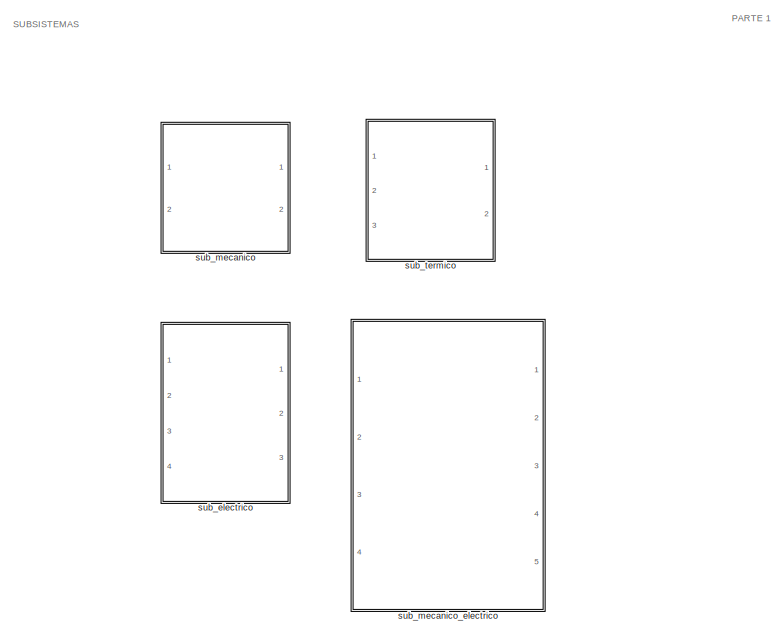
[diagram: root canvas - part 1/5, top left region]
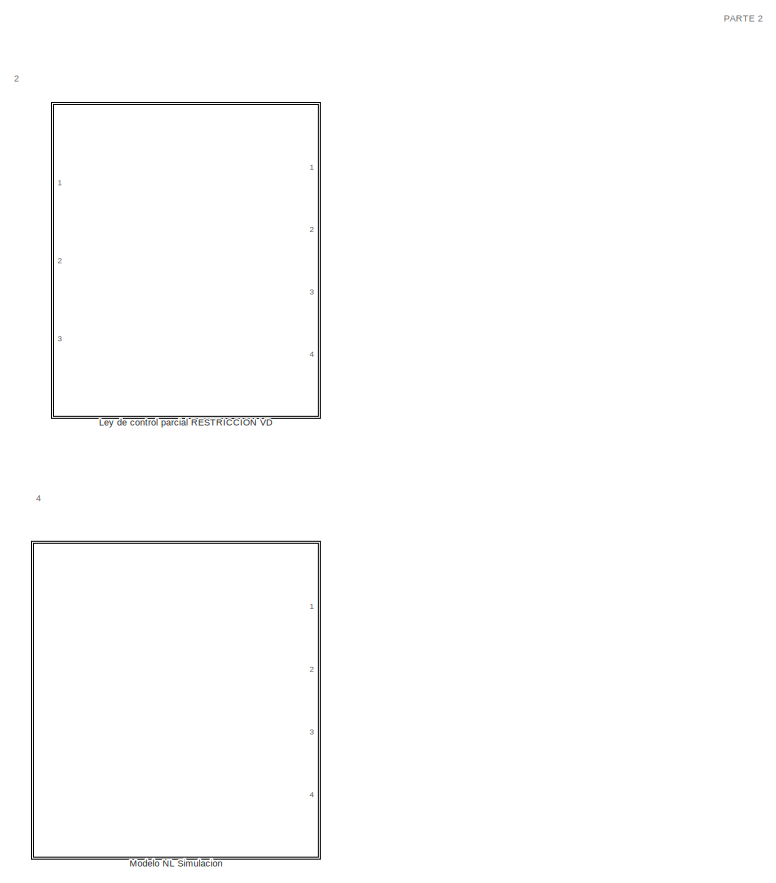
[diagram: root canvas - part 2/5, top center region]
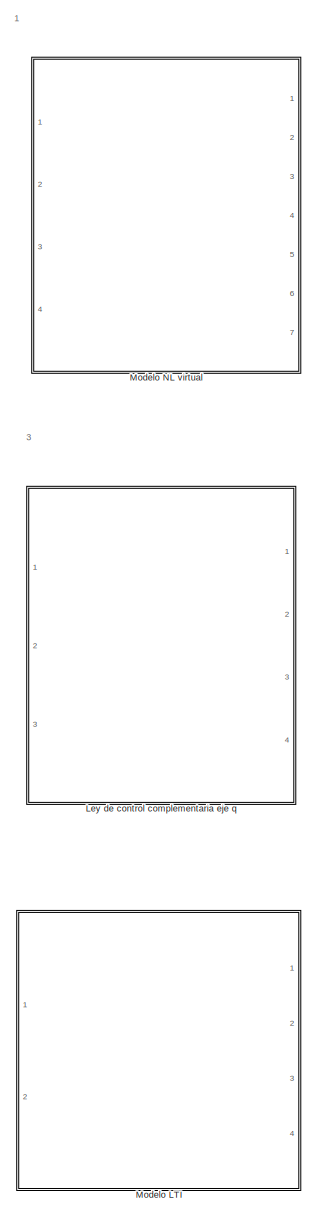
[diagram: root canvas - part 3/5, left side, full height]
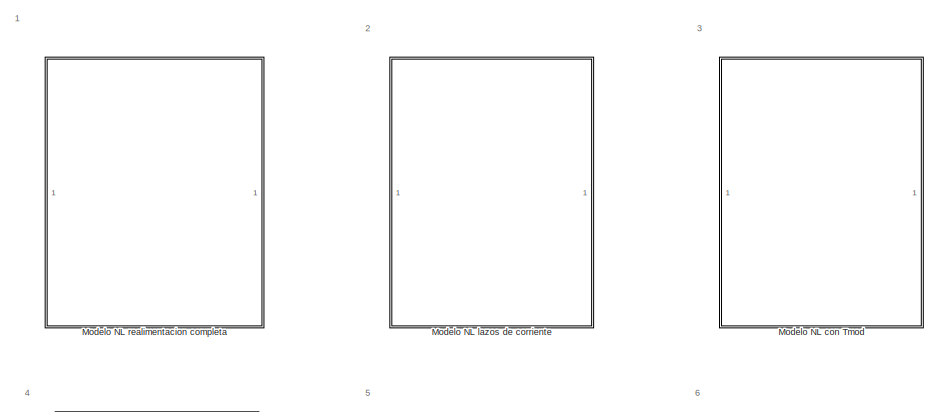
[diagram: root canvas - part 4/5, top right region]
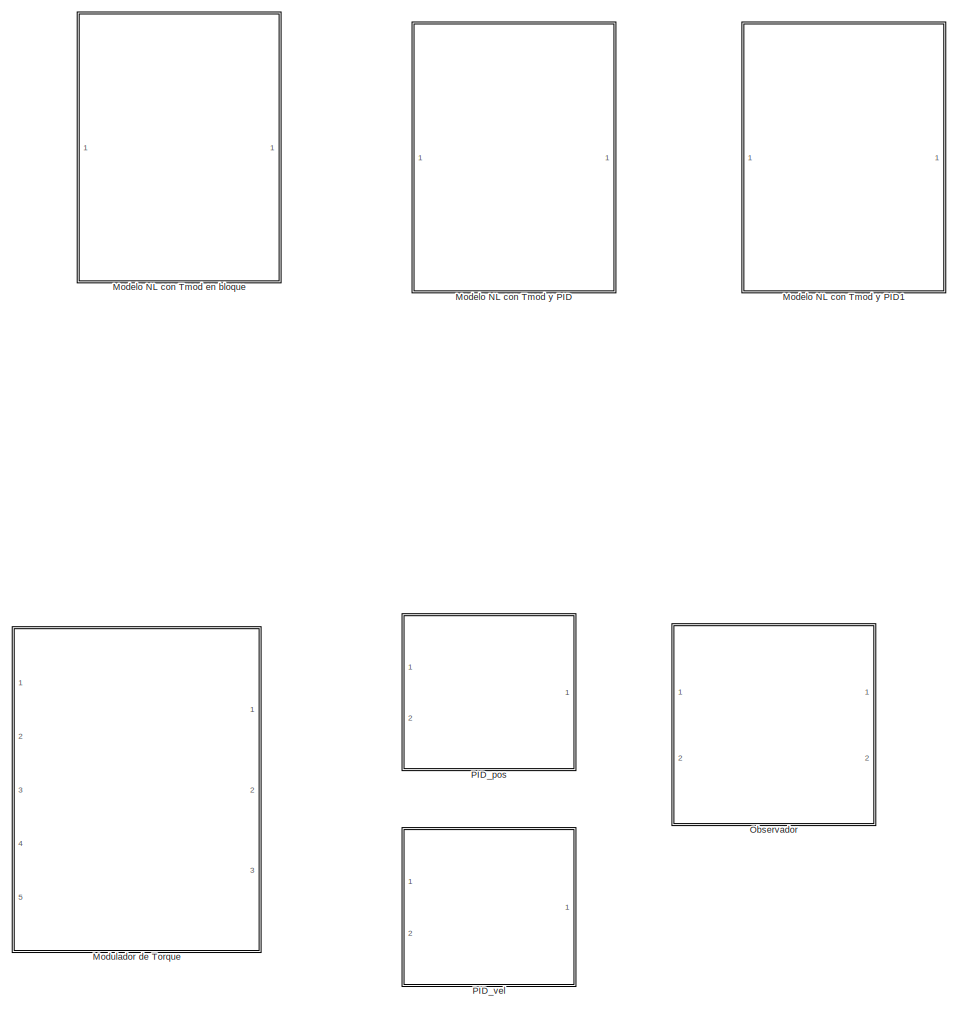
[diagram: root canvas - part 5/5, middle right region]
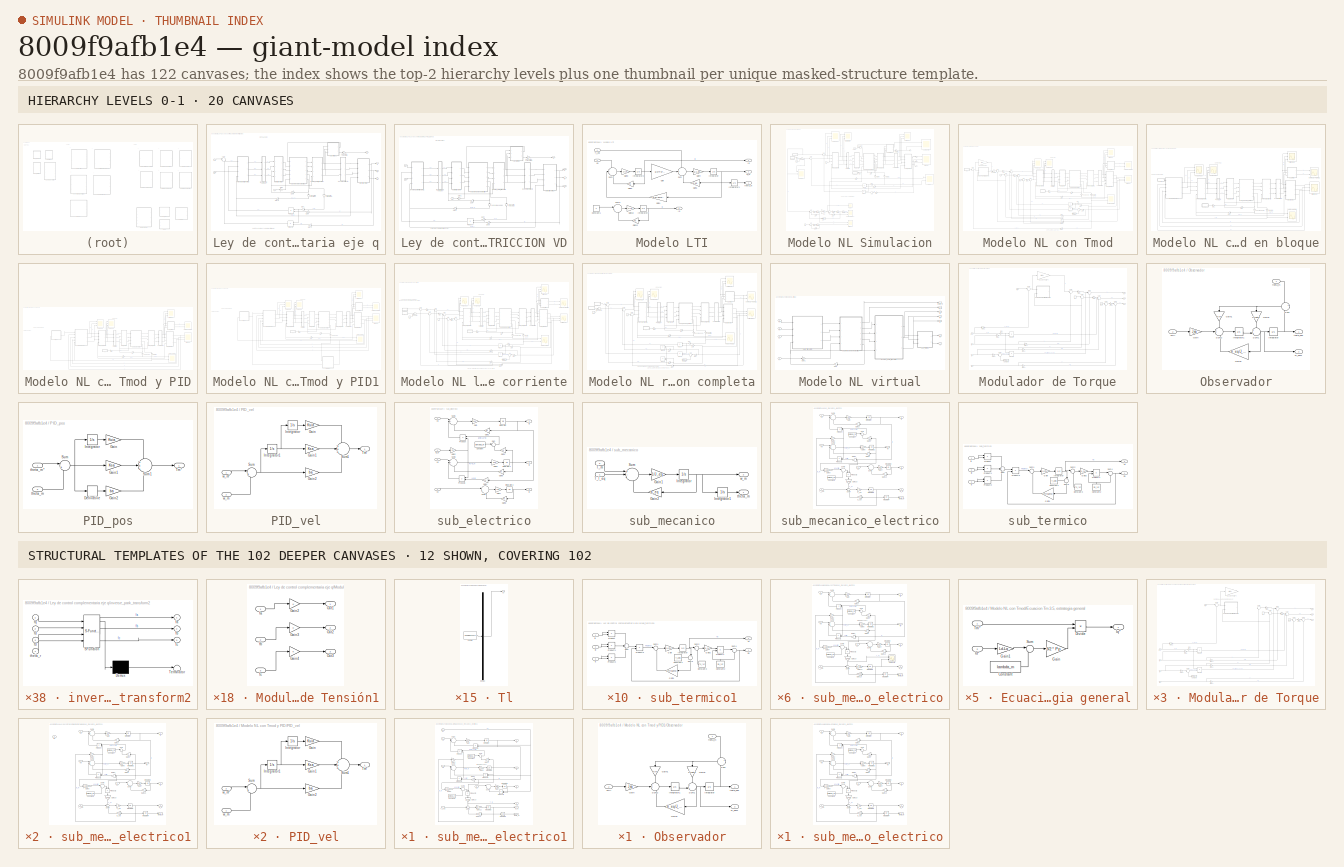
[diagram: thumbnail index - top-2 hierarchy levels (20 canvases) + 12 structural-template representatives of the remaining 102 canvases]
MODEL slx_8009f9afb1e4
KIND model
CONFIG AbsTol = auto
CONFIG EnableMultiTasking = off
CONFIG FixedStep = auto
CONFIG MaxStep = auto
CONFIG MinStep = auto
CONFIG RelTol = 1e-3
CONFIG SampleTimeConstraint = Unconstrained
CONFIG SolverName = VariableStepAuto
CONFIG StartTime = 0.0
CONFIG StopTime = 10.0
WORKSPACE source: mxarray member
WORKSPACE Cts: Simulink.Parameter (value not decoded)
WORKSPACE J_eq: Simulink.Parameter (value not decoded)
WORKSPACE Jeq: Simulink.Parameter (value not decoded)
WORKSPACE Ke: Simulink.Parameter (value not decoded)
WORKSPACE Ksa: Simulink.Parameter (value not decoded)
WORKSPACE Ksia: Simulink.Parameter (value not decoded)
WORKSPACE Kt: Simulink.Parameter (value not decoded)
WORKSPACE Ktheta: Simulink.Parameter (value not decoded)
WORKSPACE Kw: Simulink.Parameter (value not decoded)
WORKSPACE Ld: Simulink.Parameter (value not decoded)
WORKSPACE LdP: Simulink.Parameter (value not decoded)
WORKSPACE Lls: Simulink.Parameter (value not decoded)
WORKSPACE Lq: Simulink.Parameter (value not decoded)
WORKSPACE LqP: Simulink.Parameter (value not decoded)
WORKSPACE Pp: Simulink.Parameter (value not decoded)
WORKSPACE R0: Simulink.Parameter (value not decoded)
WORKSPACE R0P: Simulink.Parameter (value not decoded)
WORKSPACE Rd: Simulink.Parameter (value not decoded)
WORKSPACE RdP: Simulink.Parameter (value not decoded)
WORKSPACE Rq: Simulink.Parameter (value not decoded)
WORKSPACE RqP: Simulink.Parameter (value not decoded)
WORKSPACE Rs: Simulink.Parameter (value not decoded)
WORKSPACE RsP: Simulink.Parameter (value not decoded)
WORKSPACE Rs_ref: Simulink.Parameter (value not decoded)
WORKSPACE Rtsamb: Simulink.Parameter (value not decoded)
WORKSPACE T_amb: Simulink.Parameter (value not decoded)
WORKSPACE Ts_ref: Simulink.Parameter (value not decoded)
WORKSPACE a_cu: Simulink.Parameter (value not decoded)
WORKSPACE b_eq: Simulink.Parameter (value not decoded)
WORKSPACE ba: Simulink.Parameter (value not decoded)
WORKSPACE beqP: Simulink.Parameter (value not decoded)
WORKSPACE lambda_m: Simulink.Parameter (value not decoded)
WORKSPACE r: Simulink.Parameter (value not decoded)
BLOCK [SubSystem] Ley de control complementaria eje q
  Ports = [3, 4]
  RequestExecContextInheritance = off
BLOCK [Gain] Ley de control complementaria eje q/Gain10
  Gain = Pp
BLOCK [Gain] Ley de control complementaria eje q/Gain11
  Gain = Ld
BLOCK [Gain] Ley de control complementaria eje q/Gain5
  Gain = Pp
BLOCK [Gain] Ley de control complementaria eje q/Gain6
  Gain = 1/r
BLOCK [Gain] Ley de control complementaria eje q/Gain7
  Gain = Pp
BLOCK [Gain] Ley de control complementaria eje q/Gain9
  Gain = -Lq
BLOCK [Outport] Ley de control complementaria eje q/I0
  Port = 4
BLOCK [Outport] Ley de control complementaria eje q/Id
  Port = 3
BLOCK [Outport] Ley de control complementaria eje q/Iq
  Port = 2
BLOCK [SubSystem] Ley de control complementaria eje q/Modulador de Tensión1
  Ports = [3, 3]
  RequestExecContextInheritance = off
BLOCK [Gain] Ley de control complementaria eje q/Modulador de Tensión1/Gain2
BLOCK [Gain] Ley de control complementaria eje q/Modulador de Tensión1/Gain3
BLOCK [Gain] Ley de control complementaria eje q/Modulador de Tensión1/Gain4
BLOCK [Outport] Ley de control complementaria eje q/Modulador de Tensión1/Out1
BLOCK [Outport] Ley de control complementaria eje q/Modulador de Tensión1/Out2
  Port = 2
BLOCK [Outport] Ley de control complementaria eje q/Modulador de Tensión1/Out3
  Port = 3
BLOCK [Inport] Ley de control complementaria eje q/Modulador de Tensión1/fa
BLOCK [Inport] Ley de control complementaria eje q/Modulador de Tensión1/fb
  Port = 2
BLOCK [Inport] Ley de control complementaria eje q/Modulador de Tensión1/fc
  Port = 3
BLOCK [Product] Ley de control complementaria eje q/Product2
  Ports = [2, 1]
BLOCK [Product] Ley de control complementaria eje q/Product3
  Ports = [2, 1]
BLOCK [SubSystem] Ley de control complementaria eje q/Sensor de Corriente1
  Ports = [3, 3]
  RequestExecContextInheritance = off
BLOCK [Gain] Ley de control complementaria eje q/Sensor de Corriente1/Gain5
BLOCK [Gain] Ley de control complementaria eje q/Sensor de Corriente1/Gain6
BLOCK [Gain] Ley de control complementaria eje q/Sensor de Corriente1/Gain7
BLOCK [Inport] Ley de control complementaria eje q/Sensor de Corriente1/In1
BLOCK [Inport] Ley de control complementaria eje q/Sensor de Corriente1/In2
  Port = 2
BLOCK [Inport] Ley de control complementaria eje q/Sensor de Corriente1/In3
  Port = 3
BLOCK [Outport] Ley de control complementaria eje q/Sensor de Corriente1/Out1
BLOCK [Outport] Ley de control complementaria eje q/Sensor de Corriente1/Out2
  Port = 2
BLOCK [Outport] Ley de control complementaria eje q/Sensor de Corriente1/Out3
  Port = 3
BLOCK [Gain] Ley de control complementaria eje q/Sensor de Temperatura
BLOCK [Gain] Ley de control complementaria eje q/Sensor de posición1
  NameLocation = right
BLOCK [Gain] Ley de control complementaria eje q/Sensor de velocidad1
  NameLocation = right
BLOCK [Sum] Ley de control complementaria eje q/Sum2
  Inputs = |++
  Ports = [2, 1]
BLOCK [Inport] Ley de control complementaria eje q/Tl
BLOCK [Outport] Ley de control complementaria eje q/Ts
BLOCK [Inport] Ley de control complementaria eje q/V0*
  Port = 2
BLOCK [Inport] Ley de control complementaria eje q/Vq
  Port = 3
BLOCK [SubSystem] Ley de control complementaria eje q/inverse_park_transform2
  ErrorFcn = Stateflow.Translate.translate
  PermitHierarchicalResolution = ExplicitOnly
  Ports = [4, 3]
  RequestExecContextInheritance = off
  SFBlockType = MATLAB Function
  TreatAsAtomicUnit = on
BLOCK [Demux] Ley de control complementaria eje q/inverse_park_transform2/ Demux 
  Outputs = 1
  Ports = [1, 1]
BLOCK [S-Function] Ley de control complementaria eje q/inverse_park_transform2/ SFunction 
  EnableBusSupport = on
  FunctionName = sf_sfun
  PortCounts = [4 4]
  Ports = [4, 4]
  SFcnIsStateOwnerBlock = off
  SFunctionDeploymentMode = off
  Tag = Stateflow S-Function 39
BLOCK [Terminator] Ley de control complementaria eje q/inverse_park_transform2/ Terminator 
BLOCK [Inport] Ley de control complementaria eje q/inverse_park_transform2/f0
  Port = 3
BLOCK [Outport] Ley de control complementaria eje q/inverse_park_transform2/fa
BLOCK [Outport] Ley de control complementaria eje q/inverse_park_transform2/fb
  Port = 2
BLOCK [Outport] Ley de control complementaria eje q/inverse_park_transform2/fc
  Port = 3
BLOCK [Inport] Ley de control complementaria eje q/inverse_park_transform2/fd
  Port = 2
BLOCK [Inport] Ley de control complementaria eje q/inverse_park_transform2/fq
BLOCK [Inport] Ley de control complementaria eje q/inverse_park_transform2/theta_r
  Port = 4
BLOCK [SubSystem] Ley de control complementaria eje q/inverse_park_transform3
  ErrorFcn = Stateflow.Translate.translate
  PermitHierarchicalResolution = ExplicitOnly
  Ports = [4, 3]
  RequestExecContextInheritance = off
  SFBlockType = MATLAB Function
  TreatAsAtomicUnit = on
BLOCK [Demux] Ley de control complementaria eje q/inverse_park_transform3/ Demux 
  Outputs = 1
  Ports = [1, 1]
BLOCK [S-Function] Ley de control complementaria eje q/inverse_park_transform3/ SFunction 
  EnableBusSupport = on
  FunctionName = sf_sfun
  PortCounts = [4 4]
  Ports = [4, 4]
  SFcnIsStateOwnerBlock = off
  SFunctionDeploymentMode = off
  Tag = Stateflow S-Function 40
BLOCK [Terminator] Ley de control complementaria eje q/inverse_park_transform3/ Terminator 
BLOCK [Inport] Ley de control complementaria eje q/inverse_park_transform3/f0
  Port = 3
BLOCK [Outport] Ley de control complementaria eje q/inverse_park_transform3/fa
BLOCK [Outport] Ley de control complementaria eje q/inverse_park_transform3/fb
  Port = 2
BLOCK [Outport] Ley de control complementaria eje q/inverse_park_transform3/fc
  Port = 3
BLOCK [Inport] Ley de control complementaria eje q/inverse_park_transform3/fd
  Port = 2
BLOCK [Inport] Ley de control complementaria eje q/inverse_park_transform3/fq
BLOCK [Inport] Ley de control complementaria eje q/inverse_park_transform3/theta_r
  Port = 4
BLOCK [SubSystem] Ley de control complementaria eje q/park_transform2
  ErrorFcn = Stateflow.Translate.translate
  PermitHierarchicalResolution = ExplicitOnly
  Ports = [4, 3]
  RequestExecContextInheritance = off
  SFBlockType = MATLAB Function
  TreatAsAtomicUnit = on
BLOCK [Demux] Ley de control complementaria eje q/park_transform2/ Demux 
  Outputs = 1
  Ports = [1, 1]
BLOCK [S-Function] Ley de control complementaria eje q/park_transform2/ SFunction 
  EnableBusSupport = on
  FunctionName = sf_sfun
  PortCounts = [4 4]
  Ports = [4, 4]
  SFcnIsStateOwnerBlock = off
  SFunctionDeploymentMode = off
  Tag = Stateflow S-Function 41
BLOCK [Terminator] Ley de control complementaria eje q/park_transform2/ Terminator 
BLOCK [Outport] Ley de control complementaria eje q/park_transform2/f0
  Port = 3
BLOCK [Inport] Ley de control complementaria eje q/park_transform2/fa
BLOCK [Inport] Ley de control complementaria eje q/park_transform2/fb
  Port = 2
BLOCK [Inport] Ley de control complementaria eje q/park_transform2/fc
  Port = 3
BLOCK [Outport] Ley de control complementaria eje q/park_transform2/fd
  Port = 2
BLOCK [Outport] Ley de control complementaria eje q/park_transform2/fq
BLOCK [Inport] Ley de control complementaria eje q/park_transform2/theta_r
  Port = 4
BLOCK [SubSystem] Ley de control complementaria eje q/park_transform3
  ErrorFcn = Stateflow.Translate.translate
  PermitHierarchicalResolution = ExplicitOnly
  Ports = [4, 3]
  RequestExecContextInheritance = off
  SFBlockType = MATLAB Function
  TreatAsAtomicUnit = on
BLOCK [Demux] Ley de control complementaria eje q/park_transform3/ Demux 
  Outputs = 1
  Ports = [1, 1]
BLOCK [S-Function] Ley de control complementaria eje q/park_transform3/ SFunction 
  EnableBusSupport = on
  FunctionName = sf_sfun
  PortCounts = [4 4]
  Ports = [4, 4]
  SFcnIsStateOwnerBlock = off
  SFunctionDeploymentMode = off
  Tag = Stateflow S-Function 42
BLOCK [Terminator] Ley de control complementaria eje q/park_transform3/ Terminator 
BLOCK [Outport] Ley de control complementaria eje q/park_transform3/f0
  Port = 3
BLOCK [Inport] Ley de control complementaria eje q/park_transform3/fa
BLOCK [Inport] Ley de control complementaria eje q/park_transform3/fb
  Port = 2
BLOCK [Inport] Ley de control complementaria eje q/park_transform3/fc
  Port = 3
BLOCK [Outport] Ley de control complementaria eje q/park_transform3/fd
  Port = 2
BLOCK [Outport] Ley de control complementaria eje q/park_transform3/fq
BLOCK [Inport] Ley de control complementaria eje q/park_transform3/theta_r
  Port = 4
BLOCK [SubSystem] Ley de control complementaria eje q/sub_mecanico_electrico1
  Ports = [5, 5]
  RequestExecContextInheritance = off
BLOCK [Constant] Ley de control complementaria eje q/sub_mecanico_electrico1/Constant
  Value = lambda_m
BLOCK [Constant] Ley de control complementaria eje q/sub_mecanico_electrico1/Constant1
  Value = lambda_m
BLOCK [Gain] Ley de control complementaria eje q/sub_mecanico_electrico1/Gain
  Gain = 1/Lq
BLOCK [Gain] Ley de control complementaria eje q/sub_mecanico_electrico1/Gain1
  Gain = Rs
BLOCK [Gain] Ley de control complementaria eje q/sub_mecanico_electrico1/Gain10
  Gain = 3*Pp/2
  NameLocation = left
BLOCK [Gain] Ley de control complementaria eje q/sub_mecanico_electrico1/Gain11
  Gain = Rs
BLOCK [Gain] Ley de control complementaria eje q/sub_mecanico_electrico1/Gain2
  Gain = Pp
BLOCK [Gain] Ley de control complementaria eje q/sub_mecanico_electrico1/Gain3
  Gain = Ld
BLOCK [Gain] Ley de control complementaria eje q/sub_mecanico_electrico1/Gain4
  Gain = Lq
  NameLocation = top
BLOCK [Gain] Ley de control complementaria eje q/sub_mecanico_electrico1/Gain5
  Gain = 1/Ld
BLOCK [Gain] Ley de control complementaria eje q/sub_mecanico_electrico1/Gain6
  Gain = Rs
BLOCK [Gain] Ley de control complementaria eje q/sub_mecanico_electrico1/Gain7
  Gain = 1/Lls
BLOCK [Gain] Ley de control complementaria eje q/sub_mecanico_electrico1/Gain9
  Gain = Ld - Lq
BLOCK [Integrator] Ley de control complementaria eje q/sub_mecanico_electrico1/Integrator
  Ports = [1, 1]
BLOCK [Integrator] Ley de control complementaria eje q/sub_mecanico_electrico1/Integrator1
  Ports = [1, 1]
BLOCK [Integrator] Ley de control complementaria eje q/sub_mecanico_electrico1/Integrator2
  Ports = [1, 1]
BLOCK [Integrator] Ley de control complementaria eje q/sub_mecanico_electrico1/Integrator3
  Ports = [1, 1]
BLOCK [Integrator] Ley de control complementaria eje q/sub_mecanico_electrico1/Integrator4
  Ports = [1, 1]
BLOCK [Gain] Ley de control complementaria eje q/sub_mecanico_electrico1/J_eq
  Gain = J_eq
BLOCK [Product] Ley de control complementaria eje q/sub_mecanico_electrico1/Product
  Ports = [2, 1]
BLOCK [Product] Ley de control complementaria eje q/sub_mecanico_electrico1/Product1
  Ports = [2, 1]
BLOCK [Product] Ley de control complementaria eje q/sub_mecanico_electrico1/Product2
  NameLocation = left
  Ports = [2, 1]
BLOCK [Inport] Ley de control complementaria eje q/sub_mecanico_electrico1/Rs
BLOCK [Sum] Ley de control complementaria eje q/sub_mecanico_electrico1/Sum
  Inputs = |++
  Ports = [2, 1]
BLOCK [Sum] Ley de control complementaria eje q/sub_mecanico_electrico1/Sum1
  Inputs = |+--
  Ports = [3, 1]
BLOCK [Sum] Ley de control complementaria eje q/sub_mecanico_electrico1/Sum2
  Inputs = |++-
  Ports = [3, 1]
BLOCK [Sum] Ley de control complementaria eje q/sub_mecanico_electrico1/Sum3
  Inputs = |+-
  Ports = [2, 1]
BLOCK [Sum] Ley de control complementaria eje q/sub_mecanico_electrico1/Sum4
  Inputs = +-+
  Ports = [3, 1]
BLOCK [Sum] Ley de control complementaria eje q/sub_mecanico_electrico1/Sum5
  Inputs = |++
  Ports = [2, 1]
BLOCK [Inport] Ley de control complementaria eje q/sub_mecanico_electrico1/T_l_eq
  Port = 5
BLOCK [Inport] Ley de control complementaria eje q/sub_mecanico_electrico1/V0
  Port = 4
BLOCK [Inport] Ley de control complementaria eje q/sub_mecanico_electrico1/Vd
  Port = 3
BLOCK [Inport] Ley de control complementaria eje q/sub_mecanico_electrico1/Vq
  Port = 2
BLOCK [Gain] Ley de control complementaria eje q/sub_mecanico_electrico1/b_eq
  Gain = b_eq
BLOCK [Outport] Ley de control complementaria eje q/sub_mecanico_electrico1/i0
  Port = 3
BLOCK [Outport] Ley de control complementaria eje q/sub_mecanico_electrico1/id
  Port = 2
BLOCK [Outport] Ley de control complementaria eje q/sub_mecanico_electrico1/iq
BLOCK [Outport] Ley de control complementaria eje q/sub_mecanico_electrico1/theta_m
  Port = 5
BLOCK [Outport] Ley de control complementaria eje q/sub_mecanico_electrico1/w_m
  Port = 4
BLOCK [SubSystem] Ley de control complementaria eje q/sub_termico1
  Ports = [3, 2]
  RequestExecContextInheritance = off
BLOCK [Constant] Ley de control complementaria eje q/sub_termico1/Constant1
  Value = T_amb
BLOCK [Constant] Ley de control complementaria eje q/sub_termico1/Constant2
  NameLocation = right
  Value = Rs_ref
BLOCK [Constant] Ley de control complementaria eje q/sub_termico1/Constant3
  Value = Ts_ref
BLOCK [Gain] Ley de control complementaria eje q/sub_termico1/Gain
  Gain = 1/Cts
BLOCK [Gain] Ley de control complementaria eje q/sub_termico1/Gain1
  Gain = 1/Rtsamb
BLOCK [Gain] Ley de control complementaria eje q/sub_termico1/Gain2
  Gain = a_cu
BLOCK [Integrator] Ley de control complementaria eje q/sub_termico1/Integrator
  Ports = [1, 1]
BLOCK [Product] Ley de control complementaria eje q/sub_termico1/Product
  Ports = [2, 1]
BLOCK [Product] Ley de control complementaria eje q/sub_termico1/Product1
  Ports = [2, 1]
BLOCK [Product] Ley de control complementaria eje q/sub_termico1/Product2
  Ports = [2, 1]
BLOCK [Product] Ley de control complementaria eje q/sub_termico1/Product3
  Ports = [2, 1]
BLOCK [Product] Ley de control complementaria eje q/sub_termico1/Product4
  Ports = [2, 1]
BLOCK [Outport] Ley de control complementaria eje q/sub_termico1/Rs
BLOCK [Sum] Ley de control complementaria eje q/sub_termico1/Sum
  Inputs = +++
  Ports = [3, 1]
BLOCK [Sum] Ley de control complementaria eje q/sub_termico1/Sum1
  Inputs = |+-
  Ports = [2, 1]
BLOCK [Sum] Ley de control complementaria eje q/sub_termico1/Sum2
  Inputs = |+-
  Ports = [2, 1]
BLOCK [Sum] Ley de control complementaria eje q/sub_termico1/Sum3
  Inputs = -+|
  NameLocation = right
  Ports = [2, 1]
BLOCK [Sum] Ley de control complementaria eje q/sub_termico1/Sum4
  Inputs = |++
  Ports = [2, 1]
BLOCK [Outport] Ley de control complementaria eje q/sub_termico1/Ts
  Port = 2
BLOCK [Inport] Ley de control complementaria eje q/sub_termico1/ia
BLOCK [Inport] Ley de control complementaria eje q/sub_termico1/ib
  Port = 2
BLOCK [Inport] Ley de control complementaria eje q/sub_termico1/ic
  Port = 3
BLOCK [SubSystem] Ley de control parcial RESTRICCION VD
  Ports = [3, 4]
  RequestExecContextInheritance = off
BLOCK [Gain] Ley de control parcial RESTRICCION VD/Gain
  Gain = Pp
BLOCK [Gain] Ley de control parcial RESTRICCION VD/Gain1
  Gain = 1/r
BLOCK [Gain] Ley de control parcial RESTRICCION VD/Gain2
  Gain = Pp
BLOCK [Gain] Ley de control parcial RESTRICCION VD/Gain3
  Gain = -Lq
BLOCK [Gain] Ley de control parcial RESTRICCION VD/Gain8
  Gain = Pp
BLOCK [Outport] Ley de control parcial RESTRICCION VD/I0
  Port = 4
BLOCK [Outport] Ley de control parcial RESTRICCION VD/Id
  Port = 3
BLOCK [Outport] Ley de control parcial RESTRICCION VD/Iq
  Port = 2
BLOCK [SubSystem] Ley de control parcial RESTRICCION VD/Modulador de Tensión
  Ports = [3, 3]
  RequestExecContextInheritance = off
BLOCK [Gain] Ley de control parcial RESTRICCION VD/Modulador de Tensión/Gain2
BLOCK [Gain] Ley de control parcial RESTRICCION VD/Modulador de Tensión/Gain3
BLOCK [Gain] Ley de control parcial RESTRICCION VD/Modulador de Tensión/Gain4
BLOCK [Outport] Ley de control parcial RESTRICCION VD/Modulador de Tensión/Out1
BLOCK [Outport] Ley de control parcial RESTRICCION VD/Modulador de Tensión/Out2
  Port = 2
BLOCK [Outport] Ley de control parcial RESTRICCION VD/Modulador de Tensión/Out3
  Port = 3
BLOCK [Inport] Ley de control parcial RESTRICCION VD/Modulador de Tensión/fa
BLOCK [Inport] Ley de control parcial RESTRICCION VD/Modulador de Tensión/fb
  Port = 2
BLOCK [Inport] Ley de control parcial RESTRICCION VD/Modulador de Tensión/fc
  Port = 3
BLOCK [Product] Ley de control parcial RESTRICCION VD/Product
  Ports = [2, 1]
BLOCK [SubSystem] Ley de control parcial RESTRICCION VD/Sensor de Corriente
  Ports = [3, 3]
  RequestExecContextInheritance = off
BLOCK [Gain] Ley de control parcial RESTRICCION VD/Sensor de Corriente/Gain5
BLOCK [Gain] Ley de control parcial RESTRICCION VD/Sensor de Corriente/Gain6
BLOCK [Gain] Ley de control parcial RESTRICCION VD/Sensor de Corriente/Gain7
BLOCK [Inport] Ley de control parcial RESTRICCION VD/Sensor de Corriente/In1
BLOCK [Inport] Ley de control parcial RESTRICCION VD/Sensor de Corriente/In2
  Port = 2
BLOCK [Inport] Ley de control parcial RESTRICCION VD/Sensor de Corriente/In3
  Port = 3
BLOCK [Outport] Ley de control parcial RESTRICCION VD/Sensor de Corriente/Out1
BLOCK [Outport] Ley de control parcial RESTRICCION VD/Sensor de Corriente/Out2
  Port = 2
BLOCK [Outport] Ley de control parcial RESTRICCION VD/Sensor de Corriente/Out3
  Port = 3
BLOCK [Gain] Ley de control parcial RESTRICCION VD/Sensor de Temperatura
BLOCK [Gain] Ley de control parcial RESTRICCION VD/Sensor de posición
  NameLocation = right
BLOCK [Gain] Ley de control parcial RESTRICCION VD/Sensor de velocidad
  NameLocation = right
BLOCK [Inport] Ley de control parcial RESTRICCION VD/Tl
BLOCK [Outport] Ley de control parcial RESTRICCION VD/Ts
BLOCK [Inport] Ley de control parcial RESTRICCION VD/V0*
  Port = 3
BLOCK [Inport] Ley de control parcial RESTRICCION VD/Vq*
  Port = 2
BLOCK [SubSystem] Ley de control parcial RESTRICCION VD/inverse_park_transform
  ErrorFcn = Stateflow.Translate.translate
  PermitHierarchicalResolution = ExplicitOnly
  Ports = [4, 3]
  RequestExecContextInheritance = off
  SFBlockType = MATLAB Function
  TreatAsAtomicUnit = on
BLOCK [Demux] Ley de control parcial RESTRICCION VD/inverse_park_transform/ Demux 
  Outputs = 1
  Ports = [1, 1]
BLOCK [S-Function] Ley de control parcial RESTRICCION VD/inverse_park_transform/ SFunction 
  EnableBusSupport = on
  FunctionName = sf_sfun
  PortCounts = [4 4]
  Ports = [4, 4]
  SFcnIsStateOwnerBlock = off
  SFunctionDeploymentMode = off
  Tag = Stateflow S-Function 3
BLOCK [Terminator] Ley de control parcial RESTRICCION VD/inverse_park_transform/ Terminator 
BLOCK [Inport] Ley de control parcial RESTRICCION VD/inverse_park_transform/f0
  Port = 3
BLOCK [Outport] Ley de control parcial RESTRICCION VD/inverse_park_transform/fa
BLOCK [Outport] Ley de control parcial RESTRICCION VD/inverse_park_transform/fb
  Port = 2
BLOCK [Outport] Ley de control parcial RESTRICCION VD/inverse_park_transform/fc
  Port = 3
BLOCK [Inport] Ley de control parcial RESTRICCION VD/inverse_park_transform/fd
  Port = 2
BLOCK [Inport] Ley de control parcial RESTRICCION VD/inverse_park_transform/fq
BLOCK [Inport] Ley de control parcial RESTRICCION VD/inverse_park_transform/theta_r
  Port = 4
BLOCK [SubSystem] Ley de control parcial RESTRICCION VD/inverse_park_transform1
  ErrorFcn = Stateflow.Translate.translate
  PermitHierarchicalResolution = ExplicitOnly
  Ports = [4, 3]
  RequestExecContextInheritance = off
  SFBlockType = MATLAB Function
  TreatAsAtomicUnit = on
BLOCK [Demux] Ley de control parcial RESTRICCION VD/inverse_park_transform1/ Demux 
  Outputs = 1
  Ports = [1, 1]
BLOCK [S-Function] Ley de control parcial RESTRICCION VD/inverse_park_transform1/ SFunction 
  EnableBusSupport = on
  FunctionName = sf_sfun
  PortCounts = [4 4]
  Ports = [4, 4]
  SFcnIsStateOwnerBlock = off
  SFunctionDeploymentMode = off
  Tag = Stateflow S-Function 5
BLOCK [Terminator] Ley de control parcial RESTRICCION VD/inverse_park_transform1/ Terminator 
BLOCK [Inport] Ley de control parcial RESTRICCION VD/inverse_park_transform1/f0
  Port = 3
BLOCK [Outport] Ley de control parcial RESTRICCION VD/inverse_park_transform1/fa
BLOCK [Outport] Ley de control parcial RESTRICCION VD/inverse_park_transform1/fb
  Port = 2
BLOCK [Outport] Ley de control parcial RESTRICCION VD/inverse_park_transform1/fc
  Port = 3
BLOCK [Inport] Ley de control parcial RESTRICCION VD/inverse_park_transform1/fd
  Port = 2
BLOCK [Inport] Ley de control parcial RESTRICCION VD/inverse_park_transform1/fq
BLOCK [Inport] Ley de control parcial RESTRICCION VD/inverse_park_transform1/theta_r
  Port = 4
BLOCK [SubSystem] Ley de control parcial RESTRICCION VD/park_transform
  ErrorFcn = Stateflow.Translate.translate
  PermitHierarchicalResolution = ExplicitOnly
  Ports = [4, 3]
  RequestExecContextInheritance = off
  SFBlockType = MATLAB Function
  TreatAsAtomicUnit = on
BLOCK [Demux] Ley de control parcial RESTRICCION VD/park_transform/ Demux 
  Outputs = 1
  Ports = [1, 1]
BLOCK [S-Function] Ley de control parcial RESTRICCION VD/park_transform/ SFunction 
  EnableBusSupport = on
  FunctionName = sf_sfun
  PortCounts = [4 4]
  Ports = [4, 4]
  SFcnIsStateOwnerBlock = off
  SFunctionDeploymentMode = off
  Tag = Stateflow S-Function 4
BLOCK [Terminator] Ley de control parcial RESTRICCION VD/park_transform/ Terminator 
BLOCK [Outport] Ley de control parcial RESTRICCION VD/park_transform/f0
  Port = 3
BLOCK [Inport] Ley de control parcial RESTRICCION VD/park_transform/fa
BLOCK [Inport] Ley de control parcial RESTRICCION VD/park_transform/fb
  Port = 2
BLOCK [Inport] Ley de control parcial RESTRICCION VD/park_transform/fc
  Port = 3
BLOCK [Outport] Ley de control parcial RESTRICCION VD/park_transform/fd
  Port = 2
BLOCK [Outport] Ley de control parcial RESTRICCION VD/park_transform/fq
BLOCK [Inport] Ley de control parcial RESTRICCION VD/park_transform/theta_r
  Port = 4
BLOCK [SubSystem] Ley de control parcial RESTRICCION VD/park_transform1
  ErrorFcn = Stateflow.Translate.translate
  PermitHierarchicalResolution = ExplicitOnly
  Ports = [4, 3]
  RequestExecContextInheritance = off
  SFBlockType = MATLAB Function
  TreatAsAtomicUnit = on
BLOCK [Demux] Ley de control parcial RESTRICCION VD/park_transform1/ Demux 
  Outputs = 1
  Ports = [1, 1]
BLOCK [S-Function] Ley de control parcial RESTRICCION VD/park_transform1/ SFunction 
  EnableBusSupport = on
  FunctionName = sf_sfun
  PortCounts = [4 4]
  Ports = [4, 4]
  SFcnIsStateOwnerBlock = off
  SFunctionDeploymentMode = off
  Tag = Stateflow S-Function 6
BLOCK [Terminator] Ley de control parcial RESTRICCION VD/park_transform1/ Terminator 
BLOCK [Outport] Ley de control parcial RESTRICCION VD/park_transform1/f0
  Port = 3
BLOCK [Inport] Ley de control parcial RESTRICCION VD/park_transform1/fa
BLOCK [Inport] Ley de control parcial RESTRICCION VD/park_transform1/fb
  Port = 2
BLOCK [Inport] Ley de control parcial RESTRICCION VD/park_transform1/fc
  Port = 3
BLOCK [Outport] Ley de control parcial RESTRICCION VD/park_transform1/fd
  Port = 2
BLOCK [Outport] Ley de control parcial RESTRICCION VD/park_transform1/fq
BLOCK [Inport] Ley de control parcial RESTRICCION VD/park_transform1/theta_r
  Port = 4
BLOCK [SubSystem] Ley de control parcial RESTRICCION VD/sub_mecanico_electrico
  Ports = [5, 5]
  RequestExecContextInheritance = off
BLOCK [Constant] Ley de control parcial RESTRICCION VD/sub_mecanico_electrico/Constant
  Value = lambda_m
BLOCK [Constant] Ley de control parcial RESTRICCION VD/sub_mecanico_electrico/Constant1
  Value = lambda_m
BLOCK [Gain] Ley de control parcial RESTRICCION VD/sub_mecanico_electrico/Gain
  Gain = 1/Lq
BLOCK [Gain] Ley de control parcial RESTRICCION VD/sub_mecanico_electrico/Gain1
  Gain = Rs
BLOCK [Gain] Ley de control parcial RESTRICCION VD/sub_mecanico_electrico/Gain10
  Gain = 3*Pp/2
  NameLocation = left
BLOCK [Gain] Ley de control parcial RESTRICCION VD/sub_mecanico_electrico/Gain11
  Gain = Rs
BLOCK [Gain] Ley de control parcial RESTRICCION VD/sub_mecanico_electrico/Gain2
  Gain = Pp
BLOCK [Gain] Ley de control parcial RESTRICCION VD/sub_mecanico_electrico/Gain3
  Gain = Ld
BLOCK [Gain] Ley de control parcial RESTRICCION VD/sub_mecanico_electrico/Gain4
  Gain = Lq
  NameLocation = top
BLOCK [Gain] Ley de control parcial RESTRICCION VD/sub_mecanico_electrico/Gain5
  Gain = 1/Ld
BLOCK [Gain] Ley de control parcial RESTRICCION VD/sub_mecanico_electrico/Gain6
  Gain = Rs
BLOCK [Gain] Ley de control parcial RESTRICCION VD/sub_mecanico_electrico/Gain7
  Gain = 1/Lls
BLOCK [Gain] Ley de control parcial RESTRICCION VD/sub_mecanico_electrico/Gain9
  Gain = Ld - Lq
BLOCK [Integrator] Ley de control parcial RESTRICCION VD/sub_mecanico_electrico/Integrator
  Ports = [1, 1]
BLOCK [Integrator] Ley de control parcial RESTRICCION VD/sub_mecanico_electrico/Integrator1
  Ports = [1, 1]
BLOCK [Integrator] Ley de control parcial RESTRICCION VD/sub_mecanico_electrico/Integrator2
  Ports = [1, 1]
BLOCK [Integrator] Ley de control parcial RESTRICCION VD/sub_mecanico_electrico/Integrator3
  Ports = [1, 1]
BLOCK [Integrator] Ley de control parcial RESTRICCION VD/sub_mecanico_electrico/Integrator4
  Ports = [1, 1]
BLOCK [Gain] Ley de control parcial RESTRICCION VD/sub_mecanico_electrico/J_eq
  Gain = J_eq
BLOCK [Product] Ley de control parcial RESTRICCION VD/sub_mecanico_electrico/Product
  Ports = [2, 1]
BLOCK [Product] Ley de control parcial RESTRICCION VD/sub_mecanico_electrico/Product1
  Ports = [2, 1]
BLOCK [Product] Ley de control parcial RESTRICCION VD/sub_mecanico_electrico/Product2
  NameLocation = left
  Ports = [2, 1]
BLOCK [Inport] Ley de control parcial RESTRICCION VD/sub_mecanico_electrico/Rs
BLOCK [Sum] Ley de control parcial RESTRICCION VD/sub_mecanico_electrico/Sum
  Inputs = |++
  Ports = [2, 1]
BLOCK [Sum] Ley de control parcial RESTRICCION VD/sub_mecanico_electrico/Sum1
  Inputs = |+--
  Ports = [3, 1]
BLOCK [Sum] Ley de control parcial RESTRICCION VD/sub_mecanico_electrico/Sum2
  Inputs = |++-
  Ports = [3, 1]
BLOCK [Sum] Ley de control parcial RESTRICCION VD/sub_mecanico_electrico/Sum3
  Inputs = |+-
  Ports = [2, 1]
BLOCK [Sum] Ley de control parcial RESTRICCION VD/sub_mecanico_electrico/Sum4
  Inputs = +-+
  Ports = [3, 1]
BLOCK [Sum] Ley de control parcial RESTRICCION VD/sub_mecanico_electrico/Sum5
  Inputs = |++
  Ports = [2, 1]
BLOCK [Inport] Ley de control parcial RESTRICCION VD/sub_mecanico_electrico/T_l_eq
  Port = 5
BLOCK [Inport] Ley de control parcial RESTRICCION VD/sub_mecanico_electrico/V0
  Port = 4
BLOCK [Inport] Ley de control parcial RESTRICCION VD/sub_mecanico_electrico/Vd
  Port = 3
BLOCK [Inport] Ley de control parcial RESTRICCION VD/sub_mecanico_electrico/Vq
  Port = 2
BLOCK [Gain] Ley de control parcial RESTRICCION VD/sub_mecanico_electrico/b_eq
  Gain = b_eq
BLOCK [Outport] Ley de control parcial RESTRICCION VD/sub_mecanico_electrico/i0
  Port = 3
BLOCK [Outport] Ley de control parcial RESTRICCION VD/sub_mecanico_electrico/id
  Port = 2
BLOCK [Outport] Ley de control parcial RESTRICCION VD/sub_mecanico_electrico/iq
BLOCK [Outport] Ley de control parcial RESTRICCION VD/sub_mecanico_electrico/theta_m
  Port = 5
BLOCK [Outport] Ley de control parcial RESTRICCION VD/sub_mecanico_electrico/w_m
  Port = 4
BLOCK [SubSystem] Ley de control parcial RESTRICCION VD/sub_termico
  Ports = [3, 2]
  RequestExecContextInheritance = off
BLOCK [Constant] Ley de control parcial RESTRICCION VD/sub_termico/Constant1
  Value = T_amb
BLOCK [Constant] Ley de control parcial RESTRICCION VD/sub_termico/Constant2
  NameLocation = right
  Value = Rs_ref
BLOCK [Constant] Ley de control parcial RESTRICCION VD/sub_termico/Constant3
  Value = Ts_ref
BLOCK [Gain] Ley de control parcial RESTRICCION VD/sub_termico/Gain
  Gain = 1/Cts
BLOCK [Gain] Ley de control parcial RESTRICCION VD/sub_termico/Gain1
  Gain = 1/Rtsamb
BLOCK [Gain] Ley de control parcial RESTRICCION VD/sub_termico/Gain2
  Gain = a_cu
BLOCK [Integrator] Ley de control parcial RESTRICCION VD/sub_termico/Integrator
  Ports = [1, 1]
BLOCK [Product] Ley de control parcial RESTRICCION VD/sub_termico/Product
  Ports = [2, 1]
BLOCK [Product] Ley de control parcial RESTRICCION VD/sub_termico/Product1
  Ports = [2, 1]
BLOCK [Product] Ley de control parcial RESTRICCION VD/sub_termico/Product2
  Ports = [2, 1]
BLOCK [Product] Ley de control parcial RESTRICCION VD/sub_termico/Product3
  Ports = [2, 1]
BLOCK [Product] Ley de control parcial RESTRICCION VD/sub_termico/Product4
  Ports = [2, 1]
BLOCK [Outport] Ley de control parcial RESTRICCION VD/sub_termico/Rs
BLOCK [Sum] Ley de control parcial RESTRICCION VD/sub_termico/Sum
  Inputs = +++
  Ports = [3, 1]
BLOCK [Sum] Ley de control parcial RESTRICCION VD/sub_termico/Sum1
  Inputs = |+-
  Ports = [2, 1]
BLOCK [Sum] Ley de control parcial RESTRICCION VD/sub_termico/Sum2
  Inputs = |+-
  Ports = [2, 1]
BLOCK [Sum] Ley de control parcial RESTRICCION VD/sub_termico/Sum3
  Inputs = -+|
  NameLocation = right
  Ports = [2, 1]
BLOCK [Sum] Ley de control parcial RESTRICCION VD/sub_termico/Sum4
  Inputs = |++
  Ports = [2, 1]
BLOCK [Outport] Ley de control parcial RESTRICCION VD/sub_termico/Ts
  Port = 2
BLOCK [Inport] Ley de control parcial RESTRICCION VD/sub_termico/ia
BLOCK [Inport] Ley de control parcial RESTRICCION VD/sub_termico/ib
  Port = 2
BLOCK [Inport] Ley de control parcial RESTRICCION VD/sub_termico/ic
  Port = 3
BLOCK [SubSystem] Modelo LTI
  Ports = [2, 4]
  RequestExecContextInheritance = off
BLOCK [Constant] Modelo LTI/Constant1
  Value = 0
BLOCK [Gain] Modelo LTI/Gain
  Gain = 3/2*Pp*lambda_m
BLOCK [Gain] Modelo LTI/Gain1
  Gain = Pp*lambda_m
BLOCK [Gain] Modelo LTI/Gain12
  Gain = Rs
BLOCK [Gain] Modelo LTI/Gain13
  Gain = 1/Ld
BLOCK [Gain] Modelo LTI/Gain2
  Gain = Rs
BLOCK [Gain] Modelo LTI/Gain3
  Gain = 1/Lq
BLOCK [Gain] Modelo LTI/Gain4
  Gain = 1/J_eq
BLOCK [Gain] Modelo LTI/Gain5
  Gain = b_eq
BLOCK [Outport] Modelo LTI/Id
  Port = 4
BLOCK [Integrator] Modelo LTI/Integrator
  Ports = [1, 1]
BLOCK [Integrator] Modelo LTI/Integrator1
  Ports = [1, 1]
BLOCK [Integrator] Modelo LTI/Integrator2
  Ports = [1, 1]
BLOCK [Integrator] Modelo LTI/Integrator3
  Ports = [1, 1]
BLOCK [Outport] Modelo LTI/Iq
  Port = 3
BLOCK [Sum] Modelo LTI/Sum
  Inputs = -+-
  Ports = [3, 1]
BLOCK [Sum] Modelo LTI/Sum1
  Inputs = +--
  Ports = [3, 1]
BLOCK [Sum] Modelo LTI/Sum5
  Inputs = |+-
  Ports = [2, 1]
BLOCK [Inport] Modelo LTI/T_l_eq
BLOCK [Inport] Modelo LTI/Vq
  Port = 2
BLOCK [Outport] Modelo LTI/theta_m
BLOCK [Outport] Modelo LTI/w_m
  Port = 2
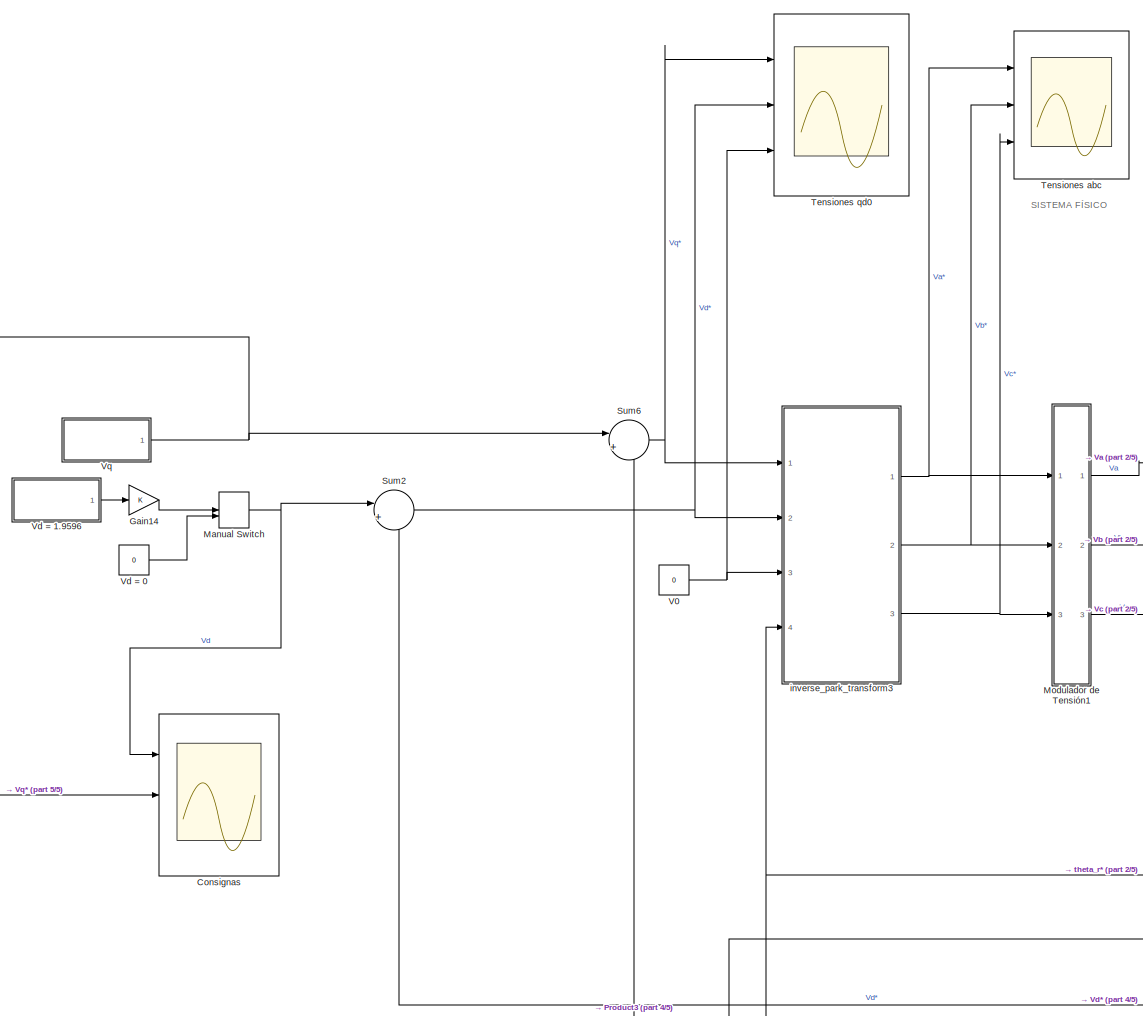
[diagram: Modelo NL Simulacion - part 1/5, top left region]
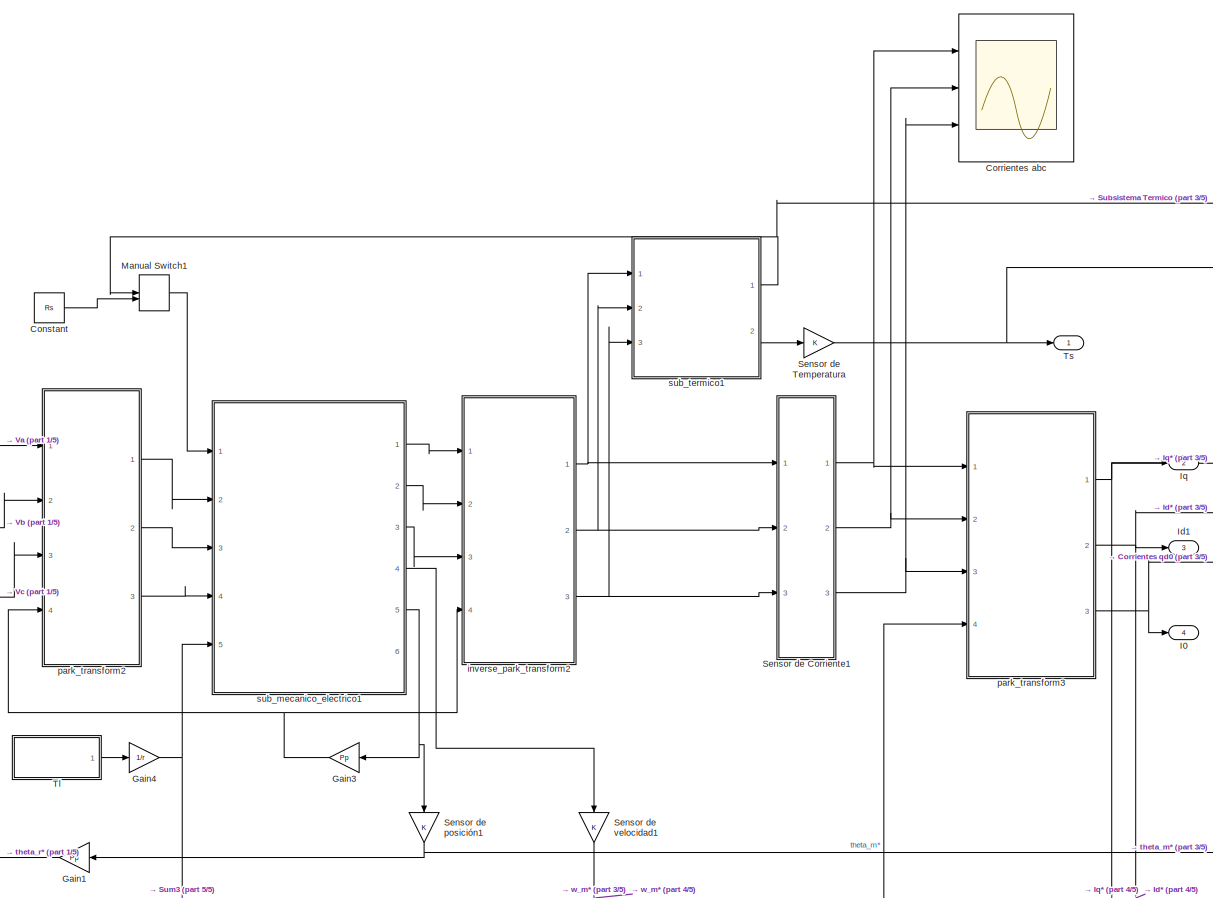
[diagram: Modelo NL Simulacion - part 2/5, top center region]
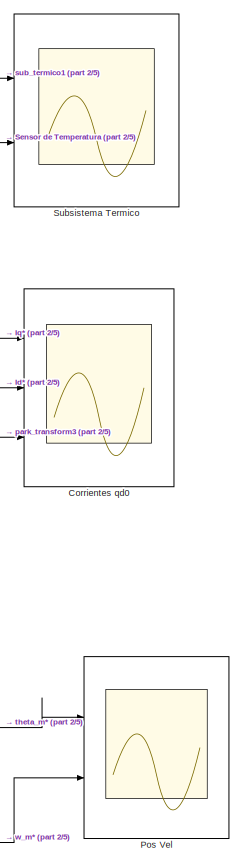
[diagram: Modelo NL Simulacion - part 3/5, top right region]
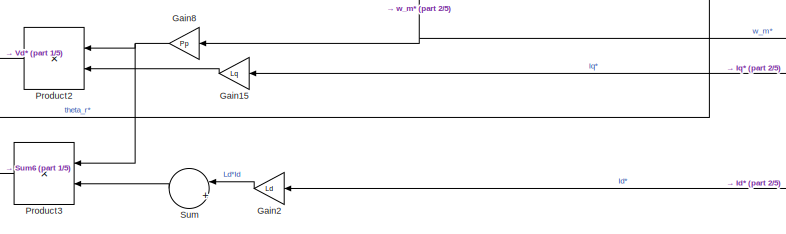
[diagram: Modelo NL Simulacion - part 4/5, central region]
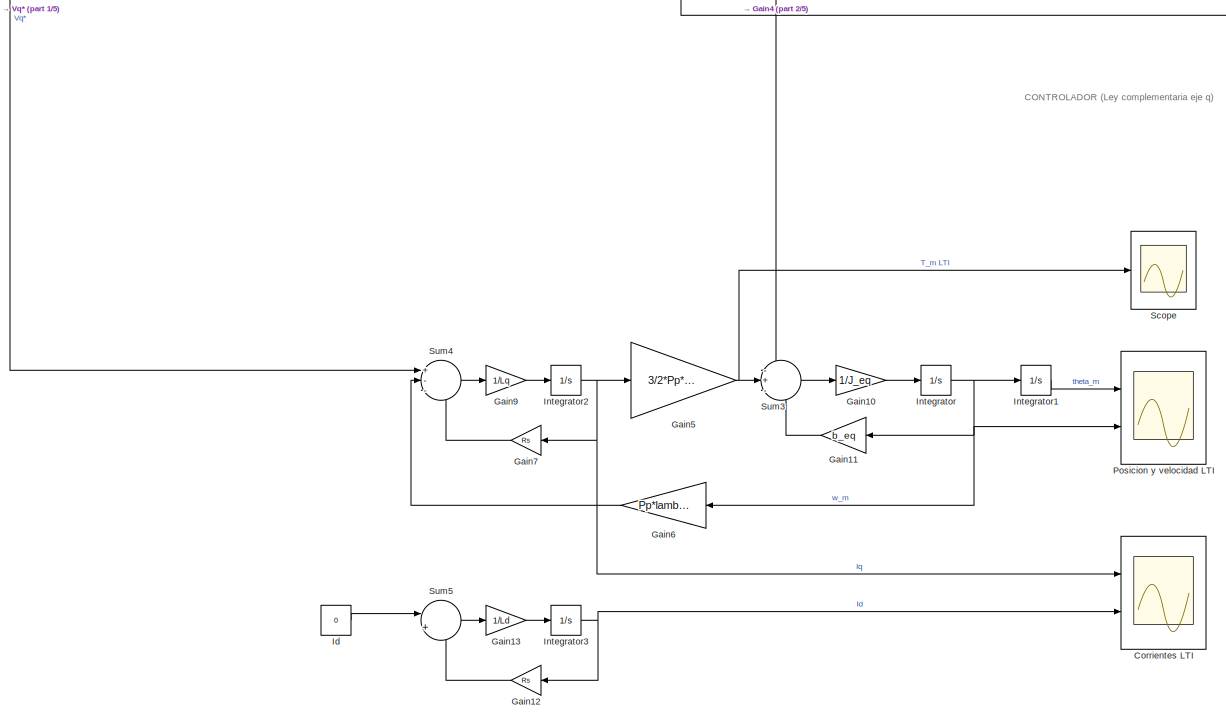
[diagram: Modelo NL Simulacion - part 5/5, bottom left region]
BLOCK [SubSystem] Modelo NL Simulacion
  Ports = [0, 4]
  RequestExecContextInheritance = off
BLOCK [Scope] Modelo NL Simulacion/Consignas
  Floating = off
  NumInputPorts = 3
  Ports = [3]
  ScopeSpecificationString = Simulink.scopes.TimeScopeBlockCfg('CurrentConfiguration', extmgr.ConfigurationSet(extmgr.Configuration('Core','General UI',true,'FigureColor',[0.156862745098039 0.156862745098039 0.156862745098039]),extmgr.Configuration('Core','Source UI',true),extmgr.Configuration('Sources','WiredSimulink',true,'DataLoggingVariableName','ScopeData1','DataLogging',true,'DataLoggingSaveFormat','StructureWithTime'),...<+1510ch>
BLOCK [Constant] Modelo NL Simulacion/Constant
  Value = Rs
BLOCK [Scope] Modelo NL Simulacion/Corrientes LTI
  Floating = off
  NumInputPorts = 2
  Ports = [2]
  ScopeSpecificationString = Simulink.scopes.TimeScopeBlockCfg('CurrentConfiguration', extmgr.ConfigurationSet(extmgr.Configuration('Core','General UI',true,'FigureColor',[0.156862745098039 0.156862745098039 0.156862745098039]),extmgr.Configuration('Core','Source UI',true),extmgr.Configuration('Sources','WiredSimulink',true,'DataLoggingVariableName','ScopeData2','DataLogging',true,'DataLoggingSaveFormat','StructureWithTime'),...<+1622ch>
BLOCK [Scope] Modelo NL Simulacion/Corrientes abc
  Floating = off
  NumInputPorts = 3
  Ports = [3]
  ScopeSpecificationString = Simulink.scopes.TimeScopeBlockCfg('CurrentConfiguration', extmgr.ConfigurationSet(extmgr.Configuration('Core','General UI',true,'FigureColor',[0.156862745098039 0.156862745098039 0.156862745098039]),extmgr.Configuration('Core','Source UI',true),extmgr.Configuration('Sources','WiredSimulink',true,'DataLoggingVariableName','ScopeData3','DataLogging',true,'DataLoggingSaveFormat','StructureWithTime'),...<+1684ch>
BLOCK [Scope] Modelo NL Simulacion/Corrientes qd0
  Floating = off
  NumInputPorts = 3
  Ports = [3]
  ScopeSpecificationString = Simulink.scopes.TimeScopeBlockCfg('CurrentConfiguration', extmgr.ConfigurationSet(extmgr.Configuration('Core','General UI',true),extmgr.Configuration('Core','Source UI',true),extmgr.Configuration('Sources','WiredSimulink',true,'DataLoggingVariableName','Corrientes_qd0','DataLogging',true),extmgr.Configuration('Visuals','Time Domain',true,'SerializedDisplays',{struct('MinYLimReal','-9.156','MaxYLim...<+1408ch>
BLOCK [Gain] Modelo NL Simulacion/Gain1
  Gain = Pp
BLOCK [Gain] Modelo NL Simulacion/Gain10
  Gain = 1/J_eq
BLOCK [Gain] Modelo NL Simulacion/Gain11
  Gain = b_eq
BLOCK [Gain] Modelo NL Simulacion/Gain12
  Gain = Rs
BLOCK [Gain] Modelo NL Simulacion/Gain13
  Gain = 1/Ld
BLOCK [Gain] Modelo NL Simulacion/Gain14
BLOCK [Gain] Modelo NL Simulacion/Gain15
  Gain = Lq
BLOCK [Gain] Modelo NL Simulacion/Gain2
  Gain = Ld
BLOCK [Gain] Modelo NL Simulacion/Gain3
  Gain = Pp
BLOCK [Gain] Modelo NL Simulacion/Gain4
  Gain = 1/r
BLOCK [Gain] Modelo NL Simulacion/Gain5
  Gain = 3/2*Pp*lambda_m
BLOCK [Gain] Modelo NL Simulacion/Gain6
  Gain = Pp*lambda_m
BLOCK [Gain] Modelo NL Simulacion/Gain7
  Gain = Rs
BLOCK [Gain] Modelo NL Simulacion/Gain8
  Gain = Pp
BLOCK [Gain] Modelo NL Simulacion/Gain9
  Gain = 1/Lq
BLOCK [Outport] Modelo NL Simulacion/I0
  Port = 4
BLOCK [Constant] Modelo NL Simulacion/Id
  Value = 0
BLOCK [Outport] Modelo NL Simulacion/Id1
  Port = 3
BLOCK [Integrator] Modelo NL Simulacion/Integrator
  Ports = [1, 1]
BLOCK [Integrator] Modelo NL Simulacion/Integrator1
  Ports = [1, 1]
BLOCK [Integrator] Modelo NL Simulacion/Integrator2
  Ports = [1, 1]
BLOCK [Integrator] Modelo NL Simulacion/Integrator3
  InitialCondition = Id_0
  Ports = [1, 1]
BLOCK [Outport] Modelo NL Simulacion/Iq
  Port = 2
BLOCK [ManualSwitch] Modelo NL Simulacion/Manual Switch
BLOCK [ManualSwitch] Modelo NL Simulacion/Manual Switch1
  CurrentSetting = 0
BLOCK [SubSystem] Modelo NL Simulacion/Modulador de Tensión1
  Ports = [3, 3]
  RequestExecContextInheritance = off
BLOCK [Gain] Modelo NL Simulacion/Modulador de Tensión1/Gain2
BLOCK [Gain] Modelo NL Simulacion/Modulador de Tensión1/Gain3
BLOCK [Gain] Modelo NL Simulacion/Modulador de Tensión1/Gain4
BLOCK [Outport] Modelo NL Simulacion/Modulador de Tensión1/Out1
BLOCK [Outport] Modelo NL Simulacion/Modulador de Tensión1/Out2
  Port = 2
BLOCK [Outport] Modelo NL Simulacion/Modulador de Tensión1/Out3
  Port = 3
BLOCK [Inport] Modelo NL Simulacion/Modulador de Tensión1/fa
BLOCK [Inport] Modelo NL Simulacion/Modulador de Tensión1/fb
  Port = 2
BLOCK [Inport] Modelo NL Simulacion/Modulador de Tensión1/fc
  Port = 3
BLOCK [Scope] Modelo NL Simulacion/Pos Vel
  Floating = off
  NumInputPorts = 2
  Ports = [2]
  ScopeSpecificationString = Simulink.scopes.TimeScopeBlockCfg('CurrentConfiguration', extmgr.ConfigurationSet(extmgr.Configuration('Core','General UI',true),extmgr.Configuration('Core','Source UI',true),extmgr.Configuration('Sources','WiredSimulink',true,'DataLoggingVariableName','Pos_Vel','DataLogging',true,'DataLoggingSaveFormat','StructureWithTime'),extmgr.Configuration('Visuals','Time Domain',true,'SerializedDisplays',{s...<+1529ch>
BLOCK [Scope] Modelo NL Simulacion/Posicion y velocidad LTI
  Floating = off
  NumInputPorts = 2
  Ports = [2]
  ScopeSpecificationString = Simulink.scopes.TimeScopeBlockCfg('CurrentConfiguration', extmgr.ConfigurationSet(extmgr.Configuration('Core','General UI',true,'FigureColor',[0.156862745098039 0.156862745098039 0.156862745098039]),extmgr.Configuration('Core','Source UI',true),extmgr.Configuration('Sources','WiredSimulink',true,'DataLoggingVariableName','ScopeData4','DataLogging',true,'DataLoggingSaveFormat','StructureWithTime'),...<+1646ch>
BLOCK [Product] Modelo NL Simulacion/Product2
  Ports = [2, 1]
BLOCK [Product] Modelo NL Simulacion/Product3
  Ports = [2, 1]
BLOCK [Scope] Modelo NL Simulacion/Scope
  Floating = off
  NumInputPorts = 1
  Ports = [1]
  ScopeSpecificationString = Simulink.scopes.TimeScopeBlockCfg('CurrentConfiguration', extmgr.ConfigurationSet(extmgr.Configuration('Core','General UI',true),extmgr.Configuration('Core','Source UI',true),extmgr.Configuration('Sources','WiredSimulink',true,'DataLoggingVariableName','ScopeData5','DataLogging',true,'DataLoggingSaveFormat','StructureWithTime'),extmgr.Configuration('Visuals','Time Domain',true,'SerializedDisplays'...<+1429ch>
BLOCK [SubSystem] Modelo NL Simulacion/Sensor de Corriente1
  Ports = [3, 3]
  RequestExecContextInheritance = off
BLOCK [Gain] Modelo NL Simulacion/Sensor de Corriente1/Gain5
BLOCK [Gain] Modelo NL Simulacion/Sensor de Corriente1/Gain6
BLOCK [Gain] Modelo NL Simulacion/Sensor de Corriente1/Gain7
BLOCK [Inport] Modelo NL Simulacion/Sensor de Corriente1/In1
BLOCK [Inport] Modelo NL Simulacion/Sensor de Corriente1/In2
  Port = 2
BLOCK [Inport] Modelo NL Simulacion/Sensor de Corriente1/In3
  Port = 3
BLOCK [Outport] Modelo NL Simulacion/Sensor de Corriente1/Out1
BLOCK [Outport] Modelo NL Simulacion/Sensor de Corriente1/Out2
  Port = 2
BLOCK [Outport] Modelo NL Simulacion/Sensor de Corriente1/Out3
  Port = 3
BLOCK [Gain] Modelo NL Simulacion/Sensor de Temperatura
BLOCK [Gain] Modelo NL Simulacion/Sensor de posición1
  NameLocation = right
BLOCK [Gain] Modelo NL Simulacion/Sensor de velocidad1
  NameLocation = right
BLOCK [Scope] Modelo NL Simulacion/Subsistema Termico
  Floating = off
  NumInputPorts = 2
  Ports = [2]
  ScopeSpecificationString = Simulink.scopes.TimeScopeBlockCfg('CurrentConfiguration', extmgr.ConfigurationSet(extmgr.Configuration('Core','General UI',true),extmgr.Configuration('Core','Source UI',true),extmgr.Configuration('Sources','WiredSimulink',true,'DataLoggingVariableName','Subs_Termico','DataLogging',true,'DataLoggingSaveFormat','StructureWithTime'),extmgr.Configuration('Visuals','Time Domain',true,'SerializedDisplay...<+1462ch>
BLOCK [Sum] Modelo NL Simulacion/Sum
  Inputs = |++
  Ports = [2, 1]
BLOCK [Sum] Modelo NL Simulacion/Sum2
  Inputs = |+-
  Ports = [2, 1]
BLOCK [Sum] Modelo NL Simulacion/Sum3
  Inputs = -+-
  Ports = [3, 1]
BLOCK [Sum] Modelo NL Simulacion/Sum4
  Inputs = +--
  Ports = [3, 1]
BLOCK [Sum] Modelo NL Simulacion/Sum5
  Inputs = |+-
  Ports = [2, 1]
BLOCK [Sum] Modelo NL Simulacion/Sum6
  Inputs = |++
  Ports = [2, 1]
BLOCK [Scope] Modelo NL Simulacion/Tensiones abc
  Floating = off
  NumInputPorts = 3
  Ports = [3]
  ScopeSpecificationString = Simulink.scopes.TimeScopeBlockCfg('CurrentConfiguration', extmgr.ConfigurationSet(extmgr.Configuration('Core','General UI',true,'FigureColor',[0.156862745098039 0.156862745098039 0.156862745098039]),extmgr.Configuration('Core','Source UI',true),extmgr.Configuration('Sources','WiredSimulink',true,'DataLoggingVariableName','ScopeData6','DataLogging',true,'DataLoggingSaveFormat','StructureWithTime'),...<+1649ch>
BLOCK [Scope] Modelo NL Simulacion/Tensiones qd0
  Floating = off
  NumInputPorts = 3
  Ports = [3]
  ScopeSpecificationString = Simulink.scopes.TimeScopeBlockCfg('CurrentConfiguration', extmgr.ConfigurationSet(extmgr.Configuration('Core','General UI',true),extmgr.Configuration('Core','Source UI',true),extmgr.Configuration('Sources','WiredSimulink',true,'DataLoggingVariableName','Tensiones_qd0','DataLogging',true),extmgr.Configuration('Visuals','Time Domain',true,'SerializedDisplays',{struct('MinYLimReal','-56.19476','MaxYL...<+1401ch>
BLOCK [SubSystem] Modelo NL Simulacion/Tl
  ClipboardFcn = sigbuilder_block('clipboard');
  CloseFcn = sigbuilder_block('close');
  ContinueFcn = sigbuilder_block('continue');
  CopyFcn = sigbuilder_block('copy');
  DeleteFcn = sigbuilder_block('delete');
  LoadFcn = sigbuilder_block('load');
  MaskHideContents = on
  ModelCloseFcn = sigbuilder_block('modelClose');
  NameChangeFcn = sigbuilder_block('namechange');
  OpenFcn = sigbuilder_block('open',[5.5 30 1269 678 ]);
  PauseFcn = sigbuilder_block('pause');
  Ports = [0, 1]
  PreSaveFcn = sigbuilder_block('preSave');
  RequestExecContextInheritance = off
  StartFcn = sigbuilder_block('start');
  StopFcn = sigbuilder_block('stop');
  Tag = STV Subsys
BLOCK [Demux] Modelo NL Simulacion/Tl/Demux
  DisplayOption = none
  Outputs = 1
  Ports = [1, 1]
  Tag = STV Demux
BLOCK [FromWorkspace] Modelo NL Simulacion/Tl/FromWs
  Tag = STV FromWs
  VariableName = tuvar
BLOCK [Outport] Modelo NL Simulacion/Tl/Tl
  Tag = STV Outport
BLOCK [Outport] Modelo NL Simulacion/Ts
BLOCK [Constant] Modelo NL Simulacion/V0
  Value = 0
BLOCK [Constant] Modelo NL Simulacion/Vd = 0
  Value = 0
BLOCK [SubSystem] Modelo NL Simulacion/Vd = 1.9596
  ClipboardFcn = sigbuilder_block('clipboard');
  CloseFcn = sigbuilder_block('close');
  ContinueFcn = sigbuilder_block('continue');
  CopyFcn = sigbuilder_block('copy');
  DeleteFcn = sigbuilder_block('delete');
  LoadFcn = sigbuilder_block('load');
  MaskHideContents = on
  ModelCloseFcn = sigbuilder_block('modelClose');
  NameChangeFcn = sigbuilder_block('namechange');
  OpenFcn = sigbuilder_block('open',[5.5 30 1269 678 ]);
  PauseFcn = sigbuilder_block('pause');
  Ports = [0, 1]
  PreSaveFcn = sigbuilder_block('preSave');
  RequestExecContextInheritance = off
  StartFcn = sigbuilder_block('start');
  StopFcn = sigbuilder_block('stop');
  Tag = STV Subsys
BLOCK [Demux] Modelo NL Simulacion/Vd = 1.9596/Demux
  DisplayOption = none
  Outputs = 1
  Ports = [1, 1]
  Tag = STV Demux
BLOCK [FromWorkspace] Modelo NL Simulacion/Vd = 1.9596/FromWs
  Tag = STV FromWs
  VariableName = tuvar
BLOCK [Outport] Modelo NL Simulacion/Vd = 1.9596/Vd
  Tag = STV Outport
BLOCK [SubSystem] Modelo NL Simulacion/Vq
  ClipboardFcn = sigbuilder_block('clipboard');
  CloseFcn = sigbuilder_block('close');
  ContinueFcn = sigbuilder_block('continue');
  CopyFcn = sigbuilder_block('copy');
  DeleteFcn = sigbuilder_block('delete');
  LoadFcn = sigbuilder_block('load');
  MaskHideContents = on
  ModelCloseFcn = sigbuilder_block('modelClose');
  NameChangeFcn = sigbuilder_block('namechange');
  OpenFcn = sigbuilder_block('open',[5.5 30 1269 678 ]);
  PauseFcn = sigbuilder_block('pause');
  Ports = [0, 1]
  PreSaveFcn = sigbuilder_block('preSave');
  RequestExecContextInheritance = off
  StartFcn = sigbuilder_block('start');
  StopFcn = sigbuilder_block('stop');
  Tag = STV Subsys
BLOCK [Demux] Modelo NL Simulacion/Vq/Demux
  DisplayOption = none
  Outputs = 1
  Ports = [1, 1]
  Tag = STV Demux
BLOCK [FromWorkspace] Modelo NL Simulacion/Vq/FromWs
  Tag = STV FromWs
  VariableName = tuvar
BLOCK [Outport] Modelo NL Simulacion/Vq/Vq
  Tag = STV Outport
BLOCK [SubSystem] Modelo NL Simulacion/inverse_park_transform2
  ErrorFcn = Stateflow.Translate.translate
  PermitHierarchicalResolution = ExplicitOnly
  Ports = [4, 3]
  RequestExecContextInheritance = off
  SFBlockType = MATLAB Function
  TreatAsAtomicUnit = on
BLOCK [Demux] Modelo NL Simulacion/inverse_park_transform2/ Demux 
  Outputs = 1
  Ports = [1, 1]
BLOCK [S-Function] Modelo NL Simulacion/inverse_park_transform2/ SFunction 
  EnableBusSupport = on
  FunctionName = sf_sfun
  PortCounts = [4 4]
  Ports = [4, 4]
  SFcnIsStateOwnerBlock = off
  SFunctionDeploymentMode = off
  Tag = Stateflow S-Function 7
BLOCK [Terminator] Modelo NL Simulacion/inverse_park_transform2/ Terminator 
BLOCK [Inport] Modelo NL Simulacion/inverse_park_transform2/f0
  Port = 3
BLOCK [Outport] Modelo NL Simulacion/inverse_park_transform2/fa
BLOCK [Outport] Modelo NL Simulacion/inverse_park_transform2/fb
  Port = 2
BLOCK [Outport] Modelo NL Simulacion/inverse_park_transform2/fc
  Port = 3
BLOCK [Inport] Modelo NL Simulacion/inverse_park_transform2/fd
  Port = 2
BLOCK [Inport] Modelo NL Simulacion/inverse_park_transform2/fq
BLOCK [Inport] Modelo NL Simulacion/inverse_park_transform2/theta_r
  Port = 4
BLOCK [SubSystem] Modelo NL Simulacion/inverse_park_transform3
  ErrorFcn = Stateflow.Translate.translate
  PermitHierarchicalResolution = ExplicitOnly
  Ports = [4, 3]
  RequestExecContextInheritance = off
  SFBlockType = MATLAB Function
  TreatAsAtomicUnit = on
BLOCK [Demux] Modelo NL Simulacion/inverse_park_transform3/ Demux 
  Outputs = 1
  Ports = [1, 1]
BLOCK [S-Function] Modelo NL Simulacion/inverse_park_transform3/ SFunction 
  EnableBusSupport = on
  FunctionName = sf_sfun
  PortCounts = [4 4]
  Ports = [4, 4]
  SFcnIsStateOwnerBlock = off
  SFunctionDeploymentMode = off
  Tag = Stateflow S-Function 8
BLOCK [Terminator] Modelo NL Simulacion/inverse_park_transform3/ Terminator 
BLOCK [Inport] Modelo NL Simulacion/inverse_park_transform3/f0
  Port = 3
BLOCK [Outport] Modelo NL Simulacion/inverse_park_transform3/fa
BLOCK [Outport] Modelo NL Simulacion/inverse_park_transform3/fb
  Port = 2
BLOCK [Outport] Modelo NL Simulacion/inverse_park_transform3/fc
  Port = 3
BLOCK [Inport] Modelo NL Simulacion/inverse_park_transform3/fd
  Port = 2
BLOCK [Inport] Modelo NL Simulacion/inverse_park_transform3/fq
BLOCK [Inport] Modelo NL Simulacion/inverse_park_transform3/theta_r
  Port = 4
BLOCK [SubSystem] Modelo NL Simulacion/park_transform2
  ErrorFcn = Stateflow.Translate.translate
  PermitHierarchicalResolution = ExplicitOnly
  Ports = [4, 3]
  RequestExecContextInheritance = off
  SFBlockType = MATLAB Function
  TreatAsAtomicUnit = on
BLOCK [Demux] Modelo NL Simulacion/park_transform2/ Demux 
  Outputs = 1
  Ports = [1, 1]
BLOCK [S-Function] Modelo NL Simulacion/park_transform2/ SFunction 
  EnableBusSupport = on
  FunctionName = sf_sfun
  PortCounts = [4 4]
  Ports = [4, 4]
  SFcnIsStateOwnerBlock = off
  SFunctionDeploymentMode = off
  Tag = Stateflow S-Function 9
BLOCK [Terminator] Modelo NL Simulacion/park_transform2/ Terminator 
BLOCK [Outport] Modelo NL Simulacion/park_transform2/f0
  Port = 3
BLOCK [Inport] Modelo NL Simulacion/park_transform2/fa
BLOCK [Inport] Modelo NL Simulacion/park_transform2/fb
  Port = 2
BLOCK [Inport] Modelo NL Simulacion/park_transform2/fc
  Port = 3
BLOCK [Outport] Modelo NL Simulacion/park_transform2/fd
  Port = 2
BLOCK [Outport] Modelo NL Simulacion/park_transform2/fq
BLOCK [Inport] Modelo NL Simulacion/park_transform2/theta_r
  Port = 4
BLOCK [SubSystem] Modelo NL Simulacion/park_transform3
  ErrorFcn = Stateflow.Translate.translate
  PermitHierarchicalResolution = ExplicitOnly
  Ports = [4, 3]
  RequestExecContextInheritance = off
  SFBlockType = MATLAB Function
  TreatAsAtomicUnit = on
BLOCK [Demux] Modelo NL Simulacion/park_transform3/ Demux 
  Outputs = 1
  Ports = [1, 1]
BLOCK [S-Function] Modelo NL Simulacion/park_transform3/ SFunction 
  EnableBusSupport = on
  FunctionName = sf_sfun
  PortCounts = [4 4]
  Ports = [4, 4]
  SFcnIsStateOwnerBlock = off
  SFunctionDeploymentMode = off
  Tag = Stateflow S-Function 10
BLOCK [Terminator] Modelo NL Simulacion/park_transform3/ Terminator 
BLOCK [Outport] Modelo NL Simulacion/park_transform3/f0
  Port = 3
BLOCK [Inport] Modelo NL Simulacion/park_transform3/fa
BLOCK [Inport] Modelo NL Simulacion/park_transform3/fb
  Port = 2
BLOCK [Inport] Modelo NL Simulacion/park_transform3/fc
  Port = 3
BLOCK [Outport] Modelo NL Simulacion/park_transform3/fd
  Port = 2
BLOCK [Outport] Modelo NL Simulacion/park_transform3/fq
BLOCK [Inport] Modelo NL Simulacion/park_transform3/theta_r
  Port = 4
BLOCK [SubSystem] Modelo NL Simulacion/sub_mecanico_electrico1
  Ports = [5, 6]
  RequestExecContextInheritance = off
BLOCK [Constant] Modelo NL Simulacion/sub_mecanico_electrico1/Constant
  Value = lambda_m
BLOCK [Constant] Modelo NL Simulacion/sub_mecanico_electrico1/Constant1
  Value = lambda_m
BLOCK [Gain] Modelo NL Simulacion/sub_mecanico_electrico1/Gain
  Gain = 1/Lq
BLOCK [Gain] Modelo NL Simulacion/sub_mecanico_electrico1/Gain10
  Gain = 3*Pp/2
  NameLocation = left
BLOCK [Gain] Modelo NL Simulacion/sub_mecanico_electrico1/Gain12
  Gain = 1/J_eq
BLOCK [Gain] Modelo NL Simulacion/sub_mecanico_electrico1/Gain13
  Gain = b_eq
BLOCK [Gain] Modelo NL Simulacion/sub_mecanico_electrico1/Gain2
  Gain = Pp
BLOCK [Gain] Modelo NL Simulacion/sub_mecanico_electrico1/Gain3
  Gain = Ld
BLOCK [Gain] Modelo NL Simulacion/sub_mecanico_electrico1/Gain4
  Gain = Lq
  NameLocation = top
BLOCK [Gain] Modelo NL Simulacion/sub_mecanico_electrico1/Gain5
  Gain = 1/Ld
BLOCK [Gain] Modelo NL Simulacion/sub_mecanico_electrico1/Gain7
  Gain = 1/Lls
BLOCK [Gain] Modelo NL Simulacion/sub_mecanico_electrico1/Gain9
  Gain = Ld - Lq
BLOCK [Integrator] Modelo NL Simulacion/sub_mecanico_electrico1/Integrator
  Ports = [1, 1]
BLOCK [Integrator] Modelo NL Simulacion/sub_mecanico_electrico1/Integrator1
  InitialCondition = Id_0
  Ports = [1, 1]
BLOCK [Integrator] Modelo NL Simulacion/sub_mecanico_electrico1/Integrator2
  Ports = [1, 1]
BLOCK [Integrator] Modelo NL Simulacion/sub_mecanico_electrico1/Integrator3
  Ports = [1, 1]
BLOCK [Integrator] Modelo NL Simulacion/sub_mecanico_electrico1/Integrator4
  Ports = [1, 1]
BLOCK [Product] Modelo NL Simulacion/sub_mecanico_electrico1/Product
  Ports = [2, 1]
BLOCK [Product] Modelo NL Simulacion/sub_mecanico_electrico1/Product1
  Ports = [2, 1]
BLOCK [Product] Modelo NL Simulacion/sub_mecanico_electrico1/Product2
  NameLocation = left
  Ports = [2, 1]
BLOCK [Product] Modelo NL Simulacion/sub_mecanico_electrico1/Product3
  Ports = [2, 1]
BLOCK [Product] Modelo NL Simulacion/sub_mecanico_electrico1/Product4
  Ports = [2, 1]
BLOCK [Product] Modelo NL Simulacion/sub_mecanico_electrico1/Product5
  Ports = [2, 1]
BLOCK [Inport] Modelo NL Simulacion/sub_mecanico_electrico1/Rs
BLOCK [Sum] Modelo NL Simulacion/sub_mecanico_electrico1/Sum
  Inputs = |++
  Ports = [2, 1]
BLOCK [Sum] Modelo NL Simulacion/sub_mecanico_electrico1/Sum1
  Inputs = |+--
  Ports = [3, 1]
BLOCK [Sum] Modelo NL Simulacion/sub_mecanico_electrico1/Sum2
  Inputs = |++-
  Ports = [3, 1]
BLOCK [Sum] Modelo NL Simulacion/sub_mecanico_electrico1/Sum3
  Inputs = |+-
  Ports = [2, 1]
BLOCK [Sum] Modelo NL Simulacion/sub_mecanico_electrico1/Sum4
  Inputs = +--
  Ports = [3, 1]
BLOCK [Sum] Modelo NL Simulacion/sub_mecanico_electrico1/Sum5
  Inputs = |++
  Ports = [2, 1]
BLOCK [Inport] Modelo NL Simulacion/sub_mecanico_electrico1/T_l_eq
  Port = 5
BLOCK [Outport] Modelo NL Simulacion/sub_mecanico_electrico1/Tm
  Port = 6
BLOCK [Inport] Modelo NL Simulacion/sub_mecanico_electrico1/V0
  Port = 4
BLOCK [Inport] Modelo NL Simulacion/sub_mecanico_electrico1/Vd
  Port = 3
BLOCK [Inport] Modelo NL Simulacion/sub_mecanico_electrico1/Vq
  Port = 2
BLOCK [Outport] Modelo NL Simulacion/sub_mecanico_electrico1/i0
  Port = 3
BLOCK [Outport] Modelo NL Simulacion/sub_mecanico_electrico1/id
  Port = 2
BLOCK [Outport] Modelo NL Simulacion/sub_mecanico_electrico1/iq
BLOCK [Outport] Modelo NL Simulacion/sub_mecanico_electrico1/theta_m
  Port = 5
BLOCK [Outport] Modelo NL Simulacion/sub_mecanico_electrico1/w_m
  Port = 4
BLOCK [SubSystem] Modelo NL Simulacion/sub_termico1
  Ports = [3, 2]
  RequestExecContextInheritance = off
BLOCK [Constant] Modelo NL Simulacion/sub_termico1/Constant1
  Value = T_amb
BLOCK [Constant] Modelo NL Simulacion/sub_termico1/Constant2
  NameLocation = right
  Value = Rs_ref
BLOCK [Constant] Modelo NL Simulacion/sub_termico1/Constant3
  Value = Ts_ref
BLOCK [Gain] Modelo NL Simulacion/sub_termico1/Gain
  Gain = 1/Cts
BLOCK [Gain] Modelo NL Simulacion/sub_termico1/Gain1
  Gain = 1/Rtsamb
BLOCK [Gain] Modelo NL Simulacion/sub_termico1/Gain2
  Gain = a_cu
BLOCK [Integrator] Modelo NL Simulacion/sub_termico1/Integrator
  Ports = [1, 1]
BLOCK [Product] Modelo NL Simulacion/sub_termico1/Product
  Ports = [2, 1]
BLOCK [Product] Modelo NL Simulacion/sub_termico1/Product1
  Ports = [2, 1]
BLOCK [Product] Modelo NL Simulacion/sub_termico1/Product2
  Ports = [2, 1]
BLOCK [Product] Modelo NL Simulacion/sub_termico1/Product3
  Ports = [2, 1]
BLOCK [Product] Modelo NL Simulacion/sub_termico1/Product4
  Ports = [2, 1]
BLOCK [Outport] Modelo NL Simulacion/sub_termico1/Rs
BLOCK [Sum] Modelo NL Simulacion/sub_termico1/Sum
  Inputs = +++
  Ports = [3, 1]
BLOCK [Sum] Modelo NL Simulacion/sub_termico1/Sum1
  Inputs = |+-
  Ports = [2, 1]
BLOCK [Sum] Modelo NL Simulacion/sub_termico1/Sum2
  Inputs = |+-
  Ports = [2, 1]
BLOCK [Sum] Modelo NL Simulacion/sub_termico1/Sum3
  Inputs = -+|
  NameLocation = right
  Ports = [2, 1]
BLOCK [Sum] Modelo NL Simulacion/sub_termico1/Sum4
  Inputs = |++
  Ports = [2, 1]
BLOCK [Outport] Modelo NL Simulacion/sub_termico1/Ts
  Port = 2
BLOCK [Inport] Modelo NL Simulacion/sub_termico1/ia
BLOCK [Inport] Modelo NL Simulacion/sub_termico1/ib
  Port = 2
BLOCK [Inport] Modelo NL Simulacion/sub_termico1/ic
  Port = 3
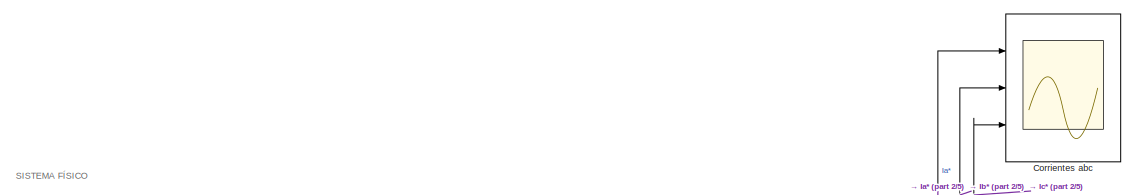
[diagram: Modelo NL con Tmod - part 1/5, top right region]
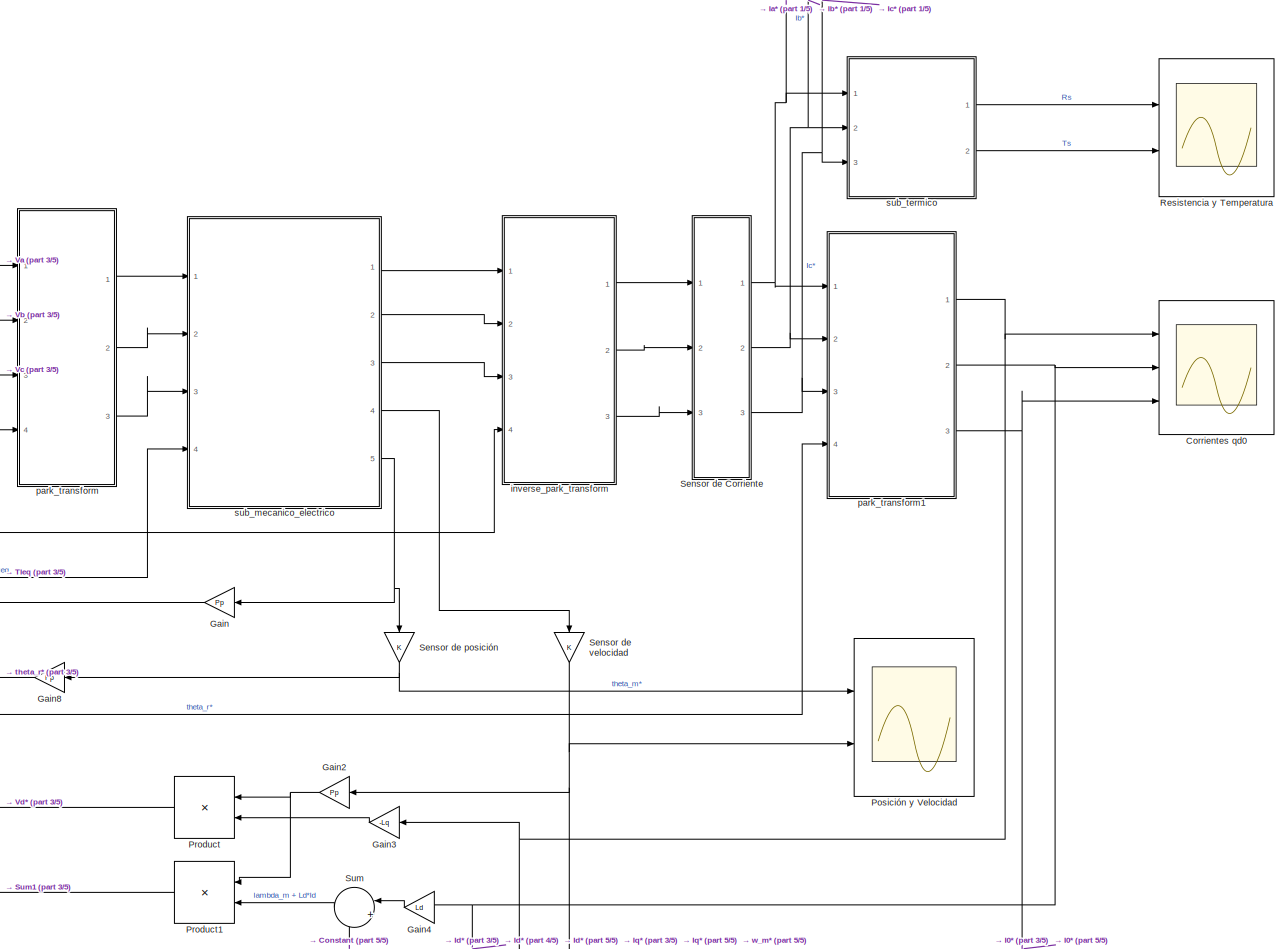
[diagram: Modelo NL con Tmod - part 2/5, middle right region]
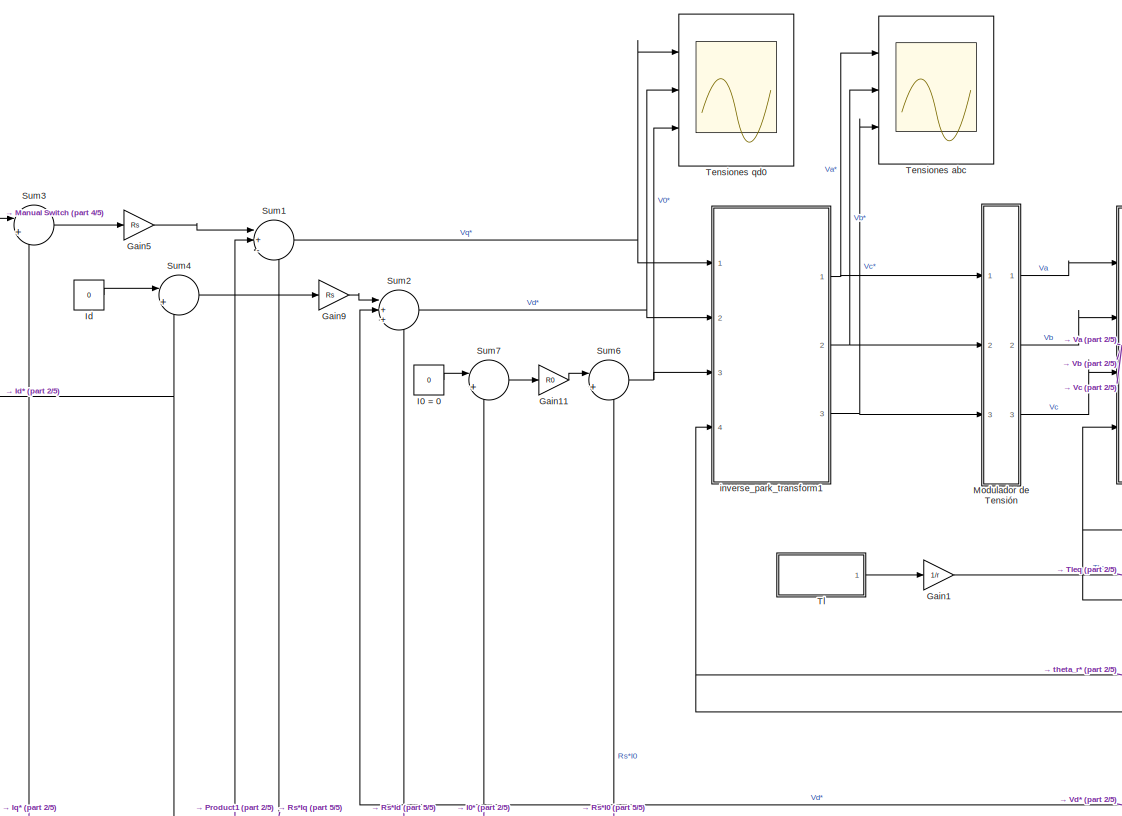
[diagram: Modelo NL con Tmod - part 3/5, central region]
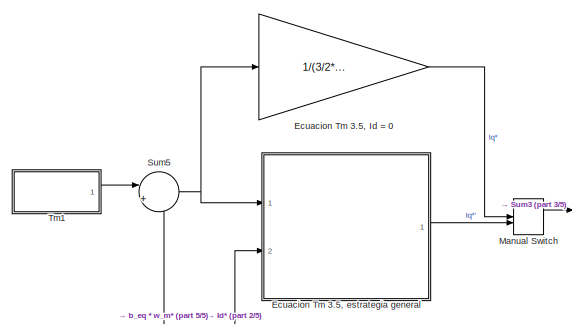
[diagram: Modelo NL con Tmod - part 4/5, top left region]
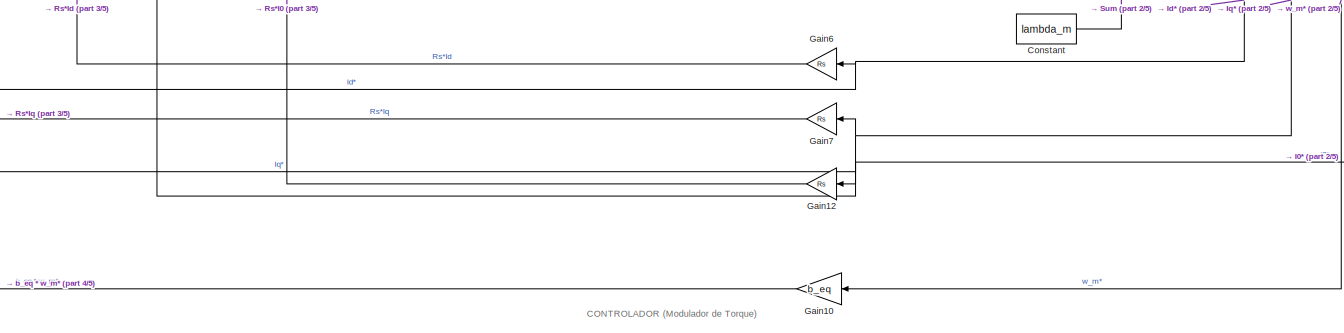
[diagram: Modelo NL con Tmod - part 5/5, bottom center region]
BLOCK [SubSystem] Modelo NL con Tmod
  Ports = []
  RequestExecContextInheritance = off
BLOCK [SubSystem] Modelo NL con Tmod en bloque
  Ports = []
  RequestExecContextInheritance = off
BLOCK [Scope] Modelo NL con Tmod en bloque/Corrientes abc
  Floating = off
  NumInputPorts = 3
  Ports = [3]
  ScopeSpecificationString = Simulink.scopes.TimeScopeBlockCfg('CurrentConfiguration', extmgr.ConfigurationSet(extmgr.Configuration('Core','General UI',true,'FigureColor',[0.156862745098039 0.156862745098039 0.156862745098039]),extmgr.Configuration('Core','Source UI',true),extmgr.Configuration('Sources','WiredSimulink',true,'DataLoggingVariableName','ScopeData11','DataLogging',true,'DataLoggingSaveFormat','StructureWithTime')...<+1628ch>  <repeated x5 — deduplicated; at blocks: Corrientes abc>
BLOCK [Scope] Modelo NL con Tmod en bloque/Corrientes qd0
  Floating = off
  NumInputPorts = 3
  Ports = [3]
  ScopeSpecificationString = Simulink.scopes.TimeScopeBlockCfg('CurrentConfiguration', extmgr.ConfigurationSet(extmgr.Configuration('Core','General UI',true,'FigureColor',[0.156862745098039 0.156862745098039 0.156862745098039]),extmgr.Configuration('Core','Source UI',true),extmgr.Configuration('Sources','WiredSimulink',true,'DataLogging',true,'DataLoggingVariableName','ScopeData18','DataLoggingSaveFormat','StructureWithTime')...<+1642ch>  <repeated x5 — deduplicated; at blocks: Corrientes qd0>
BLOCK [Gain] Modelo NL con Tmod en bloque/Gain
  Gain = Pp
BLOCK [Gain] Modelo NL con Tmod en bloque/Gain1
  Gain = 1/r
BLOCK [Gain] Modelo NL con Tmod en bloque/Gain8
  Gain = Pp
BLOCK [SubSystem] Modelo NL con Tmod en bloque/Modulador de Tensión
  Ports = [3, 3]
  RequestExecContextInheritance = off
BLOCK [Gain] Modelo NL con Tmod en bloque/Modulador de Tensión/Gain2
BLOCK [Gain] Modelo NL con Tmod en bloque/Modulador de Tensión/Gain3
BLOCK [Gain] Modelo NL con Tmod en bloque/Modulador de Tensión/Gain4
BLOCK [Outport] Modelo NL con Tmod en bloque/Modulador de Tensión/Out1
BLOCK [Outport] Modelo NL con Tmod en bloque/Modulador de Tensión/Out2
  Port = 2
BLOCK [Outport] Modelo NL con Tmod en bloque/Modulador de Tensión/Out3
  Port = 3
BLOCK [Inport] Modelo NL con Tmod en bloque/Modulador de Tensión/fa
BLOCK [Inport] Modelo NL con Tmod en bloque/Modulador de Tensión/fb
  Port = 2
BLOCK [Inport] Modelo NL con Tmod en bloque/Modulador de Tensión/fc
  Port = 3
BLOCK [SubSystem] Modelo NL con Tmod en bloque/Modulador de Torque
  Ports = [5, 3]
  RequestExecContextInheritance = off
BLOCK [Constant] Modelo NL con Tmod en bloque/Modulador de Torque/Constant1
  Value = lambda_m
BLOCK [Gain] Modelo NL con Tmod en bloque/Modulador de Torque/Ecuacion Tm 3.5, Id = 0
  Gain = 1/(3/2*Pp*lambda_m)
BLOCK [SubSystem] Modelo NL con Tmod en bloque/Modulador de Torque/Ecuacion Tm 3.5, estrategia general
  Ports = [2, 1]
  RequestExecContextInheritance = off
BLOCK [Constant] Modelo NL con Tmod en bloque/Modulador de Torque/Ecuacion Tm 3.5, estrategia general/Constant
  Value = lambda_m
BLOCK [Product] Modelo NL con Tmod en bloque/Modulador de Torque/Ecuacion Tm 3.5, estrategia general/Divide
  Inputs = */
  Ports = [2, 1]
BLOCK [Gain] Modelo NL con Tmod en bloque/Modulador de Torque/Ecuacion Tm 3.5, estrategia general/Gain
  Gain = 3/2 * Pp
BLOCK [Gain] Modelo NL con Tmod en bloque/Modulador de Torque/Ecuacion Tm 3.5, estrategia general/Gain1
  Gain = Ld-Lq
BLOCK [Inport] Modelo NL con Tmod en bloque/Modulador de Torque/Ecuacion Tm 3.5, estrategia general/Id*
  Port = 2
BLOCK [Outport] Modelo NL con Tmod en bloque/Modulador de Torque/Ecuacion Tm 3.5, estrategia general/Iq*'
BLOCK [Sum] Modelo NL con Tmod en bloque/Modulador de Torque/Ecuacion Tm 3.5, estrategia general/Sum
  Inputs = |++
  Ports = [2, 1]
BLOCK [Inport] Modelo NL con Tmod en bloque/Modulador de Torque/Ecuacion Tm 3.5, estrategia general/Tm*'
BLOCK [Gain] Modelo NL con Tmod en bloque/Modulador de Torque/Gain1
  Gain = Pp
BLOCK [Gain] Modelo NL con Tmod en bloque/Modulador de Torque/Gain10
  Gain = b_eq
BLOCK [Gain] Modelo NL con Tmod en bloque/Modulador de Torque/Gain11
  Gain = R0
BLOCK [Gain] Modelo NL con Tmod en bloque/Modulador de Torque/Gain13
  Gain = Ld
BLOCK [Gain] Modelo NL con Tmod en bloque/Modulador de Torque/Gain14
  Gain = Rs
BLOCK [Gain] Modelo NL con Tmod en bloque/Modulador de Torque/Gain15
  Gain = Rs
BLOCK [Gain] Modelo NL con Tmod en bloque/Modulador de Torque/Gain16
  Gain = Rs
BLOCK [Gain] Modelo NL con Tmod en bloque/Modulador de Torque/Gain5
  Gain = Rq
BLOCK [Gain] Modelo NL con Tmod en bloque/Modulador de Torque/Gain8
  Gain = -Lq
BLOCK [Gain] Modelo NL con Tmod en bloque/Modulador de Torque/Gain9
  Gain = Rd
BLOCK [Constant] Modelo NL con Tmod en bloque/Modulador de Torque/I0 = 0
  Value = 0
BLOCK [Inport] Modelo NL con Tmod en bloque/Modulador de Torque/I0*
  Port = 4
BLOCK [Constant] Modelo NL con Tmod en bloque/Modulador de Torque/Id
  Value = 0
BLOCK [Inport] Modelo NL con Tmod en bloque/Modulador de Torque/Id*
  Port = 3
BLOCK [Inport] Modelo NL con Tmod en bloque/Modulador de Torque/Iq*
  Port = 2
BLOCK [Product] Modelo NL con Tmod en bloque/Modulador de Torque/Product2
  Ports = [2, 1]
BLOCK [Product] Modelo NL con Tmod en bloque/Modulador de Torque/Product3
  Ports = [2, 1]
BLOCK [Sum] Modelo NL con Tmod en bloque/Modulador de Torque/Sum1
  Inputs = |+-+
  Ports = [3, 1]
BLOCK [Sum] Modelo NL con Tmod en bloque/Modulador de Torque/Sum2
  Inputs = |+++
  Ports = [3, 1]
BLOCK [Sum] Modelo NL con Tmod en bloque/Modulador de Torque/Sum3
  Inputs = |+-
  Ports = [2, 1]
BLOCK [Sum] Modelo NL con Tmod en bloque/Modulador de Torque/Sum4
  Inputs = |+-
  Ports = [2, 1]
BLOCK [Sum] Modelo NL con Tmod en bloque/Modulador de Torque/Sum5
  Inputs = |++
  Ports = [2, 1]
BLOCK [Sum] Modelo NL con Tmod en bloque/Modulador de Torque/Sum6
  Inputs = |++
  Ports = [2, 1]
BLOCK [Sum] Modelo NL con Tmod en bloque/Modulador de Torque/Sum7
  Inputs = |+-
  Ports = [2, 1]
BLOCK [Sum] Modelo NL con Tmod en bloque/Modulador de Torque/Sum8
  Inputs = |++
  Ports = [2, 1]
BLOCK [Inport] Modelo NL con Tmod en bloque/Modulador de Torque/Tm*'
BLOCK [Outport] Modelo NL con Tmod en bloque/Modulador de Torque/V0*
  Port = 3
BLOCK [Outport] Modelo NL con Tmod en bloque/Modulador de Torque/Vd*
  Port = 2
BLOCK [Outport] Modelo NL con Tmod en bloque/Modulador de Torque/Vq*
BLOCK [Inport] Modelo NL con Tmod en bloque/Modulador de Torque/w_m*
  Port = 5
BLOCK [Scope] Modelo NL con Tmod en bloque/Posición y Velocidad
  Floating = off
  NumInputPorts = 2
  Ports = [2]
  ScopeSpecificationString = Simulink.scopes.TimeScopeBlockCfg('CurrentConfiguration', extmgr.ConfigurationSet(extmgr.Configuration('Core','General UI',true,'FigureColor',[0.156862745098039 0.156862745098039 0.156862745098039]),extmgr.Configuration('Core','Source UI',true),extmgr.Configuration('Sources','WiredSimulink',true,'DataLoggingVariableName','ScopeData19','DataLogging',true,'DataLoggingSaveFormat','StructureWithTime')...<+1846ch>  <repeated x5 — deduplicated; at blocks: Posición y Velocidad>
BLOCK [Scope] Modelo NL con Tmod en bloque/Resistencia y Temperatura
  Floating = off
  NumInputPorts = 2
  Ports = [2]
  ScopeSpecificationString = Simulink.scopes.TimeScopeBlockCfg('CurrentConfiguration', extmgr.ConfigurationSet(extmgr.Configuration('Core','General UI',true,'FigureColor',[0.156862745098039 0.156862745098039 0.156862745098039]),extmgr.Configuration('Core','Source UI',true),extmgr.Configuration('Sources','WiredSimulink',true,'DataLoggingVariableName','ScopeData20','DataLogging',true,'DataLoggingSaveFormat','StructureWithTime')...<+1577ch>  <repeated x5 — deduplicated; at blocks: Resistencia y Temperatura>
BLOCK [SubSystem] Modelo NL con Tmod en bloque/Sensor de Corriente
  Ports = [3, 3]
  RequestExecContextInheritance = off
BLOCK [Gain] Modelo NL con Tmod en bloque/Sensor de Corriente/Gain5
BLOCK [Gain] Modelo NL con Tmod en bloque/Sensor de Corriente/Gain6
BLOCK [Gain] Modelo NL con Tmod en bloque/Sensor de Corriente/Gain7
BLOCK [Inport] Modelo NL con Tmod en bloque/Sensor de Corriente/In1
BLOCK [Inport] Modelo NL con Tmod en bloque/Sensor de Corriente/In2
  Port = 2
BLOCK [Inport] Modelo NL con Tmod en bloque/Sensor de Corriente/In3
  Port = 3
BLOCK [Outport] Modelo NL con Tmod en bloque/Sensor de Corriente/Out1
BLOCK [Outport] Modelo NL con Tmod en bloque/Sensor de Corriente/Out2
  Port = 2
BLOCK [Outport] Modelo NL con Tmod en bloque/Sensor de Corriente/Out3
  Port = 3
BLOCK [Gain] Modelo NL con Tmod en bloque/Sensor de posición
  NameLocation = right
BLOCK [Gain] Modelo NL con Tmod en bloque/Sensor de velocidad
  NameLocation = right
BLOCK [Scope] Modelo NL con Tmod en bloque/Tensiones abc
  Floating = off
  NumInputPorts = 3
  Ports = [3]
  ScopeSpecificationString = Simulink.scopes.TimeScopeBlockCfg('CurrentConfiguration', extmgr.ConfigurationSet(extmgr.Configuration('Core','General UI',true,'FigureColor',[0.156862745098039 0.156862745098039 0.156862745098039]),extmgr.Configuration('Core','Source UI',true),extmgr.Configuration('Sources','WiredSimulink',true,'DataLoggingVariableName','ScopeData21','DataLogging',true,'DataLoggingSaveFormat','StructureWithTime')...<+1650ch>  <repeated x5 — deduplicated; at blocks: Tensiones abc>
BLOCK [Scope] Modelo NL con Tmod en bloque/Tensiones qd0
  Floating = off
  NumInputPorts = 3
  Ports = [3]
  ScopeSpecificationString = Simulink.scopes.TimeScopeBlockCfg('CurrentConfiguration', extmgr.ConfigurationSet(extmgr.Configuration('Core','General UI',true,'FigureColor',[0.156862745098039 0.156862745098039 0.156862745098039]),extmgr.Configuration('Core','Source UI',true),extmgr.Configuration('Sources','WiredSimulink',true,'DataLoggingVariableName','ScopeData22','DataLogging',true,'DataLoggingSaveFormat','StructureWithTime')...<+1592ch>  <repeated x5 — deduplicated; at blocks: Tensiones qd0>
BLOCK [SubSystem] Modelo NL con Tmod en bloque/Tl
  ClipboardFcn = sigbuilder_block('clipboard');
  CloseFcn = sigbuilder_block('close');
  ContinueFcn = sigbuilder_block('continue');
  CopyFcn = sigbuilder_block('copy');
  DeleteFcn = sigbuilder_block('delete');
  LoadFcn = sigbuilder_block('load');
  MaskHideContents = on
  ModelCloseFcn = sigbuilder_block('modelClose');
  NameChangeFcn = sigbuilder_block('namechange');
  OpenFcn = sigbuilder_block('open',[5.5 30 1269 678 ]);
  PauseFcn = sigbuilder_block('pause');
  Ports = [0, 1]
  PreSaveFcn = sigbuilder_block('preSave');
  RequestExecContextInheritance = off
  StartFcn = sigbuilder_block('start');
  StopFcn = sigbuilder_block('stop');
  Tag = STV Subsys
BLOCK [Demux] Modelo NL con Tmod en bloque/Tl/Demux
  DisplayOption = none
  Outputs = 1
  Ports = [1, 1]
  Tag = STV Demux
BLOCK [FromWorkspace] Modelo NL con Tmod en bloque/Tl/FromWs
  Tag = STV FromWs
  VariableName = tuvar
BLOCK [Outport] Modelo NL con Tmod en bloque/Tl/Tl
  Tag = STV Outport
BLOCK [SubSystem] Modelo NL con Tmod en bloque/Tm1
  ClipboardFcn = sigbuilder_block('clipboard');
  CloseFcn = sigbuilder_block('close');
  ContinueFcn = sigbuilder_block('continue');
  CopyFcn = sigbuilder_block('copy');
  DeleteFcn = sigbuilder_block('delete');
  LoadFcn = sigbuilder_block('load');
  MaskHideContents = on
  ModelCloseFcn = sigbuilder_block('modelClose');
  NameChangeFcn = sigbuilder_block('namechange');
  OpenFcn = sigbuilder_block('open',[5.5 30 1269 678 ]);
  PauseFcn = sigbuilder_block('pause');
  Ports = [0, 1]
  PreSaveFcn = sigbuilder_block('preSave');
  RequestExecContextInheritance = off
  StartFcn = sigbuilder_block('start');
  StopFcn = sigbuilder_block('stop');
  Tag = STV Subsys
BLOCK [Demux] Modelo NL con Tmod en bloque/Tm1/Demux
  DisplayOption = none
  Outputs = 1
  Ports = [1, 1]
  Tag = STV Demux
BLOCK [FromWorkspace] Modelo NL con Tmod en bloque/Tm1/FromWs
  Tag = STV FromWs
  VariableName = tuvar
BLOCK [Outport] Modelo NL con Tmod en bloque/Tm1/Tm
  Tag = STV Outport
BLOCK [SubSystem] Modelo NL con Tmod en bloque/inverse_park_transform
  ErrorFcn = Stateflow.Translate.translate
  PermitHierarchicalResolution = ExplicitOnly
  Ports = [4, 3]
  RequestExecContextInheritance = off
  SFBlockType = MATLAB Function
  TreatAsAtomicUnit = on
BLOCK [Demux] Modelo NL con Tmod en bloque/inverse_park_transform/ Demux 
  Outputs = 1
  Ports = [1, 1]
BLOCK [S-Function] Modelo NL con Tmod en bloque/inverse_park_transform/ SFunction 
  EnableBusSupport = on
  FunctionName = sf_sfun
  PortCounts = [4 4]
  Ports = [4, 4]
  SFcnIsStateOwnerBlock = off
  SFunctionDeploymentMode = off
  Tag = Stateflow S-Function 27
BLOCK [Terminator] Modelo NL con Tmod en bloque/inverse_park_transform/ Terminator 
BLOCK [Inport] Modelo NL con Tmod en bloque/inverse_park_transform/f0
  Port = 3
BLOCK [Outport] Modelo NL con Tmod en bloque/inverse_park_transform/fa
BLOCK [Outport] Modelo NL con Tmod en bloque/inverse_park_transform/fb
  Port = 2
BLOCK [Outport] Modelo NL con Tmod en bloque/inverse_park_transform/fc
  Port = 3
BLOCK [Inport] Modelo NL con Tmod en bloque/inverse_park_transform/fd
  Port = 2
BLOCK [Inport] Modelo NL con Tmod en bloque/inverse_park_transform/fq
BLOCK [Inport] Modelo NL con Tmod en bloque/inverse_park_transform/theta_r
  Port = 4
BLOCK [SubSystem] Modelo NL con Tmod en bloque/inverse_park_transform1
  ErrorFcn = Stateflow.Translate.translate
  PermitHierarchicalResolution = ExplicitOnly
  Ports = [4, 3]
  RequestExecContextInheritance = off
  SFBlockType = MATLAB Function
  TreatAsAtomicUnit = on
BLOCK [Demux] Modelo NL con Tmod en bloque/inverse_park_transform1/ Demux 
  Outputs = 1
  Ports = [1, 1]
BLOCK [S-Function] Modelo NL con Tmod en bloque/inverse_park_transform1/ SFunction 
  EnableBusSupport = on
  FunctionName = sf_sfun
  PortCounts = [4 4]
  Ports = [4, 4]
  SFcnIsStateOwnerBlock = off
  SFunctionDeploymentMode = off
  Tag = Stateflow S-Function 28
BLOCK [Terminator] Modelo NL con Tmod en bloque/inverse_park_transform1/ Terminator 
BLOCK [Inport] Modelo NL con Tmod en bloque/inverse_park_transform1/f0
  Port = 3
BLOCK [Outport] Modelo NL con Tmod en bloque/inverse_park_transform1/fa
BLOCK [Outport] Modelo NL con Tmod en bloque/inverse_park_transform1/fb
  Port = 2
BLOCK [Outport] Modelo NL con Tmod en bloque/inverse_park_transform1/fc
  Port = 3
BLOCK [Inport] Modelo NL con Tmod en bloque/inverse_park_transform1/fd
  Port = 2
BLOCK [Inport] Modelo NL con Tmod en bloque/inverse_park_transform1/fq
BLOCK [Inport] Modelo NL con Tmod en bloque/inverse_park_transform1/theta_r
  Port = 4
BLOCK [SubSystem] Modelo NL con Tmod en bloque/park_transform
  ErrorFcn = Stateflow.Translate.translate
  PermitHierarchicalResolution = ExplicitOnly
  Ports = [4, 3]
  RequestExecContextInheritance = off
  SFBlockType = MATLAB Function
  TreatAsAtomicUnit = on
BLOCK [Demux] Modelo NL con Tmod en bloque/park_transform/ Demux 
  Outputs = 1
  Ports = [1, 1]
BLOCK [S-Function] Modelo NL con Tmod en bloque/park_transform/ SFunction 
  EnableBusSupport = on
  FunctionName = sf_sfun
  PortCounts = [4 4]
  Ports = [4, 4]
  SFcnIsStateOwnerBlock = off
  SFunctionDeploymentMode = off
  Tag = Stateflow S-Function 29
BLOCK [Terminator] Modelo NL con Tmod en bloque/park_transform/ Terminator 
BLOCK [Outport] Modelo NL con Tmod en bloque/park_transform/f0
  Port = 3
BLOCK [Inport] Modelo NL con Tmod en bloque/park_transform/fa
BLOCK [Inport] Modelo NL con Tmod en bloque/park_transform/fb
  Port = 2
BLOCK [Inport] Modelo NL con Tmod en bloque/park_transform/fc
  Port = 3
BLOCK [Outport] Modelo NL con Tmod en bloque/park_transform/fd
  Port = 2
BLOCK [Outport] Modelo NL con Tmod en bloque/park_transform/fq
BLOCK [Inport] Modelo NL con Tmod en bloque/park_transform/theta_r
  Port = 4
BLOCK [SubSystem] Modelo NL con Tmod en bloque/park_transform1
  ErrorFcn = Stateflow.Translate.translate
  PermitHierarchicalResolution = ExplicitOnly
  Ports = [4, 3]
  RequestExecContextInheritance = off
  SFBlockType = MATLAB Function
  TreatAsAtomicUnit = on
BLOCK [Demux] Modelo NL con Tmod en bloque/park_transform1/ Demux 
  Outputs = 1
  Ports = [1, 1]
BLOCK [S-Function] Modelo NL con Tmod en bloque/park_transform1/ SFunction 
  EnableBusSupport = on
  FunctionName = sf_sfun
  PortCounts = [4 4]
  Ports = [4, 4]
  SFcnIsStateOwnerBlock = off
  SFunctionDeploymentMode = off
  Tag = Stateflow S-Function 30
BLOCK [Terminator] Modelo NL con Tmod en bloque/park_transform1/ Terminator 
BLOCK [Outport] Modelo NL con Tmod en bloque/park_transform1/f0
  Port = 3
BLOCK [Inport] Modelo NL con Tmod en bloque/park_transform1/fa
BLOCK [Inport] Modelo NL con Tmod en bloque/park_transform1/fb
  Port = 2
BLOCK [Inport] Modelo NL con Tmod en bloque/park_transform1/fc
  Port = 3
BLOCK [Outport] Modelo NL con Tmod en bloque/park_transform1/fd
  Port = 2
BLOCK [Outport] Modelo NL con Tmod en bloque/park_transform1/fq
BLOCK [Inport] Modelo NL con Tmod en bloque/park_transform1/theta_r
  Port = 4
BLOCK [SubSystem] Modelo NL con Tmod en bloque/sub_mecanico_electrico
  Ports = [4, 5]
  RequestExecContextInheritance = off
BLOCK [Constant] Modelo NL con Tmod en bloque/sub_mecanico_electrico/Constant
  Value = lambda_m
BLOCK [Constant] Modelo NL con Tmod en bloque/sub_mecanico_electrico/Constant1
  Value = lambda_m
BLOCK [Scope] Modelo NL con Tmod en bloque/sub_mecanico_electrico/Curva T-w
  Floating = off
  NumInputPorts = 2
  Ports = [2]
  ScopeSpecificationString = Simulink.scopes.TimeScopeBlockCfg('CurrentConfiguration', extmgr.ConfigurationSet(extmgr.Configuration('Core','General UI',true,'FigureColor',[0.156862745098039 0.156862745098039 0.156862745098039]),extmgr.Configuration('Core','Source UI',true),extmgr.Configuration('Sources','WiredSimulink',true,'DataLoggingVariableName','Curva_Tw','DataLogging',true,'DataLoggingSaveFormat','StructureWithTime'),ex...<+1513ch>  <repeated x6 — deduplicated; at blocks: Curva T-w>
BLOCK [Gain] Modelo NL con Tmod en bloque/sub_mecanico_electrico/Gain
  Gain = 1/Lq
BLOCK [Gain] Modelo NL con Tmod en bloque/sub_mecanico_electrico/Gain1
  Gain = Rs
BLOCK [Gain] Modelo NL con Tmod en bloque/sub_mecanico_electrico/Gain10
  Gain = 3*Pp/2
  NameLocation = left
BLOCK [Gain] Modelo NL con Tmod en bloque/sub_mecanico_electrico/Gain11
  Gain = Rs
BLOCK [Gain] Modelo NL con Tmod en bloque/sub_mecanico_electrico/Gain12
  Gain = 1/J_eq
BLOCK [Gain] Modelo NL con Tmod en bloque/sub_mecanico_electrico/Gain13
  Gain = b_eq
BLOCK [Gain] Modelo NL con Tmod en bloque/sub_mecanico_electrico/Gain2
  Gain = Pp
BLOCK [Gain] Modelo NL con Tmod en bloque/sub_mecanico_electrico/Gain3
  Gain = Ld
BLOCK [Gain] Modelo NL con Tmod en bloque/sub_mecanico_electrico/Gain4
  Gain = Lq
  NameLocation = top
BLOCK [Gain] Modelo NL con Tmod en bloque/sub_mecanico_electrico/Gain5
  Gain = 1/Ld
BLOCK [Gain] Modelo NL con Tmod en bloque/sub_mecanico_electrico/Gain6
  Gain = Rs
BLOCK [Gain] Modelo NL con Tmod en bloque/sub_mecanico_electrico/Gain7
  Gain = 1/Lls
BLOCK [Gain] Modelo NL con Tmod en bloque/sub_mecanico_electrico/Gain9
  Gain = Ld - Lq
BLOCK [Integrator] Modelo NL con Tmod en bloque/sub_mecanico_electrico/Integrator
  Ports = [1, 1]
BLOCK [Integrator] Modelo NL con Tmod en bloque/sub_mecanico_electrico/Integrator1
  InitialCondition = Id_0
  Ports = [1, 1]
BLOCK [Integrator] Modelo NL con Tmod en bloque/sub_mecanico_electrico/Integrator2
  Ports = [1, 1]
BLOCK [Integrator] Modelo NL con Tmod en bloque/sub_mecanico_electrico/Integrator3
  Ports = [1, 1]
BLOCK [Integrator] Modelo NL con Tmod en bloque/sub_mecanico_electrico/Integrator4
  Ports = [1, 1]
BLOCK [Product] Modelo NL con Tmod en bloque/sub_mecanico_electrico/Product
  Ports = [2, 1]
BLOCK [Product] Modelo NL con Tmod en bloque/sub_mecanico_electrico/Product1
  Ports = [2, 1]
BLOCK [Product] Modelo NL con Tmod en bloque/sub_mecanico_electrico/Product2
  NameLocation = left
  Ports = [2, 1]
BLOCK [Sum] Modelo NL con Tmod en bloque/sub_mecanico_electrico/Sum
  Inputs = |++
  Ports = [2, 1]
BLOCK [Sum] Modelo NL con Tmod en bloque/sub_mecanico_electrico/Sum1
  Inputs = |+--
  Ports = [3, 1]
BLOCK [Sum] Modelo NL con Tmod en bloque/sub_mecanico_electrico/Sum2
  Inputs = |++-
  Ports = [3, 1]
BLOCK [Sum] Modelo NL con Tmod en bloque/sub_mecanico_electrico/Sum3
  Inputs = |+-
  Ports = [2, 1]
BLOCK [Sum] Modelo NL con Tmod en bloque/sub_mecanico_electrico/Sum4
  Inputs = +--
  Ports = [3, 1]
BLOCK [Sum] Modelo NL con Tmod en bloque/sub_mecanico_electrico/Sum5
  Inputs = |++
  Ports = [2, 1]
BLOCK [Inport] Modelo NL con Tmod en bloque/sub_mecanico_electrico/T_l_eq
  Port = 4
BLOCK [Inport] Modelo NL con Tmod en bloque/sub_mecanico_electrico/V0
  Port = 3
BLOCK [Inport] Modelo NL con Tmod en bloque/sub_mecanico_electrico/Vd
  Port = 2
BLOCK [Inport] Modelo NL con Tmod en bloque/sub_mecanico_electrico/Vq
BLOCK [Outport] Modelo NL con Tmod en bloque/sub_mecanico_electrico/i0
  Port = 3
BLOCK [Outport] Modelo NL con Tmod en bloque/sub_mecanico_electrico/id
  Port = 2
BLOCK [Outport] Modelo NL con Tmod en bloque/sub_mecanico_electrico/iq
BLOCK [Outport] Modelo NL con Tmod en bloque/sub_mecanico_electrico/theta_m
  Port = 5
BLOCK [Outport] Modelo NL con Tmod en bloque/sub_mecanico_electrico/w_m
  Port = 4
BLOCK [SubSystem] Modelo NL con Tmod en bloque/sub_termico
  Ports = [3, 2]
  RequestExecContextInheritance = off
BLOCK [Constant] Modelo NL con Tmod en bloque/sub_termico/Constant1
  Value = T_amb
BLOCK [Constant] Modelo NL con Tmod en bloque/sub_termico/Constant2
  NameLocation = right
  Value = Rs_ref
BLOCK [Constant] Modelo NL con Tmod en bloque/sub_termico/Constant3
  Value = Ts_ref
BLOCK [Gain] Modelo NL con Tmod en bloque/sub_termico/Gain
  Gain = 1/Cts
BLOCK [Gain] Modelo NL con Tmod en bloque/sub_termico/Gain1
  Gain = 1/Rtsamb
BLOCK [Gain] Modelo NL con Tmod en bloque/sub_termico/Gain2
  Gain = a_cu
BLOCK [Integrator] Modelo NL con Tmod en bloque/sub_termico/Integrator
  InitialCondition = T_0
  Ports = [1, 1]
BLOCK [Product] Modelo NL con Tmod en bloque/sub_termico/Product
  Ports = [2, 1]
BLOCK [Product] Modelo NL con Tmod en bloque/sub_termico/Product1
  Ports = [2, 1]
BLOCK [Product] Modelo NL con Tmod en bloque/sub_termico/Product2
  Ports = [2, 1]
BLOCK [Product] Modelo NL con Tmod en bloque/sub_termico/Product3
  Ports = [2, 1]
BLOCK [Product] Modelo NL con Tmod en bloque/sub_termico/Product4
  Ports = [2, 1]
BLOCK [Outport] Modelo NL con Tmod en bloque/sub_termico/Rs
BLOCK [Sum] Modelo NL con Tmod en bloque/sub_termico/Sum
  Inputs = +++
  Ports = [3, 1]
BLOCK [Sum] Modelo NL con Tmod en bloque/sub_termico/Sum1
  Inputs = |+-
  Ports = [2, 1]
BLOCK [Sum] Modelo NL con Tmod en bloque/sub_termico/Sum2
  Inputs = |+-
  Ports = [2, 1]
BLOCK [Sum] Modelo NL con Tmod en bloque/sub_termico/Sum3
  Inputs = -+|
  NameLocation = right
  Ports = [2, 1]
BLOCK [Sum] Modelo NL con Tmod en bloque/sub_termico/Sum4
  Inputs = |++
  Ports = [2, 1]
BLOCK [Outport] Modelo NL con Tmod en bloque/sub_termico/Ts
  Port = 2
BLOCK [Inport] Modelo NL con Tmod en bloque/sub_termico/ia
BLOCK [Inport] Modelo NL con Tmod en bloque/sub_termico/ib
  Port = 2
BLOCK [Inport] Modelo NL con Tmod en bloque/sub_termico/ic
  Port = 3
BLOCK [SubSystem] Modelo NL con Tmod y PID
  Ports = []
  RequestExecContextInheritance = off
BLOCK [Scope] Modelo NL con Tmod y PID/Corrientes abc
  Floating = off
  NumInputPorts = 3
  Ports = [3]
BLOCK [Scope] Modelo NL con Tmod y PID/Corrientes qd0
  Floating = off
  NumInputPorts = 3
  Ports = [3]
BLOCK [Gain] Modelo NL con Tmod y PID/Gain
  Gain = Pp
BLOCK [Gain] Modelo NL con Tmod y PID/Gain1
  Gain = 1/r
BLOCK [Gain] Modelo NL con Tmod y PID/Gain8
  Gain = Pp
BLOCK [SubSystem] Modelo NL con Tmod y PID/Modulador de Tensión
  Ports = [3, 3]
  RequestExecContextInheritance = off
BLOCK [Gain] Modelo NL con Tmod y PID/Modulador de Tensión/Gain2
BLOCK [Gain] Modelo NL con Tmod y PID/Modulador de Tensión/Gain3
BLOCK [Gain] Modelo NL con Tmod y PID/Modulador de Tensión/Gain4
BLOCK [Outport] Modelo NL con Tmod y PID/Modulador de Tensión/Out1
BLOCK [Outport] Modelo NL con Tmod y PID/Modulador de Tensión/Out2
  Port = 2
BLOCK [Outport] Modelo NL con Tmod y PID/Modulador de Tensión/Out3
  Port = 3
BLOCK [Inport] Modelo NL con Tmod y PID/Modulador de Tensión/fa
BLOCK [Inport] Modelo NL con Tmod y PID/Modulador de Tensión/fb
  Port = 2
BLOCK [Inport] Modelo NL con Tmod y PID/Modulador de Tensión/fc
  Port = 3
BLOCK [SubSystem] Modelo NL con Tmod y PID/Modulador de Torque
  Ports = [5, 3]
  RequestExecContextInheritance = off
BLOCK [Constant] Modelo NL con Tmod y PID/Modulador de Torque/Constant1
  Value = lambda_m
BLOCK [Gain] Modelo NL con Tmod y PID/Modulador de Torque/Ecuacion Tm 3.5, Id = 0
  Gain = 1/(3/2*Pp*lambda_m)
BLOCK [SubSystem] Modelo NL con Tmod y PID/Modulador de Torque/Ecuacion Tm 3.5, estrategia general
  Ports = [2, 1]
  RequestExecContextInheritance = off
BLOCK [Constant] Modelo NL con Tmod y PID/Modulador de Torque/Ecuacion Tm 3.5, estrategia general/Constant
  Value = lambda_m
BLOCK [Product] Modelo NL con Tmod y PID/Modulador de Torque/Ecuacion Tm 3.5, estrategia general/Divide
  Inputs = */
  Ports = [2, 1]
BLOCK [Gain] Modelo NL con Tmod y PID/Modulador de Torque/Ecuacion Tm 3.5, estrategia general/Gain
  Gain = 3/2 * Pp
BLOCK [Gain] Modelo NL con Tmod y PID/Modulador de Torque/Ecuacion Tm 3.5, estrategia general/Gain1
  Gain = Ld-Lq
BLOCK [Inport] Modelo NL con Tmod y PID/Modulador de Torque/Ecuacion Tm 3.5, estrategia general/Id*
  Port = 2
BLOCK [Outport] Modelo NL con Tmod y PID/Modulador de Torque/Ecuacion Tm 3.5, estrategia general/Iq*'
BLOCK [Sum] Modelo NL con Tmod y PID/Modulador de Torque/Ecuacion Tm 3.5, estrategia general/Sum
  Inputs = |++
  Ports = [2, 1]
BLOCK [Inport] Modelo NL con Tmod y PID/Modulador de Torque/Ecuacion Tm 3.5, estrategia general/Tm*'
BLOCK [Gain] Modelo NL con Tmod y PID/Modulador de Torque/Gain1
  Gain = Pp
BLOCK [Gain] Modelo NL con Tmod y PID/Modulador de Torque/Gain10
  Gain = b_eq
BLOCK [Gain] Modelo NL con Tmod y PID/Modulador de Torque/Gain11
  Gain = R0
BLOCK [Gain] Modelo NL con Tmod y PID/Modulador de Torque/Gain13
  Gain = Ld
BLOCK [Gain] Modelo NL con Tmod y PID/Modulador de Torque/Gain14
  Gain = Rs
BLOCK [Gain] Modelo NL con Tmod y PID/Modulador de Torque/Gain15
  Gain = Rs
BLOCK [Gain] Modelo NL con Tmod y PID/Modulador de Torque/Gain16
  Gain = Rs
BLOCK [Gain] Modelo NL con Tmod y PID/Modulador de Torque/Gain5
  Gain = Rq
BLOCK [Gain] Modelo NL con Tmod y PID/Modulador de Torque/Gain8
  Gain = -Lq
BLOCK [Gain] Modelo NL con Tmod y PID/Modulador de Torque/Gain9
  Gain = Rd
BLOCK [Constant] Modelo NL con Tmod y PID/Modulador de Torque/I0 = 0
  Value = 0
BLOCK [Inport] Modelo NL con Tmod y PID/Modulador de Torque/I0*
  Port = 4
BLOCK [Constant] Modelo NL con Tmod y PID/Modulador de Torque/Id
  Value = 0
BLOCK [Inport] Modelo NL con Tmod y PID/Modulador de Torque/Id*
  Port = 3
BLOCK [Inport] Modelo NL con Tmod y PID/Modulador de Torque/Iq*
  Port = 2
BLOCK [Product] Modelo NL con Tmod y PID/Modulador de Torque/Product2
  Ports = [2, 1]
BLOCK [Product] Modelo NL con Tmod y PID/Modulador de Torque/Product3
  Ports = [2, 1]
BLOCK [Sum] Modelo NL con Tmod y PID/Modulador de Torque/Sum1
  Inputs = |+-+
  Ports = [3, 1]
BLOCK [Sum] Modelo NL con Tmod y PID/Modulador de Torque/Sum2
  Inputs = |+++
  Ports = [3, 1]
BLOCK [Sum] Modelo NL con Tmod y PID/Modulador de Torque/Sum3
  Inputs = |+-
  Ports = [2, 1]
BLOCK [Sum] Modelo NL con Tmod y PID/Modulador de Torque/Sum4
  Inputs = |+-
  Ports = [2, 1]
BLOCK [Sum] Modelo NL con Tmod y PID/Modulador de Torque/Sum5
  Inputs = |++
  Ports = [2, 1]
BLOCK [Sum] Modelo NL con Tmod y PID/Modulador de Torque/Sum6
  Inputs = |++
  Ports = [2, 1]
BLOCK [Sum] Modelo NL con Tmod y PID/Modulador de Torque/Sum7
  Inputs = |+-
  Ports = [2, 1]
BLOCK [Sum] Modelo NL con Tmod y PID/Modulador de Torque/Sum8
  Inputs = |++
  Ports = [2, 1]
BLOCK [Inport] Modelo NL con Tmod y PID/Modulador de Torque/Tm*'
BLOCK [Outport] Modelo NL con Tmod y PID/Modulador de Torque/V0*
  Port = 3
BLOCK [Outport] Modelo NL con Tmod y PID/Modulador de Torque/Vd*
  Port = 2
BLOCK [Outport] Modelo NL con Tmod y PID/Modulador de Torque/Vq*
BLOCK [Inport] Modelo NL con Tmod y PID/Modulador de Torque/w_m*
  Port = 5
BLOCK [SubSystem] Modelo NL con Tmod y PID/PID_vel
  Ports = [2, 1]
  RequestExecContextInheritance = off
BLOCK [Gain] Modelo NL con Tmod y PID/PID_vel/Gain
  Gain = Ksia
BLOCK [Gain] Modelo NL con Tmod y PID/PID_vel/Gain1
  Gain = Ksa
BLOCK [Gain] Modelo NL con Tmod y PID/PID_vel/Gain2
  Gain = ba
BLOCK [Integrator] Modelo NL con Tmod y PID/PID_vel/Integrator
  Ports = [1, 1]
BLOCK [Integrator] Modelo NL con Tmod y PID/PID_vel/Integrator1
  Ports = [1, 1]
BLOCK [Sum] Modelo NL con Tmod y PID/PID_vel/Sum
  Inputs = |+-
  Ports = [2, 1]
BLOCK [Sum] Modelo NL con Tmod y PID/PID_vel/Sum1
  Inputs = +++
  Ports = [3, 1]
BLOCK [Outport] Modelo NL con Tmod y PID/PID_vel/Tm*
BLOCK [Inport] Modelo NL con Tmod y PID/PID_vel/w_m
BLOCK [Inport] Modelo NL con Tmod y PID/PID_vel/w_m*
  Port = 2
BLOCK [Scope] Modelo NL con Tmod y PID/Posición y Velocidad
  Floating = off
  NumInputPorts = 2
  Ports = [2]
BLOCK [Scope] Modelo NL con Tmod y PID/Resistencia y Temperatura
  Floating = off
  NumInputPorts = 2
  Ports = [2]
BLOCK [SubSystem] Modelo NL con Tmod y PID/Sensor de Corriente
  Ports = [3, 3]
  RequestExecContextInheritance = off
BLOCK [Gain] Modelo NL con Tmod y PID/Sensor de Corriente/Gain5
BLOCK [Gain] Modelo NL con Tmod y PID/Sensor de Corriente/Gain6
BLOCK [Gain] Modelo NL con Tmod y PID/Sensor de Corriente/Gain7
BLOCK [Inport] Modelo NL con Tmod y PID/Sensor de Corriente/In1
BLOCK [Inport] Modelo NL con Tmod y PID/Sensor de Corriente/In2
  Port = 2
BLOCK [Inport] Modelo NL con Tmod y PID/Sensor de Corriente/In3
  Port = 3
BLOCK [Outport] Modelo NL con Tmod y PID/Sensor de Corriente/Out1
BLOCK [Outport] Modelo NL con Tmod y PID/Sensor de Corriente/Out2
  Port = 2
BLOCK [Outport] Modelo NL con Tmod y PID/Sensor de Corriente/Out3
  Port = 3
BLOCK [Gain] Modelo NL con Tmod y PID/Sensor de posición
  NameLocation = right
BLOCK [Gain] Modelo NL con Tmod y PID/Sensor de velocidad
  NameLocation = right
BLOCK [Scope] Modelo NL con Tmod y PID/Tensiones abc
  Floating = off
  NumInputPorts = 3
  Ports = [3]
BLOCK [Scope] Modelo NL con Tmod y PID/Tensiones qd0
  Floating = off
  NumInputPorts = 3
  Ports = [3]
BLOCK [SubSystem] Modelo NL con Tmod y PID/Tl
  ClipboardFcn = sigbuilder_block('clipboard');
  CloseFcn = sigbuilder_block('close');
  ContinueFcn = sigbuilder_block('continue');
  CopyFcn = sigbuilder_block('copy');
  DeleteFcn = sigbuilder_block('delete');
  LoadFcn = sigbuilder_block('load');
  MaskHideContents = on
  ModelCloseFcn = sigbuilder_block('modelClose');
  NameChangeFcn = sigbuilder_block('namechange');
  OpenFcn = sigbuilder_block('open',[5.5 30 1269 678 ]);
  PauseFcn = sigbuilder_block('pause');
  Ports = [0, 1]
  PreSaveFcn = sigbuilder_block('preSave');
  RequestExecContextInheritance = off
  StartFcn = sigbuilder_block('start');
  StopFcn = sigbuilder_block('stop');
  Tag = STV Subsys
BLOCK [Demux] Modelo NL con Tmod y PID/Tl/Demux
  DisplayOption = none
  Outputs = 1
  Ports = [1, 1]
  Tag = STV Demux
BLOCK [FromWorkspace] Modelo NL con Tmod y PID/Tl/FromWs
  Tag = STV FromWs
  VariableName = tuvar
BLOCK [Outport] Modelo NL con Tmod y PID/Tl/Tl
  Tag = STV Outport
BLOCK [SubSystem] Modelo NL con Tmod y PID/inverse_park_transform
  ErrorFcn = Stateflow.Translate.translate
  PermitHierarchicalResolution = ExplicitOnly
  Ports = [4, 3]
  RequestExecContextInheritance = off
  SFBlockType = MATLAB Function
  TreatAsAtomicUnit = on
BLOCK [Demux] Modelo NL con Tmod y PID/inverse_park_transform/ Demux 
  Outputs = 1
  Ports = [1, 1]
BLOCK [S-Function] Modelo NL con Tmod y PID/inverse_park_transform/ SFunction 
  EnableBusSupport = on
  FunctionName = sf_sfun
  PortCounts = [4 4]
  Ports = [4, 4]
  SFcnIsStateOwnerBlock = off
  SFunctionDeploymentMode = off
  Tag = Stateflow S-Function 31
BLOCK [Terminator] Modelo NL con Tmod y PID/inverse_park_transform/ Terminator 
BLOCK [Inport] Modelo NL con Tmod y PID/inverse_park_transform/f0
  Port = 3
BLOCK [Outport] Modelo NL con Tmod y PID/inverse_park_transform/fa
BLOCK [Outport] Modelo NL con Tmod y PID/inverse_park_transform/fb
  Port = 2
BLOCK [Outport] Modelo NL con Tmod y PID/inverse_park_transform/fc
  Port = 3
BLOCK [Inport] Modelo NL con Tmod y PID/inverse_park_transform/fd
  Port = 2
BLOCK [Inport] Modelo NL con Tmod y PID/inverse_park_transform/fq
BLOCK [Inport] Modelo NL con Tmod y PID/inverse_park_transform/theta_r
  Port = 4
BLOCK [SubSystem] Modelo NL con Tmod y PID/inverse_park_transform1
  ErrorFcn = Stateflow.Translate.translate
  PermitHierarchicalResolution = ExplicitOnly
  Ports = [4, 3]
  RequestExecContextInheritance = off
  SFBlockType = MATLAB Function
  TreatAsAtomicUnit = on
BLOCK [Demux] Modelo NL con Tmod y PID/inverse_park_transform1/ Demux 
  Outputs = 1
  Ports = [1, 1]
BLOCK [S-Function] Modelo NL con Tmod y PID/inverse_park_transform1/ SFunction 
  EnableBusSupport = on
  FunctionName = sf_sfun
  PortCounts = [4 4]
  Ports = [4, 4]
  SFcnIsStateOwnerBlock = off
  SFunctionDeploymentMode = off
  Tag = Stateflow S-Function 32
BLOCK [Terminator] Modelo NL con Tmod y PID/inverse_park_transform1/ Terminator 
BLOCK [Inport] Modelo NL con Tmod y PID/inverse_park_transform1/f0
  Port = 3
BLOCK [Outport] Modelo NL con Tmod y PID/inverse_park_transform1/fa
BLOCK [Outport] Modelo NL con Tmod y PID/inverse_park_transform1/fb
  Port = 2
BLOCK [Outport] Modelo NL con Tmod y PID/inverse_park_transform1/fc
  Port = 3
BLOCK [Inport] Modelo NL con Tmod y PID/inverse_park_transform1/fd
  Port = 2
BLOCK [Inport] Modelo NL con Tmod y PID/inverse_park_transform1/fq
BLOCK [Inport] Modelo NL con Tmod y PID/inverse_park_transform1/theta_r
  Port = 4
BLOCK [SubSystem] Modelo NL con Tmod y PID/park_transform
  ErrorFcn = Stateflow.Translate.translate
  PermitHierarchicalResolution = ExplicitOnly
  Ports = [4, 3]
  RequestExecContextInheritance = off
  SFBlockType = MATLAB Function
  TreatAsAtomicUnit = on
BLOCK [Demux] Modelo NL con Tmod y PID/park_transform/ Demux 
  Outputs = 1
  Ports = [1, 1]
BLOCK [S-Function] Modelo NL con Tmod y PID/park_transform/ SFunction 
  EnableBusSupport = on
  FunctionName = sf_sfun
  PortCounts = [4 4]
  Ports = [4, 4]
  SFcnIsStateOwnerBlock = off
  SFunctionDeploymentMode = off
  Tag = Stateflow S-Function 33
BLOCK [Terminator] Modelo NL con Tmod y PID/park_transform/ Terminator 
BLOCK [Outport] Modelo NL con Tmod y PID/park_transform/f0
  Port = 3
BLOCK [Inport] Modelo NL con Tmod y PID/park_transform/fa
BLOCK [Inport] Modelo NL con Tmod y PID/park_transform/fb
  Port = 2
BLOCK [Inport] Modelo NL con Tmod y PID/park_transform/fc
  Port = 3
BLOCK [Outport] Modelo NL con Tmod y PID/park_transform/fd
  Port = 2
BLOCK [Outport] Modelo NL con Tmod y PID/park_transform/fq
BLOCK [Inport] Modelo NL con Tmod y PID/park_transform/theta_r
  Port = 4
BLOCK [SubSystem] Modelo NL con Tmod y PID/park_transform1
  ErrorFcn = Stateflow.Translate.translate
  PermitHierarchicalResolution = ExplicitOnly
  Ports = [4, 3]
  RequestExecContextInheritance = off
  SFBlockType = MATLAB Function
  TreatAsAtomicUnit = on
BLOCK [Demux] Modelo NL con Tmod y PID/park_transform1/ Demux 
  Outputs = 1
  Ports = [1, 1]
BLOCK [S-Function] Modelo NL con Tmod y PID/park_transform1/ SFunction 
  EnableBusSupport = on
  FunctionName = sf_sfun
  PortCounts = [4 4]
  Ports = [4, 4]
  SFcnIsStateOwnerBlock = off
  SFunctionDeploymentMode = off
  Tag = Stateflow S-Function 34
BLOCK [Terminator] Modelo NL con Tmod y PID/park_transform1/ Terminator 
BLOCK [Outport] Modelo NL con Tmod y PID/park_transform1/f0
  Port = 3
BLOCK [Inport] Modelo NL con Tmod y PID/park_transform1/fa
BLOCK [Inport] Modelo NL con Tmod y PID/park_transform1/fb
  Port = 2
BLOCK [Inport] Modelo NL con Tmod y PID/park_transform1/fc
  Port = 3
BLOCK [Outport] Modelo NL con Tmod y PID/park_transform1/fd
  Port = 2
BLOCK [Outport] Modelo NL con Tmod y PID/park_transform1/fq
BLOCK [Inport] Modelo NL con Tmod y PID/park_transform1/theta_r
  Port = 4
BLOCK [SubSystem] Modelo NL con Tmod y PID/sub_mecanico_electrico
  Ports = [4, 5]
  RequestExecContextInheritance = off
BLOCK [Constant] Modelo NL con Tmod y PID/sub_mecanico_electrico/Constant
  Value = lambda_m
BLOCK [Constant] Modelo NL con Tmod y PID/sub_mecanico_electrico/Constant1
  Value = lambda_m
BLOCK [Scope] Modelo NL con Tmod y PID/sub_mecanico_electrico/Curva T-w
  Floating = off
  NumInputPorts = 2
  Ports = [2]
BLOCK [Gain] Modelo NL con Tmod y PID/sub_mecanico_electrico/Gain
  Gain = 1/Lq
BLOCK [Gain] Modelo NL con Tmod y PID/sub_mecanico_electrico/Gain1
  Gain = Rs
BLOCK [Gain] Modelo NL con Tmod y PID/sub_mecanico_electrico/Gain10
  Gain = 3*Pp/2
  NameLocation = left
BLOCK [Gain] Modelo NL con Tmod y PID/sub_mecanico_electrico/Gain11
  Gain = Rs
BLOCK [Gain] Modelo NL con Tmod y PID/sub_mecanico_electrico/Gain12
  Gain = 1/J_eq
BLOCK [Gain] Modelo NL con Tmod y PID/sub_mecanico_electrico/Gain13
  Gain = b_eq
BLOCK [Gain] Modelo NL con Tmod y PID/sub_mecanico_electrico/Gain2
  Gain = Pp
BLOCK [Gain] Modelo NL con Tmod y PID/sub_mecanico_electrico/Gain3
  Gain = Ld
BLOCK [Gain] Modelo NL con Tmod y PID/sub_mecanico_electrico/Gain4
  Gain = Lq
  NameLocation = top
BLOCK [Gain] Modelo NL con Tmod y PID/sub_mecanico_electrico/Gain5
  Gain = 1/Ld
BLOCK [Gain] Modelo NL con Tmod y PID/sub_mecanico_electrico/Gain6
  Gain = Rs
BLOCK [Gain] Modelo NL con Tmod y PID/sub_mecanico_electrico/Gain7
  Gain = 1/Lls
BLOCK [Gain] Modelo NL con Tmod y PID/sub_mecanico_electrico/Gain9
  Gain = Ld - Lq
BLOCK [Integrator] Modelo NL con Tmod y PID/sub_mecanico_electrico/Integrator
  Ports = [1, 1]
BLOCK [Integrator] Modelo NL con Tmod y PID/sub_mecanico_electrico/Integrator1
  InitialCondition = Id_0
  Ports = [1, 1]
BLOCK [Integrator] Modelo NL con Tmod y PID/sub_mecanico_electrico/Integrator2
  Ports = [1, 1]
BLOCK [Integrator] Modelo NL con Tmod y PID/sub_mecanico_electrico/Integrator3
  Ports = [1, 1]
BLOCK [Integrator] Modelo NL con Tmod y PID/sub_mecanico_electrico/Integrator4
  Ports = [1, 1]
BLOCK [Product] Modelo NL con Tmod y PID/sub_mecanico_electrico/Product
  Ports = [2, 1]
BLOCK [Product] Modelo NL con Tmod y PID/sub_mecanico_electrico/Product1
  Ports = [2, 1]
BLOCK [Product] Modelo NL con Tmod y PID/sub_mecanico_electrico/Product2
  NameLocation = left
  Ports = [2, 1]
BLOCK [Sum] Modelo NL con Tmod y PID/sub_mecanico_electrico/Sum
  Inputs = |++
  Ports = [2, 1]
BLOCK [Sum] Modelo NL con Tmod y PID/sub_mecanico_electrico/Sum1
  Inputs = |+--
  Ports = [3, 1]
BLOCK [Sum] Modelo NL con Tmod y PID/sub_mecanico_electrico/Sum2
  Inputs = |++-
  Ports = [3, 1]
BLOCK [Sum] Modelo NL con Tmod y PID/sub_mecanico_electrico/Sum3
  Inputs = |+-
  Ports = [2, 1]
BLOCK [Sum] Modelo NL con Tmod y PID/sub_mecanico_electrico/Sum4
  Inputs = +--
  Ports = [3, 1]
BLOCK [Sum] Modelo NL con Tmod y PID/sub_mecanico_electrico/Sum5
  Inputs = |++
  Ports = [2, 1]
BLOCK [Inport] Modelo NL con Tmod y PID/sub_mecanico_electrico/T_l_eq
  Port = 4
BLOCK [Inport] Modelo NL con Tmod y PID/sub_mecanico_electrico/V0
  Port = 3
BLOCK [Inport] Modelo NL con Tmod y PID/sub_mecanico_electrico/Vd
  Port = 2
BLOCK [Inport] Modelo NL con Tmod y PID/sub_mecanico_electrico/Vq
BLOCK [Outport] Modelo NL con Tmod y PID/sub_mecanico_electrico/i0
  Port = 3
BLOCK [Outport] Modelo NL con Tmod y PID/sub_mecanico_electrico/id
  Port = 2
BLOCK [Outport] Modelo NL con Tmod y PID/sub_mecanico_electrico/iq
BLOCK [Outport] Modelo NL con Tmod y PID/sub_mecanico_electrico/theta_m
  Port = 5
BLOCK [Outport] Modelo NL con Tmod y PID/sub_mecanico_electrico/w_m
  Port = 4
BLOCK [SubSystem] Modelo NL con Tmod y PID/sub_termico
  Ports = [3, 2]
  RequestExecContextInheritance = off
BLOCK [Constant] Modelo NL con Tmod y PID/sub_termico/Constant1
  Value = T_amb
BLOCK [Constant] Modelo NL con Tmod y PID/sub_termico/Constant2
  NameLocation = right
  Value = Rs_ref
BLOCK [Constant] Modelo NL con Tmod y PID/sub_termico/Constant3
  Value = Ts_ref
BLOCK [Gain] Modelo NL con Tmod y PID/sub_termico/Gain
  Gain = 1/Cts
BLOCK [Gain] Modelo NL con Tmod y PID/sub_termico/Gain1
  Gain = 1/Rtsamb
BLOCK [Gain] Modelo NL con Tmod y PID/sub_termico/Gain2
  Gain = a_cu
BLOCK [Integrator] Modelo NL con Tmod y PID/sub_termico/Integrator
  InitialCondition = T_0
  Ports = [1, 1]
BLOCK [Product] Modelo NL con Tmod y PID/sub_termico/Product
  Ports = [2, 1]
BLOCK [Product] Modelo NL con Tmod y PID/sub_termico/Product1
  Ports = [2, 1]
BLOCK [Product] Modelo NL con Tmod y PID/sub_termico/Product2
  Ports = [2, 1]
BLOCK [Product] Modelo NL con Tmod y PID/sub_termico/Product3
  Ports = [2, 1]
BLOCK [Product] Modelo NL con Tmod y PID/sub_termico/Product4
  Ports = [2, 1]
BLOCK [Outport] Modelo NL con Tmod y PID/sub_termico/Rs
BLOCK [Sum] Modelo NL con Tmod y PID/sub_termico/Sum
  Inputs = +++
  Ports = [3, 1]
BLOCK [Sum] Modelo NL con Tmod y PID/sub_termico/Sum1
  Inputs = |+-
  Ports = [2, 1]
BLOCK [Sum] Modelo NL con Tmod y PID/sub_termico/Sum2
  Inputs = |+-
  Ports = [2, 1]
BLOCK [Sum] Modelo NL con Tmod y PID/sub_termico/Sum3
  Inputs = -+|
  NameLocation = right
  Ports = [2, 1]
BLOCK [Sum] Modelo NL con Tmod y PID/sub_termico/Sum4
  Inputs = |++
  Ports = [2, 1]
BLOCK [Outport] Modelo NL con Tmod y PID/sub_termico/Ts
  Port = 2
BLOCK [Inport] Modelo NL con Tmod y PID/sub_termico/ia
BLOCK [Inport] Modelo NL con Tmod y PID/sub_termico/ib
  Port = 2
BLOCK [Inport] Modelo NL con Tmod y PID/sub_termico/ic
  Port = 3
BLOCK [SubSystem] Modelo NL con Tmod y PID1
  Ports = []
  RequestExecContextInheritance = off
BLOCK [Scope] Modelo NL con Tmod y PID1/Corrientes abc
  Floating = off
  NumInputPorts = 3
  Ports = [3]
BLOCK [Scope] Modelo NL con Tmod y PID1/Corrientes qd0
  Floating = off
  NumInputPorts = 3
  Ports = [3]
BLOCK [Gain] Modelo NL con Tmod y PID1/Gain
  Gain = Pp
BLOCK [Gain] Modelo NL con Tmod y PID1/Gain1
  Gain = 1/r
BLOCK [Gain] Modelo NL con Tmod y PID1/Gain8
  Gain = Pp
BLOCK [SubSystem] Modelo NL con Tmod y PID1/Modulador de Tensión
  Ports = [3, 3]
  RequestExecContextInheritance = off
BLOCK [Gain] Modelo NL con Tmod y PID1/Modulador de Tensión/Gain2
BLOCK [Gain] Modelo NL con Tmod y PID1/Modulador de Tensión/Gain3
BLOCK [Gain] Modelo NL con Tmod y PID1/Modulador de Tensión/Gain4
BLOCK [Outport] Modelo NL con Tmod y PID1/Modulador de Tensión/Out1
BLOCK [Outport] Modelo NL con Tmod y PID1/Modulador de Tensión/Out2
  Port = 2
BLOCK [Outport] Modelo NL con Tmod y PID1/Modulador de Tensión/Out3
  Port = 3
BLOCK [Inport] Modelo NL con Tmod y PID1/Modulador de Tensión/fa
BLOCK [Inport] Modelo NL con Tmod y PID1/Modulador de Tensión/fb
  Port = 2
BLOCK [Inport] Modelo NL con Tmod y PID1/Modulador de Tensión/fc
  Port = 3
BLOCK [SubSystem] Modelo NL con Tmod y PID1/Modulador de Torque
  Ports = [5, 3]
  RequestExecContextInheritance = off
BLOCK [Constant] Modelo NL con Tmod y PID1/Modulador de Torque/Constant1
  Value = lambda_m
BLOCK [Gain] Modelo NL con Tmod y PID1/Modulador de Torque/Ecuacion Tm 3.5, Id = 0
  Gain = 1/(3/2*Pp*lambda_m)
BLOCK [SubSystem] Modelo NL con Tmod y PID1/Modulador de Torque/Ecuacion Tm 3.5, estrategia general
  Ports = [2, 1]
  RequestExecContextInheritance = off
BLOCK [Constant] Modelo NL con Tmod y PID1/Modulador de Torque/Ecuacion Tm 3.5, estrategia general/Constant
  Value = lambda_m
BLOCK [Product] Modelo NL con Tmod y PID1/Modulador de Torque/Ecuacion Tm 3.5, estrategia general/Divide
  Inputs = */
  Ports = [2, 1]
BLOCK [Gain] Modelo NL con Tmod y PID1/Modulador de Torque/Ecuacion Tm 3.5, estrategia general/Gain
  Gain = 3/2 * Pp
BLOCK [Gain] Modelo NL con Tmod y PID1/Modulador de Torque/Ecuacion Tm 3.5, estrategia general/Gain1
  Gain = Ld-Lq
BLOCK [Inport] Modelo NL con Tmod y PID1/Modulador de Torque/Ecuacion Tm 3.5, estrategia general/Id*
  Port = 2
BLOCK [Outport] Modelo NL con Tmod y PID1/Modulador de Torque/Ecuacion Tm 3.5, estrategia general/Iq*'
BLOCK [Sum] Modelo NL con Tmod y PID1/Modulador de Torque/Ecuacion Tm 3.5, estrategia general/Sum
  Inputs = |++
  Ports = [2, 1]
BLOCK [Inport] Modelo NL con Tmod y PID1/Modulador de Torque/Ecuacion Tm 3.5, estrategia general/Tm*'
BLOCK [Gain] Modelo NL con Tmod y PID1/Modulador de Torque/Gain1
  Gain = Pp
BLOCK [Gain] Modelo NL con Tmod y PID1/Modulador de Torque/Gain10
  Gain = b_eq
BLOCK [Gain] Modelo NL con Tmod y PID1/Modulador de Torque/Gain11
  Gain = R0
BLOCK [Gain] Modelo NL con Tmod y PID1/Modulador de Torque/Gain13
  Gain = Ld
BLOCK [Gain] Modelo NL con Tmod y PID1/Modulador de Torque/Gain14
  Gain = Rs
BLOCK [Gain] Modelo NL con Tmod y PID1/Modulador de Torque/Gain15
  Gain = Rs
BLOCK [Gain] Modelo NL con Tmod y PID1/Modulador de Torque/Gain16
  Gain = Rs
BLOCK [Gain] Modelo NL con Tmod y PID1/Modulador de Torque/Gain5
  Gain = Rq
BLOCK [Gain] Modelo NL con Tmod y PID1/Modulador de Torque/Gain8
  Gain = -Lq
BLOCK [Gain] Modelo NL con Tmod y PID1/Modulador de Torque/Gain9
  Gain = Rd
BLOCK [Constant] Modelo NL con Tmod y PID1/Modulador de Torque/I0 = 0
  Value = 0
BLOCK [Inport] Modelo NL con Tmod y PID1/Modulador de Torque/I0*
  Port = 4
BLOCK [Constant] Modelo NL con Tmod y PID1/Modulador de Torque/Id
  Value = 0
BLOCK [Inport] Modelo NL con Tmod y PID1/Modulador de Torque/Id*
  Port = 3
BLOCK [Inport] Modelo NL con Tmod y PID1/Modulador de Torque/Iq*
  Port = 2
BLOCK [Product] Modelo NL con Tmod y PID1/Modulador de Torque/Product2
  Ports = [2, 1]
BLOCK [Product] Modelo NL con Tmod y PID1/Modulador de Torque/Product3
  Ports = [2, 1]
BLOCK [Sum] Modelo NL con Tmod y PID1/Modulador de Torque/Sum1
  Inputs = |+-+
  Ports = [3, 1]
BLOCK [Sum] Modelo NL con Tmod y PID1/Modulador de Torque/Sum2
  Inputs = |+++
  Ports = [3, 1]
BLOCK [Sum] Modelo NL con Tmod y PID1/Modulador de Torque/Sum3
  Inputs = |+-
  Ports = [2, 1]
BLOCK [Sum] Modelo NL con Tmod y PID1/Modulador de Torque/Sum4
  Inputs = |+-
  Ports = [2, 1]
BLOCK [Sum] Modelo NL con Tmod y PID1/Modulador de Torque/Sum5
  Inputs = |++
  Ports = [2, 1]
BLOCK [Sum] Modelo NL con Tmod y PID1/Modulador de Torque/Sum6
  Inputs = |++
  Ports = [2, 1]
BLOCK [Sum] Modelo NL con Tmod y PID1/Modulador de Torque/Sum7
  Inputs = |+-
  Ports = [2, 1]
BLOCK [Sum] Modelo NL con Tmod y PID1/Modulador de Torque/Sum8
  Inputs = |++
  Ports = [2, 1]
BLOCK [Inport] Modelo NL con Tmod y PID1/Modulador de Torque/Tm*'
BLOCK [Outport] Modelo NL con Tmod y PID1/Modulador de Torque/V0*
  Port = 3
BLOCK [Outport] Modelo NL con Tmod y PID1/Modulador de Torque/Vd*
  Port = 2
BLOCK [Outport] Modelo NL con Tmod y PID1/Modulador de Torque/Vq*
BLOCK [Inport] Modelo NL con Tmod y PID1/Modulador de Torque/w_m*
  Port = 5
BLOCK [SubSystem] Modelo NL con Tmod y PID1/Observador
  Ports = [2, 2]
  RequestExecContextInheritance = off
BLOCK [Gain] Modelo NL con Tmod y PID1/Observador/Gain
  Gain = J_eq
BLOCK [Gain] Modelo NL con Tmod y PID1/Observador/Gain1
  Gain = Kw
  NameLocation = left
BLOCK [Gain] Modelo NL con Tmod y PID1/Observador/Gain2
  Gain = Ktheta
  NameLocation = left
BLOCK [Gain] Modelo NL con Tmod y PID1/Observador/Gain3
  Gain = b_eq/J_eq
BLOCK [Integrator] Modelo NL con Tmod y PID1/Observador/Integrator
  Ports = [1, 1]
BLOCK [Integrator] Modelo NL con Tmod y PID1/Observador/Integrator1
  Ports = [1, 1]
BLOCK [Sum] Modelo NL con Tmod y PID1/Observador/Sum
  Inputs = +|-
  Ports = [2, 1]
BLOCK [Sum] Modelo NL con Tmod y PID1/Observador/Sum1
  Inputs = ++|
  Ports = [2, 1]
BLOCK [Sum] Modelo NL con Tmod y PID1/Observador/Sum2
  Inputs = ++-
  Ports = [3, 1]
BLOCK [Inport] Modelo NL con Tmod y PID1/Observador/Tm**
  Port = 2
BLOCK [Inport] Modelo NL con Tmod y PID1/Observador/theta_m
BLOCK [Outport] Modelo NL con Tmod y PID1/Observador/theta_obs
BLOCK [Outport] Modelo NL con Tmod y PID1/Observador/w_obs1
  Port = 2
BLOCK [SubSystem] Modelo NL con Tmod y PID1/PID_vel
  Ports = [2, 1]
  RequestExecContextInheritance = off
BLOCK [Gain] Modelo NL con Tmod y PID1/PID_vel/Gain
  Gain = Ksia
BLOCK [Gain] Modelo NL con Tmod y PID1/PID_vel/Gain1
  Gain = Ksa
BLOCK [Gain] Modelo NL con Tmod y PID1/PID_vel/Gain2
  Gain = ba
BLOCK [Integrator] Modelo NL con Tmod y PID1/PID_vel/Integrator
  Ports = [1, 1]
BLOCK [Integrator] Modelo NL con Tmod y PID1/PID_vel/Integrator1
  Ports = [1, 1]
BLOCK [Sum] Modelo NL con Tmod y PID1/PID_vel/Sum
  Inputs = |+-
  Ports = [2, 1]
BLOCK [Sum] Modelo NL con Tmod y PID1/PID_vel/Sum1
  Inputs = +++
  Ports = [3, 1]
BLOCK [Outport] Modelo NL con Tmod y PID1/PID_vel/Tm*
BLOCK [Inport] Modelo NL con Tmod y PID1/PID_vel/w_m
BLOCK [Inport] Modelo NL con Tmod y PID1/PID_vel/w_m*
  Port = 2
BLOCK [Scope] Modelo NL con Tmod y PID1/Posición y Velocidad
  Floating = off
  NumInputPorts = 2
  Ports = [2]
BLOCK [Scope] Modelo NL con Tmod y PID1/Resistencia y Temperatura
  Floating = off
  NumInputPorts = 2
  Ports = [2]
BLOCK [SubSystem] Modelo NL con Tmod y PID1/Sensor de Corriente
  Ports = [3, 3]
  RequestExecContextInheritance = off
BLOCK [Gain] Modelo NL con Tmod y PID1/Sensor de Corriente/Gain5
BLOCK [Gain] Modelo NL con Tmod y PID1/Sensor de Corriente/Gain6
BLOCK [Gain] Modelo NL con Tmod y PID1/Sensor de Corriente/Gain7
BLOCK [Inport] Modelo NL con Tmod y PID1/Sensor de Corriente/In1
BLOCK [Inport] Modelo NL con Tmod y PID1/Sensor de Corriente/In2
  Port = 2
BLOCK [Inport] Modelo NL con Tmod y PID1/Sensor de Corriente/In3
  Port = 3
BLOCK [Outport] Modelo NL con Tmod y PID1/Sensor de Corriente/Out1
BLOCK [Outport] Modelo NL con Tmod y PID1/Sensor de Corriente/Out2
  Port = 2
BLOCK [Outport] Modelo NL con Tmod y PID1/Sensor de Corriente/Out3
  Port = 3
BLOCK [Gain] Modelo NL con Tmod y PID1/Sensor de posición
  NameLocation = right
BLOCK [Scope] Modelo NL con Tmod y PID1/Tensiones abc
  Floating = off
  NumInputPorts = 3
  Ports = [3]
BLOCK [Scope] Modelo NL con Tmod y PID1/Tensiones qd0
  Floating = off
  NumInputPorts = 3
  Ports = [3]
BLOCK [SubSystem] Modelo NL con Tmod y PID1/Tl
  ClipboardFcn = sigbuilder_block('clipboard');
  CloseFcn = sigbuilder_block('close');
  ContinueFcn = sigbuilder_block('continue');
  CopyFcn = sigbuilder_block('copy');
  DeleteFcn = sigbuilder_block('delete');
  LoadFcn = sigbuilder_block('load');
  MaskHideContents = on
  ModelCloseFcn = sigbuilder_block('modelClose');
  NameChangeFcn = sigbuilder_block('namechange');
  OpenFcn = sigbuilder_block('open',[5.5 30 1269 678 ]);
  PauseFcn = sigbuilder_block('pause');
  Ports = [0, 1]
  PreSaveFcn = sigbuilder_block('preSave');
  RequestExecContextInheritance = off
  StartFcn = sigbuilder_block('start');
  StopFcn = sigbuilder_block('stop');
  Tag = STV Subsys
BLOCK [Demux] Modelo NL con Tmod y PID1/Tl/Demux
  DisplayOption = none
  Outputs = 1
  Ports = [1, 1]
  Tag = STV Demux
BLOCK [FromWorkspace] Modelo NL con Tmod y PID1/Tl/FromWs
  Tag = STV FromWs
  VariableName = tuvar
BLOCK [Outport] Modelo NL con Tmod y PID1/Tl/Tl
  Tag = STV Outport
BLOCK [SubSystem] Modelo NL con Tmod y PID1/inverse_park_transform
  ErrorFcn = Stateflow.Translate.translate
  PermitHierarchicalResolution = ExplicitOnly
  Ports = [4, 3]
  RequestExecContextInheritance = off
  SFBlockType = MATLAB Function
  TreatAsAtomicUnit = on
BLOCK [Demux] Modelo NL con Tmod y PID1/inverse_park_transform/ Demux 
  Outputs = 1
  Ports = [1, 1]
BLOCK [S-Function] Modelo NL con Tmod y PID1/inverse_park_transform/ SFunction 
  EnableBusSupport = on
  FunctionName = sf_sfun
  PortCounts = [4 4]
  Ports = [4, 4]
  SFcnIsStateOwnerBlock = off
  SFunctionDeploymentMode = off
  Tag = Stateflow S-Function 35
BLOCK [Terminator] Modelo NL con Tmod y PID1/inverse_park_transform/ Terminator 
BLOCK [Inport] Modelo NL con Tmod y PID1/inverse_park_transform/f0
  Port = 3
BLOCK [Outport] Modelo NL con Tmod y PID1/inverse_park_transform/fa
BLOCK [Outport] Modelo NL con Tmod y PID1/inverse_park_transform/fb
  Port = 2
BLOCK [Outport] Modelo NL con Tmod y PID1/inverse_park_transform/fc
  Port = 3
BLOCK [Inport] Modelo NL con Tmod y PID1/inverse_park_transform/fd
  Port = 2
BLOCK [Inport] Modelo NL con Tmod y PID1/inverse_park_transform/fq
BLOCK [Inport] Modelo NL con Tmod y PID1/inverse_park_transform/theta_r
  Port = 4
BLOCK [SubSystem] Modelo NL con Tmod y PID1/inverse_park_transform1
  ErrorFcn = Stateflow.Translate.translate
  PermitHierarchicalResolution = ExplicitOnly
  Ports = [4, 3]
  RequestExecContextInheritance = off
  SFBlockType = MATLAB Function
  TreatAsAtomicUnit = on
BLOCK [Demux] Modelo NL con Tmod y PID1/inverse_park_transform1/ Demux 
  Outputs = 1
  Ports = [1, 1]
BLOCK [S-Function] Modelo NL con Tmod y PID1/inverse_park_transform1/ SFunction 
  EnableBusSupport = on
  FunctionName = sf_sfun
  PortCounts = [4 4]
  Ports = [4, 4]
  SFcnIsStateOwnerBlock = off
  SFunctionDeploymentMode = off
  Tag = Stateflow S-Function 36
BLOCK [Terminator] Modelo NL con Tmod y PID1/inverse_park_transform1/ Terminator 
BLOCK [Inport] Modelo NL con Tmod y PID1/inverse_park_transform1/f0
  Port = 3
BLOCK [Outport] Modelo NL con Tmod y PID1/inverse_park_transform1/fa
BLOCK [Outport] Modelo NL con Tmod y PID1/inverse_park_transform1/fb
  Port = 2
BLOCK [Outport] Modelo NL con Tmod y PID1/inverse_park_transform1/fc
  Port = 3
BLOCK [Inport] Modelo NL con Tmod y PID1/inverse_park_transform1/fd
  Port = 2
BLOCK [Inport] Modelo NL con Tmod y PID1/inverse_park_transform1/fq
BLOCK [Inport] Modelo NL con Tmod y PID1/inverse_park_transform1/theta_r
  Port = 4
BLOCK [SubSystem] Modelo NL con Tmod y PID1/park_transform
  ErrorFcn = Stateflow.Translate.translate
  PermitHierarchicalResolution = ExplicitOnly
  Ports = [4, 3]
  RequestExecContextInheritance = off
  SFBlockType = MATLAB Function
  TreatAsAtomicUnit = on
BLOCK [Demux] Modelo NL con Tmod y PID1/park_transform/ Demux 
  Outputs = 1
  Ports = [1, 1]
BLOCK [S-Function] Modelo NL con Tmod y PID1/park_transform/ SFunction 
  EnableBusSupport = on
  FunctionName = sf_sfun
  PortCounts = [4 4]
  Ports = [4, 4]
  SFcnIsStateOwnerBlock = off
  SFunctionDeploymentMode = off
  Tag = Stateflow S-Function 37
BLOCK [Terminator] Modelo NL con Tmod y PID1/park_transform/ Terminator 
BLOCK [Outport] Modelo NL con Tmod y PID1/park_transform/f0
  Port = 3
BLOCK [Inport] Modelo NL con Tmod y PID1/park_transform/fa
BLOCK [Inport] Modelo NL con Tmod y PID1/park_transform/fb
  Port = 2
BLOCK [Inport] Modelo NL con Tmod y PID1/park_transform/fc
  Port = 3
BLOCK [Outport] Modelo NL con Tmod y PID1/park_transform/fd
  Port = 2
BLOCK [Outport] Modelo NL con Tmod y PID1/park_transform/fq
BLOCK [Inport] Modelo NL con Tmod y PID1/park_transform/theta_r
  Port = 4
BLOCK [SubSystem] Modelo NL con Tmod y PID1/park_transform1
  ErrorFcn = Stateflow.Translate.translate
  PermitHierarchicalResolution = ExplicitOnly
  Ports = [4, 3]
  RequestExecContextInheritance = off
  SFBlockType = MATLAB Function
  TreatAsAtomicUnit = on
BLOCK [Demux] Modelo NL con Tmod y PID1/park_transform1/ Demux 
  Outputs = 1
  Ports = [1, 1]
BLOCK [S-Function] Modelo NL con Tmod y PID1/park_transform1/ SFunction 
  EnableBusSupport = on
  FunctionName = sf_sfun
  PortCounts = [4 4]
  Ports = [4, 4]
  SFcnIsStateOwnerBlock = off
  SFunctionDeploymentMode = off
  Tag = Stateflow S-Function 38
BLOCK [Terminator] Modelo NL con Tmod y PID1/park_transform1/ Terminator 
BLOCK [Outport] Modelo NL con Tmod y PID1/park_transform1/f0
  Port = 3
BLOCK [Inport] Modelo NL con Tmod y PID1/park_transform1/fa
BLOCK [Inport] Modelo NL con Tmod y PID1/park_transform1/fb
  Port = 2
BLOCK [Inport] Modelo NL con Tmod y PID1/park_transform1/fc
  Port = 3
BLOCK [Outport] Modelo NL con Tmod y PID1/park_transform1/fd
  Port = 2
BLOCK [Outport] Modelo NL con Tmod y PID1/park_transform1/fq
BLOCK [Inport] Modelo NL con Tmod y PID1/park_transform1/theta_r
  Port = 4
BLOCK [SubSystem] Modelo NL con Tmod y PID1/sub_mecanico_electrico
  Ports = [4, 5]
  RequestExecContextInheritance = off
BLOCK [Constant] Modelo NL con Tmod y PID1/sub_mecanico_electrico/Constant
  Value = lambda_m
BLOCK [Constant] Modelo NL con Tmod y PID1/sub_mecanico_electrico/Constant1
  Value = lambda_m
BLOCK [Scope] Modelo NL con Tmod y PID1/sub_mecanico_electrico/Curva T-w
  Floating = off
  NumInputPorts = 2
  Ports = [2]
BLOCK [Gain] Modelo NL con Tmod y PID1/sub_mecanico_electrico/Gain
  Gain = 1/Lq
BLOCK [Gain] Modelo NL con Tmod y PID1/sub_mecanico_electrico/Gain1
  Gain = Rs
BLOCK [Gain] Modelo NL con Tmod y PID1/sub_mecanico_electrico/Gain10
  Gain = 3*Pp/2
  NameLocation = left
BLOCK [Gain] Modelo NL con Tmod y PID1/sub_mecanico_electrico/Gain11
  Gain = Rs
BLOCK [Gain] Modelo NL con Tmod y PID1/sub_mecanico_electrico/Gain12
  Gain = 1/J_eq
BLOCK [Gain] Modelo NL con Tmod y PID1/sub_mecanico_electrico/Gain13
  Gain = b_eq
BLOCK [Gain] Modelo NL con Tmod y PID1/sub_mecanico_electrico/Gain2
  Gain = Pp
BLOCK [Gain] Modelo NL con Tmod y PID1/sub_mecanico_electrico/Gain3
  Gain = Ld
BLOCK [Gain] Modelo NL con Tmod y PID1/sub_mecanico_electrico/Gain4
  Gain = Lq
  NameLocation = top
BLOCK [Gain] Modelo NL con Tmod y PID1/sub_mecanico_electrico/Gain5
  Gain = 1/Ld
BLOCK [Gain] Modelo NL con Tmod y PID1/sub_mecanico_electrico/Gain6
  Gain = Rs
BLOCK [Gain] Modelo NL con Tmod y PID1/sub_mecanico_electrico/Gain7
  Gain = 1/Lls
BLOCK [Gain] Modelo NL con Tmod y PID1/sub_mecanico_electrico/Gain9
  Gain = Ld - Lq
BLOCK [Integrator] Modelo NL con Tmod y PID1/sub_mecanico_electrico/Integrator
  Ports = [1, 1]
BLOCK [Integrator] Modelo NL con Tmod y PID1/sub_mecanico_electrico/Integrator1
  InitialCondition = Id_0
  Ports = [1, 1]
BLOCK [Integrator] Modelo NL con Tmod y PID1/sub_mecanico_electrico/Integrator2
  Ports = [1, 1]
BLOCK [Integrator] Modelo NL con Tmod y PID1/sub_mecanico_electrico/Integrator3
  Ports = [1, 1]
BLOCK [Integrator] Modelo NL con Tmod y PID1/sub_mecanico_electrico/Integrator4
  Ports = [1, 1]
BLOCK [Product] Modelo NL con Tmod y PID1/sub_mecanico_electrico/Product
  Ports = [2, 1]
BLOCK [Product] Modelo NL con Tmod y PID1/sub_mecanico_electrico/Product1
  Ports = [2, 1]
BLOCK [Product] Modelo NL con Tmod y PID1/sub_mecanico_electrico/Product2
  NameLocation = left
  Ports = [2, 1]
BLOCK [Sum] Modelo NL con Tmod y PID1/sub_mecanico_electrico/Sum
  Inputs = |++
  Ports = [2, 1]
BLOCK [Sum] Modelo NL con Tmod y PID1/sub_mecanico_electrico/Sum1
  Inputs = |+--
  Ports = [3, 1]
BLOCK [Sum] Modelo NL con Tmod y PID1/sub_mecanico_electrico/Sum2
  Inputs = |++-
  Ports = [3, 1]
BLOCK [Sum] Modelo NL con Tmod y PID1/sub_mecanico_electrico/Sum3
  Inputs = |+-
  Ports = [2, 1]
BLOCK [Sum] Modelo NL con Tmod y PID1/sub_mecanico_electrico/Sum4
  Inputs = +--
  Ports = [3, 1]
BLOCK [Sum] Modelo NL con Tmod y PID1/sub_mecanico_electrico/Sum5
  Inputs = |++
  Ports = [2, 1]
BLOCK [Inport] Modelo NL con Tmod y PID1/sub_mecanico_electrico/T_l_eq
  Port = 4
BLOCK [Inport] Modelo NL con Tmod y PID1/sub_mecanico_electrico/V0
  Port = 3
BLOCK [Inport] Modelo NL con Tmod y PID1/sub_mecanico_electrico/Vd
  Port = 2
BLOCK [Inport] Modelo NL con Tmod y PID1/sub_mecanico_electrico/Vq
BLOCK [Outport] Modelo NL con Tmod y PID1/sub_mecanico_electrico/i0
  Port = 3
BLOCK [Outport] Modelo NL con Tmod y PID1/sub_mecanico_electrico/id
  Port = 2
BLOCK [Outport] Modelo NL con Tmod y PID1/sub_mecanico_electrico/iq
BLOCK [Outport] Modelo NL con Tmod y PID1/sub_mecanico_electrico/theta_m
  Port = 5
BLOCK [Outport] Modelo NL con Tmod y PID1/sub_mecanico_electrico/w_m
  Port = 4
BLOCK [SubSystem] Modelo NL con Tmod y PID1/sub_termico
  Ports = [3, 2]
  RequestExecContextInheritance = off
BLOCK [Constant] Modelo NL con Tmod y PID1/sub_termico/Constant1
  Value = T_amb
BLOCK [Constant] Modelo NL con Tmod y PID1/sub_termico/Constant2
  NameLocation = right
  Value = Rs_ref
BLOCK [Constant] Modelo NL con Tmod y PID1/sub_termico/Constant3
  Value = Ts_ref
BLOCK [Gain] Modelo NL con Tmod y PID1/sub_termico/Gain
  Gain = 1/Cts
BLOCK [Gain] Modelo NL con Tmod y PID1/sub_termico/Gain1
  Gain = 1/Rtsamb
BLOCK [Gain] Modelo NL con Tmod y PID1/sub_termico/Gain2
  Gain = a_cu
BLOCK [Integrator] Modelo NL con Tmod y PID1/sub_termico/Integrator
  InitialCondition = T_0
  Ports = [1, 1]
BLOCK [Product] Modelo NL con Tmod y PID1/sub_termico/Product
  Ports = [2, 1]
BLOCK [Product] Modelo NL con Tmod y PID1/sub_termico/Product1
  Ports = [2, 1]
BLOCK [Product] Modelo NL con Tmod y PID1/sub_termico/Product2
  Ports = [2, 1]
BLOCK [Product] Modelo NL con Tmod y PID1/sub_termico/Product3
  Ports = [2, 1]
BLOCK [Product] Modelo NL con Tmod y PID1/sub_termico/Product4
  Ports = [2, 1]
BLOCK [Outport] Modelo NL con Tmod y PID1/sub_termico/Rs
BLOCK [Sum] Modelo NL con Tmod y PID1/sub_termico/Sum
  Inputs = +++
  Ports = [3, 1]
BLOCK [Sum] Modelo NL con Tmod y PID1/sub_termico/Sum1
  Inputs = |+-
  Ports = [2, 1]
BLOCK [Sum] Modelo NL con Tmod y PID1/sub_termico/Sum2
  Inputs = |+-
  Ports = [2, 1]
BLOCK [Sum] Modelo NL con Tmod y PID1/sub_termico/Sum3
  Inputs = -+|
  NameLocation = right
  Ports = [2, 1]
BLOCK [Sum] Modelo NL con Tmod y PID1/sub_termico/Sum4
  Inputs = |++
  Ports = [2, 1]
BLOCK [Outport] Modelo NL con Tmod y PID1/sub_termico/Ts
  Port = 2
BLOCK [Inport] Modelo NL con Tmod y PID1/sub_termico/ia
BLOCK [Inport] Modelo NL con Tmod y PID1/sub_termico/ib
  Port = 2
BLOCK [Inport] Modelo NL con Tmod y PID1/sub_termico/ic
  Port = 3
BLOCK [Constant] Modelo NL con Tmod/Constant
  Value = lambda_m
BLOCK [Scope] Modelo NL con Tmod/Corrientes abc
  Floating = off
  NumInputPorts = 3
  Ports = [3]
BLOCK [Scope] Modelo NL con Tmod/Corrientes qd0
  Floating = off
  NumInputPorts = 3
  Ports = [3]
BLOCK [Gain] Modelo NL con Tmod/Ecuacion Tm 3.5, Id = 0
  Gain = 1/(3/2*Pp*lambda_m)
BLOCK [SubSystem] Modelo NL con Tmod/Ecuacion Tm 3.5, estrategia general
  Ports = [2, 1]
  RequestExecContextInheritance = off
BLOCK [Constant] Modelo NL con Tmod/Ecuacion Tm 3.5, estrategia general/Constant
  Value = lambda_m
BLOCK [Product] Modelo NL con Tmod/Ecuacion Tm 3.5, estrategia general/Divide
  Inputs = */
  Ports = [2, 1]
BLOCK [Gain] Modelo NL con Tmod/Ecuacion Tm 3.5, estrategia general/Gain
  Gain = 3/2 * Pp
BLOCK [Gain] Modelo NL con Tmod/Ecuacion Tm 3.5, estrategia general/Gain1
  Gain = Ld-Lq
BLOCK [Inport] Modelo NL con Tmod/Ecuacion Tm 3.5, estrategia general/Id*
  Port = 2
BLOCK [Outport] Modelo NL con Tmod/Ecuacion Tm 3.5, estrategia general/Iq*'
BLOCK [Sum] Modelo NL con Tmod/Ecuacion Tm 3.5, estrategia general/Sum
  Inputs = |++
  Ports = [2, 1]
BLOCK [Inport] Modelo NL con Tmod/Ecuacion Tm 3.5, estrategia general/Tm*'
BLOCK [Gain] Modelo NL con Tmod/Gain
  Gain = Pp
BLOCK [Gain] Modelo NL con Tmod/Gain1
  Gain = 1/r
BLOCK [Gain] Modelo NL con Tmod/Gain10
  Gain = b_eq
BLOCK [Gain] Modelo NL con Tmod/Gain11
  Gain = R0
BLOCK [Gain] Modelo NL con Tmod/Gain12
  Gain = Rs
BLOCK [Gain] Modelo NL con Tmod/Gain2
  Gain = Pp
BLOCK [Gain] Modelo NL con Tmod/Gain3
  Gain = -Lq
BLOCK [Gain] Modelo NL con Tmod/Gain4
  Gain = Ld
BLOCK [Gain] Modelo NL con Tmod/Gain5
  Gain = Rs
BLOCK [Gain] Modelo NL con Tmod/Gain6
  Gain = Rs
BLOCK [Gain] Modelo NL con Tmod/Gain7
  Gain = Rs
BLOCK [Gain] Modelo NL con Tmod/Gain8
  Gain = Pp
BLOCK [Gain] Modelo NL con Tmod/Gain9
  Gain = Rs
BLOCK [Constant] Modelo NL con Tmod/I0 = 0
  Value = 0
BLOCK [Constant] Modelo NL con Tmod/Id
  Value = 0
BLOCK [ManualSwitch] Modelo NL con Tmod/Manual Switch
BLOCK [SubSystem] Modelo NL con Tmod/Modulador de Tensión
  Ports = [3, 3]
  RequestExecContextInheritance = off
BLOCK [Gain] Modelo NL con Tmod/Modulador de Tensión/Gain2
BLOCK [Gain] Modelo NL con Tmod/Modulador de Tensión/Gain3
BLOCK [Gain] Modelo NL con Tmod/Modulador de Tensión/Gain4
BLOCK [Outport] Modelo NL con Tmod/Modulador de Tensión/Out1
BLOCK [Outport] Modelo NL con Tmod/Modulador de Tensión/Out2
  Port = 2
BLOCK [Outport] Modelo NL con Tmod/Modulador de Tensión/Out3
  Port = 3
BLOCK [Inport] Modelo NL con Tmod/Modulador de Tensión/fa
BLOCK [Inport] Modelo NL con Tmod/Modulador de Tensión/fb
  Port = 2
BLOCK [Inport] Modelo NL con Tmod/Modulador de Tensión/fc
  Port = 3
BLOCK [Scope] Modelo NL con Tmod/Posición y Velocidad
  Floating = off
  NumInputPorts = 2
  Ports = [2]
BLOCK [Product] Modelo NL con Tmod/Product
  Ports = [2, 1]
BLOCK [Product] Modelo NL con Tmod/Product1
  Ports = [2, 1]
BLOCK [Scope] Modelo NL con Tmod/Resistencia y Temperatura
  Floating = off
  NumInputPorts = 2
  Ports = [2]
BLOCK [SubSystem] Modelo NL con Tmod/Sensor de Corriente
  Ports = [3, 3]
  RequestExecContextInheritance = off
BLOCK [Gain] Modelo NL con Tmod/Sensor de Corriente/Gain5
BLOCK [Gain] Modelo NL con Tmod/Sensor de Corriente/Gain6
BLOCK [Gain] Modelo NL con Tmod/Sensor de Corriente/Gain7
BLOCK [Inport] Modelo NL con Tmod/Sensor de Corriente/In1
BLOCK [Inport] Modelo NL con Tmod/Sensor de Corriente/In2
  Port = 2
BLOCK [Inport] Modelo NL con Tmod/Sensor de Corriente/In3
  Port = 3
BLOCK [Outport] Modelo NL con Tmod/Sensor de Corriente/Out1
BLOCK [Outport] Modelo NL con Tmod/Sensor de Corriente/Out2
  Port = 2
BLOCK [Outport] Modelo NL con Tmod/Sensor de Corriente/Out3
  Port = 3
BLOCK [Gain] Modelo NL con Tmod/Sensor de posición
  NameLocation = right
BLOCK [Gain] Modelo NL con Tmod/Sensor de velocidad
  NameLocation = right
BLOCK [Sum] Modelo NL con Tmod/Sum
  Inputs = |++
  Ports = [2, 1]
BLOCK [Sum] Modelo NL con Tmod/Sum1
  Inputs = |+-+
  Ports = [3, 1]
BLOCK [Sum] Modelo NL con Tmod/Sum2
  Inputs = |+++
  Ports = [3, 1]
BLOCK [Sum] Modelo NL con Tmod/Sum3
  Inputs = |+-
  Ports = [2, 1]
BLOCK [Sum] Modelo NL con Tmod/Sum4
  Inputs = |+-
  Ports = [2, 1]
BLOCK [Sum] Modelo NL con Tmod/Sum5
  Inputs = |++
  Ports = [2, 1]
BLOCK [Sum] Modelo NL con Tmod/Sum6
  Inputs = |++
  Ports = [2, 1]
BLOCK [Sum] Modelo NL con Tmod/Sum7
  Inputs = |+-
  Ports = [2, 1]
BLOCK [Scope] Modelo NL con Tmod/Tensiones abc
  Floating = off
  NumInputPorts = 3
  Ports = [3]
BLOCK [Scope] Modelo NL con Tmod/Tensiones qd0
  Floating = off
  NumInputPorts = 3
  Ports = [3]
BLOCK [SubSystem] Modelo NL con Tmod/Tl
  ClipboardFcn = sigbuilder_block('clipboard');
  CloseFcn = sigbuilder_block('close');
  ContinueFcn = sigbuilder_block('continue');
  CopyFcn = sigbuilder_block('copy');
  DeleteFcn = sigbuilder_block('delete');
  LoadFcn = sigbuilder_block('load');
  MaskHideContents = on
  ModelCloseFcn = sigbuilder_block('modelClose');
  NameChangeFcn = sigbuilder_block('namechange');
  OpenFcn = sigbuilder_block('open',[5.5 30 1269 678 ]);
  PauseFcn = sigbuilder_block('pause');
  Ports = [0, 1]
  PreSaveFcn = sigbuilder_block('preSave');
  RequestExecContextInheritance = off
  StartFcn = sigbuilder_block('start');
  StopFcn = sigbuilder_block('stop');
  Tag = STV Subsys
BLOCK [Demux] Modelo NL con Tmod/Tl/Demux
  DisplayOption = none
  Outputs = 1
  Ports = [1, 1]
  Tag = STV Demux
BLOCK [FromWorkspace] Modelo NL con Tmod/Tl/FromWs
  Tag = STV FromWs
  VariableName = tuvar
BLOCK [Outport] Modelo NL con Tmod/Tl/Tl
  Tag = STV Outport
BLOCK [SubSystem] Modelo NL con Tmod/Tm1
  ClipboardFcn = sigbuilder_block('clipboard');
  CloseFcn = sigbuilder_block('close');
  ContinueFcn = sigbuilder_block('continue');
  CopyFcn = sigbuilder_block('copy');
  DeleteFcn = sigbuilder_block('delete');
  LoadFcn = sigbuilder_block('load');
  MaskHideContents = on
  ModelCloseFcn = sigbuilder_block('modelClose');
  NameChangeFcn = sigbuilder_block('namechange');
  OpenFcn = sigbuilder_block('open',[5.5 30 1269 678 ]);
  PauseFcn = sigbuilder_block('pause');
  Ports = [0, 1]
  PreSaveFcn = sigbuilder_block('preSave');
  RequestExecContextInheritance = off
  StartFcn = sigbuilder_block('start');
  StopFcn = sigbuilder_block('stop');
  Tag = STV Subsys
BLOCK [Demux] Modelo NL con Tmod/Tm1/Demux
  DisplayOption = none
  Outputs = 1
  Ports = [1, 1]
  Tag = STV Demux
BLOCK [FromWorkspace] Modelo NL con Tmod/Tm1/FromWs
  Tag = STV FromWs
  VariableName = tuvar
BLOCK [Outport] Modelo NL con Tmod/Tm1/Tm
  Tag = STV Outport
BLOCK [SubSystem] Modelo NL con Tmod/inverse_park_transform
  ErrorFcn = Stateflow.Translate.translate
  PermitHierarchicalResolution = ExplicitOnly
  Ports = [4, 3]
  RequestExecContextInheritance = off
  SFBlockType = MATLAB Function
  TreatAsAtomicUnit = on
BLOCK [Demux] Modelo NL con Tmod/inverse_park_transform/ Demux 
  Outputs = 1
  Ports = [1, 1]
BLOCK [S-Function] Modelo NL con Tmod/inverse_park_transform/ SFunction 
  EnableBusSupport = on
  FunctionName = sf_sfun
  PortCounts = [4 4]
  Ports = [4, 4]
  SFcnIsStateOwnerBlock = off
  SFunctionDeploymentMode = off
  Tag = Stateflow S-Function 23
BLOCK [Terminator] Modelo NL con Tmod/inverse_park_transform/ Terminator 
BLOCK [Inport] Modelo NL con Tmod/inverse_park_transform/f0
  Port = 3
BLOCK [Outport] Modelo NL con Tmod/inverse_park_transform/fa
BLOCK [Outport] Modelo NL con Tmod/inverse_park_transform/fb
  Port = 2
BLOCK [Outport] Modelo NL con Tmod/inverse_park_transform/fc
  Port = 3
BLOCK [Inport] Modelo NL con Tmod/inverse_park_transform/fd
  Port = 2
BLOCK [Inport] Modelo NL con Tmod/inverse_park_transform/fq
BLOCK [Inport] Modelo NL con Tmod/inverse_park_transform/theta_r
  Port = 4
BLOCK [SubSystem] Modelo NL con Tmod/inverse_park_transform1
  ErrorFcn = Stateflow.Translate.translate
  PermitHierarchicalResolution = ExplicitOnly
  Ports = [4, 3]
  RequestExecContextInheritance = off
  SFBlockType = MATLAB Function
  TreatAsAtomicUnit = on
BLOCK [Demux] Modelo NL con Tmod/inverse_park_transform1/ Demux 
  Outputs = 1
  Ports = [1, 1]
BLOCK [S-Function] Modelo NL con Tmod/inverse_park_transform1/ SFunction 
  EnableBusSupport = on
  FunctionName = sf_sfun
  PortCounts = [4 4]
  Ports = [4, 4]
  SFcnIsStateOwnerBlock = off
  SFunctionDeploymentMode = off
  Tag = Stateflow S-Function 24
BLOCK [Terminator] Modelo NL con Tmod/inverse_park_transform1/ Terminator 
BLOCK [Inport] Modelo NL con Tmod/inverse_park_transform1/f0
  Port = 3
BLOCK [Outport] Modelo NL con Tmod/inverse_park_transform1/fa
BLOCK [Outport] Modelo NL con Tmod/inverse_park_transform1/fb
  Port = 2
BLOCK [Outport] Modelo NL con Tmod/inverse_park_transform1/fc
  Port = 3
BLOCK [Inport] Modelo NL con Tmod/inverse_park_transform1/fd
  Port = 2
BLOCK [Inport] Modelo NL con Tmod/inverse_park_transform1/fq
BLOCK [Inport] Modelo NL con Tmod/inverse_park_transform1/theta_r
  Port = 4
BLOCK [SubSystem] Modelo NL con Tmod/park_transform
  ErrorFcn = Stateflow.Translate.translate
  PermitHierarchicalResolution = ExplicitOnly
  Ports = [4, 3]
  RequestExecContextInheritance = off
  SFBlockType = MATLAB Function
  TreatAsAtomicUnit = on
BLOCK [Demux] Modelo NL con Tmod/park_transform/ Demux 
  Outputs = 1
  Ports = [1, 1]
BLOCK [S-Function] Modelo NL con Tmod/park_transform/ SFunction 
  EnableBusSupport = on
  FunctionName = sf_sfun
  PortCounts = [4 4]
  Ports = [4, 4]
  SFcnIsStateOwnerBlock = off
  SFunctionDeploymentMode = off
  Tag = Stateflow S-Function 25
BLOCK [Terminator] Modelo NL con Tmod/park_transform/ Terminator 
BLOCK [Outport] Modelo NL con Tmod/park_transform/f0
  Port = 3
BLOCK [Inport] Modelo NL con Tmod/park_transform/fa
BLOCK [Inport] Modelo NL con Tmod/park_transform/fb
  Port = 2
BLOCK [Inport] Modelo NL con Tmod/park_transform/fc
  Port = 3
BLOCK [Outport] Modelo NL con Tmod/park_transform/fd
  Port = 2
BLOCK [Outport] Modelo NL con Tmod/park_transform/fq
BLOCK [Inport] Modelo NL con Tmod/park_transform/theta_r
  Port = 4
BLOCK [SubSystem] Modelo NL con Tmod/park_transform1
  ErrorFcn = Stateflow.Translate.translate
  PermitHierarchicalResolution = ExplicitOnly
  Ports = [4, 3]
  RequestExecContextInheritance = off
  SFBlockType = MATLAB Function
  TreatAsAtomicUnit = on
BLOCK [Demux] Modelo NL con Tmod/park_transform1/ Demux 
  Outputs = 1
  Ports = [1, 1]
BLOCK [S-Function] Modelo NL con Tmod/park_transform1/ SFunction 
  EnableBusSupport = on
  FunctionName = sf_sfun
  PortCounts = [4 4]
  Ports = [4, 4]
  SFcnIsStateOwnerBlock = off
  SFunctionDeploymentMode = off
  Tag = Stateflow S-Function 26
BLOCK [Terminator] Modelo NL con Tmod/park_transform1/ Terminator 
BLOCK [Outport] Modelo NL con Tmod/park_transform1/f0
  Port = 3
BLOCK [Inport] Modelo NL con Tmod/park_transform1/fa
BLOCK [Inport] Modelo NL con Tmod/park_transform1/fb
  Port = 2
BLOCK [Inport] Modelo NL con Tmod/park_transform1/fc
  Port = 3
BLOCK [Outport] Modelo NL con Tmod/park_transform1/fd
  Port = 2
BLOCK [Outport] Modelo NL con Tmod/park_transform1/fq
BLOCK [Inport] Modelo NL con Tmod/park_transform1/theta_r
  Port = 4
BLOCK [SubSystem] Modelo NL con Tmod/sub_mecanico_electrico
  Ports = [4, 5]
  RequestExecContextInheritance = off
BLOCK [Constant] Modelo NL con Tmod/sub_mecanico_electrico/Constant
  Value = lambda_m
BLOCK [Constant] Modelo NL con Tmod/sub_mecanico_electrico/Constant1
  Value = lambda_m
BLOCK [Scope] Modelo NL con Tmod/sub_mecanico_electrico/Curva T-w
  Floating = off
  NumInputPorts = 2
  Ports = [2]
BLOCK [Gain] Modelo NL con Tmod/sub_mecanico_electrico/Gain
  Gain = 1/Lq
BLOCK [Gain] Modelo NL con Tmod/sub_mecanico_electrico/Gain1
  Gain = Rs
BLOCK [Gain] Modelo NL con Tmod/sub_mecanico_electrico/Gain10
  Gain = 3*Pp/2
  NameLocation = left
BLOCK [Gain] Modelo NL con Tmod/sub_mecanico_electrico/Gain11
  Gain = Rs
BLOCK [Gain] Modelo NL con Tmod/sub_mecanico_electrico/Gain12
  Gain = 1/J_eq
BLOCK [Gain] Modelo NL con Tmod/sub_mecanico_electrico/Gain13
  Gain = b_eq
BLOCK [Gain] Modelo NL con Tmod/sub_mecanico_electrico/Gain2
  Gain = Pp
BLOCK [Gain] Modelo NL con Tmod/sub_mecanico_electrico/Gain3
  Gain = Ld
BLOCK [Gain] Modelo NL con Tmod/sub_mecanico_electrico/Gain4
  Gain = Lq
  NameLocation = top
BLOCK [Gain] Modelo NL con Tmod/sub_mecanico_electrico/Gain5
  Gain = 1/Ld
BLOCK [Gain] Modelo NL con Tmod/sub_mecanico_electrico/Gain6
  Gain = Rs
BLOCK [Gain] Modelo NL con Tmod/sub_mecanico_electrico/Gain7
  Gain = 1/Lls
BLOCK [Gain] Modelo NL con Tmod/sub_mecanico_electrico/Gain9
  Gain = Ld - Lq
BLOCK [Integrator] Modelo NL con Tmod/sub_mecanico_electrico/Integrator
  Ports = [1, 1]
BLOCK [Integrator] Modelo NL con Tmod/sub_mecanico_electrico/Integrator1
  InitialCondition = Id_0
  Ports = [1, 1]
BLOCK [Integrator] Modelo NL con Tmod/sub_mecanico_electrico/Integrator2
  Ports = [1, 1]
BLOCK [Integrator] Modelo NL con Tmod/sub_mecanico_electrico/Integrator3
  Ports = [1, 1]
BLOCK [Integrator] Modelo NL con Tmod/sub_mecanico_electrico/Integrator4
  Ports = [1, 1]
BLOCK [Product] Modelo NL con Tmod/sub_mecanico_electrico/Product
  Ports = [2, 1]
BLOCK [Product] Modelo NL con Tmod/sub_mecanico_electrico/Product1
  Ports = [2, 1]
BLOCK [Product] Modelo NL con Tmod/sub_mecanico_electrico/Product2
  NameLocation = left
  Ports = [2, 1]
BLOCK [Sum] Modelo NL con Tmod/sub_mecanico_electrico/Sum
  Inputs = |++
  Ports = [2, 1]
BLOCK [Sum] Modelo NL con Tmod/sub_mecanico_electrico/Sum1
  Inputs = |+--
  Ports = [3, 1]
BLOCK [Sum] Modelo NL con Tmod/sub_mecanico_electrico/Sum2
  Inputs = |++-
  Ports = [3, 1]
BLOCK [Sum] Modelo NL con Tmod/sub_mecanico_electrico/Sum3
  Inputs = |+-
  Ports = [2, 1]
BLOCK [Sum] Modelo NL con Tmod/sub_mecanico_electrico/Sum4
  Inputs = +--
  Ports = [3, 1]
BLOCK [Sum] Modelo NL con Tmod/sub_mecanico_electrico/Sum5
  Inputs = |++
  Ports = [2, 1]
BLOCK [Inport] Modelo NL con Tmod/sub_mecanico_electrico/T_l_eq
  Port = 4
BLOCK [Inport] Modelo NL con Tmod/sub_mecanico_electrico/V0
  Port = 3
BLOCK [Inport] Modelo NL con Tmod/sub_mecanico_electrico/Vd
  Port = 2
BLOCK [Inport] Modelo NL con Tmod/sub_mecanico_electrico/Vq
BLOCK [Outport] Modelo NL con Tmod/sub_mecanico_electrico/i0
  Port = 3
BLOCK [Outport] Modelo NL con Tmod/sub_mecanico_electrico/id
  Port = 2
BLOCK [Outport] Modelo NL con Tmod/sub_mecanico_electrico/iq
BLOCK [Outport] Modelo NL con Tmod/sub_mecanico_electrico/theta_m
  Port = 5
BLOCK [Outport] Modelo NL con Tmod/sub_mecanico_electrico/w_m
  Port = 4
BLOCK [SubSystem] Modelo NL con Tmod/sub_termico
  Ports = [3, 2]
  RequestExecContextInheritance = off
BLOCK [Constant] Modelo NL con Tmod/sub_termico/Constant1
  Value = T_amb
BLOCK [Constant] Modelo NL con Tmod/sub_termico/Constant2
  NameLocation = right
  Value = Rs_ref
BLOCK [Constant] Modelo NL con Tmod/sub_termico/Constant3
  Value = Ts_ref
BLOCK [Gain] Modelo NL con Tmod/sub_termico/Gain
  Gain = 1/Cts
BLOCK [Gain] Modelo NL con Tmod/sub_termico/Gain1
  Gain = 1/Rtsamb
BLOCK [Gain] Modelo NL con Tmod/sub_termico/Gain2
  Gain = a_cu
BLOCK [Integrator] Modelo NL con Tmod/sub_termico/Integrator
  InitialCondition = T_0
  Ports = [1, 1]
BLOCK [Product] Modelo NL con Tmod/sub_termico/Product
  Ports = [2, 1]
BLOCK [Product] Modelo NL con Tmod/sub_termico/Product1
  Ports = [2, 1]
BLOCK [Product] Modelo NL con Tmod/sub_termico/Product2
  Ports = [2, 1]
BLOCK [Product] Modelo NL con Tmod/sub_termico/Product3
  Ports = [2, 1]
BLOCK [Product] Modelo NL con Tmod/sub_termico/Product4
  Ports = [2, 1]
BLOCK [Outport] Modelo NL con Tmod/sub_termico/Rs
BLOCK [Sum] Modelo NL con Tmod/sub_termico/Sum
  Inputs = +++
  Ports = [3, 1]
BLOCK [Sum] Modelo NL con Tmod/sub_termico/Sum1
  Inputs = |+-
  Ports = [2, 1]
BLOCK [Sum] Modelo NL con Tmod/sub_termico/Sum2
  Inputs = |+-
  Ports = [2, 1]
BLOCK [Sum] Modelo NL con Tmod/sub_termico/Sum3
  Inputs = -+|
  NameLocation = right
  Ports = [2, 1]
BLOCK [Sum] Modelo NL con Tmod/sub_termico/Sum4
  Inputs = |++
  Ports = [2, 1]
BLOCK [Outport] Modelo NL con Tmod/sub_termico/Ts
  Port = 2
BLOCK [Inport] Modelo NL con Tmod/sub_termico/ia
BLOCK [Inport] Modelo NL con Tmod/sub_termico/ib
  Port = 2
BLOCK [Inport] Modelo NL con Tmod/sub_termico/ic
  Port = 3
BLOCK [SubSystem] Modelo NL lazos de corriente
  Ports = []
  RequestExecContextInheritance = off
BLOCK [Constant] Modelo NL lazos de corriente/Constant
  Value = lambda_m
BLOCK [Scope] Modelo NL lazos de corriente/Corrientes abc
  Floating = off
  NumInputPorts = 3
  Ports = [3]
BLOCK [Scope] Modelo NL lazos de corriente/Corrientes qd0
  Floating = off
  NumInputPorts = 3
  Ports = [3]
BLOCK [Gain] Modelo NL lazos de corriente/Gain
  Gain = Pp
BLOCK [Gain] Modelo NL lazos de corriente/Gain1
  Gain = 1/r
BLOCK [Gain] Modelo NL lazos de corriente/Gain10
  Gain = Rs
BLOCK [Gain] Modelo NL lazos de corriente/Gain11
  Gain = R0
BLOCK [Gain] Modelo NL lazos de corriente/Gain2
  Gain = Pp
BLOCK [Gain] Modelo NL lazos de corriente/Gain3
  Gain = -Lq
BLOCK [Gain] Modelo NL lazos de corriente/Gain4
  Gain = Ld
BLOCK [Gain] Modelo NL lazos de corriente/Gain5
  Gain = Rq
BLOCK [Gain] Modelo NL lazos de corriente/Gain6
  Gain = Rs
BLOCK [Gain] Modelo NL lazos de corriente/Gain7
  Gain = Rs
BLOCK [Gain] Modelo NL lazos de corriente/Gain8
  Gain = Pp
BLOCK [Gain] Modelo NL lazos de corriente/Gain9
  Gain = Rd
BLOCK [Constant] Modelo NL lazos de corriente/I0 = 0
  Value = 0
BLOCK [SubSystem] Modelo NL lazos de corriente/Id
  ClipboardFcn = sigbuilder_block('clipboard');
  CloseFcn = sigbuilder_block('close');
  ContinueFcn = sigbuilder_block('continue');
  CopyFcn = sigbuilder_block('copy');
  DeleteFcn = sigbuilder_block('delete');
  LoadFcn = sigbuilder_block('load');
  MaskHideContents = on
  ModelCloseFcn = sigbuilder_block('modelClose');
  NameChangeFcn = sigbuilder_block('namechange');
  OpenFcn = sigbuilder_block('open',[5.5 30 1269 678 ]);
  PauseFcn = sigbuilder_block('pause');
  Ports = [0, 1]
  PreSaveFcn = sigbuilder_block('preSave');
  RequestExecContextInheritance = off
  StartFcn = sigbuilder_block('start');
  StopFcn = sigbuilder_block('stop');
  Tag = STV Subsys
BLOCK [Constant] Modelo NL lazos de corriente/Id = 0
  Value = 0
BLOCK [Demux] Modelo NL lazos de corriente/Id/Demux
  DisplayOption = none
  Outputs = 1
  Ports = [1, 1]
  Tag = STV Demux
BLOCK [FromWorkspace] Modelo NL lazos de corriente/Id/FromWs
  Tag = STV FromWs
  VariableName = tuvar
BLOCK [Outport] Modelo NL lazos de corriente/Id/Id
  Tag = STV Outport
BLOCK [SubSystem] Modelo NL lazos de corriente/Iq
  ClipboardFcn = sigbuilder_block('clipboard');
  CloseFcn = sigbuilder_block('close');
  ContinueFcn = sigbuilder_block('continue');
  CopyFcn = sigbuilder_block('copy');
  DeleteFcn = sigbuilder_block('delete');
  LoadFcn = sigbuilder_block('load');
  MaskHideContents = on
  ModelCloseFcn = sigbuilder_block('modelClose');
  NameChangeFcn = sigbuilder_block('namechange');
  OpenFcn = sigbuilder_block('open',[5.5 30 1269 678 ]);
  PauseFcn = sigbuilder_block('pause');
  Ports = [0, 1]
  PreSaveFcn = sigbuilder_block('preSave');
  RequestExecContextInheritance = off
  StartFcn = sigbuilder_block('start');
  StopFcn = sigbuilder_block('stop');
  Tag = STV Subsys
BLOCK [Demux] Modelo NL lazos de corriente/Iq/Demux
  DisplayOption = none
  Outputs = 1
  Ports = [1, 1]
  Tag = STV Demux
BLOCK [FromWorkspace] Modelo NL lazos de corriente/Iq/FromWs
  Tag = STV FromWs
  VariableName = tuvar
BLOCK [Outport] Modelo NL lazos de corriente/Iq/Iq
  Tag = STV Outport
BLOCK [ManualSwitch] Modelo NL lazos de corriente/Manual Switch
  CurrentSetting = 0
BLOCK [SubSystem] Modelo NL lazos de corriente/Modulador de Tensión
  Ports = [3, 3]
  RequestExecContextInheritance = off
BLOCK [Gain] Modelo NL lazos de corriente/Modulador de Tensión/Gain2
BLOCK [Gain] Modelo NL lazos de corriente/Modulador de Tensión/Gain3
BLOCK [Gain] Modelo NL lazos de corriente/Modulador de Tensión/Gain4
BLOCK [Outport] Modelo NL lazos de corriente/Modulador de Tensión/Out1
BLOCK [Outport] Modelo NL lazos de corriente/Modulador de Tensión/Out2
  Port = 2
BLOCK [Outport] Modelo NL lazos de corriente/Modulador de Tensión/Out3
  Port = 3
BLOCK [Inport] Modelo NL lazos de corriente/Modulador de Tensión/fa
BLOCK [Inport] Modelo NL lazos de corriente/Modulador de Tensión/fb
  Port = 2
BLOCK [Inport] Modelo NL lazos de corriente/Modulador de Tensión/fc
  Port = 3
BLOCK [Scope] Modelo NL lazos de corriente/Posición y Velocidad
  Floating = off
  NumInputPorts = 2
  Ports = [2]
BLOCK [Product] Modelo NL lazos de corriente/Product
  Ports = [2, 1]
BLOCK [Product] Modelo NL lazos de corriente/Product1
  Ports = [2, 1]
BLOCK [Scope] Modelo NL lazos de corriente/Resistencia y Temperatura
  Floating = off
  NumInputPorts = 2
  Ports = [2]
BLOCK [SubSystem] Modelo NL lazos de corriente/Sensor de Corriente
  Ports = [3, 3]
  RequestExecContextInheritance = off
BLOCK [Gain] Modelo NL lazos de corriente/Sensor de Corriente/Gain5
BLOCK [Gain] Modelo NL lazos de corriente/Sensor de Corriente/Gain6
BLOCK [Gain] Modelo NL lazos de corriente/Sensor de Corriente/Gain7
BLOCK [Inport] Modelo NL lazos de corriente/Sensor de Corriente/In1
BLOCK [Inport] Modelo NL lazos de corriente/Sensor de Corriente/In2
  Port = 2
BLOCK [Inport] Modelo NL lazos de corriente/Sensor de Corriente/In3
  Port = 3
BLOCK [Outport] Modelo NL lazos de corriente/Sensor de Corriente/Out1
BLOCK [Outport] Modelo NL lazos de corriente/Sensor de Corriente/Out2
  Port = 2
BLOCK [Outport] Modelo NL lazos de corriente/Sensor de Corriente/Out3
  Port = 3
BLOCK [Gain] Modelo NL lazos de corriente/Sensor de posición
  NameLocation = right
BLOCK [Gain] Modelo NL lazos de corriente/Sensor de velocidad
  NameLocation = right
BLOCK [Sum] Modelo NL lazos de corriente/Sum
  Inputs = |++
  Ports = [2, 1]
BLOCK [Sum] Modelo NL lazos de corriente/Sum1
  Inputs = |+-+
  Ports = [3, 1]
BLOCK [Sum] Modelo NL lazos de corriente/Sum2
  Inputs = |+++
  Ports = [3, 1]
BLOCK [Sum] Modelo NL lazos de corriente/Sum3
  Inputs = |+-
  Ports = [2, 1]
BLOCK [Sum] Modelo NL lazos de corriente/Sum4
  Inputs = |+-
  Ports = [2, 1]
BLOCK [Sum] Modelo NL lazos de corriente/Sum5
  Inputs = |++
  Ports = [2, 1]
BLOCK [Sum] Modelo NL lazos de corriente/Sum6
  Inputs = |+-
  Ports = [2, 1]
BLOCK [Scope] Modelo NL lazos de corriente/Tensiones abc
  Floating = off
  NumInputPorts = 3
  Ports = [3]
BLOCK [Scope] Modelo NL lazos de corriente/Tensiones qd0
  Floating = off
  NumInputPorts = 3
  Ports = [3]
BLOCK [SubSystem] Modelo NL lazos de corriente/Tl
  ClipboardFcn = sigbuilder_block('clipboard');
  CloseFcn = sigbuilder_block('close');
  ContinueFcn = sigbuilder_block('continue');
  CopyFcn = sigbuilder_block('copy');
  DeleteFcn = sigbuilder_block('delete');
  LoadFcn = sigbuilder_block('load');
  MaskHideContents = on
  ModelCloseFcn = sigbuilder_block('modelClose');
  NameChangeFcn = sigbuilder_block('namechange');
  OpenFcn = sigbuilder_block('open',[5.5 30 1269 678 ]);
  PauseFcn = sigbuilder_block('pause');
  Ports = [0, 1]
  PreSaveFcn = sigbuilder_block('preSave');
  RequestExecContextInheritance = off
  StartFcn = sigbuilder_block('start');
  StopFcn = sigbuilder_block('stop');
  Tag = STV Subsys
BLOCK [Demux] Modelo NL lazos de corriente/Tl/Demux
  DisplayOption = none
  Outputs = 1
  Ports = [1, 1]
  Tag = STV Demux
BLOCK [FromWorkspace] Modelo NL lazos de corriente/Tl/FromWs
  Tag = STV FromWs
  VariableName = tuvar
BLOCK [Outport] Modelo NL lazos de corriente/Tl/Tl
  Tag = STV Outport
BLOCK [SubSystem] Modelo NL lazos de corriente/inverse_park_transform
  ErrorFcn = Stateflow.Translate.translate
  PermitHierarchicalResolution = ExplicitOnly
  Ports = [4, 3]
  RequestExecContextInheritance = off
  SFBlockType = MATLAB Function
  TreatAsAtomicUnit = on
BLOCK [Demux] Modelo NL lazos de corriente/inverse_park_transform/ Demux 
  Outputs = 1
  Ports = [1, 1]
BLOCK [S-Function] Modelo NL lazos de corriente/inverse_park_transform/ SFunction 
  EnableBusSupport = on
  FunctionName = sf_sfun
  PortCounts = [4 4]
  Ports = [4, 4]
  SFcnIsStateOwnerBlock = off
  SFunctionDeploymentMode = off
  Tag = Stateflow S-Function 19
BLOCK [Terminator] Modelo NL lazos de corriente/inverse_park_transform/ Terminator 
BLOCK [Inport] Modelo NL lazos de corriente/inverse_park_transform/f0
  Port = 3
BLOCK [Outport] Modelo NL lazos de corriente/inverse_park_transform/fa
BLOCK [Outport] Modelo NL lazos de corriente/inverse_park_transform/fb
  Port = 2
BLOCK [Outport] Modelo NL lazos de corriente/inverse_park_transform/fc
  Port = 3
BLOCK [Inport] Modelo NL lazos de corriente/inverse_park_transform/fd
  Port = 2
BLOCK [Inport] Modelo NL lazos de corriente/inverse_park_transform/fq
BLOCK [Inport] Modelo NL lazos de corriente/inverse_park_transform/theta_r
  Port = 4
BLOCK [SubSystem] Modelo NL lazos de corriente/inverse_park_transform1
  ErrorFcn = Stateflow.Translate.translate
  PermitHierarchicalResolution = ExplicitOnly
  Ports = [4, 3]
  RequestExecContextInheritance = off
  SFBlockType = MATLAB Function
  TreatAsAtomicUnit = on
BLOCK [Demux] Modelo NL lazos de corriente/inverse_park_transform1/ Demux 
  Outputs = 1
  Ports = [1, 1]
BLOCK [S-Function] Modelo NL lazos de corriente/inverse_park_transform1/ SFunction 
  EnableBusSupport = on
  FunctionName = sf_sfun
  PortCounts = [4 4]
  Ports = [4, 4]
  SFcnIsStateOwnerBlock = off
  SFunctionDeploymentMode = off
  Tag = Stateflow S-Function 20
BLOCK [Terminator] Modelo NL lazos de corriente/inverse_park_transform1/ Terminator 
BLOCK [Inport] Modelo NL lazos de corriente/inverse_park_transform1/f0
  Port = 3
BLOCK [Outport] Modelo NL lazos de corriente/inverse_park_transform1/fa
BLOCK [Outport] Modelo NL lazos de corriente/inverse_park_transform1/fb
  Port = 2
BLOCK [Outport] Modelo NL lazos de corriente/inverse_park_transform1/fc
  Port = 3
BLOCK [Inport] Modelo NL lazos de corriente/inverse_park_transform1/fd
  Port = 2
BLOCK [Inport] Modelo NL lazos de corriente/inverse_park_transform1/fq
BLOCK [Inport] Modelo NL lazos de corriente/inverse_park_transform1/theta_r
  Port = 4
BLOCK [SubSystem] Modelo NL lazos de corriente/park_transform
  ErrorFcn = Stateflow.Translate.translate
  PermitHierarchicalResolution = ExplicitOnly
  Ports = [4, 3]
  RequestExecContextInheritance = off
  SFBlockType = MATLAB Function
  TreatAsAtomicUnit = on
BLOCK [Demux] Modelo NL lazos de corriente/park_transform/ Demux 
  Outputs = 1
  Ports = [1, 1]
BLOCK [S-Function] Modelo NL lazos de corriente/park_transform/ SFunction 
  EnableBusSupport = on
  FunctionName = sf_sfun
  PortCounts = [4 4]
  Ports = [4, 4]
  SFcnIsStateOwnerBlock = off
  SFunctionDeploymentMode = off
  Tag = Stateflow S-Function 21
BLOCK [Terminator] Modelo NL lazos de corriente/park_transform/ Terminator 
BLOCK [Outport] Modelo NL lazos de corriente/park_transform/f0
  Port = 3
BLOCK [Inport] Modelo NL lazos de corriente/park_transform/fa
BLOCK [Inport] Modelo NL lazos de corriente/park_transform/fb
  Port = 2
BLOCK [Inport] Modelo NL lazos de corriente/park_transform/fc
  Port = 3
BLOCK [Outport] Modelo NL lazos de corriente/park_transform/fd
  Port = 2
BLOCK [Outport] Modelo NL lazos de corriente/park_transform/fq
BLOCK [Inport] Modelo NL lazos de corriente/park_transform/theta_r
  Port = 4
BLOCK [SubSystem] Modelo NL lazos de corriente/park_transform1
  ErrorFcn = Stateflow.Translate.translate
  PermitHierarchicalResolution = ExplicitOnly
  Ports = [4, 3]
  RequestExecContextInheritance = off
  SFBlockType = MATLAB Function
  TreatAsAtomicUnit = on
BLOCK [Demux] Modelo NL lazos de corriente/park_transform1/ Demux 
  Outputs = 1
  Ports = [1, 1]
BLOCK [S-Function] Modelo NL lazos de corriente/park_transform1/ SFunction 
  EnableBusSupport = on
  FunctionName = sf_sfun
  PortCounts = [4 4]
  Ports = [4, 4]
  SFcnIsStateOwnerBlock = off
  SFunctionDeploymentMode = off
  Tag = Stateflow S-Function 22
BLOCK [Terminator] Modelo NL lazos de corriente/park_transform1/ Terminator 
BLOCK [Outport] Modelo NL lazos de corriente/park_transform1/f0
  Port = 3
BLOCK [Inport] Modelo NL lazos de corriente/park_transform1/fa
BLOCK [Inport] Modelo NL lazos de corriente/park_transform1/fb
  Port = 2
BLOCK [Inport] Modelo NL lazos de corriente/park_transform1/fc
  Port = 3
BLOCK [Outport] Modelo NL lazos de corriente/park_transform1/fd
  Port = 2
BLOCK [Outport] Modelo NL lazos de corriente/park_transform1/fq
BLOCK [Inport] Modelo NL lazos de corriente/park_transform1/theta_r
  Port = 4
BLOCK [SubSystem] Modelo NL lazos de corriente/sub_mecanico_electrico
  Ports = [4, 5]
  RequestExecContextInheritance = off
BLOCK [Constant] Modelo NL lazos de corriente/sub_mecanico_electrico/Constant
  Value = lambda_m
BLOCK [Constant] Modelo NL lazos de corriente/sub_mecanico_electrico/Constant1
  Value = lambda_m
BLOCK [Scope] Modelo NL lazos de corriente/sub_mecanico_electrico/Curva T-w
  Floating = off
  NumInputPorts = 2
  Ports = [2]
BLOCK [Gain] Modelo NL lazos de corriente/sub_mecanico_electrico/Gain
  Gain = 1/Lq
BLOCK [Gain] Modelo NL lazos de corriente/sub_mecanico_electrico/Gain1
  Gain = Rs
BLOCK [Gain] Modelo NL lazos de corriente/sub_mecanico_electrico/Gain10
  Gain = 3*Pp/2
  NameLocation = left
BLOCK [Gain] Modelo NL lazos de corriente/sub_mecanico_electrico/Gain11
  Gain = Rs
BLOCK [Gain] Modelo NL lazos de corriente/sub_mecanico_electrico/Gain12
  Gain = 1/J_eq
BLOCK [Gain] Modelo NL lazos de corriente/sub_mecanico_electrico/Gain13
  Gain = b_eq
BLOCK [Gain] Modelo NL lazos de corriente/sub_mecanico_electrico/Gain2
  Gain = Pp
BLOCK [Gain] Modelo NL lazos de corriente/sub_mecanico_electrico/Gain3
  Gain = Ld
BLOCK [Gain] Modelo NL lazos de corriente/sub_mecanico_electrico/Gain4
  Gain = Lq
  NameLocation = top
BLOCK [Gain] Modelo NL lazos de corriente/sub_mecanico_electrico/Gain5
  Gain = 1/Ld
BLOCK [Gain] Modelo NL lazos de corriente/sub_mecanico_electrico/Gain6
  Gain = Rs
BLOCK [Gain] Modelo NL lazos de corriente/sub_mecanico_electrico/Gain7
  Gain = 1/Lls
BLOCK [Gain] Modelo NL lazos de corriente/sub_mecanico_electrico/Gain9
  Gain = Ld - Lq
BLOCK [Integrator] Modelo NL lazos de corriente/sub_mecanico_electrico/Integrator
  Ports = [1, 1]
BLOCK [Integrator] Modelo NL lazos de corriente/sub_mecanico_electrico/Integrator1
  InitialCondition = Id_0
  Ports = [1, 1]
BLOCK [Integrator] Modelo NL lazos de corriente/sub_mecanico_electrico/Integrator2
  Ports = [1, 1]
BLOCK [Integrator] Modelo NL lazos de corriente/sub_mecanico_electrico/Integrator3
  Ports = [1, 1]
BLOCK [Integrator] Modelo NL lazos de corriente/sub_mecanico_electrico/Integrator4
  Ports = [1, 1]
BLOCK [Product] Modelo NL lazos de corriente/sub_mecanico_electrico/Product
  Ports = [2, 1]
BLOCK [Product] Modelo NL lazos de corriente/sub_mecanico_electrico/Product1
  Ports = [2, 1]
BLOCK [Product] Modelo NL lazos de corriente/sub_mecanico_electrico/Product2
  NameLocation = left
  Ports = [2, 1]
BLOCK [Sum] Modelo NL lazos de corriente/sub_mecanico_electrico/Sum
  Inputs = |++
  Ports = [2, 1]
BLOCK [Sum] Modelo NL lazos de corriente/sub_mecanico_electrico/Sum1
  Inputs = |+--
  Ports = [3, 1]
BLOCK [Sum] Modelo NL lazos de corriente/sub_mecanico_electrico/Sum2
  Inputs = |++-
  Ports = [3, 1]
BLOCK [Sum] Modelo NL lazos de corriente/sub_mecanico_electrico/Sum3
  Inputs = |+-
  Ports = [2, 1]
BLOCK [Sum] Modelo NL lazos de corriente/sub_mecanico_electrico/Sum4
  Inputs = +--
  Ports = [3, 1]
BLOCK [Sum] Modelo NL lazos de corriente/sub_mecanico_electrico/Sum5
  Inputs = |++
  Ports = [2, 1]
BLOCK [Inport] Modelo NL lazos de corriente/sub_mecanico_electrico/T_l_eq
  Port = 4
BLOCK [Inport] Modelo NL lazos de corriente/sub_mecanico_electrico/V0
  Port = 3
BLOCK [Inport] Modelo NL lazos de corriente/sub_mecanico_electrico/Vd
  Port = 2
BLOCK [Inport] Modelo NL lazos de corriente/sub_mecanico_electrico/Vq
BLOCK [Outport] Modelo NL lazos de corriente/sub_mecanico_electrico/i0
  Port = 3
BLOCK [Outport] Modelo NL lazos de corriente/sub_mecanico_electrico/id
  Port = 2
BLOCK [Outport] Modelo NL lazos de corriente/sub_mecanico_electrico/iq
BLOCK [Outport] Modelo NL lazos de corriente/sub_mecanico_electrico/theta_m
  Port = 5
BLOCK [Outport] Modelo NL lazos de corriente/sub_mecanico_electrico/w_m
  Port = 4
BLOCK [SubSystem] Modelo NL lazos de corriente/sub_termico
  Ports = [3, 2]
  RequestExecContextInheritance = off
BLOCK [Constant] Modelo NL lazos de corriente/sub_termico/Constant1
  Value = T_amb
BLOCK [Constant] Modelo NL lazos de corriente/sub_termico/Constant2
  NameLocation = right
  Value = Rs_ref
BLOCK [Constant] Modelo NL lazos de corriente/sub_termico/Constant3
  Value = Ts_ref
BLOCK [Gain] Modelo NL lazos de corriente/sub_termico/Gain
  Gain = 1/Cts
BLOCK [Gain] Modelo NL lazos de corriente/sub_termico/Gain1
  Gain = 1/Rtsamb
BLOCK [Gain] Modelo NL lazos de corriente/sub_termico/Gain2
  Gain = a_cu
BLOCK [Integrator] Modelo NL lazos de corriente/sub_termico/Integrator
  InitialCondition = T_0
  Ports = [1, 1]
BLOCK [Product] Modelo NL lazos de corriente/sub_termico/Product
  Ports = [2, 1]
BLOCK [Product] Modelo NL lazos de corriente/sub_termico/Product1
  Ports = [2, 1]
BLOCK [Product] Modelo NL lazos de corriente/sub_termico/Product2
  Ports = [2, 1]
BLOCK [Product] Modelo NL lazos de corriente/sub_termico/Product3
  Ports = [2, 1]
BLOCK [Product] Modelo NL lazos de corriente/sub_termico/Product4
  Ports = [2, 1]
BLOCK [Outport] Modelo NL lazos de corriente/sub_termico/Rs
BLOCK [Sum] Modelo NL lazos de corriente/sub_termico/Sum
  Inputs = +++
  Ports = [3, 1]
BLOCK [Sum] Modelo NL lazos de corriente/sub_termico/Sum1
  Inputs = |+-
  Ports = [2, 1]
BLOCK [Sum] Modelo NL lazos de corriente/sub_termico/Sum2
  Inputs = |+-
  Ports = [2, 1]
BLOCK [Sum] Modelo NL lazos de corriente/sub_termico/Sum3
  Inputs = -+|
  NameLocation = right
  Ports = [2, 1]
BLOCK [Sum] Modelo NL lazos de corriente/sub_termico/Sum4
  Inputs = |++
  Ports = [2, 1]
BLOCK [Outport] Modelo NL lazos de corriente/sub_termico/Ts
  Port = 2
BLOCK [Inport] Modelo NL lazos de corriente/sub_termico/ia
BLOCK [Inport] Modelo NL lazos de corriente/sub_termico/ib
  Port = 2
BLOCK [Inport] Modelo NL lazos de corriente/sub_termico/ic
  Port = 3
BLOCK [SubSystem] Modelo NL realimentacion completa
  Ports = []
  RequestExecContextInheritance = off
BLOCK [Constant] Modelo NL realimentacion completa/Constant
  Value = lambda_m
BLOCK [Scope] Modelo NL realimentacion completa/Corrientes abc
  Floating = off
  NumInputPorts = 3
  Ports = [3]
  ScopeSpecificationString = Simulink.scopes.TimeScopeBlockCfg('CurrentConfiguration', extmgr.ConfigurationSet(extmgr.Configuration('Core','General UI',true,'FigureColor',[0.156862745098039 0.156862745098039 0.156862745098039]),extmgr.Configuration('Core','Source UI',true),extmgr.Configuration('Sources','WiredSimulink',true,'DataLoggingVariableName','ScopeData12','DataLogging',true,'DataLoggingSaveFormat','StructureWithTime')...<+1628ch>
BLOCK [Scope] Modelo NL realimentacion completa/Corrientes qd0
  Floating = off
  NumInputPorts = 3
  Ports = [3]
  ScopeSpecificationString = Simulink.scopes.TimeScopeBlockCfg('CurrentConfiguration', extmgr.ConfigurationSet(extmgr.Configuration('Core','General UI',true,'FigureColor',[0.156862745098039 0.156862745098039 0.156862745098039]),extmgr.Configuration('Core','Source UI',true),extmgr.Configuration('Sources','WiredSimulink',true,'DataLogging',true,'DataLoggingVariableName','ScopeData13','DataLoggingSaveFormat','StructureWithTime')...<+1642ch>
BLOCK [Gain] Modelo NL realimentacion completa/Gain
  Gain = Pp
BLOCK [Gain] Modelo NL realimentacion completa/Gain1
  Gain = 1/r
BLOCK [Gain] Modelo NL realimentacion completa/Gain2
  Gain = Pp
BLOCK [Gain] Modelo NL realimentacion completa/Gain3
  Gain = -Lq
BLOCK [Gain] Modelo NL realimentacion completa/Gain4
  Gain = Ld
BLOCK [Gain] Modelo NL realimentacion completa/Gain5
  Gain = Rs
BLOCK [Gain] Modelo NL realimentacion completa/Gain6
  Gain = Rs
BLOCK [Gain] Modelo NL realimentacion completa/Gain7
  Gain = Rs
BLOCK [Gain] Modelo NL realimentacion completa/Gain8
  Gain = Pp
BLOCK [ManualSwitch] Modelo NL realimentacion completa/Manual Switch
  CurrentSetting = 0
BLOCK [SubSystem] Modelo NL realimentacion completa/Modulador de Tensión
  Ports = [3, 3]
  RequestExecContextInheritance = off
BLOCK [Gain] Modelo NL realimentacion completa/Modulador de Tensión/Gain2
BLOCK [Gain] Modelo NL realimentacion completa/Modulador de Tensión/Gain3
BLOCK [Gain] Modelo NL realimentacion completa/Modulador de Tensión/Gain4
BLOCK [Outport] Modelo NL realimentacion completa/Modulador de Tensión/Out1
BLOCK [Outport] Modelo NL realimentacion completa/Modulador de Tensión/Out2
  Port = 2
BLOCK [Outport] Modelo NL realimentacion completa/Modulador de Tensión/Out3
  Port = 3
BLOCK [Inport] Modelo NL realimentacion completa/Modulador de Tensión/fa
BLOCK [Inport] Modelo NL realimentacion completa/Modulador de Tensión/fb
  Port = 2
BLOCK [Inport] Modelo NL realimentacion completa/Modulador de Tensión/fc
  Port = 3
BLOCK [Scope] Modelo NL realimentacion completa/Posición y Velocidad
  Floating = off
  NumInputPorts = 2
  Ports = [2]
  ScopeSpecificationString = Simulink.scopes.TimeScopeBlockCfg('CurrentConfiguration', extmgr.ConfigurationSet(extmgr.Configuration('Core','General UI',true,'FigureColor',[0.156862745098039 0.156862745098039 0.156862745098039]),extmgr.Configuration('Core','Source UI',true),extmgr.Configuration('Sources','WiredSimulink',true,'DataLoggingVariableName','ScopeData14','DataLogging',true,'DataLoggingSaveFormat','StructureWithTime')...<+1846ch>
BLOCK [Product] Modelo NL realimentacion completa/Product
  Ports = [2, 1]
BLOCK [Product] Modelo NL realimentacion completa/Product1
  Ports = [2, 1]
BLOCK [Product] Modelo NL realimentacion completa/Product2
  Ports = [2, 1]
BLOCK [Product] Modelo NL realimentacion completa/Product3
  Ports = [2, 1]
BLOCK [Scope] Modelo NL realimentacion completa/Resistencia y Temperatura
  Floating = off
  NumInputPorts = 2
  Ports = [2]
  ScopeSpecificationString = Simulink.scopes.TimeScopeBlockCfg('CurrentConfiguration', extmgr.ConfigurationSet(extmgr.Configuration('Core','General UI',true,'FigureColor',[0.156862745098039 0.156862745098039 0.156862745098039]),extmgr.Configuration('Core','Source UI',true),extmgr.Configuration('Sources','WiredSimulink',true,'DataLoggingVariableName','ScopeData15','DataLogging',true,'DataLoggingSaveFormat','StructureWithTime')...<+1577ch>
BLOCK [SubSystem] Modelo NL realimentacion completa/Sensor de Corriente
  Ports = [3, 3]
  RequestExecContextInheritance = off
BLOCK [Gain] Modelo NL realimentacion completa/Sensor de Corriente/Gain5
BLOCK [Gain] Modelo NL realimentacion completa/Sensor de Corriente/Gain6
BLOCK [Gain] Modelo NL realimentacion completa/Sensor de Corriente/Gain7
BLOCK [Inport] Modelo NL realimentacion completa/Sensor de Corriente/In1
BLOCK [Inport] Modelo NL realimentacion completa/Sensor de Corriente/In2
  Port = 2
BLOCK [Inport] Modelo NL realimentacion completa/Sensor de Corriente/In3
  Port = 3
BLOCK [Outport] Modelo NL realimentacion completa/Sensor de Corriente/Out1
BLOCK [Outport] Modelo NL realimentacion completa/Sensor de Corriente/Out2
  Port = 2
BLOCK [Outport] Modelo NL realimentacion completa/Sensor de Corriente/Out3
  Port = 3
BLOCK [Gain] Modelo NL realimentacion completa/Sensor de posición
  NameLocation = right
BLOCK [Gain] Modelo NL realimentacion completa/Sensor de velocidad
  NameLocation = right
BLOCK [Sum] Modelo NL realimentacion completa/Sum
  Inputs = |++
  Ports = [2, 1]
BLOCK [Sum] Modelo NL realimentacion completa/Sum1
  Inputs = |+-+
  Ports = [3, 1]
BLOCK [Sum] Modelo NL realimentacion completa/Sum2
  Inputs = |+++
  Ports = [3, 1]
BLOCK [Sum] Modelo NL realimentacion completa/Sum3
  Inputs = |++
  Ports = [2, 1]
BLOCK [Scope] Modelo NL realimentacion completa/Tensiones abc
  Floating = off
  NumInputPorts = 3
  Ports = [3]
  ScopeSpecificationString = Simulink.scopes.TimeScopeBlockCfg('CurrentConfiguration', extmgr.ConfigurationSet(extmgr.Configuration('Core','General UI',true,'FigureColor',[0.156862745098039 0.156862745098039 0.156862745098039]),extmgr.Configuration('Core','Source UI',true),extmgr.Configuration('Sources','WiredSimulink',true,'DataLoggingVariableName','ScopeData16','DataLogging',true,'DataLoggingSaveFormat','StructureWithTime')...<+1650ch>
BLOCK [Scope] Modelo NL realimentacion completa/Tensiones qd0
  Floating = off
  NumInputPorts = 3
  Ports = [3]
  ScopeSpecificationString = Simulink.scopes.TimeScopeBlockCfg('CurrentConfiguration', extmgr.ConfigurationSet(extmgr.Configuration('Core','General UI',true,'FigureColor',[0.156862745098039 0.156862745098039 0.156862745098039]),extmgr.Configuration('Core','Source UI',true),extmgr.Configuration('Sources','WiredSimulink',true,'DataLoggingVariableName','ScopeData17','DataLogging',true,'DataLoggingSaveFormat','StructureWithTime')...<+1592ch>
BLOCK [SubSystem] Modelo NL realimentacion completa/Tl
  ClipboardFcn = sigbuilder_block('clipboard');
  CloseFcn = sigbuilder_block('close');
  ContinueFcn = sigbuilder_block('continue');
  CopyFcn = sigbuilder_block('copy');
  DeleteFcn = sigbuilder_block('delete');
  LoadFcn = sigbuilder_block('load');
  MaskHideContents = on
  ModelCloseFcn = sigbuilder_block('modelClose');
  NameChangeFcn = sigbuilder_block('namechange');
  OpenFcn = sigbuilder_block('open',[5.5 30 1269 678 ]);
  PauseFcn = sigbuilder_block('pause');
  Ports = [0, 1]
  PreSaveFcn = sigbuilder_block('preSave');
  RequestExecContextInheritance = off
  StartFcn = sigbuilder_block('start');
  StopFcn = sigbuilder_block('stop');
  Tag = STV Subsys
BLOCK [Demux] Modelo NL realimentacion completa/Tl/Demux
  DisplayOption = none
  Outputs = 1
  Ports = [1, 1]
  Tag = STV Demux
BLOCK [FromWorkspace] Modelo NL realimentacion completa/Tl/FromWs
  Tag = STV FromWs
  VariableName = tuvar
BLOCK [Outport] Modelo NL realimentacion completa/Tl/Tl
  Tag = STV Outport
BLOCK [Constant] Modelo NL realimentacion completa/V0
  Value = 0
BLOCK [Constant] Modelo NL realimentacion completa/Vd = 0
  Value = 0
BLOCK [SubSystem] Modelo NL realimentacion completa/Vd = 1.9596
  ClipboardFcn = sigbuilder_block('clipboard');
  CloseFcn = sigbuilder_block('close');
  ContinueFcn = sigbuilder_block('continue');
  CopyFcn = sigbuilder_block('copy');
  DeleteFcn = sigbuilder_block('delete');
  LoadFcn = sigbuilder_block('load');
  MaskHideContents = on
  ModelCloseFcn = sigbuilder_block('modelClose');
  NameChangeFcn = sigbuilder_block('namechange');
  OpenFcn = sigbuilder_block('open',[5.5 30 1269 678 ]);
  PauseFcn = sigbuilder_block('pause');
  Ports = [0, 1]
  PreSaveFcn = sigbuilder_block('preSave');
  RequestExecContextInheritance = off
  StartFcn = sigbuilder_block('start');
  StopFcn = sigbuilder_block('stop');
  Tag = STV Subsys
BLOCK [Demux] Modelo NL realimentacion completa/Vd = 1.9596/Demux
  DisplayOption = none
  Outputs = 1
  Ports = [1, 1]
  Tag = STV Demux
BLOCK [FromWorkspace] Modelo NL realimentacion completa/Vd = 1.9596/FromWs
  Tag = STV FromWs
  VariableName = tuvar
BLOCK [Outport] Modelo NL realimentacion completa/Vd = 1.9596/Vd
  Tag = STV Outport
BLOCK [SubSystem] Modelo NL realimentacion completa/Vq
  ClipboardFcn = sigbuilder_block('clipboard');
  CloseFcn = sigbuilder_block('close');
  ContinueFcn = sigbuilder_block('continue');
  CopyFcn = sigbuilder_block('copy');
  DeleteFcn = sigbuilder_block('delete');
  LoadFcn = sigbuilder_block('load');
  MaskHideContents = on
  ModelCloseFcn = sigbuilder_block('modelClose');
  NameChangeFcn = sigbuilder_block('namechange');
  OpenFcn = sigbuilder_block('open',[5.5 30 1269 678 ]);
  PauseFcn = sigbuilder_block('pause');
  Ports = [0, 1]
  PreSaveFcn = sigbuilder_block('preSave');
  RequestExecContextInheritance = off
  StartFcn = sigbuilder_block('start');
  StopFcn = sigbuilder_block('stop');
  Tag = STV Subsys
BLOCK [Demux] Modelo NL realimentacion completa/Vq/Demux
  DisplayOption = none
  Outputs = 1
  Ports = [1, 1]
  Tag = STV Demux
BLOCK [FromWorkspace] Modelo NL realimentacion completa/Vq/FromWs
  Tag = STV FromWs
  VariableName = tuvar
BLOCK [Outport] Modelo NL realimentacion completa/Vq/Vq
  Tag = STV Outport
BLOCK [SubSystem] Modelo NL realimentacion completa/inverse_park_transform
  ErrorFcn = Stateflow.Translate.translate
  PermitHierarchicalResolution = ExplicitOnly
  Ports = [4, 3]
  RequestExecContextInheritance = off
  SFBlockType = MATLAB Function
  TreatAsAtomicUnit = on
BLOCK [Demux] Modelo NL realimentacion completa/inverse_park_transform/ Demux 
  Outputs = 1
  Ports = [1, 1]
BLOCK [S-Function] Modelo NL realimentacion completa/inverse_park_transform/ SFunction 
  EnableBusSupport = on
  FunctionName = sf_sfun
  PortCounts = [4 4]
  Ports = [4, 4]
  SFcnIsStateOwnerBlock = off
  SFunctionDeploymentMode = off
  Tag = Stateflow S-Function 15
BLOCK [Terminator] Modelo NL realimentacion completa/inverse_park_transform/ Terminator 
BLOCK [Inport] Modelo NL realimentacion completa/inverse_park_transform/f0
  Port = 3
BLOCK [Outport] Modelo NL realimentacion completa/inverse_park_transform/fa
BLOCK [Outport] Modelo NL realimentacion completa/inverse_park_transform/fb
  Port = 2
BLOCK [Outport] Modelo NL realimentacion completa/inverse_park_transform/fc
  Port = 3
BLOCK [Inport] Modelo NL realimentacion completa/inverse_park_transform/fd
  Port = 2
BLOCK [Inport] Modelo NL realimentacion completa/inverse_park_transform/fq
BLOCK [Inport] Modelo NL realimentacion completa/inverse_park_transform/theta_r
  Port = 4
BLOCK [SubSystem] Modelo NL realimentacion completa/inverse_park_transform1
  ErrorFcn = Stateflow.Translate.translate
  PermitHierarchicalResolution = ExplicitOnly
  Ports = [4, 3]
  RequestExecContextInheritance = off
  SFBlockType = MATLAB Function
  TreatAsAtomicUnit = on
BLOCK [Demux] Modelo NL realimentacion completa/inverse_park_transform1/ Demux 
  Outputs = 1
  Ports = [1, 1]
BLOCK [S-Function] Modelo NL realimentacion completa/inverse_park_transform1/ SFunction 
  EnableBusSupport = on
  FunctionName = sf_sfun
  PortCounts = [4 4]
  Ports = [4, 4]
  SFcnIsStateOwnerBlock = off
  SFunctionDeploymentMode = off
  Tag = Stateflow S-Function 16
BLOCK [Terminator] Modelo NL realimentacion completa/inverse_park_transform1/ Terminator 
BLOCK [Inport] Modelo NL realimentacion completa/inverse_park_transform1/f0
  Port = 3
BLOCK [Outport] Modelo NL realimentacion completa/inverse_park_transform1/fa
BLOCK [Outport] Modelo NL realimentacion completa/inverse_park_transform1/fb
  Port = 2
BLOCK [Outport] Modelo NL realimentacion completa/inverse_park_transform1/fc
  Port = 3
BLOCK [Inport] Modelo NL realimentacion completa/inverse_park_transform1/fd
  Port = 2
BLOCK [Inport] Modelo NL realimentacion completa/inverse_park_transform1/fq
BLOCK [Inport] Modelo NL realimentacion completa/inverse_park_transform1/theta_r
  Port = 4
BLOCK [SubSystem] Modelo NL realimentacion completa/park_transform
  ErrorFcn = Stateflow.Translate.translate
  PermitHierarchicalResolution = ExplicitOnly
  Ports = [4, 3]
  RequestExecContextInheritance = off
  SFBlockType = MATLAB Function
  TreatAsAtomicUnit = on
BLOCK [Demux] Modelo NL realimentacion completa/park_transform/ Demux 
  Outputs = 1
  Ports = [1, 1]
BLOCK [S-Function] Modelo NL realimentacion completa/park_transform/ SFunction 
  EnableBusSupport = on
  FunctionName = sf_sfun
  PortCounts = [4 4]
  Ports = [4, 4]
  SFcnIsStateOwnerBlock = off
  SFunctionDeploymentMode = off
  Tag = Stateflow S-Function 17
BLOCK [Terminator] Modelo NL realimentacion completa/park_transform/ Terminator 
BLOCK [Outport] Modelo NL realimentacion completa/park_transform/f0
  Port = 3
BLOCK [Inport] Modelo NL realimentacion completa/park_transform/fa
BLOCK [Inport] Modelo NL realimentacion completa/park_transform/fb
  Port = 2
BLOCK [Inport] Modelo NL realimentacion completa/park_transform/fc
  Port = 3
BLOCK [Outport] Modelo NL realimentacion completa/park_transform/fd
  Port = 2
BLOCK [Outport] Modelo NL realimentacion completa/park_transform/fq
BLOCK [Inport] Modelo NL realimentacion completa/park_transform/theta_r
  Port = 4
BLOCK [SubSystem] Modelo NL realimentacion completa/park_transform1
  ErrorFcn = Stateflow.Translate.translate
  PermitHierarchicalResolution = ExplicitOnly
  Ports = [4, 3]
  RequestExecContextInheritance = off
  SFBlockType = MATLAB Function
  TreatAsAtomicUnit = on
BLOCK [Demux] Modelo NL realimentacion completa/park_transform1/ Demux 
  Outputs = 1
  Ports = [1, 1]
BLOCK [S-Function] Modelo NL realimentacion completa/park_transform1/ SFunction 
  EnableBusSupport = on
  FunctionName = sf_sfun
  PortCounts = [4 4]
  Ports = [4, 4]
  SFcnIsStateOwnerBlock = off
  SFunctionDeploymentMode = off
  Tag = Stateflow S-Function 18
BLOCK [Terminator] Modelo NL realimentacion completa/park_transform1/ Terminator 
BLOCK [Outport] Modelo NL realimentacion completa/park_transform1/f0
  Port = 3
BLOCK [Inport] Modelo NL realimentacion completa/park_transform1/fa
BLOCK [Inport] Modelo NL realimentacion completa/park_transform1/fb
  Port = 2
BLOCK [Inport] Modelo NL realimentacion completa/park_transform1/fc
  Port = 3
BLOCK [Outport] Modelo NL realimentacion completa/park_transform1/fd
  Port = 2
BLOCK [Outport] Modelo NL realimentacion completa/park_transform1/fq
BLOCK [Inport] Modelo NL realimentacion completa/park_transform1/theta_r
  Port = 4
BLOCK [SubSystem] Modelo NL realimentacion completa/sub_mecanico_electrico
  Ports = [4, 5]
  RequestExecContextInheritance = off
BLOCK [Constant] Modelo NL realimentacion completa/sub_mecanico_electrico/Constant
  Value = lambda_m
BLOCK [Constant] Modelo NL realimentacion completa/sub_mecanico_electrico/Constant1
  Value = lambda_m
BLOCK [Scope] Modelo NL realimentacion completa/sub_mecanico_electrico/Curva T-w
  Floating = off
  NumInputPorts = 2
  Ports = [2]
BLOCK [Gain] Modelo NL realimentacion completa/sub_mecanico_electrico/Gain
  Gain = 1/Lq
BLOCK [Gain] Modelo NL realimentacion completa/sub_mecanico_electrico/Gain1
  Gain = Rs
BLOCK [Gain] Modelo NL realimentacion completa/sub_mecanico_electrico/Gain10
  Gain = 3*Pp/2
  NameLocation = left
BLOCK [Gain] Modelo NL realimentacion completa/sub_mecanico_electrico/Gain11
  Gain = Rs
BLOCK [Gain] Modelo NL realimentacion completa/sub_mecanico_electrico/Gain12
  Gain = 1/J_eq
BLOCK [Gain] Modelo NL realimentacion completa/sub_mecanico_electrico/Gain13
  Gain = b_eq
BLOCK [Gain] Modelo NL realimentacion completa/sub_mecanico_electrico/Gain2
  Gain = Pp
BLOCK [Gain] Modelo NL realimentacion completa/sub_mecanico_electrico/Gain3
  Gain = Ld
BLOCK [Gain] Modelo NL realimentacion completa/sub_mecanico_electrico/Gain4
  Gain = Lq
  NameLocation = top
BLOCK [Gain] Modelo NL realimentacion completa/sub_mecanico_electrico/Gain5
  Gain = 1/Ld
BLOCK [Gain] Modelo NL realimentacion completa/sub_mecanico_electrico/Gain6
  Gain = Rs
BLOCK [Gain] Modelo NL realimentacion completa/sub_mecanico_electrico/Gain7
  Gain = 1/Lls
BLOCK [Gain] Modelo NL realimentacion completa/sub_mecanico_electrico/Gain9
  Gain = Ld - Lq
BLOCK [Integrator] Modelo NL realimentacion completa/sub_mecanico_electrico/Integrator
  Ports = [1, 1]
BLOCK [Integrator] Modelo NL realimentacion completa/sub_mecanico_electrico/Integrator1
  InitialCondition = Id_0
  Ports = [1, 1]
BLOCK [Integrator] Modelo NL realimentacion completa/sub_mecanico_electrico/Integrator2
  Ports = [1, 1]
BLOCK [Integrator] Modelo NL realimentacion completa/sub_mecanico_electrico/Integrator3
  Ports = [1, 1]
BLOCK [Integrator] Modelo NL realimentacion completa/sub_mecanico_electrico/Integrator4
  Ports = [1, 1]
BLOCK [Product] Modelo NL realimentacion completa/sub_mecanico_electrico/Product
  Ports = [2, 1]
BLOCK [Product] Modelo NL realimentacion completa/sub_mecanico_electrico/Product1
  Ports = [2, 1]
BLOCK [Product] Modelo NL realimentacion completa/sub_mecanico_electrico/Product2
  NameLocation = left
  Ports = [2, 1]
BLOCK [Sum] Modelo NL realimentacion completa/sub_mecanico_electrico/Sum
  Inputs = |++
  Ports = [2, 1]
BLOCK [Sum] Modelo NL realimentacion completa/sub_mecanico_electrico/Sum1
  Inputs = |+--
  Ports = [3, 1]
BLOCK [Sum] Modelo NL realimentacion completa/sub_mecanico_electrico/Sum2
  Inputs = |++-
  Ports = [3, 1]
BLOCK [Sum] Modelo NL realimentacion completa/sub_mecanico_electrico/Sum3
  Inputs = |+-
  Ports = [2, 1]
BLOCK [Sum] Modelo NL realimentacion completa/sub_mecanico_electrico/Sum4
  Inputs = +--
  Ports = [3, 1]
BLOCK [Sum] Modelo NL realimentacion completa/sub_mecanico_electrico/Sum5
  Inputs = |++
  Ports = [2, 1]
BLOCK [Inport] Modelo NL realimentacion completa/sub_mecanico_electrico/T_l_eq
  Port = 4
BLOCK [Inport] Modelo NL realimentacion completa/sub_mecanico_electrico/V0
  Port = 3
BLOCK [Inport] Modelo NL realimentacion completa/sub_mecanico_electrico/Vd
  Port = 2
BLOCK [Inport] Modelo NL realimentacion completa/sub_mecanico_electrico/Vq
BLOCK [Outport] Modelo NL realimentacion completa/sub_mecanico_electrico/i0
  Port = 3
BLOCK [Outport] Modelo NL realimentacion completa/sub_mecanico_electrico/id
  Port = 2
BLOCK [Outport] Modelo NL realimentacion completa/sub_mecanico_electrico/iq
BLOCK [Outport] Modelo NL realimentacion completa/sub_mecanico_electrico/theta_m
  Port = 5
BLOCK [Outport] Modelo NL realimentacion completa/sub_mecanico_electrico/w_m
  Port = 4
BLOCK [SubSystem] Modelo NL realimentacion completa/sub_termico
  Ports = [3, 2]
  RequestExecContextInheritance = off
BLOCK [Constant] Modelo NL realimentacion completa/sub_termico/Constant1
  Value = T_amb
BLOCK [Constant] Modelo NL realimentacion completa/sub_termico/Constant2
  NameLocation = right
  Value = Rs_ref
BLOCK [Constant] Modelo NL realimentacion completa/sub_termico/Constant3
  Value = Ts_ref
BLOCK [Gain] Modelo NL realimentacion completa/sub_termico/Gain
  Gain = 1/Cts
BLOCK [Gain] Modelo NL realimentacion completa/sub_termico/Gain1
  Gain = 1/Rtsamb
BLOCK [Gain] Modelo NL realimentacion completa/sub_termico/Gain2
  Gain = a_cu
BLOCK [Integrator] Modelo NL realimentacion completa/sub_termico/Integrator
  InitialCondition = T_0
  Ports = [1, 1]
BLOCK [Product] Modelo NL realimentacion completa/sub_termico/Product
  Ports = [2, 1]
BLOCK [Product] Modelo NL realimentacion completa/sub_termico/Product1
  Ports = [2, 1]
BLOCK [Product] Modelo NL realimentacion completa/sub_termico/Product2
  Ports = [2, 1]
BLOCK [Product] Modelo NL realimentacion completa/sub_termico/Product3
  Ports = [2, 1]
BLOCK [Product] Modelo NL realimentacion completa/sub_termico/Product4
  Ports = [2, 1]
BLOCK [Outport] Modelo NL realimentacion completa/sub_termico/Rs
BLOCK [Sum] Modelo NL realimentacion completa/sub_termico/Sum
  Inputs = +++
  Ports = [3, 1]
BLOCK [Sum] Modelo NL realimentacion completa/sub_termico/Sum1
  Inputs = |+-
  Ports = [2, 1]
BLOCK [Sum] Modelo NL realimentacion completa/sub_termico/Sum2
  Inputs = |+-
  Ports = [2, 1]
BLOCK [Sum] Modelo NL realimentacion completa/sub_termico/Sum3
  Inputs = -+|
  NameLocation = right
  Ports = [2, 1]
BLOCK [Sum] Modelo NL realimentacion completa/sub_termico/Sum4
  Inputs = |++
  Ports = [2, 1]
BLOCK [Outport] Modelo NL realimentacion completa/sub_termico/Ts
  Port = 2
BLOCK [Inport] Modelo NL realimentacion completa/sub_termico/ia
BLOCK [Inport] Modelo NL realimentacion completa/sub_termico/ib
  Port = 2
BLOCK [Inport] Modelo NL realimentacion completa/sub_termico/ic
  Port = 3
BLOCK [SubSystem] Modelo NL virtual
  Ports = [4, 7]
  RequestExecContextInheritance = off
BLOCK [Gain] Modelo NL virtual/Gain
  Gain = Pp
BLOCK [Gain] Modelo NL virtual/Gain1
  Gain = 1/r
BLOCK [Outport] Modelo NL virtual/Rs
  Port = 6
BLOCK [Inport] Modelo NL virtual/Tl
  Port = 4
BLOCK [Outport] Modelo NL virtual/Ts
  Port = 7
BLOCK [Inport] Modelo NL virtual/Va
BLOCK [Inport] Modelo NL virtual/Vb
  Port = 2
BLOCK [Inport] Modelo NL virtual/Vc
  Port = 3
BLOCK [Outport] Modelo NL virtual/ia
  Port = 3
BLOCK [Outport] Modelo NL virtual/ib
  Port = 4
BLOCK [Outport] Modelo NL virtual/ic
  Port = 5
BLOCK [SubSystem] Modelo NL virtual/inverse_park_transform
  ErrorFcn = Stateflow.Translate.translate
  PermitHierarchicalResolution = ExplicitOnly
  Ports = [4, 3]
  RequestExecContextInheritance = off
  SFBlockType = MATLAB Function
  TreatAsAtomicUnit = on
BLOCK [Demux] Modelo NL virtual/inverse_park_transform/ Demux 
  Outputs = 1
  Ports = [1, 1]
BLOCK [S-Function] Modelo NL virtual/inverse_park_transform/ SFunction 
  EnableBusSupport = on
  FunctionName = sf_sfun
  PortCounts = [4 4]
  Ports = [4, 4]
  SFcnIsStateOwnerBlock = off
  SFunctionDeploymentMode = off
  Tag = Stateflow S-Function 1
BLOCK [Terminator] Modelo NL virtual/inverse_park_transform/ Terminator 
BLOCK [Inport] Modelo NL virtual/inverse_park_transform/f0
  Port = 3
BLOCK [Outport] Modelo NL virtual/inverse_park_transform/fa
BLOCK [Outport] Modelo NL virtual/inverse_park_transform/fb
  Port = 2
BLOCK [Outport] Modelo NL virtual/inverse_park_transform/fc
  Port = 3
BLOCK [Inport] Modelo NL virtual/inverse_park_transform/fd
  Port = 2
BLOCK [Inport] Modelo NL virtual/inverse_park_transform/fq
BLOCK [Inport] Modelo NL virtual/inverse_park_transform/theta_r
  Port = 4
BLOCK [SubSystem] Modelo NL virtual/park_transform
  ErrorFcn = Stateflow.Translate.translate
  PermitHierarchicalResolution = ExplicitOnly
  Ports = [4, 3]
  RequestExecContextInheritance = off
  SFBlockType = MATLAB Function
  TreatAsAtomicUnit = on
BLOCK [Demux] Modelo NL virtual/park_transform/ Demux 
  Outputs = 1
  Ports = [1, 1]
BLOCK [S-Function] Modelo NL virtual/park_transform/ SFunction 
  EnableBusSupport = on
  FunctionName = sf_sfun
  PortCounts = [4 4]
  Ports = [4, 4]
  SFcnIsStateOwnerBlock = off
  SFunctionDeploymentMode = off
  Tag = Stateflow S-Function 2
BLOCK [Terminator] Modelo NL virtual/park_transform/ Terminator 
BLOCK [Outport] Modelo NL virtual/park_transform/f0
  Port = 3
BLOCK [Inport] Modelo NL virtual/park_transform/fa
BLOCK [Inport] Modelo NL virtual/park_transform/fb
  Port = 2
BLOCK [Inport] Modelo NL virtual/park_transform/fc
  Port = 3
BLOCK [Outport] Modelo NL virtual/park_transform/fd
  Port = 2
BLOCK [Outport] Modelo NL virtual/park_transform/fq
BLOCK [Inport] Modelo NL virtual/park_transform/theta_r
  Port = 4
BLOCK [SubSystem] Modelo NL virtual/sub_mecanico_electrico
  Ports = [4, 5]
  RequestExecContextInheritance = off
BLOCK [Constant] Modelo NL virtual/sub_mecanico_electrico/Constant
  Value = lambda_m
BLOCK [Constant] Modelo NL virtual/sub_mecanico_electrico/Constant1
  Value = lambda_m
BLOCK [Gain] Modelo NL virtual/sub_mecanico_electrico/Gain
  Gain = 1/Lq
BLOCK [Gain] Modelo NL virtual/sub_mecanico_electrico/Gain1
  Gain = Rs
BLOCK [Gain] Modelo NL virtual/sub_mecanico_electrico/Gain10
  Gain = 3*Pp/2
  NameLocation = left
BLOCK [Gain] Modelo NL virtual/sub_mecanico_electrico/Gain11
  Gain = Rs
BLOCK [Gain] Modelo NL virtual/sub_mecanico_electrico/Gain2
  Gain = Pp
BLOCK [Gain] Modelo NL virtual/sub_mecanico_electrico/Gain3
  Gain = Ld
BLOCK [Gain] Modelo NL virtual/sub_mecanico_electrico/Gain4
  Gain = Lq
  NameLocation = top
BLOCK [Gain] Modelo NL virtual/sub_mecanico_electrico/Gain5
  Gain = 1/Ld
BLOCK [Gain] Modelo NL virtual/sub_mecanico_electrico/Gain6
  Gain = Rs
BLOCK [Gain] Modelo NL virtual/sub_mecanico_electrico/Gain7
  Gain = 1/Lls
BLOCK [Gain] Modelo NL virtual/sub_mecanico_electrico/Gain9
  Gain = Ld - Lq
BLOCK [Integrator] Modelo NL virtual/sub_mecanico_electrico/Integrator
  Ports = [1, 1]
BLOCK [Integrator] Modelo NL virtual/sub_mecanico_electrico/Integrator1
  Ports = [1, 1]
BLOCK [Integrator] Modelo NL virtual/sub_mecanico_electrico/Integrator2
  Ports = [1, 1]
BLOCK [Integrator] Modelo NL virtual/sub_mecanico_electrico/Integrator3
  Ports = [1, 1]
BLOCK [Integrator] Modelo NL virtual/sub_mecanico_electrico/Integrator4
  Ports = [1, 1]
BLOCK [Gain] Modelo NL virtual/sub_mecanico_electrico/J_eq
  Gain = J_eq
BLOCK [Product] Modelo NL virtual/sub_mecanico_electrico/Product
  Ports = [2, 1]
BLOCK [Product] Modelo NL virtual/sub_mecanico_electrico/Product1
  Ports = [2, 1]
BLOCK [Product] Modelo NL virtual/sub_mecanico_electrico/Product2
  NameLocation = left
  Ports = [2, 1]
BLOCK [Sum] Modelo NL virtual/sub_mecanico_electrico/Sum
  Inputs = |++
  Ports = [2, 1]
BLOCK [Sum] Modelo NL virtual/sub_mecanico_electrico/Sum1
  Inputs = |+--
  Ports = [3, 1]
BLOCK [Sum] Modelo NL virtual/sub_mecanico_electrico/Sum2
  Inputs = |++-
  Ports = [3, 1]
BLOCK [Sum] Modelo NL virtual/sub_mecanico_electrico/Sum3
  Inputs = |+-
  Ports = [2, 1]
BLOCK [Sum] Modelo NL virtual/sub_mecanico_electrico/Sum4
  Inputs = +-+
  Ports = [3, 1]
BLOCK [Sum] Modelo NL virtual/sub_mecanico_electrico/Sum5
  Inputs = |++
  Ports = [2, 1]
BLOCK [Inport] Modelo NL virtual/sub_mecanico_electrico/T_l_eq
BLOCK [Inport] Modelo NL virtual/sub_mecanico_electrico/V0
  Port = 4
BLOCK [Inport] Modelo NL virtual/sub_mecanico_electrico/Vd
  Port = 3
BLOCK [Inport] Modelo NL virtual/sub_mecanico_electrico/Vq
  Port = 2
BLOCK [Gain] Modelo NL virtual/sub_mecanico_electrico/b_eq
  Gain = b_eq
BLOCK [Outport] Modelo NL virtual/sub_mecanico_electrico/i0
  Port = 4
BLOCK [Outport] Modelo NL virtual/sub_mecanico_electrico/id
  Port = 3
BLOCK [Outport] Modelo NL virtual/sub_mecanico_electrico/iq
  Port = 2
BLOCK [Outport] Modelo NL virtual/sub_mecanico_electrico/theta_m
  Port = 5
BLOCK [Outport] Modelo NL virtual/sub_mecanico_electrico/w_m
BLOCK [SubSystem] Modelo NL virtual/sub_termico
  Ports = [3, 2]
  RequestExecContextInheritance = off
BLOCK [Constant] Modelo NL virtual/sub_termico/Constant1
  Value = T_amb
BLOCK [Constant] Modelo NL virtual/sub_termico/Constant2
  NameLocation = right
  Value = Rs_ref
BLOCK [Constant] Modelo NL virtual/sub_termico/Constant3
  Value = Ts_ref
BLOCK [Gain] Modelo NL virtual/sub_termico/Gain
  Gain = 1/Cts
BLOCK [Gain] Modelo NL virtual/sub_termico/Gain1
  Gain = 1/Rtsamb
BLOCK [Gain] Modelo NL virtual/sub_termico/Gain2
  Gain = a_cu
BLOCK [Integrator] Modelo NL virtual/sub_termico/Integrator
  Ports = [1, 1]
BLOCK [Product] Modelo NL virtual/sub_termico/Product
  Ports = [2, 1]
BLOCK [Product] Modelo NL virtual/sub_termico/Product1
  Ports = [2, 1]
BLOCK [Product] Modelo NL virtual/sub_termico/Product2
  Ports = [2, 1]
BLOCK [Product] Modelo NL virtual/sub_termico/Product3
  Ports = [2, 1]
BLOCK [Product] Modelo NL virtual/sub_termico/Product4
  Ports = [2, 1]
BLOCK [Outport] Modelo NL virtual/sub_termico/Rs
BLOCK [Sum] Modelo NL virtual/sub_termico/Sum
  Inputs = +++
  Ports = [3, 1]
BLOCK [Sum] Modelo NL virtual/sub_termico/Sum1
  Inputs = |+-
  Ports = [2, 1]
BLOCK [Sum] Modelo NL virtual/sub_termico/Sum2
  Inputs = |+-
  Ports = [2, 1]
BLOCK [Sum] Modelo NL virtual/sub_termico/Sum3
  Inputs = -+|
  NameLocation = right
  Ports = [2, 1]
BLOCK [Sum] Modelo NL virtual/sub_termico/Sum4
  Inputs = |++
  Ports = [2, 1]
BLOCK [Outport] Modelo NL virtual/sub_termico/Ts
  Port = 2
BLOCK [Inport] Modelo NL virtual/sub_termico/ia
BLOCK [Inport] Modelo NL virtual/sub_termico/ib
  Port = 2
BLOCK [Inport] Modelo NL virtual/sub_termico/ic
  Port = 3
BLOCK [Outport] Modelo NL virtual/theta_m
BLOCK [Outport] Modelo NL virtual/w_m
  Port = 2
BLOCK [SubSystem] Modulador de Torque
  Ports = [5, 3]
  RequestExecContextInheritance = off
BLOCK [Constant] Modulador de Torque/Constant1
  Value = lambda_m
BLOCK [Gain] Modulador de Torque/Ecuacion Tm 3.5, Id = 0
  Gain = 1/(3/2*Pp*lambda_m)
BLOCK [SubSystem] Modulador de Torque/Ecuacion Tm 3.5, estrategia general
  Ports = [2, 1]
  RequestExecContextInheritance = off
BLOCK [Constant] Modulador de Torque/Ecuacion Tm 3.5, estrategia general/Constant
  Value = lambda_m
BLOCK [Product] Modulador de Torque/Ecuacion Tm 3.5, estrategia general/Divide
  Inputs = */
  Ports = [2, 1]
BLOCK [Gain] Modulador de Torque/Ecuacion Tm 3.5, estrategia general/Gain
  Gain = 3/2 * Pp
BLOCK [Gain] Modulador de Torque/Ecuacion Tm 3.5, estrategia general/Gain1
  Gain = Ld-Lq
BLOCK [Inport] Modulador de Torque/Ecuacion Tm 3.5, estrategia general/Id*
  Port = 2
BLOCK [Outport] Modulador de Torque/Ecuacion Tm 3.5, estrategia general/Iq*'
BLOCK [Sum] Modulador de Torque/Ecuacion Tm 3.5, estrategia general/Sum
  Inputs = |++
  Ports = [2, 1]
BLOCK [Inport] Modulador de Torque/Ecuacion Tm 3.5, estrategia general/Tm*'
BLOCK [Gain] Modulador de Torque/Gain1
  Gain = Pp
BLOCK [Gain] Modulador de Torque/Gain10
  Gain = b_eq
BLOCK [Gain] Modulador de Torque/Gain11
  Gain = R0
BLOCK [Gain] Modulador de Torque/Gain13
  Gain = Ld
BLOCK [Gain] Modulador de Torque/Gain14
  Gain = Rs
BLOCK [Gain] Modulador de Torque/Gain15
  Gain = Rs
BLOCK [Gain] Modulador de Torque/Gain16
  Gain = Rs
BLOCK [Gain] Modulador de Torque/Gain5
  Gain = Rq
BLOCK [Gain] Modulador de Torque/Gain8
  Gain = -Lq
BLOCK [Gain] Modulador de Torque/Gain9
  Gain = Rd
BLOCK [Constant] Modulador de Torque/I0 = 0
  Value = 0
BLOCK [Inport] Modulador de Torque/I0*
  Port = 3
BLOCK [Constant] Modulador de Torque/Id
  Value = 0
BLOCK [Inport] Modulador de Torque/Id*
  Port = 2
BLOCK [Inport] Modulador de Torque/Iq*
BLOCK [Product] Modulador de Torque/Product2
  Ports = [2, 1]
BLOCK [Product] Modulador de Torque/Product3
  Ports = [2, 1]
BLOCK [Sum] Modulador de Torque/Sum1
  Inputs = |+-+
  Ports = [3, 1]
BLOCK [Sum] Modulador de Torque/Sum2
  Inputs = |+++
  Ports = [3, 1]
BLOCK [Sum] Modulador de Torque/Sum3
  Inputs = |+-
  Ports = [2, 1]
BLOCK [Sum] Modulador de Torque/Sum4
  Inputs = |+-
  Ports = [2, 1]
BLOCK [Sum] Modulador de Torque/Sum5
  Inputs = |++
  Ports = [2, 1]
BLOCK [Sum] Modulador de Torque/Sum6
  Inputs = |++
  Ports = [2, 1]
BLOCK [Sum] Modulador de Torque/Sum7
  Inputs = |+-
  Ports = [2, 1]
BLOCK [Sum] Modulador de Torque/Sum8
  Inputs = |++
  Ports = [2, 1]
BLOCK [Inport] Modulador de Torque/Tm*'
  Port = 5
BLOCK [Outport] Modulador de Torque/V0*
  Port = 3
BLOCK [Outport] Modulador de Torque/Vd*
  Port = 2
BLOCK [Outport] Modulador de Torque/Vq*
BLOCK [Inport] Modulador de Torque/w_m*
  Port = 4
BLOCK [SubSystem] Observador
  Ports = [2, 2]
  RequestExecContextInheritance = off
BLOCK [Gain] Observador/Gain
  Gain = J_eq
BLOCK [Gain] Observador/Gain1
  Gain = Kw
  NameLocation = left
BLOCK [Gain] Observador/Gain2
  Gain = Ktheta
  NameLocation = left
BLOCK [Gain] Observador/Gain3
  Gain = b_eq/J_eq
BLOCK [Integrator] Observador/Integrator
  Ports = [1, 1]
BLOCK [Integrator] Observador/Integrator1
  Ports = [1, 1]
BLOCK [Sum] Observador/Sum
  Inputs = +|-
  Ports = [2, 1]
BLOCK [Sum] Observador/Sum1
  Inputs = ++|
  Ports = [2, 1]
BLOCK [Sum] Observador/Sum2
  Inputs = ++-
  Ports = [3, 1]
BLOCK [Inport] Observador/Tm**
  Port = 2
BLOCK [Inport] Observador/theta_m
BLOCK [Outport] Observador/theta_obs
BLOCK [Outport] Observador/w_obs1
  Port = 2
BLOCK [SubSystem] PID_pos
  Ports = [2, 1]
  RequestExecContextInheritance = off
BLOCK [Derivative] PID_pos/Derivative
BLOCK [Gain] PID_pos/Gain
  Gain = Ksia
BLOCK [Gain] PID_pos/Gain1
  Gain = Ksa
BLOCK [Gain] PID_pos/Gain2
  Gain = ba
BLOCK [Integrator] PID_pos/Integrator
  Ports = [1, 1]
BLOCK [Sum] PID_pos/Sum
  Inputs = |+-
  Ports = [2, 1]
BLOCK [Sum] PID_pos/Sum1
  Inputs = +++
  Ports = [3, 1]
BLOCK [Outport] PID_pos/Tm*
BLOCK [Inport] PID_pos/theta_m
  Port = 2
BLOCK [Inport] PID_pos/theta_m*
BLOCK [SubSystem] PID_vel
  Ports = [2, 1]
  RequestExecContextInheritance = off
BLOCK [Gain] PID_vel/Gain
  Gain = Ksia
BLOCK [Gain] PID_vel/Gain1
  Gain = Ksa
BLOCK [Gain] PID_vel/Gain2
  Gain = ba
BLOCK [Integrator] PID_vel/Integrator
  Ports = [1, 1]
BLOCK [Integrator] PID_vel/Integrator1
  Ports = [1, 1]
BLOCK [Sum] PID_vel/Sum
  Inputs = |+-
  Ports = [2, 1]
BLOCK [Sum] PID_vel/Sum1
  Inputs = +++
  Ports = [3, 1]
BLOCK [Outport] PID_vel/Tm*
BLOCK [Inport] PID_vel/w_m
  Port = 2
BLOCK [Inport] PID_vel/w_m*
BLOCK [SubSystem] sub_electrico
  Ports = [4, 3]
  RequestExecContextInheritance = off
BLOCK [Constant] sub_electrico/Constant
  Value = lambda_m
BLOCK [Gain] sub_electrico/Gain
  Gain = 1/Lq
BLOCK [Gain] sub_electrico/Gain1
  Gain = Rs
BLOCK [Gain] sub_electrico/Gain2
  Gain = Pp
BLOCK [Gain] sub_electrico/Gain3
  Gain = Ld
BLOCK [Gain] sub_electrico/Gain4
  Gain = Lq
  NameLocation = top
BLOCK [Gain] sub_electrico/Gain5
  Gain = 1/Ld
BLOCK [Gain] sub_electrico/Gain6
  Gain = Rs
BLOCK [Gain] sub_electrico/Gain7
  Gain = 1/Lls
BLOCK [Gain] sub_electrico/Gain8
  Gain = Rs
BLOCK [Integrator] sub_electrico/Integrator
  Ports = [1, 1]
BLOCK [Integrator] sub_electrico/Integrator1
  Ports = [1, 1]
BLOCK [Integrator] sub_electrico/Integrator2
  Ports = [1, 1]
BLOCK [Product] sub_electrico/Product
  Ports = [2, 1]
BLOCK [Product] sub_electrico/Product1
  Ports = [2, 1]
BLOCK [Sum] sub_electrico/Sum
  Inputs = |++
  Ports = [2, 1]
BLOCK [Sum] sub_electrico/Sum1
  Inputs = |+--
  Ports = [3, 1]
BLOCK [Sum] sub_electrico/Sum2
  Inputs = |++-
  Ports = [3, 1]
BLOCK [Sum] sub_electrico/Sum3
  Inputs = |+-
  Ports = [2, 1]
BLOCK [Inport] sub_electrico/V0
  Port = 3
BLOCK [Inport] sub_electrico/Vd
  Port = 2
BLOCK [Inport] sub_electrico/Vq
BLOCK [Outport] sub_electrico/i0
  Port = 3
BLOCK [Outport] sub_electrico/id
  Port = 2
BLOCK [Outport] sub_electrico/iq
BLOCK [Inport] sub_electrico/w_m
  Port = 4
BLOCK [SubSystem] sub_mecanico
  Ports = [2, 2]
  RequestExecContextInheritance = off
BLOCK [Gain] sub_mecanico/Gain1
  Gain = 1/J_eq
BLOCK [Gain] sub_mecanico/Gain2
  Gain = b_eq
BLOCK [Integrator] sub_mecanico/Integrator
  Ports = [1, 1]
BLOCK [Integrator] sub_mecanico/Integrator1
  Ports = [1, 1]
BLOCK [Sum] sub_mecanico/Sum
  Inputs = +--
  Ports = [3, 1]
BLOCK [Inport] sub_mecanico/T_l_eq
BLOCK [Inport] sub_mecanico/T_m
  Port = 2
BLOCK [Outport] sub_mecanico/theta_m
BLOCK [Outport] sub_mecanico/w_m
  Port = 2
BLOCK [SubSystem] sub_mecanico_electrico
  Ports = [4, 5]
  RequestExecContextInheritance = off
BLOCK [Constant] sub_mecanico_electrico/Constant
  Value = lambda_m
BLOCK [Constant] sub_mecanico_electrico/Constant1
  Value = lambda_m
BLOCK [Gain] sub_mecanico_electrico/Gain
  Gain = 1/Lq
BLOCK [Gain] sub_mecanico_electrico/Gain1
  Gain = Rs
BLOCK [Gain] sub_mecanico_electrico/Gain10
  Gain = 3*Pp/2
  NameLocation = left
BLOCK [Gain] sub_mecanico_electrico/Gain11
  Gain = Rs
BLOCK [Gain] sub_mecanico_electrico/Gain2
  Gain = Pp
BLOCK [Gain] sub_mecanico_electrico/Gain3
  Gain = Ld
BLOCK [Gain] sub_mecanico_electrico/Gain4
  Gain = Lq
  NameLocation = top
BLOCK [Gain] sub_mecanico_electrico/Gain5
  Gain = 1/Ld
BLOCK [Gain] sub_mecanico_electrico/Gain6
  Gain = Rs
BLOCK [Gain] sub_mecanico_electrico/Gain7
  Gain = 1/Lls
BLOCK [Gain] sub_mecanico_electrico/Gain9
  Gain = Ld - Lq
BLOCK [Integrator] sub_mecanico_electrico/Integrator
  Ports = [1, 1]
BLOCK [Integrator] sub_mecanico_electrico/Integrator1
  Ports = [1, 1]
BLOCK [Integrator] sub_mecanico_electrico/Integrator2
  Ports = [1, 1]
BLOCK [Integrator] sub_mecanico_electrico/Integrator3
  Ports = [1, 1]
BLOCK [Integrator] sub_mecanico_electrico/Integrator4
  Ports = [1, 1]
BLOCK [Gain] sub_mecanico_electrico/J_eq
  Gain = J_eq
BLOCK [Product] sub_mecanico_electrico/Product
  Ports = [2, 1]
BLOCK [Product] sub_mecanico_electrico/Product1
  Ports = [2, 1]
BLOCK [Product] sub_mecanico_electrico/Product2
  NameLocation = left
  Ports = [2, 1]
BLOCK [Sum] sub_mecanico_electrico/Sum
  Inputs = |++
  Ports = [2, 1]
BLOCK [Sum] sub_mecanico_electrico/Sum1
  Inputs = |+--
  Ports = [3, 1]
BLOCK [Sum] sub_mecanico_electrico/Sum2
  Inputs = |++-
  Ports = [3, 1]
BLOCK [Sum] sub_mecanico_electrico/Sum3
  Inputs = |+-
  Ports = [2, 1]
BLOCK [Sum] sub_mecanico_electrico/Sum4
  Inputs = +-+
  Ports = [3, 1]
BLOCK [Sum] sub_mecanico_electrico/Sum5
  Inputs = |++
  Ports = [2, 1]
BLOCK [Inport] sub_mecanico_electrico/T_l_eq
BLOCK [Inport] sub_mecanico_electrico/V0
  Port = 4
BLOCK [Inport] sub_mecanico_electrico/Vd
  Port = 3
BLOCK [Inport] sub_mecanico_electrico/Vq
  Port = 2
BLOCK [Gain] sub_mecanico_electrico/b_eq
  Gain = b_eq
BLOCK [Outport] sub_mecanico_electrico/i0
  Port = 3
BLOCK [Outport] sub_mecanico_electrico/id
  Port = 2
BLOCK [Outport] sub_mecanico_electrico/iq
BLOCK [Outport] sub_mecanico_electrico/theta_m
  Port = 5
BLOCK [Outport] sub_mecanico_electrico/w_m
  Port = 4
BLOCK [SubSystem] sub_termico
  Ports = [3, 2]
  RequestExecContextInheritance = off
BLOCK [Constant] sub_termico/Constant1
  Value = T_amb
BLOCK [Constant] sub_termico/Constant2
  NameLocation = right
  Value = Rs_ref
BLOCK [Constant] sub_termico/Constant3
  Value = Ts_ref
BLOCK [Gain] sub_termico/Gain
  Gain = 1/Cts
BLOCK [Gain] sub_termico/Gain1
  Gain = 1/Rtsamb
BLOCK [Gain] sub_termico/Gain2
  Gain = a_cu
BLOCK [Integrator] sub_termico/Integrator
  Ports = [1, 1]
BLOCK [Product] sub_termico/Product
  Ports = [2, 1]
BLOCK [Product] sub_termico/Product1
  Ports = [2, 1]
BLOCK [Product] sub_termico/Product2
  Ports = [2, 1]
BLOCK [Product] sub_termico/Product3
  Ports = [2, 1]
BLOCK [Product] sub_termico/Product4
  Ports = [2, 1]
BLOCK [Outport] sub_termico/Rs
BLOCK [Sum] sub_termico/Sum
  Inputs = +++
  Ports = [3, 1]
BLOCK [Sum] sub_termico/Sum1
  Inputs = |+-
  Ports = [2, 1]
BLOCK [Sum] sub_termico/Sum2
  Inputs = |+-
  Ports = [2, 1]
BLOCK [Sum] sub_termico/Sum3
  Inputs = -+|
  NameLocation = right
  Ports = [2, 1]
BLOCK [Sum] sub_termico/Sum4
  Inputs = |++
  Ports = [2, 1]
BLOCK [Outport] sub_termico/Ts
  Port = 2
BLOCK [Inport] sub_termico/ia
BLOCK [Inport] sub_termico/ib
  Port = 2
BLOCK [Inport] sub_termico/ic
  Port = 3
ANNOTATION (root): 2
ANNOTATION (root): 3
ANNOTATION (root): 4
ANNOTATION (root): 5
ANNOTATION (root): 6
ANNOTATION (root): PARTE 1
ANNOTATION (root): 1
ANNOTATION (root): PARTE 2
ANNOTATION (root): SUBSISTEMAS
ANNOTATION Ley de control complementaria eje q: SISTEMA FÍSICO
ANNOTATION Ley de control complementaria eje q: CONTROLADOR (Ley complementaria eje q)
ANNOTATION Ley de control parcial RESTRICCION VD: SISTEMA FÍSICO
ANNOTATION Ley de control parcial RESTRICCION VD: CONTROLADOR (Restricción Vd)
ANNOTATION Modelo NL Simulacion: SISTEMA FÍSICO
ANNOTATION Modelo NL Simulacion: CONTROLADOR (Ley complementaria eje q)
ANNOTATION Modelo NL Simulacion/sub_mecanico_electrico1: Id inicial 0 o +-0.5A
ANNOTATION Modelo NL con Tmod: SISTEMA FÍSICO
ANNOTATION Modelo NL con Tmod: CONTROLADOR (Modulador de Torque)
ANNOTATION Modelo NL con Tmod en bloque: SISTEMA FÍSICO
ANNOTATION Modelo NL con Tmod en bloque: CONTROLADOR CON TMOD
ANNOTATION Modelo NL con Tmod en bloque/Modulador de Torque: ELEGIR GANANCIA O BLOQUE SEGUN CASO
ANNOTATION Modelo NL con Tmod en bloque/sub_mecanico_electrico: Id inicial 0 o +-0.5A
ANNOTATION Modelo NL con Tmod en bloque/sub_termico: T inicial 25
ANNOTATION Modelo NL con Tmod y PID: SISTEMA FÍSICO
ANNOTATION Modelo NL con Tmod y PID: CONTROLADOR CON TMOD Y PID
ANNOTATION Modelo NL con Tmod y PID: CONSIGNA VELOCIDAD
ANNOTATION Modelo NL con Tmod y PID/Modulador de Torque: ELEGIR GANANCIA O BLOQUE SEGUN CASO
ANNOTATION Modelo NL con Tmod y PID/sub_mecanico_electrico: Id inicial 0 o +-0.5A
ANNOTATION Modelo NL con Tmod y PID/sub_termico: T inicial 25
ANNOTATION Modelo NL con Tmod y PID1: SISTEMA FÍSICO
ANNOTATION Modelo NL con Tmod y PID1: CONTROLADOR CON TMOD Y PID
ANNOTATION Modelo NL con Tmod y PID1: CONSIGNA VELOCIDAD
ANNOTATION Modelo NL con Tmod y PID1/Modulador de Torque: ELEGIR GANANCIA O BLOQUE SEGUN CASO
ANNOTATION Modelo NL con Tmod y PID1/sub_mecanico_electrico: Id inicial 0 o +-0.5A
ANNOTATION Modelo NL con Tmod y PID1/sub_termico: T inicial 25
ANNOTATION Modelo NL con Tmod/sub_mecanico_electrico: Id inicial 0 o +-0.5A
ANNOTATION Modelo NL con Tmod/sub_termico: T inicial 25
ANNOTATION Modelo NL lazos de corriente: SISTEMA FÍSICO
ANNOTATION Modelo NL lazos de corriente: CONTROLADOR (Realimentacion completa de estados + Lazos de corriente)
ANNOTATION Modelo NL lazos de corriente: ACA DEBERIA SER CONSIGNA DE CORRIENTE dividir consigna de tension de antes por la ganancia de corriente?
ANNOTATION Modelo NL lazos de corriente/sub_mecanico_electrico: Id inicial 0 o +-0.5A
ANNOTATION Modelo NL lazos de corriente/sub_termico: T inicial 25
ANNOTATION Modelo NL realimentacion completa: SISTEMA FÍSICO
ANNOTATION Modelo NL realimentacion completa: CONTROLADOR (Realimentacion completa de estados)
ANNOTATION Modelo NL realimentacion completa: Productos para tener en cuenta el efecto de T sobre Rs
ANNOTATION Modelo NL realimentacion completa/sub_mecanico_electrico: Id inicial 0 o +-0.5A
ANNOTATION Modelo NL realimentacion completa/sub_termico: T inicial 25
NET Ley de control complementaria eje q/Gain10:1 -> Ley de control complementaria eje q/inverse_park_transform3:4, Ley de control complementaria eje q/park_transform3:4
LINE Ley de control complementaria eje q/Gain11:1 -> Ley de control complementaria eje q/Product3:2
NET Ley de control complementaria eje q/Gain5:1 -> Ley de control complementaria eje q/inverse_park_transform2:4, Ley de control complementaria eje q/park_transform2:4
LINE Ley de control complementaria eje q/Gain6:1 -> Ley de control complementaria eje q/sub_mecanico_electrico1:5
NET Ley de control complementaria eje q/Gain7:1 -> Ley de control complementaria eje q/Product2:1, Ley de control complementaria eje q/Product3:1
LINE Ley de control complementaria eje q/Gain9:1 -> Ley de control complementaria eje q/Product2:2
LINE Ley de control complementaria eje q/Modulador de Tensión1/Gain2:1 -> Ley de control complementaria eje q/Modulador de Tensión1/Out1:1
LINE Ley de control complementaria eje q/Modulador de Tensión1/Gain3:1 -> Ley de control complementaria eje q/Modulador de Tensión1/Out2:1
LINE Ley de control complementaria eje q/Modulador de Tensión1/Gain4:1 -> Ley de control complementaria eje q/Modulador de Tensión1/Out3:1
LINE Ley de control complementaria eje q/Modulador de Tensión1/fa:1 -> Ley de control complementaria eje q/Modulador de Tensión1/Gain2:1
LINE Ley de control complementaria eje q/Modulador de Tensión1/fb:1 -> Ley de control complementaria eje q/Modulador de Tensión1/Gain3:1
LINE Ley de control complementaria eje q/Modulador de Tensión1/fc:1 -> Ley de control complementaria eje q/Modulador de Tensión1/Gain4:1
LINE Ley de control complementaria eje q/Modulador de Tensión1:1 -> Ley de control complementaria eje q/park_transform2:1
LINE Ley de control complementaria eje q/Modulador de Tensión1:2 -> Ley de control complementaria eje q/park_transform2:2
LINE Ley de control complementaria eje q/Modulador de Tensión1:3 -> Ley de control complementaria eje q/park_transform2:3
LINE Ley de control complementaria eje q/Product2:1 -> Ley de control complementaria eje q/inverse_park_transform3:2
LINE Ley de control complementaria eje q/Product3:1 -> Ley de control complementaria eje q/Sum2:2
LINE Ley de control complementaria eje q/Sensor de Corriente1/Gain5:1 -> Ley de control complementaria eje q/Sensor de Corriente1/Out1:1
LINE Ley de control complementaria eje q/Sensor de Corriente1/Gain6:1 -> Ley de control complementaria eje q/Sensor de Corriente1/Out2:1
LINE Ley de control complementaria eje q/Sensor de Corriente1/Gain7:1 -> Ley de control complementaria eje q/Sensor de Corriente1/Out3:1
LINE Ley de control complementaria eje q/Sensor de Corriente1/In1:1 -> Ley de control complementaria eje q/Sensor de Corriente1/Gain5:1
LINE Ley de control complementaria eje q/Sensor de Corriente1/In2:1 -> Ley de control complementaria eje q/Sensor de Corriente1/Gain6:1
LINE Ley de control complementaria eje q/Sensor de Corriente1/In3:1 -> Ley de control complementaria eje q/Sensor de Corriente1/Gain7:1
LINE Ley de control complementaria eje q/Sensor de Corriente1:1 -> Ley de control complementaria eje q/park_transform3:1
LINE Ley de control complementaria eje q/Sensor de Corriente1:2 -> Ley de control complementaria eje q/park_transform3:2
LINE Ley de control complementaria eje q/Sensor de Corriente1:3 -> Ley de control complementaria eje q/park_transform3:3
LINE Ley de control complementaria eje q/Sensor de Temperatura:1 -> Ley de control complementaria eje q/Ts:1
LINE Ley de control complementaria eje q/Sensor de posición1:1 -> Ley de control complementaria eje q/Gain10:1
LINE Ley de control complementaria eje q/Sensor de velocidad1:1 -> Ley de control complementaria eje q/Gain7:1
LINE Ley de control complementaria eje q/Sum2:1 -> Ley de control complementaria eje q/inverse_park_transform3:1
LINE Ley de control complementaria eje q/Tl:1 -> Ley de control complementaria eje q/Gain6:1
LINE Ley de control complementaria eje q/V0*:1 -> Ley de control complementaria eje q/inverse_park_transform3:3
LINE Ley de control complementaria eje q/Vq:1 -> Ley de control complementaria eje q/Sum2:1
NET Ley de control complementaria eje q/inverse_park_transform2:1 -> Ley de control complementaria eje q/Sensor de Corriente1:1, Ley de control complementaria eje q/sub_termico1:1
NET Ley de control complementaria eje q/inverse_park_transform2:2 -> Ley de control complementaria eje q/Sensor de Corriente1:2, Ley de control complementaria eje q/sub_termico1:2
NET Ley de control complementaria eje q/inverse_park_transform2:3 -> Ley de control complementaria eje q/Sensor de Corriente1:3, Ley de control complementaria eje q/sub_termico1:3
LINE Ley de control complementaria eje q/inverse_park_transform3:1 -> Ley de control complementaria eje q/Modulador de Tensión1:1
LINE Ley de control complementaria eje q/inverse_park_transform3:2 -> Ley de control complementaria eje q/Modulador de Tensión1:2
LINE Ley de control complementaria eje q/inverse_park_transform3:3 -> Ley de control complementaria eje q/Modulador de Tensión1:3
LINE Ley de control complementaria eje q/park_transform2:1 -> Ley de control complementaria eje q/sub_mecanico_electrico1:2
LINE Ley de control complementaria eje q/park_transform2:2 -> Ley de control complementaria eje q/sub_mecanico_electrico1:3
LINE Ley de control complementaria eje q/park_transform2:3 -> Ley de control complementaria eje q/sub_mecanico_electrico1:4
NET Ley de control complementaria eje q/park_transform3:1 -> Ley de control complementaria eje q/Gain9:1, Ley de control complementaria eje q/Iq:1
NET Ley de control complementaria eje q/park_transform3:2 -> Ley de control complementaria eje q/Gain11:1, Ley de control complementaria eje q/Id:1
LINE Ley de control complementaria eje q/park_transform3:3 -> Ley de control complementaria eje q/I0:1
LINE Ley de control complementaria eje q/sub_mecanico_electrico1/Constant1:1 -> Ley de control complementaria eje q/sub_mecanico_electrico1/Sum5:2
LINE Ley de control complementaria eje q/sub_mecanico_electrico1/Constant:1 -> Ley de control complementaria eje q/sub_mecanico_electrico1/Sum:1
LINE Ley de control complementaria eje q/sub_mecanico_electrico1/Gain10:1 -> Ley de control complementaria eje q/sub_mecanico_electrico1/Sum4:1
LINE Ley de control complementaria eje q/sub_mecanico_electrico1/Gain11:1 -> Ley de control complementaria eje q/sub_mecanico_electrico1/Sum3:2
LINE Ley de control complementaria eje q/sub_mecanico_electrico1/Gain1:1 -> Ley de control complementaria eje q/sub_mecanico_electrico1/Sum1:3
NET Ley de control complementaria eje q/sub_mecanico_electrico1/Gain2:1 -> Ley de control complementaria eje q/sub_mecanico_electrico1/Product1:1, Ley de control complementaria eje q/sub_mecanico_electrico1/Product:2
LINE Ley de control complementaria eje q/sub_mecanico_electrico1/Gain3:1 -> Ley de control complementaria eje q/sub_mecanico_electrico1/Sum:2
LINE Ley de control complementaria eje q/sub_mecanico_electrico1/Gain4:1 -> Ley de control complementaria eje q/sub_mecanico_electrico1/Product1:2
LINE Ley de control complementaria eje q/sub_mecanico_electrico1/Gain5:1 -> Ley de control complementaria eje q/sub_mecanico_electrico1/Integrator1:1
LINE Ley de control complementaria eje q/sub_mecanico_electrico1/Gain6:1 -> Ley de control complementaria eje q/sub_mecanico_electrico1/Sum2:3
LINE Ley de control complementaria eje q/sub_mecanico_electrico1/Gain7:1 -> Ley de control complementaria eje q/sub_mecanico_electrico1/Integrator2:1
LINE Ley de control complementaria eje q/sub_mecanico_electrico1/Gain9:1 -> Ley de control complementaria eje q/sub_mecanico_electrico1/Sum5:1
LINE Ley de control complementaria eje q/sub_mecanico_electrico1/Gain:1 -> Ley de control complementaria eje q/sub_mecanico_electrico1/Integrator:1
NET Ley de control complementaria eje q/sub_mecanico_electrico1/Integrator1:1 -> Ley de control complementaria eje q/sub_mecanico_electrico1/Gain3:1, Ley de control complementaria eje q/sub_mecanico_electrico1/Gain6:1, Ley de control complementaria eje q/sub_mecanico_electrico1/Gain9:1, Ley de control complementaria eje q/sub_mecanico_electrico1/id:1
NET Ley de control complementaria eje q/sub_mecanico_electrico1/Integrator2:1 -> Ley de control complementaria eje q/sub_mecanico_electrico1/Gain11:1, Ley de control complementaria eje q/sub_mecanico_electrico1/i0:1
NET Ley de control complementaria eje q/sub_mecanico_electrico1/Integrator3:1 -> Ley de control complementaria eje q/sub_mecanico_electrico1/Gain2:1, Ley de control complementaria eje q/sub_mecanico_electrico1/Integrator4:1, Ley de control complementaria eje q/sub_mecanico_electrico1/b_eq:1, Ley de control complementaria eje q/sub_mecanico_electrico1/w_m:1
LINE Ley de control complementaria eje q/sub_mecanico_electrico1/Integrator4:1 -> Ley de control complementaria eje q/sub_mecanico_electrico1/theta_m:1
NET Ley de control complementaria eje q/sub_mecanico_electrico1/Integrator:1 -> Ley de control complementaria eje q/sub_mecanico_electrico1/Gain1:1, Ley de control complementaria eje q/sub_mecanico_electrico1/Gain4:1, Ley de control complementaria eje q/sub_mecanico_electrico1/Product2:2, Ley de control complementaria eje q/sub_mecanico_electrico1/iq:1
LINE Ley de control complementaria eje q/sub_mecanico_electrico1/J_eq:1 -> Ley de control complementaria eje q/sub_mecanico_electrico1/Integrator3:1
LINE Ley de control complementaria eje q/sub_mecanico_electrico1/Product1:1 -> Ley de control complementaria eje q/sub_mecanico_electrico1/Sum2:2
LINE Ley de control complementaria eje q/sub_mecanico_electrico1/Product2:1 -> Ley de control complementaria eje q/sub_mecanico_electrico1/Gain10:1
LINE Ley de control complementaria eje q/sub_mecanico_electrico1/Product:1 -> Ley de control complementaria eje q/sub_mecanico_electrico1/Sum1:2
LINE Ley de control complementaria eje q/sub_mecanico_electrico1/Sum1:1 -> Ley de control complementaria eje q/sub_mecanico_electrico1/Gain:1
LINE Ley de control complementaria eje q/sub_mecanico_electrico1/Sum2:1 -> Ley de control complementaria eje q/sub_mecanico_electrico1/Gain5:1
LINE Ley de control complementaria eje q/sub_mecanico_electrico1/Sum3:1 -> Ley de control complementaria eje q/sub_mecanico_electrico1/Gain7:1
LINE Ley de control complementaria eje q/sub_mecanico_electrico1/Sum4:1 -> Ley de control complementaria eje q/sub_mecanico_electrico1/J_eq:1
LINE Ley de control complementaria eje q/sub_mecanico_electrico1/Sum5:1 -> Ley de control complementaria eje q/sub_mecanico_electrico1/Product2:1
LINE Ley de control complementaria eje q/sub_mecanico_electrico1/Sum:1 -> Ley de control complementaria eje q/sub_mecanico_electrico1/Product:1
LINE Ley de control complementaria eje q/sub_mecanico_electrico1/T_l_eq:1 -> Ley de control complementaria eje q/sub_mecanico_electrico1/Sum4:2
LINE Ley de control complementaria eje q/sub_mecanico_electrico1/V0:1 -> Ley de control complementaria eje q/sub_mecanico_electrico1/Sum3:1
LINE Ley de control complementaria eje q/sub_mecanico_electrico1/Vd:1 -> Ley de control complementaria eje q/sub_mecanico_electrico1/Sum2:1
LINE Ley de control complementaria eje q/sub_mecanico_electrico1/Vq:1 -> Ley de control complementaria eje q/sub_mecanico_electrico1/Sum1:1
LINE Ley de control complementaria eje q/sub_mecanico_electrico1/b_eq:1 -> Ley de control complementaria eje q/sub_mecanico_electrico1/Sum4:3
LINE Ley de control complementaria eje q/sub_mecanico_electrico1:1 -> Ley de control complementaria eje q/inverse_park_transform2:1
LINE Ley de control complementaria eje q/sub_mecanico_electrico1:2 -> Ley de control complementaria eje q/inverse_park_transform2:2
LINE Ley de control complementaria eje q/sub_mecanico_electrico1:3 -> Ley de control complementaria eje q/inverse_park_transform2:3
LINE Ley de control complementaria eje q/sub_mecanico_electrico1:4 -> Ley de control complementaria eje q/Sensor de velocidad1:1
NET Ley de control complementaria eje q/sub_mecanico_electrico1:5 -> Ley de control complementaria eje q/Gain5:1, Ley de control complementaria eje q/Sensor de posición1:1
LINE Ley de control complementaria eje q/sub_termico1/Constant1:1 -> Ley de control complementaria eje q/sub_termico1/Sum3:1
NET Ley de control complementaria eje q/sub_termico1/Constant2:1 -> Ley de control complementaria eje q/sub_termico1/Product4:2, Ley de control complementaria eje q/sub_termico1/Sum4:2
LINE Ley de control complementaria eje q/sub_termico1/Constant3:1 -> Ley de control complementaria eje q/sub_termico1/Sum2:2
LINE Ley de control complementaria eje q/sub_termico1/Gain1:1 -> Ley de control complementaria eje q/sub_termico1/Sum1:2
LINE Ley de control complementaria eje q/sub_termico1/Gain2:1 -> Ley de control complementaria eje q/sub_termico1/Product4:1
LINE Ley de control complementaria eje q/sub_termico1/Gain:1 -> Ley de control complementaria eje q/sub_termico1/Integrator:1
NET Ley de control complementaria eje q/sub_termico1/Integrator:1 -> Ley de control complementaria eje q/sub_termico1/Sum2:1, Ley de control complementaria eje q/sub_termico1/Sum3:2, Ley de control complementaria eje q/sub_termico1/Ts:1
LINE Ley de control complementaria eje q/sub_termico1/Product1:1 -> Ley de control complementaria eje q/sub_termico1/Sum:2
LINE Ley de control complementaria eje q/sub_termico1/Product2:1 -> Ley de control complementaria eje q/sub_termico1/Sum:3
LINE Ley de control complementaria eje q/sub_termico1/Product3:1 -> Ley de control complementaria eje q/sub_termico1/Sum1:1
LINE Ley de control complementaria eje q/sub_termico1/Product4:1 -> Ley de control complementaria eje q/sub_termico1/Sum4:1
LINE Ley de control complementaria eje q/sub_termico1/Product:1 -> Ley de control complementaria eje q/sub_termico1/Sum:1
LINE Ley de control complementaria eje q/sub_termico1/Sum1:1 -> Ley de control complementaria eje q/sub_termico1/Gain:1
LINE Ley de control complementaria eje q/sub_termico1/Sum2:1 -> Ley de control complementaria eje q/sub_termico1/Gain2:1
LINE Ley de control complementaria eje q/sub_termico1/Sum3:1 -> Ley de control complementaria eje q/sub_termico1/Gain1:1
NET Ley de control complementaria eje q/sub_termico1/Sum4:1 -> Ley de control complementaria eje q/sub_termico1/Product3:2, Ley de control complementaria eje q/sub_termico1/Rs:1
LINE Ley de control complementaria eje q/sub_termico1/Sum:1 -> Ley de control complementaria eje q/sub_termico1/Product3:1
NET Ley de control complementaria eje q/sub_termico1/ia:1 -> Ley de control complementaria eje q/sub_termico1/Product:1, Ley de control complementaria eje q/sub_termico1/Product:2
NET Ley de control complementaria eje q/sub_termico1/ib:1 -> Ley de control complementaria eje q/sub_termico1/Product1:1, Ley de control complementaria eje q/sub_termico1/Product1:2
NET Ley de control complementaria eje q/sub_termico1/ic:1 -> Ley de control complementaria eje q/sub_termico1/Product2:1, Ley de control complementaria eje q/sub_termico1/Product2:2
LINE Ley de control complementaria eje q/sub_termico1:1 -> Ley de control complementaria eje q/sub_mecanico_electrico1:1
LINE Ley de control complementaria eje q/sub_termico1:2 -> Ley de control complementaria eje q/Sensor de Temperatura:1
LINE Ley de control parcial RESTRICCION VD/Gain1:1 -> Ley de control parcial RESTRICCION VD/sub_mecanico_electrico:5
LINE Ley de control parcial RESTRICCION VD/Gain2:1 -> Ley de control parcial RESTRICCION VD/Product:1
LINE Ley de control parcial RESTRICCION VD/Gain3:1 -> Ley de control parcial RESTRICCION VD/Product:2
NET Ley de control parcial RESTRICCION VD/Gain8:1 -> Ley de control parcial RESTRICCION VD/inverse_park_transform1:4, Ley de control parcial RESTRICCION VD/park_transform1:4
NET Ley de control parcial RESTRICCION VD/Gain:1 -> Ley de control parcial RESTRICCION VD/inverse_park_transform:4, Ley de control parcial RESTRICCION VD/park_transform:4
LINE Ley de control parcial RESTRICCION VD/Modulador de Tensión/Gain2:1 -> Ley de control parcial RESTRICCION VD/Modulador de Tensión/Out1:1
LINE Ley de control parcial RESTRICCION VD/Modulador de Tensión/Gain3:1 -> Ley de control parcial RESTRICCION VD/Modulador de Tensión/Out2:1
LINE Ley de control parcial RESTRICCION VD/Modulador de Tensión/Gain4:1 -> Ley de control parcial RESTRICCION VD/Modulador de Tensión/Out3:1
LINE Ley de control parcial RESTRICCION VD/Modulador de Tensión/fa:1 -> Ley de control parcial RESTRICCION VD/Modulador de Tensión/Gain2:1
LINE Ley de control parcial RESTRICCION VD/Modulador de Tensión/fb:1 -> Ley de control parcial RESTRICCION VD/Modulador de Tensión/Gain3:1
LINE Ley de control parcial RESTRICCION VD/Modulador de Tensión/fc:1 -> Ley de control parcial RESTRICCION VD/Modulador de Tensión/Gain4:1
LINE Ley de control parcial RESTRICCION VD/Modulador de Tensión:1 -> Ley de control parcial RESTRICCION VD/park_transform:1
LINE Ley de control parcial RESTRICCION VD/Modulador de Tensión:2 -> Ley de control parcial RESTRICCION VD/park_transform:2
LINE Ley de control parcial RESTRICCION VD/Modulador de Tensión:3 -> Ley de control parcial RESTRICCION VD/park_transform:3
LINE Ley de control parcial RESTRICCION VD/Product:1 -> Ley de control parcial RESTRICCION VD/inverse_park_transform1:2
LINE Ley de control parcial RESTRICCION VD/Sensor de Corriente/Gain5:1 -> Ley de control parcial RESTRICCION VD/Sensor de Corriente/Out1:1
LINE Ley de control parcial RESTRICCION VD/Sensor de Corriente/Gain6:1 -> Ley de control parcial RESTRICCION VD/Sensor de Corriente/Out2:1
LINE Ley de control parcial RESTRICCION VD/Sensor de Corriente/Gain7:1 -> Ley de control parcial RESTRICCION VD/Sensor de Corriente/Out3:1
LINE Ley de control parcial RESTRICCION VD/Sensor de Corriente/In1:1 -> Ley de control parcial RESTRICCION VD/Sensor de Corriente/Gain5:1
LINE Ley de control parcial RESTRICCION VD/Sensor de Corriente/In2:1 -> Ley de control parcial RESTRICCION VD/Sensor de Corriente/Gain6:1
LINE Ley de control parcial RESTRICCION VD/Sensor de Corriente/In3:1 -> Ley de control parcial RESTRICCION VD/Sensor de Corriente/Gain7:1
LINE Ley de control parcial RESTRICCION VD/Sensor de Corriente:1 -> Ley de control parcial RESTRICCION VD/park_transform1:1
LINE Ley de control parcial RESTRICCION VD/Sensor de Corriente:2 -> Ley de control parcial RESTRICCION VD/park_transform1:2
LINE Ley de control parcial RESTRICCION VD/Sensor de Corriente:3 -> Ley de control parcial RESTRICCION VD/park_transform1:3
LINE Ley de control parcial RESTRICCION VD/Sensor de Temperatura:1 -> Ley de control parcial RESTRICCION VD/Ts:1
LINE Ley de control parcial RESTRICCION VD/Sensor de posición:1 -> Ley de control parcial RESTRICCION VD/Gain8:1
LINE Ley de control parcial RESTRICCION VD/Sensor de velocidad:1 -> Ley de control parcial RESTRICCION VD/Gain2:1
LINE Ley de control parcial RESTRICCION VD/Tl:1 -> Ley de control parcial RESTRICCION VD/Gain1:1
LINE Ley de control parcial RESTRICCION VD/V0*:1 -> Ley de control parcial RESTRICCION VD/inverse_park_transform1:3
LINE Ley de control parcial RESTRICCION VD/Vq*:1 -> Ley de control parcial RESTRICCION VD/inverse_park_transform1:1
LINE Ley de control parcial RESTRICCION VD/inverse_park_transform1:1 -> Ley de control parcial RESTRICCION VD/Modulador de Tensión:1
LINE Ley de control parcial RESTRICCION VD/inverse_park_transform1:2 -> Ley de control parcial RESTRICCION VD/Modulador de Tensión:2
LINE Ley de control parcial RESTRICCION VD/inverse_park_transform1:3 -> Ley de control parcial RESTRICCION VD/Modulador de Tensión:3
NET Ley de control parcial RESTRICCION VD/inverse_park_transform:1 -> Ley de control parcial RESTRICCION VD/Sensor de Corriente:1, Ley de control parcial RESTRICCION VD/sub_termico:1
NET Ley de control parcial RESTRICCION VD/inverse_park_transform:2 -> Ley de control parcial RESTRICCION VD/Sensor de Corriente:2, Ley de control parcial RESTRICCION VD/sub_termico:2
NET Ley de control parcial RESTRICCION VD/inverse_park_transform:3 -> Ley de control parcial RESTRICCION VD/Sensor de Corriente:3, Ley de control parcial RESTRICCION VD/sub_termico:3
NET Ley de control parcial RESTRICCION VD/park_transform1:1 -> Ley de control parcial RESTRICCION VD/Gain3:1, Ley de control parcial RESTRICCION VD/Iq:1
LINE Ley de control parcial RESTRICCION VD/park_transform1:2 -> Ley de control parcial RESTRICCION VD/Id:1
LINE Ley de control parcial RESTRICCION VD/park_transform1:3 -> Ley de control parcial RESTRICCION VD/I0:1
LINE Ley de control parcial RESTRICCION VD/park_transform:1 -> Ley de control parcial RESTRICCION VD/sub_mecanico_electrico:2
LINE Ley de control parcial RESTRICCION VD/park_transform:2 -> Ley de control parcial RESTRICCION VD/sub_mecanico_electrico:3
LINE Ley de control parcial RESTRICCION VD/park_transform:3 -> Ley de control parcial RESTRICCION VD/sub_mecanico_electrico:4
LINE Ley de control parcial RESTRICCION VD/sub_mecanico_electrico/Constant1:1 -> Ley de control parcial RESTRICCION VD/sub_mecanico_electrico/Sum5:2
LINE Ley de control parcial RESTRICCION VD/sub_mecanico_electrico/Constant:1 -> Ley de control parcial RESTRICCION VD/sub_mecanico_electrico/Sum:1
LINE Ley de control parcial RESTRICCION VD/sub_mecanico_electrico/Gain10:1 -> Ley de control parcial RESTRICCION VD/sub_mecanico_electrico/Sum4:1
LINE Ley de control parcial RESTRICCION VD/sub_mecanico_electrico/Gain11:1 -> Ley de control parcial RESTRICCION VD/sub_mecanico_electrico/Sum3:2
LINE Ley de control parcial RESTRICCION VD/sub_mecanico_electrico/Gain1:1 -> Ley de control parcial RESTRICCION VD/sub_mecanico_electrico/Sum1:3
NET Ley de control parcial RESTRICCION VD/sub_mecanico_electrico/Gain2:1 -> Ley de control parcial RESTRICCION VD/sub_mecanico_electrico/Product1:1, Ley de control parcial RESTRICCION VD/sub_mecanico_electrico/Product:2
LINE Ley de control parcial RESTRICCION VD/sub_mecanico_electrico/Gain3:1 -> Ley de control parcial RESTRICCION VD/sub_mecanico_electrico/Sum:2
LINE Ley de control parcial RESTRICCION VD/sub_mecanico_electrico/Gain4:1 -> Ley de control parcial RESTRICCION VD/sub_mecanico_electrico/Product1:2
LINE Ley de control parcial RESTRICCION VD/sub_mecanico_electrico/Gain5:1 -> Ley de control parcial RESTRICCION VD/sub_mecanico_electrico/Integrator1:1
LINE Ley de control parcial RESTRICCION VD/sub_mecanico_electrico/Gain6:1 -> Ley de control parcial RESTRICCION VD/sub_mecanico_electrico/Sum2:3
LINE Ley de control parcial RESTRICCION VD/sub_mecanico_electrico/Gain7:1 -> Ley de control parcial RESTRICCION VD/sub_mecanico_electrico/Integrator2:1
LINE Ley de control parcial RESTRICCION VD/sub_mecanico_electrico/Gain9:1 -> Ley de control parcial RESTRICCION VD/sub_mecanico_electrico/Sum5:1
LINE Ley de control parcial RESTRICCION VD/sub_mecanico_electrico/Gain:1 -> Ley de control parcial RESTRICCION VD/sub_mecanico_electrico/Integrator:1
NET Ley de control parcial RESTRICCION VD/sub_mecanico_electrico/Integrator1:1 -> Ley de control parcial RESTRICCION VD/sub_mecanico_electrico/Gain3:1, Ley de control parcial RESTRICCION VD/sub_mecanico_electrico/Gain6:1, Ley de control parcial RESTRICCION VD/sub_mecanico_electrico/Gain9:1, Ley de control parcial RESTRICCION VD/sub_mecanico_electrico/id:1
NET Ley de control parcial RESTRICCION VD/sub_mecanico_electrico/Integrator2:1 -> Ley de control parcial RESTRICCION VD/sub_mecanico_electrico/Gain11:1, Ley de control parcial RESTRICCION VD/sub_mecanico_electrico/i0:1
NET Ley de control parcial RESTRICCION VD/sub_mecanico_electrico/Integrator3:1 -> Ley de control parcial RESTRICCION VD/sub_mecanico_electrico/Gain2:1, Ley de control parcial RESTRICCION VD/sub_mecanico_electrico/Integrator4:1, Ley de control parcial RESTRICCION VD/sub_mecanico_electrico/b_eq:1, Ley de control parcial RESTRICCION VD/sub_mecanico_electrico/w_m:1
LINE Ley de control parcial RESTRICCION VD/sub_mecanico_electrico/Integrator4:1 -> Ley de control parcial RESTRICCION VD/sub_mecanico_electrico/theta_m:1
NET Ley de control parcial RESTRICCION VD/sub_mecanico_electrico/Integrator:1 -> Ley de control parcial RESTRICCION VD/sub_mecanico_electrico/Gain1:1, Ley de control parcial RESTRICCION VD/sub_mecanico_electrico/Gain4:1, Ley de control parcial RESTRICCION VD/sub_mecanico_electrico/Product2:2, Ley de control parcial RESTRICCION VD/sub_mecanico_electrico/iq:1
LINE Ley de control parcial RESTRICCION VD/sub_mecanico_electrico/J_eq:1 -> Ley de control parcial RESTRICCION VD/sub_mecanico_electrico/Integrator3:1
LINE Ley de control parcial RESTRICCION VD/sub_mecanico_electrico/Product1:1 -> Ley de control parcial RESTRICCION VD/sub_mecanico_electrico/Sum2:2
LINE Ley de control parcial RESTRICCION VD/sub_mecanico_electrico/Product2:1 -> Ley de control parcial RESTRICCION VD/sub_mecanico_electrico/Gain10:1
LINE Ley de control parcial RESTRICCION VD/sub_mecanico_electrico/Product:1 -> Ley de control parcial RESTRICCION VD/sub_mecanico_electrico/Sum1:2
LINE Ley de control parcial RESTRICCION VD/sub_mecanico_electrico/Sum1:1 -> Ley de control parcial RESTRICCION VD/sub_mecanico_electrico/Gain:1
LINE Ley de control parcial RESTRICCION VD/sub_mecanico_electrico/Sum2:1 -> Ley de control parcial RESTRICCION VD/sub_mecanico_electrico/Gain5:1
LINE Ley de control parcial RESTRICCION VD/sub_mecanico_electrico/Sum3:1 -> Ley de control parcial RESTRICCION VD/sub_mecanico_electrico/Gain7:1
LINE Ley de control parcial RESTRICCION VD/sub_mecanico_electrico/Sum4:1 -> Ley de control parcial RESTRICCION VD/sub_mecanico_electrico/J_eq:1
LINE Ley de control parcial RESTRICCION VD/sub_mecanico_electrico/Sum5:1 -> Ley de control parcial RESTRICCION VD/sub_mecanico_electrico/Product2:1
LINE Ley de control parcial RESTRICCION VD/sub_mecanico_electrico/Sum:1 -> Ley de control parcial RESTRICCION VD/sub_mecanico_electrico/Product:1
LINE Ley de control parcial RESTRICCION VD/sub_mecanico_electrico/T_l_eq:1 -> Ley de control parcial RESTRICCION VD/sub_mecanico_electrico/Sum4:2
LINE Ley de control parcial RESTRICCION VD/sub_mecanico_electrico/V0:1 -> Ley de control parcial RESTRICCION VD/sub_mecanico_electrico/Sum3:1
LINE Ley de control parcial RESTRICCION VD/sub_mecanico_electrico/Vd:1 -> Ley de control parcial RESTRICCION VD/sub_mecanico_electrico/Sum2:1
LINE Ley de control parcial RESTRICCION VD/sub_mecanico_electrico/Vq:1 -> Ley de control parcial RESTRICCION VD/sub_mecanico_electrico/Sum1:1
LINE Ley de control parcial RESTRICCION VD/sub_mecanico_electrico/b_eq:1 -> Ley de control parcial RESTRICCION VD/sub_mecanico_electrico/Sum4:3
LINE Ley de control parcial RESTRICCION VD/sub_mecanico_electrico:1 -> Ley de control parcial RESTRICCION VD/inverse_park_transform:1
LINE Ley de control parcial RESTRICCION VD/sub_mecanico_electrico:2 -> Ley de control parcial RESTRICCION VD/inverse_park_transform:2
LINE Ley de control parcial RESTRICCION VD/sub_mecanico_electrico:3 -> Ley de control parcial RESTRICCION VD/inverse_park_transform:3
LINE Ley de control parcial RESTRICCION VD/sub_mecanico_electrico:4 -> Ley de control parcial RESTRICCION VD/Sensor de velocidad:1
NET Ley de control parcial RESTRICCION VD/sub_mecanico_electrico:5 -> Ley de control parcial RESTRICCION VD/Gain:1, Ley de control parcial RESTRICCION VD/Sensor de posición:1
LINE Ley de control parcial RESTRICCION VD/sub_termico/Constant1:1 -> Ley de control parcial RESTRICCION VD/sub_termico/Sum3:1
NET Ley de control parcial RESTRICCION VD/sub_termico/Constant2:1 -> Ley de control parcial RESTRICCION VD/sub_termico/Product4:2, Ley de control parcial RESTRICCION VD/sub_termico/Sum4:2
LINE Ley de control parcial RESTRICCION VD/sub_termico/Constant3:1 -> Ley de control parcial RESTRICCION VD/sub_termico/Sum2:2
LINE Ley de control parcial RESTRICCION VD/sub_termico/Gain1:1 -> Ley de control parcial RESTRICCION VD/sub_termico/Sum1:2
LINE Ley de control parcial RESTRICCION VD/sub_termico/Gain2:1 -> Ley de control parcial RESTRICCION VD/sub_termico/Product4:1
LINE Ley de control parcial RESTRICCION VD/sub_termico/Gain:1 -> Ley de control parcial RESTRICCION VD/sub_termico/Integrator:1
NET Ley de control parcial RESTRICCION VD/sub_termico/Integrator:1 -> Ley de control parcial RESTRICCION VD/sub_termico/Sum2:1, Ley de control parcial RESTRICCION VD/sub_termico/Sum3:2, Ley de control parcial RESTRICCION VD/sub_termico/Ts:1
LINE Ley de control parcial RESTRICCION VD/sub_termico/Product1:1 -> Ley de control parcial RESTRICCION VD/sub_termico/Sum:2
LINE Ley de control parcial RESTRICCION VD/sub_termico/Product2:1 -> Ley de control parcial RESTRICCION VD/sub_termico/Sum:3
LINE Ley de control parcial RESTRICCION VD/sub_termico/Product3:1 -> Ley de control parcial RESTRICCION VD/sub_termico/Sum1:1
LINE Ley de control parcial RESTRICCION VD/sub_termico/Product4:1 -> Ley de control parcial RESTRICCION VD/sub_termico/Sum4:1
LINE Ley de control parcial RESTRICCION VD/sub_termico/Product:1 -> Ley de control parcial RESTRICCION VD/sub_termico/Sum:1
LINE Ley de control parcial RESTRICCION VD/sub_termico/Sum1:1 -> Ley de control parcial RESTRICCION VD/sub_termico/Gain:1
LINE Ley de control parcial RESTRICCION VD/sub_termico/Sum2:1 -> Ley de control parcial RESTRICCION VD/sub_termico/Gain2:1
LINE Ley de control parcial RESTRICCION VD/sub_termico/Sum3:1 -> Ley de control parcial RESTRICCION VD/sub_termico/Gain1:1
NET Ley de control parcial RESTRICCION VD/sub_termico/Sum4:1 -> Ley de control parcial RESTRICCION VD/sub_termico/Product3:2, Ley de control parcial RESTRICCION VD/sub_termico/Rs:1
LINE Ley de control parcial RESTRICCION VD/sub_termico/Sum:1 -> Ley de control parcial RESTRICCION VD/sub_termico/Product3:1
NET Ley de control parcial RESTRICCION VD/sub_termico/ia:1 -> Ley de control parcial RESTRICCION VD/sub_termico/Product:1, Ley de control parcial RESTRICCION VD/sub_termico/Product:2
NET Ley de control parcial RESTRICCION VD/sub_termico/ib:1 -> Ley de control parcial RESTRICCION VD/sub_termico/Product1:1, Ley de control parcial RESTRICCION VD/sub_termico/Product1:2
NET Ley de control parcial RESTRICCION VD/sub_termico/ic:1 -> Ley de control parcial RESTRICCION VD/sub_termico/Product2:1, Ley de control parcial RESTRICCION VD/sub_termico/Product2:2
LINE Ley de control parcial RESTRICCION VD/sub_termico:1 -> Ley de control parcial RESTRICCION VD/sub_mecanico_electrico:1
LINE Ley de control parcial RESTRICCION VD/sub_termico:2 -> Ley de control parcial RESTRICCION VD/Sensor de Temperatura:1
LINE Modelo LTI/Constant1:1 -> Modelo LTI/Sum5:1
LINE Modelo LTI/Gain12:1 -> Modelo LTI/Sum5:2
LINE Modelo LTI/Gain13:1 -> Modelo LTI/Integrator3:1
LINE Modelo LTI/Gain1:1 -> Modelo LTI/Sum1:2
LINE Modelo LTI/Gain2:1 -> Modelo LTI/Sum1:3
LINE Modelo LTI/Gain3:1 -> Modelo LTI/Integrator2:1
LINE Modelo LTI/Gain4:1 -> Modelo LTI/Integrator:1
LINE Modelo LTI/Gain5:1 -> Modelo LTI/Sum:3
LINE Modelo LTI/Gain:1 -> Modelo LTI/Sum:2
LINE Modelo LTI/Integrator1:1 -> Modelo LTI/theta_m:1
NET Modelo LTI/Integrator2:1 -> Modelo LTI/Gain2:1, Modelo LTI/Gain:1, Modelo LTI/Iq:1
NET Modelo LTI/Integrator3:1 -> Modelo LTI/Gain12:1, Modelo LTI/Id:1
NET Modelo LTI/Integrator:1 -> Modelo LTI/Gain1:1, Modelo LTI/Gain5:1, Modelo LTI/Integrator1:1, Modelo LTI/w_m:1
LINE Modelo LTI/Sum1:1 -> Modelo LTI/Gain3:1
LINE Modelo LTI/Sum5:1 -> Modelo LTI/Gain13:1
LINE Modelo LTI/Sum:1 -> Modelo LTI/Gain4:1
LINE Modelo LTI/T_l_eq:1 -> Modelo LTI/Sum:1
LINE Modelo LTI/Vq:1 -> Modelo LTI/Sum1:1
LINE Modelo NL Simulacion/Constant:1 -> Modelo NL Simulacion/Manual Switch1:2
LINE Modelo NL Simulacion/Gain10:1 -> Modelo NL Simulacion/Integrator:1
LINE Modelo NL Simulacion/Gain11:1 -> Modelo NL Simulacion/Sum3:3
LINE Modelo NL Simulacion/Gain12:1 -> Modelo NL Simulacion/Sum5:2
LINE Modelo NL Simulacion/Gain13:1 -> Modelo NL Simulacion/Integrator3:1
LINE Modelo NL Simulacion/Gain14:1 -> Modelo NL Simulacion/Manual Switch:1
LINE Modelo NL Simulacion/Gain15:1 -> Modelo NL Simulacion/Product2:2
NET Modelo NL Simulacion/Gain1:1 -> Modelo NL Simulacion/inverse_park_transform3:4, Modelo NL Simulacion/park_transform3:4
LINE Modelo NL Simulacion/Gain2:1 -> Modelo NL Simulacion/Sum:1
NET Modelo NL Simulacion/Gain3:1 -> Modelo NL Simulacion/inverse_park_transform2:4, Modelo NL Simulacion/park_transform2:4
NET Modelo NL Simulacion/Gain4:1 -> Modelo NL Simulacion/Sum3:1, Modelo NL Simulacion/sub_mecanico_electrico1:5
NET Modelo NL Simulacion/Gain5:1 -> Modelo NL Simulacion/Scope:1, Modelo NL Simulacion/Sum3:2
LINE Modelo NL Simulacion/Gain6:1 -> Modelo NL Simulacion/Sum4:2
LINE Modelo NL Simulacion/Gain7:1 -> Modelo NL Simulacion/Sum4:3
NET Modelo NL Simulacion/Gain8:1 -> Modelo NL Simulacion/Product2:1, Modelo NL Simulacion/Product3:1
LINE Modelo NL Simulacion/Gain9:1 -> Modelo NL Simulacion/Integrator2:1
LINE Modelo NL Simulacion/Id:1 -> Modelo NL Simulacion/Sum5:1
LINE Modelo NL Simulacion/Integrator1:1 -> Modelo NL Simulacion/Posicion y velocidad LTI:1
NET Modelo NL Simulacion/Integrator2:1 -> Modelo NL Simulacion/Corrientes LTI:1, Modelo NL Simulacion/Gain5:1, Modelo NL Simulacion/Gain7:1
NET Modelo NL Simulacion/Integrator3:1 -> Modelo NL Simulacion/Corrientes LTI:2, Modelo NL Simulacion/Gain12:1
NET Modelo NL Simulacion/Integrator:1 -> Modelo NL Simulacion/Gain11:1, Modelo NL Simulacion/Gain6:1, Modelo NL Simulacion/Integrator1:1, Modelo NL Simulacion/Posicion y velocidad LTI:2
LINE Modelo NL Simulacion/Manual Switch1:1 -> Modelo NL Simulacion/sub_mecanico_electrico1:1
NET Modelo NL Simulacion/Manual Switch:1 -> Modelo NL Simulacion/Consignas:1, Modelo NL Simulacion/Sum2:1
LINE Modelo NL Simulacion/Modulador de Tensión1/Gain2:1 -> Modelo NL Simulacion/Modulador de Tensión1/Out1:1
LINE Modelo NL Simulacion/Modulador de Tensión1/Gain3:1 -> Modelo NL Simulacion/Modulador de Tensión1/Out2:1
LINE Modelo NL Simulacion/Modulador de Tensión1/Gain4:1 -> Modelo NL Simulacion/Modulador de Tensión1/Out3:1
LINE Modelo NL Simulacion/Modulador de Tensión1/fa:1 -> Modelo NL Simulacion/Modulador de Tensión1/Gain2:1
LINE Modelo NL Simulacion/Modulador de Tensión1/fb:1 -> Modelo NL Simulacion/Modulador de Tensión1/Gain3:1
LINE Modelo NL Simulacion/Modulador de Tensión1/fc:1 -> Modelo NL Simulacion/Modulador de Tensión1/Gain4:1
LINE Modelo NL Simulacion/Modulador de Tensión1:1 -> Modelo NL Simulacion/park_transform2:1
LINE Modelo NL Simulacion/Modulador de Tensión1:2 -> Modelo NL Simulacion/park_transform2:2
LINE Modelo NL Simulacion/Modulador de Tensión1:3 -> Modelo NL Simulacion/park_transform2:3
LINE Modelo NL Simulacion/Product2:1 -> Modelo NL Simulacion/Sum2:2
LINE Modelo NL Simulacion/Product3:1 -> Modelo NL Simulacion/Sum6:2
LINE Modelo NL Simulacion/Sensor de Corriente1/Gain5:1 -> Modelo NL Simulacion/Sensor de Corriente1/Out1:1
LINE Modelo NL Simulacion/Sensor de Corriente1/Gain6:1 -> Modelo NL Simulacion/Sensor de Corriente1/Out2:1
LINE Modelo NL Simulacion/Sensor de Corriente1/Gain7:1 -> Modelo NL Simulacion/Sensor de Corriente1/Out3:1
LINE Modelo NL Simulacion/Sensor de Corriente1/In1:1 -> Modelo NL Simulacion/Sensor de Corriente1/Gain5:1
LINE Modelo NL Simulacion/Sensor de Corriente1/In2:1 -> Modelo NL Simulacion/Sensor de Corriente1/Gain6:1
LINE Modelo NL Simulacion/Sensor de Corriente1/In3:1 -> Modelo NL Simulacion/Sensor de Corriente1/Gain7:1
NET Modelo NL Simulacion/Sensor de Corriente1:1 -> Modelo NL Simulacion/Corrientes abc:1, Modelo NL Simulacion/park_transform3:1
NET Modelo NL Simulacion/Sensor de Corriente1:2 -> Modelo NL Simulacion/Corrientes abc:2, Modelo NL Simulacion/park_transform3:2
NET Modelo NL Simulacion/Sensor de Corriente1:3 -> Modelo NL Simulacion/Corrientes abc:3, Modelo NL Simulacion/park_transform3:3
NET Modelo NL Simulacion/Sensor de Temperatura:1 -> Modelo NL Simulacion/Subsistema Termico:2, Modelo NL Simulacion/Ts:1
NET Modelo NL Simulacion/Sensor de posición1:1 -> Modelo NL Simulacion/Gain1:1, Modelo NL Simulacion/Pos Vel:1
NET Modelo NL Simulacion/Sensor de velocidad1:1 -> Modelo NL Simulacion/Gain8:1, Modelo NL Simulacion/Pos Vel:2
NET Modelo NL Simulacion/Sum2:1 -> Modelo NL Simulacion/Tensiones qd0:2, Modelo NL Simulacion/inverse_park_transform3:2
LINE Modelo NL Simulacion/Sum3:1 -> Modelo NL Simulacion/Gain10:1
LINE Modelo NL Simulacion/Sum4:1 -> Modelo NL Simulacion/Gain9:1
LINE Modelo NL Simulacion/Sum5:1 -> Modelo NL Simulacion/Gain13:1
NET Modelo NL Simulacion/Sum6:1 -> Modelo NL Simulacion/Tensiones qd0:1, Modelo NL Simulacion/inverse_park_transform3:1
LINE Modelo NL Simulacion/Sum:1 -> Modelo NL Simulacion/Product3:2
LINE Modelo NL Simulacion/Tl:1 -> Modelo NL Simulacion/Gain4:1
NET Modelo NL Simulacion/V0:1 -> Modelo NL Simulacion/Tensiones qd0:3, Modelo NL Simulacion/inverse_park_transform3:3
LINE Modelo NL Simulacion/Vd = 0:1 -> Modelo NL Simulacion/Manual Switch:2
LINE Modelo NL Simulacion/Vd = 1.9596:1 -> Modelo NL Simulacion/Gain14:1
NET Modelo NL Simulacion/Vq:1 -> Modelo NL Simulacion/Consignas:2, Modelo NL Simulacion/Sum4:1, Modelo NL Simulacion/Sum6:1
NET Modelo NL Simulacion/inverse_park_transform2:1 -> Modelo NL Simulacion/Sensor de Corriente1:1, Modelo NL Simulacion/sub_termico1:1
NET Modelo NL Simulacion/inverse_park_transform2:2 -> Modelo NL Simulacion/Sensor de Corriente1:2, Modelo NL Simulacion/sub_termico1:2
NET Modelo NL Simulacion/inverse_park_transform2:3 -> Modelo NL Simulacion/Sensor de Corriente1:3, Modelo NL Simulacion/sub_termico1:3
NET Modelo NL Simulacion/inverse_park_transform3:1 -> Modelo NL Simulacion/Modulador de Tensión1:1, Modelo NL Simulacion/Tensiones abc:1
NET Modelo NL Simulacion/inverse_park_transform3:2 -> Modelo NL Simulacion/Modulador de Tensión1:2, Modelo NL Simulacion/Tensiones abc:2
NET Modelo NL Simulacion/inverse_park_transform3:3 -> Modelo NL Simulacion/Modulador de Tensión1:3, Modelo NL Simulacion/Tensiones abc:3
LINE Modelo NL Simulacion/park_transform2:1 -> Modelo NL Simulacion/sub_mecanico_electrico1:2
LINE Modelo NL Simulacion/park_transform2:2 -> Modelo NL Simulacion/sub_mecanico_electrico1:3
LINE Modelo NL Simulacion/park_transform2:3 -> Modelo NL Simulacion/sub_mecanico_electrico1:4
NET Modelo NL Simulacion/park_transform3:1 -> Modelo NL Simulacion/Corrientes qd0:1, Modelo NL Simulacion/Gain15:1, Modelo NL Simulacion/Iq:1
NET Modelo NL Simulacion/park_transform3:2 -> Modelo NL Simulacion/Corrientes qd0:2, Modelo NL Simulacion/Gain2:1, Modelo NL Simulacion/Id1:1
NET Modelo NL Simulacion/park_transform3:3 -> Modelo NL Simulacion/Corrientes qd0:3, Modelo NL Simulacion/I0:1
LINE Modelo NL Simulacion/sub_mecanico_electrico1/Constant1:1 -> Modelo NL Simulacion/sub_mecanico_electrico1/Sum5:2
LINE Modelo NL Simulacion/sub_mecanico_electrico1/Constant:1 -> Modelo NL Simulacion/sub_mecanico_electrico1/Sum:1
NET Modelo NL Simulacion/sub_mecanico_electrico1/Gain10:1 -> Modelo NL Simulacion/sub_mecanico_electrico1/Sum4:1, Modelo NL Simulacion/sub_mecanico_electrico1/Tm:1
LINE Modelo NL Simulacion/sub_mecanico_electrico1/Gain12:1 -> Modelo NL Simulacion/sub_mecanico_electrico1/Integrator3:1
LINE Modelo NL Simulacion/sub_mecanico_electrico1/Gain13:1 -> Modelo NL Simulacion/sub_mecanico_electrico1/Sum4:3
NET Modelo NL Simulacion/sub_mecanico_electrico1/Gain2:1 -> Modelo NL Simulacion/sub_mecanico_electrico1/Product1:1, Modelo NL Simulacion/sub_mecanico_electrico1/Product:2
LINE Modelo NL Simulacion/sub_mecanico_electrico1/Gain3:1 -> Modelo NL Simulacion/sub_mecanico_electrico1/Sum:2
LINE Modelo NL Simulacion/sub_mecanico_electrico1/Gain4:1 -> Modelo NL Simulacion/sub_mecanico_electrico1/Product1:2
LINE Modelo NL Simulacion/sub_mecanico_electrico1/Gain5:1 -> Modelo NL Simulacion/sub_mecanico_electrico1/Integrator1:1
LINE Modelo NL Simulacion/sub_mecanico_electrico1/Gain7:1 -> Modelo NL Simulacion/sub_mecanico_electrico1/Integrator2:1
LINE Modelo NL Simulacion/sub_mecanico_electrico1/Gain9:1 -> Modelo NL Simulacion/sub_mecanico_electrico1/Sum5:1
LINE Modelo NL Simulacion/sub_mecanico_electrico1/Gain:1 -> Modelo NL Simulacion/sub_mecanico_electrico1/Integrator:1
NET Modelo NL Simulacion/sub_mecanico_electrico1/Integrator1:1 -> Modelo NL Simulacion/sub_mecanico_electrico1/Gain3:1, Modelo NL Simulacion/sub_mecanico_electrico1/Gain9:1, Modelo NL Simulacion/sub_mecanico_electrico1/Product4:1, Modelo NL Simulacion/sub_mecanico_electrico1/id:1
NET Modelo NL Simulacion/sub_mecanico_electrico1/Integrator2:1 -> Modelo NL Simulacion/sub_mecanico_electrico1/Product5:2, Modelo NL Simulacion/sub_mecanico_electrico1/i0:1
NET Modelo NL Simulacion/sub_mecanico_electrico1/Integrator3:1 -> Modelo NL Simulacion/sub_mecanico_electrico1/Gain13:1, Modelo NL Simulacion/sub_mecanico_electrico1/Gain2:1, Modelo NL Simulacion/sub_mecanico_electrico1/Integrator4:1, Modelo NL Simulacion/sub_mecanico_electrico1/w_m:1
LINE Modelo NL Simulacion/sub_mecanico_electrico1/Integrator4:1 -> Modelo NL Simulacion/sub_mecanico_electrico1/theta_m:1
NET Modelo NL Simulacion/sub_mecanico_electrico1/Integrator:1 -> Modelo NL Simulacion/sub_mecanico_electrico1/Gain4:1, Modelo NL Simulacion/sub_mecanico_electrico1/Product2:2, Modelo NL Simulacion/sub_mecanico_electrico1/Product3:2, Modelo NL Simulacion/sub_mecanico_electrico1/iq:1
LINE Modelo NL Simulacion/sub_mecanico_electrico1/Product1:1 -> Modelo NL Simulacion/sub_mecanico_electrico1/Sum2:2
LINE Modelo NL Simulacion/sub_mecanico_electrico1/Product2:1 -> Modelo NL Simulacion/sub_mecanico_electrico1/Gain10:1
LINE Modelo NL Simulacion/sub_mecanico_electrico1/Product3:1 -> Modelo NL Simulacion/sub_mecanico_electrico1/Sum1:3
LINE Modelo NL Simulacion/sub_mecanico_electrico1/Product4:1 -> Modelo NL Simulacion/sub_mecanico_electrico1/Sum2:3
LINE Modelo NL Simulacion/sub_mecanico_electrico1/Product5:1 -> Modelo NL Simulacion/sub_mecanico_electrico1/Sum3:2
LINE Modelo NL Simulacion/sub_mecanico_electrico1/Product:1 -> Modelo NL Simulacion/sub_mecanico_electrico1/Sum1:2
NET Modelo NL Simulacion/sub_mecanico_electrico1/Rs:1 -> Modelo NL Simulacion/sub_mecanico_electrico1/Product3:1, Modelo NL Simulacion/sub_mecanico_electrico1/Product4:2, Modelo NL Simulacion/sub_mecanico_electrico1/Product5:1
LINE Modelo NL Simulacion/sub_mecanico_electrico1/Sum1:1 -> Modelo NL Simulacion/sub_mecanico_electrico1/Gain:1
LINE Modelo NL Simulacion/sub_mecanico_electrico1/Sum2:1 -> Modelo NL Simulacion/sub_mecanico_electrico1/Gain5:1
LINE Modelo NL Simulacion/sub_mecanico_electrico1/Sum3:1 -> Modelo NL Simulacion/sub_mecanico_electrico1/Gain7:1
LINE Modelo NL Simulacion/sub_mecanico_electrico1/Sum4:1 -> Modelo NL Simulacion/sub_mecanico_electrico1/Gain12:1
LINE Modelo NL Simulacion/sub_mecanico_electrico1/Sum5:1 -> Modelo NL Simulacion/sub_mecanico_electrico1/Product2:1
LINE Modelo NL Simulacion/sub_mecanico_electrico1/Sum:1 -> Modelo NL Simulacion/sub_mecanico_electrico1/Product:1
LINE Modelo NL Simulacion/sub_mecanico_electrico1/T_l_eq:1 -> Modelo NL Simulacion/sub_mecanico_electrico1/Sum4:2
LINE Modelo NL Simulacion/sub_mecanico_electrico1/V0:1 -> Modelo NL Simulacion/sub_mecanico_electrico1/Sum3:1
LINE Modelo NL Simulacion/sub_mecanico_electrico1/Vd:1 -> Modelo NL Simulacion/sub_mecanico_electrico1/Sum2:1
LINE Modelo NL Simulacion/sub_mecanico_electrico1/Vq:1 -> Modelo NL Simulacion/sub_mecanico_electrico1/Sum1:1
LINE Modelo NL Simulacion/sub_mecanico_electrico1:1 -> Modelo NL Simulacion/inverse_park_transform2:1
LINE Modelo NL Simulacion/sub_mecanico_electrico1:2 -> Modelo NL Simulacion/inverse_park_transform2:2
LINE Modelo NL Simulacion/sub_mecanico_electrico1:3 -> Modelo NL Simulacion/inverse_park_transform2:3
LINE Modelo NL Simulacion/sub_mecanico_electrico1:4 -> Modelo NL Simulacion/Sensor de velocidad1:1
NET Modelo NL Simulacion/sub_mecanico_electrico1:5 -> Modelo NL Simulacion/Gain3:1, Modelo NL Simulacion/Sensor de posición1:1
LINE Modelo NL Simulacion/sub_termico1/Constant1:1 -> Modelo NL Simulacion/sub_termico1/Sum3:1
NET Modelo NL Simulacion/sub_termico1/Constant2:1 -> Modelo NL Simulacion/sub_termico1/Product4:2, Modelo NL Simulacion/sub_termico1/Sum4:2
LINE Modelo NL Simulacion/sub_termico1/Constant3:1 -> Modelo NL Simulacion/sub_termico1/Sum2:2
LINE Modelo NL Simulacion/sub_termico1/Gain1:1 -> Modelo NL Simulacion/sub_termico1/Sum1:2
LINE Modelo NL Simulacion/sub_termico1/Gain2:1 -> Modelo NL Simulacion/sub_termico1/Product4:1
LINE Modelo NL Simulacion/sub_termico1/Gain:1 -> Modelo NL Simulacion/sub_termico1/Integrator:1
NET Modelo NL Simulacion/sub_termico1/Integrator:1 -> Modelo NL Simulacion/sub_termico1/Sum2:1, Modelo NL Simulacion/sub_termico1/Sum3:2, Modelo NL Simulacion/sub_termico1/Ts:1
LINE Modelo NL Simulacion/sub_termico1/Product1:1 -> Modelo NL Simulacion/sub_termico1/Sum:2
LINE Modelo NL Simulacion/sub_termico1/Product2:1 -> Modelo NL Simulacion/sub_termico1/Sum:3
LINE Modelo NL Simulacion/sub_termico1/Product3:1 -> Modelo NL Simulacion/sub_termico1/Sum1:1
LINE Modelo NL Simulacion/sub_termico1/Product4:1 -> Modelo NL Simulacion/sub_termico1/Sum4:1
LINE Modelo NL Simulacion/sub_termico1/Product:1 -> Modelo NL Simulacion/sub_termico1/Sum:1
LINE Modelo NL Simulacion/sub_termico1/Sum1:1 -> Modelo NL Simulacion/sub_termico1/Gain:1
LINE Modelo NL Simulacion/sub_termico1/Sum2:1 -> Modelo NL Simulacion/sub_termico1/Gain2:1
LINE Modelo NL Simulacion/sub_termico1/Sum3:1 -> Modelo NL Simulacion/sub_termico1/Gain1:1
NET Modelo NL Simulacion/sub_termico1/Sum4:1 -> Modelo NL Simulacion/sub_termico1/Product3:2, Modelo NL Simulacion/sub_termico1/Rs:1
LINE Modelo NL Simulacion/sub_termico1/Sum:1 -> Modelo NL Simulacion/sub_termico1/Product3:1
NET Modelo NL Simulacion/sub_termico1/ia:1 -> Modelo NL Simulacion/sub_termico1/Product:1, Modelo NL Simulacion/sub_termico1/Product:2
NET Modelo NL Simulacion/sub_termico1/ib:1 -> Modelo NL Simulacion/sub_termico1/Product1:1, Modelo NL Simulacion/sub_termico1/Product1:2
NET Modelo NL Simulacion/sub_termico1/ic:1 -> Modelo NL Simulacion/sub_termico1/Product2:1, Modelo NL Simulacion/sub_termico1/Product2:2
NET Modelo NL Simulacion/sub_termico1:1 -> Modelo NL Simulacion/Manual Switch1:1, Modelo NL Simulacion/Subsistema Termico:1
LINE Modelo NL Simulacion/sub_termico1:2 -> Modelo NL Simulacion/Sensor de Temperatura:1
LINE Modelo NL con Tmod en bloque/Gain1:1 -> Modelo NL con Tmod en bloque/sub_mecanico_electrico:4
NET Modelo NL con Tmod en bloque/Gain8:1 -> Modelo NL con Tmod en bloque/inverse_park_transform1:4, Modelo NL con Tmod en bloque/park_transform1:4
NET Modelo NL con Tmod en bloque/Gain:1 -> Modelo NL con Tmod en bloque/inverse_park_transform:4, Modelo NL con Tmod en bloque/park_transform:4
LINE Modelo NL con Tmod en bloque/Modulador de Tensión/Gain2:1 -> Modelo NL con Tmod en bloque/Modulador de Tensión/Out1:1
LINE Modelo NL con Tmod en bloque/Modulador de Tensión/Gain3:1 -> Modelo NL con Tmod en bloque/Modulador de Tensión/Out2:1
LINE Modelo NL con Tmod en bloque/Modulador de Tensión/Gain4:1 -> Modelo NL con Tmod en bloque/Modulador de Tensión/Out3:1
LINE Modelo NL con Tmod en bloque/Modulador de Tensión/fa:1 -> Modelo NL con Tmod en bloque/Modulador de Tensión/Gain2:1
LINE Modelo NL con Tmod en bloque/Modulador de Tensión/fb:1 -> Modelo NL con Tmod en bloque/Modulador de Tensión/Gain3:1
LINE Modelo NL con Tmod en bloque/Modulador de Tensión/fc:1 -> Modelo NL con Tmod en bloque/Modulador de Tensión/Gain4:1
LINE Modelo NL con Tmod en bloque/Modulador de Tensión:1 -> Modelo NL con Tmod en bloque/park_transform:1
LINE Modelo NL con Tmod en bloque/Modulador de Tensión:2 -> Modelo NL con Tmod en bloque/park_transform:2
LINE Modelo NL con Tmod en bloque/Modulador de Tensión:3 -> Modelo NL con Tmod en bloque/park_transform:3
LINE Modelo NL con Tmod en bloque/Modulador de Torque/Constant1:1 -> Modelo NL con Tmod en bloque/Modulador de Torque/Sum8:2
LINE Modelo NL con Tmod en bloque/Modulador de Torque/Ecuacion Tm 3.5, estrategia general/Constant:1 -> Modelo NL con Tmod en bloque/Modulador de Torque/Ecuacion Tm 3.5, estrategia general/Sum:2
LINE Modelo NL con Tmod en bloque/Modulador de Torque/Ecuacion Tm 3.5, estrategia general/Divide:1 -> Modelo NL con Tmod en bloque/Modulador de Torque/Ecuacion Tm 3.5, estrategia general/Iq*':1
LINE Modelo NL con Tmod en bloque/Modulador de Torque/Ecuacion Tm 3.5, estrategia general/Gain1:1 -> Modelo NL con Tmod en bloque/Modulador de Torque/Ecuacion Tm 3.5, estrategia general/Sum:1
LINE Modelo NL con Tmod en bloque/Modulador de Torque/Ecuacion Tm 3.5, estrategia general/Gain:1 -> Modelo NL con Tmod en bloque/Modulador de Torque/Ecuacion Tm 3.5, estrategia general/Divide:2
LINE Modelo NL con Tmod en bloque/Modulador de Torque/Ecuacion Tm 3.5, estrategia general/Id*:1 -> Modelo NL con Tmod en bloque/Modulador de Torque/Ecuacion Tm 3.5, estrategia general/Gain1:1
LINE Modelo NL con Tmod en bloque/Modulador de Torque/Ecuacion Tm 3.5, estrategia general/Sum:1 -> Modelo NL con Tmod en bloque/Modulador de Torque/Ecuacion Tm 3.5, estrategia general/Gain:1
LINE Modelo NL con Tmod en bloque/Modulador de Torque/Ecuacion Tm 3.5, estrategia general/Tm*':1 -> Modelo NL con Tmod en bloque/Modulador de Torque/Ecuacion Tm 3.5, estrategia general/Divide:1
LINE Modelo NL con Tmod en bloque/Modulador de Torque/Gain10:1 -> Modelo NL con Tmod en bloque/Modulador de Torque/Sum5:2
LINE Modelo NL con Tmod en bloque/Modulador de Torque/Gain11:1 -> Modelo NL con Tmod en bloque/Modulador de Torque/Sum6:1
LINE Modelo NL con Tmod en bloque/Modulador de Torque/Gain13:1 -> Modelo NL con Tmod en bloque/Modulador de Torque/Sum8:1
LINE Modelo NL con Tmod en bloque/Modulador de Torque/Gain14:1 -> Modelo NL con Tmod en bloque/Modulador de Torque/Sum1:3
LINE Modelo NL con Tmod en bloque/Modulador de Torque/Gain15:1 -> Modelo NL con Tmod en bloque/Modulador de Torque/Sum2:3
LINE Modelo NL con Tmod en bloque/Modulador de Torque/Gain16:1 -> Modelo NL con Tmod en bloque/Modulador de Torque/Sum6:2
NET Modelo NL con Tmod en bloque/Modulador de Torque/Gain1:1 -> Modelo NL con Tmod en bloque/Modulador de Torque/Product2:1, Modelo NL con Tmod en bloque/Modulador de Torque/Product3:1
LINE Modelo NL con Tmod en bloque/Modulador de Torque/Gain5:1 -> Modelo NL con Tmod en bloque/Modulador de Torque/Sum1:1
LINE Modelo NL con Tmod en bloque/Modulador de Torque/Gain8:1 -> Modelo NL con Tmod en bloque/Modulador de Torque/Product2:2
LINE Modelo NL con Tmod en bloque/Modulador de Torque/Gain9:1 -> Modelo NL con Tmod en bloque/Modulador de Torque/Sum2:1
LINE Modelo NL con Tmod en bloque/Modulador de Torque/I0 = 0:1 -> Modelo NL con Tmod en bloque/Modulador de Torque/Sum7:1
NET Modelo NL con Tmod en bloque/Modulador de Torque/I0*:1 -> Modelo NL con Tmod en bloque/Modulador de Torque/Gain16:1, Modelo NL con Tmod en bloque/Modulador de Torque/Sum7:2
NET Modelo NL con Tmod en bloque/Modulador de Torque/Id*:1 -> Modelo NL con Tmod en bloque/Modulador de Torque/Ecuacion Tm 3.5, estrategia general:2, Modelo NL con Tmod en bloque/Modulador de Torque/Gain13:1, Modelo NL con Tmod en bloque/Modulador de Torque/Gain15:1, Modelo NL con Tmod en bloque/Modulador de Torque/Sum4:2
LINE Modelo NL con Tmod en bloque/Modulador de Torque/Id:1 -> Modelo NL con Tmod en bloque/Modulador de Torque/Sum4:1
NET Modelo NL con Tmod en bloque/Modulador de Torque/Iq*:1 -> Modelo NL con Tmod en bloque/Modulador de Torque/Gain14:1, Modelo NL con Tmod en bloque/Modulador de Torque/Gain8:1, Modelo NL con Tmod en bloque/Modulador de Torque/Sum3:2
LINE Modelo NL con Tmod en bloque/Modulador de Torque/Product2:1 -> Modelo NL con Tmod en bloque/Modulador de Torque/Sum2:2
LINE Modelo NL con Tmod en bloque/Modulador de Torque/Product3:1 -> Modelo NL con Tmod en bloque/Modulador de Torque/Sum1:2
LINE Modelo NL con Tmod en bloque/Modulador de Torque/Sum1:1 -> Modelo NL con Tmod en bloque/Modulador de Torque/Vq*:1
LINE Modelo NL con Tmod en bloque/Modulador de Torque/Sum2:1 -> Modelo NL con Tmod en bloque/Modulador de Torque/Vd*:1
LINE Modelo NL con Tmod en bloque/Modulador de Torque/Sum3:1 -> Modelo NL con Tmod en bloque/Modulador de Torque/Gain5:1
LINE Modelo NL con Tmod en bloque/Modulador de Torque/Sum4:1 -> Modelo NL con Tmod en bloque/Modulador de Torque/Gain9:1
NET Modelo NL con Tmod en bloque/Modulador de Torque/Sum5:1 -> Modelo NL con Tmod en bloque/Modulador de Torque/Ecuacion Tm 3.5, Id = 0:1, Modelo NL con Tmod en bloque/Modulador de Torque/Ecuacion Tm 3.5, estrategia general:1
LINE Modelo NL con Tmod en bloque/Modulador de Torque/Sum6:1 -> Modelo NL con Tmod en bloque/Modulador de Torque/V0*:1
LINE Modelo NL con Tmod en bloque/Modulador de Torque/Sum7:1 -> Modelo NL con Tmod en bloque/Modulador de Torque/Gain11:1
LINE Modelo NL con Tmod en bloque/Modulador de Torque/Sum8:1 -> Modelo NL con Tmod en bloque/Modulador de Torque/Product3:2
LINE Modelo NL con Tmod en bloque/Modulador de Torque/Tm*':1 -> Modelo NL con Tmod en bloque/Modulador de Torque/Sum5:1
NET Modelo NL con Tmod en bloque/Modulador de Torque/w_m*:1 -> Modelo NL con Tmod en bloque/Modulador de Torque/Gain10:1, Modelo NL con Tmod en bloque/Modulador de Torque/Gain1:1
NET Modelo NL con Tmod en bloque/Modulador de Torque:1 -> Modelo NL con Tmod en bloque/Tensiones qd0:1, Modelo NL con Tmod en bloque/inverse_park_transform1:1
NET Modelo NL con Tmod en bloque/Modulador de Torque:2 -> Modelo NL con Tmod en bloque/Tensiones qd0:2, Modelo NL con Tmod en bloque/inverse_park_transform1:2
NET Modelo NL con Tmod en bloque/Modulador de Torque:3 -> Modelo NL con Tmod en bloque/Tensiones qd0:3, Modelo NL con Tmod en bloque/inverse_park_transform1:3
LINE Modelo NL con Tmod en bloque/Sensor de Corriente/Gain5:1 -> Modelo NL con Tmod en bloque/Sensor de Corriente/Out1:1
LINE Modelo NL con Tmod en bloque/Sensor de Corriente/Gain6:1 -> Modelo NL con Tmod en bloque/Sensor de Corriente/Out2:1
LINE Modelo NL con Tmod en bloque/Sensor de Corriente/Gain7:1 -> Modelo NL con Tmod en bloque/Sensor de Corriente/Out3:1
LINE Modelo NL con Tmod en bloque/Sensor de Corriente/In1:1 -> Modelo NL con Tmod en bloque/Sensor de Corriente/Gain5:1
LINE Modelo NL con Tmod en bloque/Sensor de Corriente/In2:1 -> Modelo NL con Tmod en bloque/Sensor de Corriente/Gain6:1
LINE Modelo NL con Tmod en bloque/Sensor de Corriente/In3:1 -> Modelo NL con Tmod en bloque/Sensor de Corriente/Gain7:1
NET Modelo NL con Tmod en bloque/Sensor de Corriente:1 -> Modelo NL con Tmod en bloque/Corrientes abc:1, Modelo NL con Tmod en bloque/park_transform1:1, Modelo NL con Tmod en bloque/sub_termico:1
NET Modelo NL con Tmod en bloque/Sensor de Corriente:2 -> Modelo NL con Tmod en bloque/Corrientes abc:2, Modelo NL con Tmod en bloque/park_transform1:2, Modelo NL con Tmod en bloque/sub_termico:2
NET Modelo NL con Tmod en bloque/Sensor de Corriente:3 -> Modelo NL con Tmod en bloque/Corrientes abc:3, Modelo NL con Tmod en bloque/park_transform1:3, Modelo NL con Tmod en bloque/sub_termico:3
NET Modelo NL con Tmod en bloque/Sensor de posición:1 -> Modelo NL con Tmod en bloque/Gain8:1, Modelo NL con Tmod en bloque/Posición y Velocidad:1
NET Modelo NL con Tmod en bloque/Sensor de velocidad:1 -> Modelo NL con Tmod en bloque/Modulador de Torque:5, Modelo NL con Tmod en bloque/Posición y Velocidad:2
LINE Modelo NL con Tmod en bloque/Tl:1 -> Modelo NL con Tmod en bloque/Gain1:1
LINE Modelo NL con Tmod en bloque/Tm1:1 -> Modelo NL con Tmod en bloque/Modulador de Torque:1
NET Modelo NL con Tmod en bloque/inverse_park_transform1:1 -> Modelo NL con Tmod en bloque/Modulador de Tensión:1, Modelo NL con Tmod en bloque/Tensiones abc:1
NET Modelo NL con Tmod en bloque/inverse_park_transform1:2 -> Modelo NL con Tmod en bloque/Modulador de Tensión:2, Modelo NL con Tmod en bloque/Tensiones abc:2
NET Modelo NL con Tmod en bloque/inverse_park_transform1:3 -> Modelo NL con Tmod en bloque/Modulador de Tensión:3, Modelo NL con Tmod en bloque/Tensiones abc:3
LINE Modelo NL con Tmod en bloque/inverse_park_transform:1 -> Modelo NL con Tmod en bloque/Sensor de Corriente:1
LINE Modelo NL con Tmod en bloque/inverse_park_transform:2 -> Modelo NL con Tmod en bloque/Sensor de Corriente:2
LINE Modelo NL con Tmod en bloque/inverse_park_transform:3 -> Modelo NL con Tmod en bloque/Sensor de Corriente:3
NET Modelo NL con Tmod en bloque/park_transform1:1 -> Modelo NL con Tmod en bloque/Corrientes qd0:1, Modelo NL con Tmod en bloque/Modulador de Torque:2
NET Modelo NL con Tmod en bloque/park_transform1:2 -> Modelo NL con Tmod en bloque/Corrientes qd0:2, Modelo NL con Tmod en bloque/Modulador de Torque:3
NET Modelo NL con Tmod en bloque/park_transform1:3 -> Modelo NL con Tmod en bloque/Corrientes qd0:3, Modelo NL con Tmod en bloque/Modulador de Torque:4
LINE Modelo NL con Tmod en bloque/park_transform:1 -> Modelo NL con Tmod en bloque/sub_mecanico_electrico:1
LINE Modelo NL con Tmod en bloque/park_transform:2 -> Modelo NL con Tmod en bloque/sub_mecanico_electrico:2
LINE Modelo NL con Tmod en bloque/park_transform:3 -> Modelo NL con Tmod en bloque/sub_mecanico_electrico:3
LINE Modelo NL con Tmod en bloque/sub_mecanico_electrico/Constant1:1 -> Modelo NL con Tmod en bloque/sub_mecanico_electrico/Sum5:2
LINE Modelo NL con Tmod en bloque/sub_mecanico_electrico/Constant:1 -> Modelo NL con Tmod en bloque/sub_mecanico_electrico/Sum:1
NET Modelo NL con Tmod en bloque/sub_mecanico_electrico/Gain10:1 -> Modelo NL con Tmod en bloque/sub_mecanico_electrico/Curva T-w:1, Modelo NL con Tmod en bloque/sub_mecanico_electrico/Sum4:1
LINE Modelo NL con Tmod en bloque/sub_mecanico_electrico/Gain11:1 -> Modelo NL con Tmod en bloque/sub_mecanico_electrico/Sum3:2
LINE Modelo NL con Tmod en bloque/sub_mecanico_electrico/Gain12:1 -> Modelo NL con Tmod en bloque/sub_mecanico_electrico/Integrator3:1
LINE Modelo NL con Tmod en bloque/sub_mecanico_electrico/Gain13:1 -> Modelo NL con Tmod en bloque/sub_mecanico_electrico/Sum4:3
LINE Modelo NL con Tmod en bloque/sub_mecanico_electrico/Gain1:1 -> Modelo NL con Tmod en bloque/sub_mecanico_electrico/Sum1:3
NET Modelo NL con Tmod en bloque/sub_mecanico_electrico/Gain2:1 -> Modelo NL con Tmod en bloque/sub_mecanico_electrico/Product1:1, Modelo NL con Tmod en bloque/sub_mecanico_electrico/Product:2
LINE Modelo NL con Tmod en bloque/sub_mecanico_electrico/Gain3:1 -> Modelo NL con Tmod en bloque/sub_mecanico_electrico/Sum:2
LINE Modelo NL con Tmod en bloque/sub_mecanico_electrico/Gain4:1 -> Modelo NL con Tmod en bloque/sub_mecanico_electrico/Product1:2
LINE Modelo NL con Tmod en bloque/sub_mecanico_electrico/Gain5:1 -> Modelo NL con Tmod en bloque/sub_mecanico_electrico/Integrator1:1
LINE Modelo NL con Tmod en bloque/sub_mecanico_electrico/Gain6:1 -> Modelo NL con Tmod en bloque/sub_mecanico_electrico/Sum2:3
LINE Modelo NL con Tmod en bloque/sub_mecanico_electrico/Gain7:1 -> Modelo NL con Tmod en bloque/sub_mecanico_electrico/Integrator2:1
LINE Modelo NL con Tmod en bloque/sub_mecanico_electrico/Gain9:1 -> Modelo NL con Tmod en bloque/sub_mecanico_electrico/Sum5:1
LINE Modelo NL con Tmod en bloque/sub_mecanico_electrico/Gain:1 -> Modelo NL con Tmod en bloque/sub_mecanico_electrico/Integrator:1
NET Modelo NL con Tmod en bloque/sub_mecanico_electrico/Integrator1:1 -> Modelo NL con Tmod en bloque/sub_mecanico_electrico/Gain3:1, Modelo NL con Tmod en bloque/sub_mecanico_electrico/Gain6:1, Modelo NL con Tmod en bloque/sub_mecanico_electrico/Gain9:1, Modelo NL con Tmod en bloque/sub_mecanico_electrico/id:1
NET Modelo NL con Tmod en bloque/sub_mecanico_electrico/Integrator2:1 -> Modelo NL con Tmod en bloque/sub_mecanico_electrico/Gain11:1, Modelo NL con Tmod en bloque/sub_mecanico_electrico/i0:1
NET Modelo NL con Tmod en bloque/sub_mecanico_electrico/Integrator3:1 -> Modelo NL con Tmod en bloque/sub_mecanico_electrico/Curva T-w:2, Modelo NL con Tmod en bloque/sub_mecanico_electrico/Gain13:1, Modelo NL con Tmod en bloque/sub_mecanico_electrico/Gain2:1, Modelo NL con Tmod en bloque/sub_mecanico_electrico/Integrator4:1, Modelo NL con Tmod en bloque/sub_mecanico_electrico/w_m:1
LINE Modelo NL con Tmod en bloque/sub_mecanico_electrico/Integrator4:1 -> Modelo NL con Tmod en bloque/sub_mecanico_electrico/theta_m:1
NET Modelo NL con Tmod en bloque/sub_mecanico_electrico/Integrator:1 -> Modelo NL con Tmod en bloque/sub_mecanico_electrico/Gain1:1, Modelo NL con Tmod en bloque/sub_mecanico_electrico/Gain4:1, Modelo NL con Tmod en bloque/sub_mecanico_electrico/Product2:2, Modelo NL con Tmod en bloque/sub_mecanico_electrico/iq:1
LINE Modelo NL con Tmod en bloque/sub_mecanico_electrico/Product1:1 -> Modelo NL con Tmod en bloque/sub_mecanico_electrico/Sum2:2
LINE Modelo NL con Tmod en bloque/sub_mecanico_electrico/Product2:1 -> Modelo NL con Tmod en bloque/sub_mecanico_electrico/Gain10:1
LINE Modelo NL con Tmod en bloque/sub_mecanico_electrico/Product:1 -> Modelo NL con Tmod en bloque/sub_mecanico_electrico/Sum1:2
LINE Modelo NL con Tmod en bloque/sub_mecanico_electrico/Sum1:1 -> Modelo NL con Tmod en bloque/sub_mecanico_electrico/Gain:1
LINE Modelo NL con Tmod en bloque/sub_mecanico_electrico/Sum2:1 -> Modelo NL con Tmod en bloque/sub_mecanico_electrico/Gain5:1
LINE Modelo NL con Tmod en bloque/sub_mecanico_electrico/Sum3:1 -> Modelo NL con Tmod en bloque/sub_mecanico_electrico/Gain7:1
LINE Modelo NL con Tmod en bloque/sub_mecanico_electrico/Sum4:1 -> Modelo NL con Tmod en bloque/sub_mecanico_electrico/Gain12:1
LINE Modelo NL con Tmod en bloque/sub_mecanico_electrico/Sum5:1 -> Modelo NL con Tmod en bloque/sub_mecanico_electrico/Product2:1
LINE Modelo NL con Tmod en bloque/sub_mecanico_electrico/Sum:1 -> Modelo NL con Tmod en bloque/sub_mecanico_electrico/Product:1
LINE Modelo NL con Tmod en bloque/sub_mecanico_electrico/T_l_eq:1 -> Modelo NL con Tmod en bloque/sub_mecanico_electrico/Sum4:2
LINE Modelo NL con Tmod en bloque/sub_mecanico_electrico/V0:1 -> Modelo NL con Tmod en bloque/sub_mecanico_electrico/Sum3:1
LINE Modelo NL con Tmod en bloque/sub_mecanico_electrico/Vd:1 -> Modelo NL con Tmod en bloque/sub_mecanico_electrico/Sum2:1
LINE Modelo NL con Tmod en bloque/sub_mecanico_electrico/Vq:1 -> Modelo NL con Tmod en bloque/sub_mecanico_electrico/Sum1:1
LINE Modelo NL con Tmod en bloque/sub_mecanico_electrico:1 -> Modelo NL con Tmod en bloque/inverse_park_transform:1
LINE Modelo NL con Tmod en bloque/sub_mecanico_electrico:2 -> Modelo NL con Tmod en bloque/inverse_park_transform:2
LINE Modelo NL con Tmod en bloque/sub_mecanico_electrico:3 -> Modelo NL con Tmod en bloque/inverse_park_transform:3
LINE Modelo NL con Tmod en bloque/sub_mecanico_electrico:4 -> Modelo NL con Tmod en bloque/Sensor de velocidad:1
NET Modelo NL con Tmod en bloque/sub_mecanico_electrico:5 -> Modelo NL con Tmod en bloque/Gain:1, Modelo NL con Tmod en bloque/Sensor de posición:1
LINE Modelo NL con Tmod en bloque/sub_termico/Constant1:1 -> Modelo NL con Tmod en bloque/sub_termico/Sum3:1
NET Modelo NL con Tmod en bloque/sub_termico/Constant2:1 -> Modelo NL con Tmod en bloque/sub_termico/Product4:2, Modelo NL con Tmod en bloque/sub_termico/Sum4:2
LINE Modelo NL con Tmod en bloque/sub_termico/Constant3:1 -> Modelo NL con Tmod en bloque/sub_termico/Sum2:2
LINE Modelo NL con Tmod en bloque/sub_termico/Gain1:1 -> Modelo NL con Tmod en bloque/sub_termico/Sum1:2
LINE Modelo NL con Tmod en bloque/sub_termico/Gain2:1 -> Modelo NL con Tmod en bloque/sub_termico/Product4:1
LINE Modelo NL con Tmod en bloque/sub_termico/Gain:1 -> Modelo NL con Tmod en bloque/sub_termico/Integrator:1
NET Modelo NL con Tmod en bloque/sub_termico/Integrator:1 -> Modelo NL con Tmod en bloque/sub_termico/Sum2:1, Modelo NL con Tmod en bloque/sub_termico/Sum3:2, Modelo NL con Tmod en bloque/sub_termico/Ts:1
LINE Modelo NL con Tmod en bloque/sub_termico/Product1:1 -> Modelo NL con Tmod en bloque/sub_termico/Sum:2
LINE Modelo NL con Tmod en bloque/sub_termico/Product2:1 -> Modelo NL con Tmod en bloque/sub_termico/Sum:3
LINE Modelo NL con Tmod en bloque/sub_termico/Product3:1 -> Modelo NL con Tmod en bloque/sub_termico/Sum1:1
LINE Modelo NL con Tmod en bloque/sub_termico/Product4:1 -> Modelo NL con Tmod en bloque/sub_termico/Sum4:1
LINE Modelo NL con Tmod en bloque/sub_termico/Product:1 -> Modelo NL con Tmod en bloque/sub_termico/Sum:1
LINE Modelo NL con Tmod en bloque/sub_termico/Sum1:1 -> Modelo NL con Tmod en bloque/sub_termico/Gain:1
LINE Modelo NL con Tmod en bloque/sub_termico/Sum2:1 -> Modelo NL con Tmod en bloque/sub_termico/Gain2:1
LINE Modelo NL con Tmod en bloque/sub_termico/Sum3:1 -> Modelo NL con Tmod en bloque/sub_termico/Gain1:1
NET Modelo NL con Tmod en bloque/sub_termico/Sum4:1 -> Modelo NL con Tmod en bloque/sub_termico/Product3:2, Modelo NL con Tmod en bloque/sub_termico/Rs:1
LINE Modelo NL con Tmod en bloque/sub_termico/Sum:1 -> Modelo NL con Tmod en bloque/sub_termico/Product3:1
NET Modelo NL con Tmod en bloque/sub_termico/ia:1 -> Modelo NL con Tmod en bloque/sub_termico/Product:1, Modelo NL con Tmod en bloque/sub_termico/Product:2
NET Modelo NL con Tmod en bloque/sub_termico/ib:1 -> Modelo NL con Tmod en bloque/sub_termico/Product1:1, Modelo NL con Tmod en bloque/sub_termico/Product1:2
NET Modelo NL con Tmod en bloque/sub_termico/ic:1 -> Modelo NL con Tmod en bloque/sub_termico/Product2:1, Modelo NL con Tmod en bloque/sub_termico/Product2:2
LINE Modelo NL con Tmod en bloque/sub_termico:1 -> Modelo NL con Tmod en bloque/Resistencia y Temperatura:1
LINE Modelo NL con Tmod en bloque/sub_termico:2 -> Modelo NL con Tmod en bloque/Resistencia y Temperatura:2
LINE Modelo NL con Tmod y PID/Gain1:1 -> Modelo NL con Tmod y PID/sub_mecanico_electrico:4
NET Modelo NL con Tmod y PID/Gain8:1 -> Modelo NL con Tmod y PID/inverse_park_transform1:4, Modelo NL con Tmod y PID/park_transform1:4
NET Modelo NL con Tmod y PID/Gain:1 -> Modelo NL con Tmod y PID/inverse_park_transform:4, Modelo NL con Tmod y PID/park_transform:4
LINE Modelo NL con Tmod y PID/Modulador de Tensión/Gain2:1 -> Modelo NL con Tmod y PID/Modulador de Tensión/Out1:1
LINE Modelo NL con Tmod y PID/Modulador de Tensión/Gain3:1 -> Modelo NL con Tmod y PID/Modulador de Tensión/Out2:1
LINE Modelo NL con Tmod y PID/Modulador de Tensión/Gain4:1 -> Modelo NL con Tmod y PID/Modulador de Tensión/Out3:1
LINE Modelo NL con Tmod y PID/Modulador de Tensión/fa:1 -> Modelo NL con Tmod y PID/Modulador de Tensión/Gain2:1
LINE Modelo NL con Tmod y PID/Modulador de Tensión/fb:1 -> Modelo NL con Tmod y PID/Modulador de Tensión/Gain3:1
LINE Modelo NL con Tmod y PID/Modulador de Tensión/fc:1 -> Modelo NL con Tmod y PID/Modulador de Tensión/Gain4:1
LINE Modelo NL con Tmod y PID/Modulador de Tensión:1 -> Modelo NL con Tmod y PID/park_transform:1
LINE Modelo NL con Tmod y PID/Modulador de Tensión:2 -> Modelo NL con Tmod y PID/park_transform:2
LINE Modelo NL con Tmod y PID/Modulador de Tensión:3 -> Modelo NL con Tmod y PID/park_transform:3
LINE Modelo NL con Tmod y PID/Modulador de Torque/Constant1:1 -> Modelo NL con Tmod y PID/Modulador de Torque/Sum8:2
LINE Modelo NL con Tmod y PID/Modulador de Torque/Ecuacion Tm 3.5, estrategia general/Constant:1 -> Modelo NL con Tmod y PID/Modulador de Torque/Ecuacion Tm 3.5, estrategia general/Sum:2
LINE Modelo NL con Tmod y PID/Modulador de Torque/Ecuacion Tm 3.5, estrategia general/Divide:1 -> Modelo NL con Tmod y PID/Modulador de Torque/Ecuacion Tm 3.5, estrategia general/Iq*':1
LINE Modelo NL con Tmod y PID/Modulador de Torque/Ecuacion Tm 3.5, estrategia general/Gain1:1 -> Modelo NL con Tmod y PID/Modulador de Torque/Ecuacion Tm 3.5, estrategia general/Sum:1
LINE Modelo NL con Tmod y PID/Modulador de Torque/Ecuacion Tm 3.5, estrategia general/Gain:1 -> Modelo NL con Tmod y PID/Modulador de Torque/Ecuacion Tm 3.5, estrategia general/Divide:2
LINE Modelo NL con Tmod y PID/Modulador de Torque/Ecuacion Tm 3.5, estrategia general/Id*:1 -> Modelo NL con Tmod y PID/Modulador de Torque/Ecuacion Tm 3.5, estrategia general/Gain1:1
LINE Modelo NL con Tmod y PID/Modulador de Torque/Ecuacion Tm 3.5, estrategia general/Sum:1 -> Modelo NL con Tmod y PID/Modulador de Torque/Ecuacion Tm 3.5, estrategia general/Gain:1
LINE Modelo NL con Tmod y PID/Modulador de Torque/Ecuacion Tm 3.5, estrategia general/Tm*':1 -> Modelo NL con Tmod y PID/Modulador de Torque/Ecuacion Tm 3.5, estrategia general/Divide:1
LINE Modelo NL con Tmod y PID/Modulador de Torque/Gain10:1 -> Modelo NL con Tmod y PID/Modulador de Torque/Sum5:2
LINE Modelo NL con Tmod y PID/Modulador de Torque/Gain11:1 -> Modelo NL con Tmod y PID/Modulador de Torque/Sum6:1
LINE Modelo NL con Tmod y PID/Modulador de Torque/Gain13:1 -> Modelo NL con Tmod y PID/Modulador de Torque/Sum8:1
LINE Modelo NL con Tmod y PID/Modulador de Torque/Gain14:1 -> Modelo NL con Tmod y PID/Modulador de Torque/Sum1:3
LINE Modelo NL con Tmod y PID/Modulador de Torque/Gain15:1 -> Modelo NL con Tmod y PID/Modulador de Torque/Sum2:3
LINE Modelo NL con Tmod y PID/Modulador de Torque/Gain16:1 -> Modelo NL con Tmod y PID/Modulador de Torque/Sum6:2
NET Modelo NL con Tmod y PID/Modulador de Torque/Gain1:1 -> Modelo NL con Tmod y PID/Modulador de Torque/Product2:1, Modelo NL con Tmod y PID/Modulador de Torque/Product3:1
LINE Modelo NL con Tmod y PID/Modulador de Torque/Gain5:1 -> Modelo NL con Tmod y PID/Modulador de Torque/Sum1:1
LINE Modelo NL con Tmod y PID/Modulador de Torque/Gain8:1 -> Modelo NL con Tmod y PID/Modulador de Torque/Product2:2
LINE Modelo NL con Tmod y PID/Modulador de Torque/Gain9:1 -> Modelo NL con Tmod y PID/Modulador de Torque/Sum2:1
LINE Modelo NL con Tmod y PID/Modulador de Torque/I0 = 0:1 -> Modelo NL con Tmod y PID/Modulador de Torque/Sum7:1
NET Modelo NL con Tmod y PID/Modulador de Torque/I0*:1 -> Modelo NL con Tmod y PID/Modulador de Torque/Gain16:1, Modelo NL con Tmod y PID/Modulador de Torque/Sum7:2
NET Modelo NL con Tmod y PID/Modulador de Torque/Id*:1 -> Modelo NL con Tmod y PID/Modulador de Torque/Ecuacion Tm 3.5, estrategia general:2, Modelo NL con Tmod y PID/Modulador de Torque/Gain13:1, Modelo NL con Tmod y PID/Modulador de Torque/Gain15:1, Modelo NL con Tmod y PID/Modulador de Torque/Sum4:2
LINE Modelo NL con Tmod y PID/Modulador de Torque/Id:1 -> Modelo NL con Tmod y PID/Modulador de Torque/Sum4:1
NET Modelo NL con Tmod y PID/Modulador de Torque/Iq*:1 -> Modelo NL con Tmod y PID/Modulador de Torque/Gain14:1, Modelo NL con Tmod y PID/Modulador de Torque/Gain8:1, Modelo NL con Tmod y PID/Modulador de Torque/Sum3:2
LINE Modelo NL con Tmod y PID/Modulador de Torque/Product2:1 -> Modelo NL con Tmod y PID/Modulador de Torque/Sum2:2
LINE Modelo NL con Tmod y PID/Modulador de Torque/Product3:1 -> Modelo NL con Tmod y PID/Modulador de Torque/Sum1:2
LINE Modelo NL con Tmod y PID/Modulador de Torque/Sum1:1 -> Modelo NL con Tmod y PID/Modulador de Torque/Vq*:1
LINE Modelo NL con Tmod y PID/Modulador de Torque/Sum2:1 -> Modelo NL con Tmod y PID/Modulador de Torque/Vd*:1
LINE Modelo NL con Tmod y PID/Modulador de Torque/Sum3:1 -> Modelo NL con Tmod y PID/Modulador de Torque/Gain5:1
LINE Modelo NL con Tmod y PID/Modulador de Torque/Sum4:1 -> Modelo NL con Tmod y PID/Modulador de Torque/Gain9:1
NET Modelo NL con Tmod y PID/Modulador de Torque/Sum5:1 -> Modelo NL con Tmod y PID/Modulador de Torque/Ecuacion Tm 3.5, Id = 0:1, Modelo NL con Tmod y PID/Modulador de Torque/Ecuacion Tm 3.5, estrategia general:1
LINE Modelo NL con Tmod y PID/Modulador de Torque/Sum6:1 -> Modelo NL con Tmod y PID/Modulador de Torque/V0*:1
LINE Modelo NL con Tmod y PID/Modulador de Torque/Sum7:1 -> Modelo NL con Tmod y PID/Modulador de Torque/Gain11:1
LINE Modelo NL con Tmod y PID/Modulador de Torque/Sum8:1 -> Modelo NL con Tmod y PID/Modulador de Torque/Product3:2
LINE Modelo NL con Tmod y PID/Modulador de Torque/Tm*':1 -> Modelo NL con Tmod y PID/Modulador de Torque/Sum5:1
NET Modelo NL con Tmod y PID/Modulador de Torque/w_m*:1 -> Modelo NL con Tmod y PID/Modulador de Torque/Gain10:1, Modelo NL con Tmod y PID/Modulador de Torque/Gain1:1
NET Modelo NL con Tmod y PID/Modulador de Torque:1 -> Modelo NL con Tmod y PID/Tensiones qd0:1, Modelo NL con Tmod y PID/inverse_park_transform1:1
NET Modelo NL con Tmod y PID/Modulador de Torque:2 -> Modelo NL con Tmod y PID/Tensiones qd0:2, Modelo NL con Tmod y PID/inverse_park_transform1:2
NET Modelo NL con Tmod y PID/Modulador de Torque:3 -> Modelo NL con Tmod y PID/Tensiones qd0:3, Modelo NL con Tmod y PID/inverse_park_transform1:3
LINE Modelo NL con Tmod y PID/PID_vel/Gain1:1 -> Modelo NL con Tmod y PID/PID_vel/Sum1:2
LINE Modelo NL con Tmod y PID/PID_vel/Gain2:1 -> Modelo NL con Tmod y PID/PID_vel/Sum1:3
LINE Modelo NL con Tmod y PID/PID_vel/Gain:1 -> Modelo NL con Tmod y PID/PID_vel/Sum1:1
NET Modelo NL con Tmod y PID/PID_vel/Integrator1:1 -> Modelo NL con Tmod y PID/PID_vel/Gain1:1, Modelo NL con Tmod y PID/PID_vel/Integrator:1
LINE Modelo NL con Tmod y PID/PID_vel/Integrator:1 -> Modelo NL con Tmod y PID/PID_vel/Gain:1
LINE Modelo NL con Tmod y PID/PID_vel/Sum1:1 -> Modelo NL con Tmod y PID/PID_vel/Tm*:1
NET Modelo NL con Tmod y PID/PID_vel/Sum:1 -> Modelo NL con Tmod y PID/PID_vel/Gain2:1, Modelo NL con Tmod y PID/PID_vel/Integrator1:1
LINE Modelo NL con Tmod y PID/PID_vel/w_m*:1 -> Modelo NL con Tmod y PID/PID_vel/Sum:1
LINE Modelo NL con Tmod y PID/PID_vel/w_m:1 -> Modelo NL con Tmod y PID/PID_vel/Sum:2
LINE Modelo NL con Tmod y PID/PID_vel:1 -> Modelo NL con Tmod y PID/Modulador de Torque:1
LINE Modelo NL con Tmod y PID/Sensor de Corriente/Gain5:1 -> Modelo NL con Tmod y PID/Sensor de Corriente/Out1:1
LINE Modelo NL con Tmod y PID/Sensor de Corriente/Gain6:1 -> Modelo NL con Tmod y PID/Sensor de Corriente/Out2:1
LINE Modelo NL con Tmod y PID/Sensor de Corriente/Gain7:1 -> Modelo NL con Tmod y PID/Sensor de Corriente/Out3:1
LINE Modelo NL con Tmod y PID/Sensor de Corriente/In1:1 -> Modelo NL con Tmod y PID/Sensor de Corriente/Gain5:1
LINE Modelo NL con Tmod y PID/Sensor de Corriente/In2:1 -> Modelo NL con Tmod y PID/Sensor de Corriente/Gain6:1
LINE Modelo NL con Tmod y PID/Sensor de Corriente/In3:1 -> Modelo NL con Tmod y PID/Sensor de Corriente/Gain7:1
NET Modelo NL con Tmod y PID/Sensor de Corriente:1 -> Modelo NL con Tmod y PID/Corrientes abc:1, Modelo NL con Tmod y PID/park_transform1:1, Modelo NL con Tmod y PID/sub_termico:1
NET Modelo NL con Tmod y PID/Sensor de Corriente:2 -> Modelo NL con Tmod y PID/Corrientes abc:2, Modelo NL con Tmod y PID/park_transform1:2, Modelo NL con Tmod y PID/sub_termico:2
NET Modelo NL con Tmod y PID/Sensor de Corriente:3 -> Modelo NL con Tmod y PID/Corrientes abc:3, Modelo NL con Tmod y PID/park_transform1:3, Modelo NL con Tmod y PID/sub_termico:3
NET Modelo NL con Tmod y PID/Sensor de posición:1 -> Modelo NL con Tmod y PID/Gain8:1, Modelo NL con Tmod y PID/Posición y Velocidad:1
NET Modelo NL con Tmod y PID/Sensor de velocidad:1 -> Modelo NL con Tmod y PID/Modulador de Torque:5, Modelo NL con Tmod y PID/PID_vel:2, Modelo NL con Tmod y PID/Posición y Velocidad:2
LINE Modelo NL con Tmod y PID/Tl:1 -> Modelo NL con Tmod y PID/Gain1:1
NET Modelo NL con Tmod y PID/inverse_park_transform1:1 -> Modelo NL con Tmod y PID/Modulador de Tensión:1, Modelo NL con Tmod y PID/Tensiones abc:1
NET Modelo NL con Tmod y PID/inverse_park_transform1:2 -> Modelo NL con Tmod y PID/Modulador de Tensión:2, Modelo NL con Tmod y PID/Tensiones abc:2
NET Modelo NL con Tmod y PID/inverse_park_transform1:3 -> Modelo NL con Tmod y PID/Modulador de Tensión:3, Modelo NL con Tmod y PID/Tensiones abc:3
LINE Modelo NL con Tmod y PID/inverse_park_transform:1 -> Modelo NL con Tmod y PID/Sensor de Corriente:1
LINE Modelo NL con Tmod y PID/inverse_park_transform:2 -> Modelo NL con Tmod y PID/Sensor de Corriente:2
LINE Modelo NL con Tmod y PID/inverse_park_transform:3 -> Modelo NL con Tmod y PID/Sensor de Corriente:3
NET Modelo NL con Tmod y PID/park_transform1:1 -> Modelo NL con Tmod y PID/Corrientes qd0:1, Modelo NL con Tmod y PID/Modulador de Torque:2
NET Modelo NL con Tmod y PID/park_transform1:2 -> Modelo NL con Tmod y PID/Corrientes qd0:2, Modelo NL con Tmod y PID/Modulador de Torque:3
NET Modelo NL con Tmod y PID/park_transform1:3 -> Modelo NL con Tmod y PID/Corrientes qd0:3, Modelo NL con Tmod y PID/Modulador de Torque:4
LINE Modelo NL con Tmod y PID/park_transform:1 -> Modelo NL con Tmod y PID/sub_mecanico_electrico:1
LINE Modelo NL con Tmod y PID/park_transform:2 -> Modelo NL con Tmod y PID/sub_mecanico_electrico:2
LINE Modelo NL con Tmod y PID/park_transform:3 -> Modelo NL con Tmod y PID/sub_mecanico_electrico:3
LINE Modelo NL con Tmod y PID/sub_mecanico_electrico/Constant1:1 -> Modelo NL con Tmod y PID/sub_mecanico_electrico/Sum5:2
LINE Modelo NL con Tmod y PID/sub_mecanico_electrico/Constant:1 -> Modelo NL con Tmod y PID/sub_mecanico_electrico/Sum:1
NET Modelo NL con Tmod y PID/sub_mecanico_electrico/Gain10:1 -> Modelo NL con Tmod y PID/sub_mecanico_electrico/Curva T-w:1, Modelo NL con Tmod y PID/sub_mecanico_electrico/Sum4:1
LINE Modelo NL con Tmod y PID/sub_mecanico_electrico/Gain11:1 -> Modelo NL con Tmod y PID/sub_mecanico_electrico/Sum3:2
LINE Modelo NL con Tmod y PID/sub_mecanico_electrico/Gain12:1 -> Modelo NL con Tmod y PID/sub_mecanico_electrico/Integrator3:1
LINE Modelo NL con Tmod y PID/sub_mecanico_electrico/Gain13:1 -> Modelo NL con Tmod y PID/sub_mecanico_electrico/Sum4:3
LINE Modelo NL con Tmod y PID/sub_mecanico_electrico/Gain1:1 -> Modelo NL con Tmod y PID/sub_mecanico_electrico/Sum1:3
NET Modelo NL con Tmod y PID/sub_mecanico_electrico/Gain2:1 -> Modelo NL con Tmod y PID/sub_mecanico_electrico/Product1:1, Modelo NL con Tmod y PID/sub_mecanico_electrico/Product:2
LINE Modelo NL con Tmod y PID/sub_mecanico_electrico/Gain3:1 -> Modelo NL con Tmod y PID/sub_mecanico_electrico/Sum:2
LINE Modelo NL con Tmod y PID/sub_mecanico_electrico/Gain4:1 -> Modelo NL con Tmod y PID/sub_mecanico_electrico/Product1:2
LINE Modelo NL con Tmod y PID/sub_mecanico_electrico/Gain5:1 -> Modelo NL con Tmod y PID/sub_mecanico_electrico/Integrator1:1
LINE Modelo NL con Tmod y PID/sub_mecanico_electrico/Gain6:1 -> Modelo NL con Tmod y PID/sub_mecanico_electrico/Sum2:3
LINE Modelo NL con Tmod y PID/sub_mecanico_electrico/Gain7:1 -> Modelo NL con Tmod y PID/sub_mecanico_electrico/Integrator2:1
LINE Modelo NL con Tmod y PID/sub_mecanico_electrico/Gain9:1 -> Modelo NL con Tmod y PID/sub_mecanico_electrico/Sum5:1
LINE Modelo NL con Tmod y PID/sub_mecanico_electrico/Gain:1 -> Modelo NL con Tmod y PID/sub_mecanico_electrico/Integrator:1
NET Modelo NL con Tmod y PID/sub_mecanico_electrico/Integrator1:1 -> Modelo NL con Tmod y PID/sub_mecanico_electrico/Gain3:1, Modelo NL con Tmod y PID/sub_mecanico_electrico/Gain6:1, Modelo NL con Tmod y PID/sub_mecanico_electrico/Gain9:1, Modelo NL con Tmod y PID/sub_mecanico_electrico/id:1
NET Modelo NL con Tmod y PID/sub_mecanico_electrico/Integrator2:1 -> Modelo NL con Tmod y PID/sub_mecanico_electrico/Gain11:1, Modelo NL con Tmod y PID/sub_mecanico_electrico/i0:1
NET Modelo NL con Tmod y PID/sub_mecanico_electrico/Integrator3:1 -> Modelo NL con Tmod y PID/sub_mecanico_electrico/Curva T-w:2, Modelo NL con Tmod y PID/sub_mecanico_electrico/Gain13:1, Modelo NL con Tmod y PID/sub_mecanico_electrico/Gain2:1, Modelo NL con Tmod y PID/sub_mecanico_electrico/Integrator4:1, Modelo NL con Tmod y PID/sub_mecanico_electrico/w_m:1
LINE Modelo NL con Tmod y PID/sub_mecanico_electrico/Integrator4:1 -> Modelo NL con Tmod y PID/sub_mecanico_electrico/theta_m:1
NET Modelo NL con Tmod y PID/sub_mecanico_electrico/Integrator:1 -> Modelo NL con Tmod y PID/sub_mecanico_electrico/Gain1:1, Modelo NL con Tmod y PID/sub_mecanico_electrico/Gain4:1, Modelo NL con Tmod y PID/sub_mecanico_electrico/Product2:2, Modelo NL con Tmod y PID/sub_mecanico_electrico/iq:1
LINE Modelo NL con Tmod y PID/sub_mecanico_electrico/Product1:1 -> Modelo NL con Tmod y PID/sub_mecanico_electrico/Sum2:2
LINE Modelo NL con Tmod y PID/sub_mecanico_electrico/Product2:1 -> Modelo NL con Tmod y PID/sub_mecanico_electrico/Gain10:1
LINE Modelo NL con Tmod y PID/sub_mecanico_electrico/Product:1 -> Modelo NL con Tmod y PID/sub_mecanico_electrico/Sum1:2
LINE Modelo NL con Tmod y PID/sub_mecanico_electrico/Sum1:1 -> Modelo NL con Tmod y PID/sub_mecanico_electrico/Gain:1
LINE Modelo NL con Tmod y PID/sub_mecanico_electrico/Sum2:1 -> Modelo NL con Tmod y PID/sub_mecanico_electrico/Gain5:1
LINE Modelo NL con Tmod y PID/sub_mecanico_electrico/Sum3:1 -> Modelo NL con Tmod y PID/sub_mecanico_electrico/Gain7:1
LINE Modelo NL con Tmod y PID/sub_mecanico_electrico/Sum4:1 -> Modelo NL con Tmod y PID/sub_mecanico_electrico/Gain12:1
LINE Modelo NL con Tmod y PID/sub_mecanico_electrico/Sum5:1 -> Modelo NL con Tmod y PID/sub_mecanico_electrico/Product2:1
LINE Modelo NL con Tmod y PID/sub_mecanico_electrico/Sum:1 -> Modelo NL con Tmod y PID/sub_mecanico_electrico/Product:1
LINE Modelo NL con Tmod y PID/sub_mecanico_electrico/T_l_eq:1 -> Modelo NL con Tmod y PID/sub_mecanico_electrico/Sum4:2
LINE Modelo NL con Tmod y PID/sub_mecanico_electrico/V0:1 -> Modelo NL con Tmod y PID/sub_mecanico_electrico/Sum3:1
LINE Modelo NL con Tmod y PID/sub_mecanico_electrico/Vd:1 -> Modelo NL con Tmod y PID/sub_mecanico_electrico/Sum2:1
LINE Modelo NL con Tmod y PID/sub_mecanico_electrico/Vq:1 -> Modelo NL con Tmod y PID/sub_mecanico_electrico/Sum1:1
LINE Modelo NL con Tmod y PID/sub_mecanico_electrico:1 -> Modelo NL con Tmod y PID/inverse_park_transform:1
LINE Modelo NL con Tmod y PID/sub_mecanico_electrico:2 -> Modelo NL con Tmod y PID/inverse_park_transform:2
LINE Modelo NL con Tmod y PID/sub_mecanico_electrico:3 -> Modelo NL con Tmod y PID/inverse_park_transform:3
LINE Modelo NL con Tmod y PID/sub_mecanico_electrico:4 -> Modelo NL con Tmod y PID/Sensor de velocidad:1
NET Modelo NL con Tmod y PID/sub_mecanico_electrico:5 -> Modelo NL con Tmod y PID/Gain:1, Modelo NL con Tmod y PID/Sensor de posición:1
LINE Modelo NL con Tmod y PID/sub_termico/Constant1:1 -> Modelo NL con Tmod y PID/sub_termico/Sum3:1
NET Modelo NL con Tmod y PID/sub_termico/Constant2:1 -> Modelo NL con Tmod y PID/sub_termico/Product4:2, Modelo NL con Tmod y PID/sub_termico/Sum4:2
LINE Modelo NL con Tmod y PID/sub_termico/Constant3:1 -> Modelo NL con Tmod y PID/sub_termico/Sum2:2
LINE Modelo NL con Tmod y PID/sub_termico/Gain1:1 -> Modelo NL con Tmod y PID/sub_termico/Sum1:2
LINE Modelo NL con Tmod y PID/sub_termico/Gain2:1 -> Modelo NL con Tmod y PID/sub_termico/Product4:1
LINE Modelo NL con Tmod y PID/sub_termico/Gain:1 -> Modelo NL con Tmod y PID/sub_termico/Integrator:1
NET Modelo NL con Tmod y PID/sub_termico/Integrator:1 -> Modelo NL con Tmod y PID/sub_termico/Sum2:1, Modelo NL con Tmod y PID/sub_termico/Sum3:2, Modelo NL con Tmod y PID/sub_termico/Ts:1
LINE Modelo NL con Tmod y PID/sub_termico/Product1:1 -> Modelo NL con Tmod y PID/sub_termico/Sum:2
LINE Modelo NL con Tmod y PID/sub_termico/Product2:1 -> Modelo NL con Tmod y PID/sub_termico/Sum:3
LINE Modelo NL con Tmod y PID/sub_termico/Product3:1 -> Modelo NL con Tmod y PID/sub_termico/Sum1:1
LINE Modelo NL con Tmod y PID/sub_termico/Product4:1 -> Modelo NL con Tmod y PID/sub_termico/Sum4:1
LINE Modelo NL con Tmod y PID/sub_termico/Product:1 -> Modelo NL con Tmod y PID/sub_termico/Sum:1
LINE Modelo NL con Tmod y PID/sub_termico/Sum1:1 -> Modelo NL con Tmod y PID/sub_termico/Gain:1
LINE Modelo NL con Tmod y PID/sub_termico/Sum2:1 -> Modelo NL con Tmod y PID/sub_termico/Gain2:1
LINE Modelo NL con Tmod y PID/sub_termico/Sum3:1 -> Modelo NL con Tmod y PID/sub_termico/Gain1:1
NET Modelo NL con Tmod y PID/sub_termico/Sum4:1 -> Modelo NL con Tmod y PID/sub_termico/Product3:2, Modelo NL con Tmod y PID/sub_termico/Rs:1
LINE Modelo NL con Tmod y PID/sub_termico/Sum:1 -> Modelo NL con Tmod y PID/sub_termico/Product3:1
NET Modelo NL con Tmod y PID/sub_termico/ia:1 -> Modelo NL con Tmod y PID/sub_termico/Product:1, Modelo NL con Tmod y PID/sub_termico/Product:2
NET Modelo NL con Tmod y PID/sub_termico/ib:1 -> Modelo NL con Tmod y PID/sub_termico/Product1:1, Modelo NL con Tmod y PID/sub_termico/Product1:2
NET Modelo NL con Tmod y PID/sub_termico/ic:1 -> Modelo NL con Tmod y PID/sub_termico/Product2:1, Modelo NL con Tmod y PID/sub_termico/Product2:2
LINE Modelo NL con Tmod y PID/sub_termico:1 -> Modelo NL con Tmod y PID/Resistencia y Temperatura:1
LINE Modelo NL con Tmod y PID/sub_termico:2 -> Modelo NL con Tmod y PID/Resistencia y Temperatura:2
LINE Modelo NL con Tmod y PID1/Gain1:1 -> Modelo NL con Tmod y PID1/sub_mecanico_electrico:4
NET Modelo NL con Tmod y PID1/Gain8:1 -> Modelo NL con Tmod y PID1/inverse_park_transform1:4, Modelo NL con Tmod y PID1/park_transform1:4
NET Modelo NL con Tmod y PID1/Gain:1 -> Modelo NL con Tmod y PID1/inverse_park_transform:4, Modelo NL con Tmod y PID1/park_transform:4
LINE Modelo NL con Tmod y PID1/Modulador de Tensión/Gain2:1 -> Modelo NL con Tmod y PID1/Modulador de Tensión/Out1:1
LINE Modelo NL con Tmod y PID1/Modulador de Tensión/Gain3:1 -> Modelo NL con Tmod y PID1/Modulador de Tensión/Out2:1
LINE Modelo NL con Tmod y PID1/Modulador de Tensión/Gain4:1 -> Modelo NL con Tmod y PID1/Modulador de Tensión/Out3:1
LINE Modelo NL con Tmod y PID1/Modulador de Tensión/fa:1 -> Modelo NL con Tmod y PID1/Modulador de Tensión/Gain2:1
LINE Modelo NL con Tmod y PID1/Modulador de Tensión/fb:1 -> Modelo NL con Tmod y PID1/Modulador de Tensión/Gain3:1
LINE Modelo NL con Tmod y PID1/Modulador de Tensión/fc:1 -> Modelo NL con Tmod y PID1/Modulador de Tensión/Gain4:1
LINE Modelo NL con Tmod y PID1/Modulador de Tensión:1 -> Modelo NL con Tmod y PID1/park_transform:1
LINE Modelo NL con Tmod y PID1/Modulador de Tensión:2 -> Modelo NL con Tmod y PID1/park_transform:2
LINE Modelo NL con Tmod y PID1/Modulador de Tensión:3 -> Modelo NL con Tmod y PID1/park_transform:3
LINE Modelo NL con Tmod y PID1/Modulador de Torque/Constant1:1 -> Modelo NL con Tmod y PID1/Modulador de Torque/Sum8:2
LINE Modelo NL con Tmod y PID1/Modulador de Torque/Ecuacion Tm 3.5, estrategia general/Constant:1 -> Modelo NL con Tmod y PID1/Modulador de Torque/Ecuacion Tm 3.5, estrategia general/Sum:2
LINE Modelo NL con Tmod y PID1/Modulador de Torque/Ecuacion Tm 3.5, estrategia general/Divide:1 -> Modelo NL con Tmod y PID1/Modulador de Torque/Ecuacion Tm 3.5, estrategia general/Iq*':1
LINE Modelo NL con Tmod y PID1/Modulador de Torque/Ecuacion Tm 3.5, estrategia general/Gain1:1 -> Modelo NL con Tmod y PID1/Modulador de Torque/Ecuacion Tm 3.5, estrategia general/Sum:1
LINE Modelo NL con Tmod y PID1/Modulador de Torque/Ecuacion Tm 3.5, estrategia general/Gain:1 -> Modelo NL con Tmod y PID1/Modulador de Torque/Ecuacion Tm 3.5, estrategia general/Divide:2
LINE Modelo NL con Tmod y PID1/Modulador de Torque/Ecuacion Tm 3.5, estrategia general/Id*:1 -> Modelo NL con Tmod y PID1/Modulador de Torque/Ecuacion Tm 3.5, estrategia general/Gain1:1
LINE Modelo NL con Tmod y PID1/Modulador de Torque/Ecuacion Tm 3.5, estrategia general/Sum:1 -> Modelo NL con Tmod y PID1/Modulador de Torque/Ecuacion Tm 3.5, estrategia general/Gain:1
LINE Modelo NL con Tmod y PID1/Modulador de Torque/Ecuacion Tm 3.5, estrategia general/Tm*':1 -> Modelo NL con Tmod y PID1/Modulador de Torque/Ecuacion Tm 3.5, estrategia general/Divide:1
LINE Modelo NL con Tmod y PID1/Modulador de Torque/Gain10:1 -> Modelo NL con Tmod y PID1/Modulador de Torque/Sum5:2
LINE Modelo NL con Tmod y PID1/Modulador de Torque/Gain11:1 -> Modelo NL con Tmod y PID1/Modulador de Torque/Sum6:1
LINE Modelo NL con Tmod y PID1/Modulador de Torque/Gain13:1 -> Modelo NL con Tmod y PID1/Modulador de Torque/Sum8:1
LINE Modelo NL con Tmod y PID1/Modulador de Torque/Gain14:1 -> Modelo NL con Tmod y PID1/Modulador de Torque/Sum1:3
LINE Modelo NL con Tmod y PID1/Modulador de Torque/Gain15:1 -> Modelo NL con Tmod y PID1/Modulador de Torque/Sum2:3
LINE Modelo NL con Tmod y PID1/Modulador de Torque/Gain16:1 -> Modelo NL con Tmod y PID1/Modulador de Torque/Sum6:2
NET Modelo NL con Tmod y PID1/Modulador de Torque/Gain1:1 -> Modelo NL con Tmod y PID1/Modulador de Torque/Product2:1, Modelo NL con Tmod y PID1/Modulador de Torque/Product3:1
LINE Modelo NL con Tmod y PID1/Modulador de Torque/Gain5:1 -> Modelo NL con Tmod y PID1/Modulador de Torque/Sum1:1
LINE Modelo NL con Tmod y PID1/Modulador de Torque/Gain8:1 -> Modelo NL con Tmod y PID1/Modulador de Torque/Product2:2
LINE Modelo NL con Tmod y PID1/Modulador de Torque/Gain9:1 -> Modelo NL con Tmod y PID1/Modulador de Torque/Sum2:1
LINE Modelo NL con Tmod y PID1/Modulador de Torque/I0 = 0:1 -> Modelo NL con Tmod y PID1/Modulador de Torque/Sum7:1
NET Modelo NL con Tmod y PID1/Modulador de Torque/I0*:1 -> Modelo NL con Tmod y PID1/Modulador de Torque/Gain16:1, Modelo NL con Tmod y PID1/Modulador de Torque/Sum7:2
NET Modelo NL con Tmod y PID1/Modulador de Torque/Id*:1 -> Modelo NL con Tmod y PID1/Modulador de Torque/Ecuacion Tm 3.5, estrategia general:2, Modelo NL con Tmod y PID1/Modulador de Torque/Gain13:1, Modelo NL con Tmod y PID1/Modulador de Torque/Gain15:1, Modelo NL con Tmod y PID1/Modulador de Torque/Sum4:2
LINE Modelo NL con Tmod y PID1/Modulador de Torque/Id:1 -> Modelo NL con Tmod y PID1/Modulador de Torque/Sum4:1
NET Modelo NL con Tmod y PID1/Modulador de Torque/Iq*:1 -> Modelo NL con Tmod y PID1/Modulador de Torque/Gain14:1, Modelo NL con Tmod y PID1/Modulador de Torque/Gain8:1, Modelo NL con Tmod y PID1/Modulador de Torque/Sum3:2
LINE Modelo NL con Tmod y PID1/Modulador de Torque/Product2:1 -> Modelo NL con Tmod y PID1/Modulador de Torque/Sum2:2
LINE Modelo NL con Tmod y PID1/Modulador de Torque/Product3:1 -> Modelo NL con Tmod y PID1/Modulador de Torque/Sum1:2
LINE Modelo NL con Tmod y PID1/Modulador de Torque/Sum1:1 -> Modelo NL con Tmod y PID1/Modulador de Torque/Vq*:1
LINE Modelo NL con Tmod y PID1/Modulador de Torque/Sum2:1 -> Modelo NL con Tmod y PID1/Modulador de Torque/Vd*:1
LINE Modelo NL con Tmod y PID1/Modulador de Torque/Sum3:1 -> Modelo NL con Tmod y PID1/Modulador de Torque/Gain5:1
LINE Modelo NL con Tmod y PID1/Modulador de Torque/Sum4:1 -> Modelo NL con Tmod y PID1/Modulador de Torque/Gain9:1
NET Modelo NL con Tmod y PID1/Modulador de Torque/Sum5:1 -> Modelo NL con Tmod y PID1/Modulador de Torque/Ecuacion Tm 3.5, Id = 0:1, Modelo NL con Tmod y PID1/Modulador de Torque/Ecuacion Tm 3.5, estrategia general:1
LINE Modelo NL con Tmod y PID1/Modulador de Torque/Sum6:1 -> Modelo NL con Tmod y PID1/Modulador de Torque/V0*:1
LINE Modelo NL con Tmod y PID1/Modulador de Torque/Sum7:1 -> Modelo NL con Tmod y PID1/Modulador de Torque/Gain11:1
LINE Modelo NL con Tmod y PID1/Modulador de Torque/Sum8:1 -> Modelo NL con Tmod y PID1/Modulador de Torque/Product3:2
LINE Modelo NL con Tmod y PID1/Modulador de Torque/Tm*':1 -> Modelo NL con Tmod y PID1/Modulador de Torque/Sum5:1
NET Modelo NL con Tmod y PID1/Modulador de Torque/w_m*:1 -> Modelo NL con Tmod y PID1/Modulador de Torque/Gain10:1, Modelo NL con Tmod y PID1/Modulador de Torque/Gain1:1
NET Modelo NL con Tmod y PID1/Modulador de Torque:1 -> Modelo NL con Tmod y PID1/Tensiones qd0:1, Modelo NL con Tmod y PID1/inverse_park_transform1:1
NET Modelo NL con Tmod y PID1/Modulador de Torque:2 -> Modelo NL con Tmod y PID1/Tensiones qd0:2, Modelo NL con Tmod y PID1/inverse_park_transform1:2
NET Modelo NL con Tmod y PID1/Modulador de Torque:3 -> Modelo NL con Tmod y PID1/Tensiones qd0:3, Modelo NL con Tmod y PID1/inverse_park_transform1:3
LINE Modelo NL con Tmod y PID1/Observador/Gain1:1 -> Modelo NL con Tmod y PID1/Observador/Sum2:1
LINE Modelo NL con Tmod y PID1/Observador/Gain2:1 -> Modelo NL con Tmod y PID1/Observador/Sum1:1
LINE Modelo NL con Tmod y PID1/Observador/Gain3:1 -> Modelo NL con Tmod y PID1/Observador/Sum2:3
LINE Modelo NL con Tmod y PID1/Observador/Gain:1 -> Modelo NL con Tmod y PID1/Observador/Sum2:2
LINE Modelo NL con Tmod y PID1/Observador/Integrator1:1 -> Modelo NL con Tmod y PID1/Observador/Sum1:2
NET Modelo NL con Tmod y PID1/Observador/Integrator:1 -> Modelo NL con Tmod y PID1/Observador/Sum:2, Modelo NL con Tmod y PID1/Observador/theta_obs:1
NET Modelo NL con Tmod y PID1/Observador/Sum1:1 -> Modelo NL con Tmod y PID1/Observador/Gain3:1, Modelo NL con Tmod y PID1/Observador/Integrator:1, Modelo NL con Tmod y PID1/Observador/w_obs1:1
LINE Modelo NL con Tmod y PID1/Observador/Sum2:1 -> Modelo NL con Tmod y PID1/Observador/Integrator1:1
NET Modelo NL con Tmod y PID1/Observador/Sum:1 -> Modelo NL con Tmod y PID1/Observador/Gain1:1, Modelo NL con Tmod y PID1/Observador/Gain2:1
LINE Modelo NL con Tmod y PID1/Observador/Tm**:1 -> Modelo NL con Tmod y PID1/Observador/Gain:1
LINE Modelo NL con Tmod y PID1/Observador/theta_m:1 -> Modelo NL con Tmod y PID1/Observador/Sum:1
NET Modelo NL con Tmod y PID1/Observador:2 -> Modelo NL con Tmod y PID1/Modulador de Torque:5, Modelo NL con Tmod y PID1/PID_vel:2, Modelo NL con Tmod y PID1/Posición y Velocidad:2
LINE Modelo NL con Tmod y PID1/PID_vel/Gain1:1 -> Modelo NL con Tmod y PID1/PID_vel/Sum1:2
LINE Modelo NL con Tmod y PID1/PID_vel/Gain2:1 -> Modelo NL con Tmod y PID1/PID_vel/Sum1:3
LINE Modelo NL con Tmod y PID1/PID_vel/Gain:1 -> Modelo NL con Tmod y PID1/PID_vel/Sum1:1
NET Modelo NL con Tmod y PID1/PID_vel/Integrator1:1 -> Modelo NL con Tmod y PID1/PID_vel/Gain1:1, Modelo NL con Tmod y PID1/PID_vel/Integrator:1
LINE Modelo NL con Tmod y PID1/PID_vel/Integrator:1 -> Modelo NL con Tmod y PID1/PID_vel/Gain:1
LINE Modelo NL con Tmod y PID1/PID_vel/Sum1:1 -> Modelo NL con Tmod y PID1/PID_vel/Tm*:1
NET Modelo NL con Tmod y PID1/PID_vel/Sum:1 -> Modelo NL con Tmod y PID1/PID_vel/Gain2:1, Modelo NL con Tmod y PID1/PID_vel/Integrator1:1
LINE Modelo NL con Tmod y PID1/PID_vel/w_m*:1 -> Modelo NL con Tmod y PID1/PID_vel/Sum:1
LINE Modelo NL con Tmod y PID1/PID_vel/w_m:1 -> Modelo NL con Tmod y PID1/PID_vel/Sum:2
NET Modelo NL con Tmod y PID1/PID_vel:1 -> Modelo NL con Tmod y PID1/Modulador de Torque:1, Modelo NL con Tmod y PID1/Observador:2
LINE Modelo NL con Tmod y PID1/Sensor de Corriente/Gain5:1 -> Modelo NL con Tmod y PID1/Sensor de Corriente/Out1:1
LINE Modelo NL con Tmod y PID1/Sensor de Corriente/Gain6:1 -> Modelo NL con Tmod y PID1/Sensor de Corriente/Out2:1
LINE Modelo NL con Tmod y PID1/Sensor de Corriente/Gain7:1 -> Modelo NL con Tmod y PID1/Sensor de Corriente/Out3:1
LINE Modelo NL con Tmod y PID1/Sensor de Corriente/In1:1 -> Modelo NL con Tmod y PID1/Sensor de Corriente/Gain5:1
LINE Modelo NL con Tmod y PID1/Sensor de Corriente/In2:1 -> Modelo NL con Tmod y PID1/Sensor de Corriente/Gain6:1
LINE Modelo NL con Tmod y PID1/Sensor de Corriente/In3:1 -> Modelo NL con Tmod y PID1/Sensor de Corriente/Gain7:1
NET Modelo NL con Tmod y PID1/Sensor de Corriente:1 -> Modelo NL con Tmod y PID1/Corrientes abc:1, Modelo NL con Tmod y PID1/park_transform1:1, Modelo NL con Tmod y PID1/sub_termico:1
NET Modelo NL con Tmod y PID1/Sensor de Corriente:2 -> Modelo NL con Tmod y PID1/Corrientes abc:2, Modelo NL con Tmod y PID1/park_transform1:2, Modelo NL con Tmod y PID1/sub_termico:2
NET Modelo NL con Tmod y PID1/Sensor de Corriente:3 -> Modelo NL con Tmod y PID1/Corrientes abc:3, Modelo NL con Tmod y PID1/park_transform1:3, Modelo NL con Tmod y PID1/sub_termico:3
NET Modelo NL con Tmod y PID1/Sensor de posición:1 -> Modelo NL con Tmod y PID1/Gain8:1, Modelo NL con Tmod y PID1/Observador:1, Modelo NL con Tmod y PID1/Posición y Velocidad:1
LINE Modelo NL con Tmod y PID1/Tl:1 -> Modelo NL con Tmod y PID1/Gain1:1
NET Modelo NL con Tmod y PID1/inverse_park_transform1:1 -> Modelo NL con Tmod y PID1/Modulador de Tensión:1, Modelo NL con Tmod y PID1/Tensiones abc:1
NET Modelo NL con Tmod y PID1/inverse_park_transform1:2 -> Modelo NL con Tmod y PID1/Modulador de Tensión:2, Modelo NL con Tmod y PID1/Tensiones abc:2
NET Modelo NL con Tmod y PID1/inverse_park_transform1:3 -> Modelo NL con Tmod y PID1/Modulador de Tensión:3, Modelo NL con Tmod y PID1/Tensiones abc:3
LINE Modelo NL con Tmod y PID1/inverse_park_transform:1 -> Modelo NL con Tmod y PID1/Sensor de Corriente:1
LINE Modelo NL con Tmod y PID1/inverse_park_transform:2 -> Modelo NL con Tmod y PID1/Sensor de Corriente:2
LINE Modelo NL con Tmod y PID1/inverse_park_transform:3 -> Modelo NL con Tmod y PID1/Sensor de Corriente:3
NET Modelo NL con Tmod y PID1/park_transform1:1 -> Modelo NL con Tmod y PID1/Corrientes qd0:1, Modelo NL con Tmod y PID1/Modulador de Torque:2
NET Modelo NL con Tmod y PID1/park_transform1:2 -> Modelo NL con Tmod y PID1/Corrientes qd0:2, Modelo NL con Tmod y PID1/Modulador de Torque:3
NET Modelo NL con Tmod y PID1/park_transform1:3 -> Modelo NL con Tmod y PID1/Corrientes qd0:3, Modelo NL con Tmod y PID1/Modulador de Torque:4
LINE Modelo NL con Tmod y PID1/park_transform:1 -> Modelo NL con Tmod y PID1/sub_mecanico_electrico:1
LINE Modelo NL con Tmod y PID1/park_transform:2 -> Modelo NL con Tmod y PID1/sub_mecanico_electrico:2
LINE Modelo NL con Tmod y PID1/park_transform:3 -> Modelo NL con Tmod y PID1/sub_mecanico_electrico:3
LINE Modelo NL con Tmod y PID1/sub_mecanico_electrico/Constant1:1 -> Modelo NL con Tmod y PID1/sub_mecanico_electrico/Sum5:2
LINE Modelo NL con Tmod y PID1/sub_mecanico_electrico/Constant:1 -> Modelo NL con Tmod y PID1/sub_mecanico_electrico/Sum:1
NET Modelo NL con Tmod y PID1/sub_mecanico_electrico/Gain10:1 -> Modelo NL con Tmod y PID1/sub_mecanico_electrico/Curva T-w:1, Modelo NL con Tmod y PID1/sub_mecanico_electrico/Sum4:1
LINE Modelo NL con Tmod y PID1/sub_mecanico_electrico/Gain11:1 -> Modelo NL con Tmod y PID1/sub_mecanico_electrico/Sum3:2
LINE Modelo NL con Tmod y PID1/sub_mecanico_electrico/Gain12:1 -> Modelo NL con Tmod y PID1/sub_mecanico_electrico/Integrator3:1
LINE Modelo NL con Tmod y PID1/sub_mecanico_electrico/Gain13:1 -> Modelo NL con Tmod y PID1/sub_mecanico_electrico/Sum4:3
LINE Modelo NL con Tmod y PID1/sub_mecanico_electrico/Gain1:1 -> Modelo NL con Tmod y PID1/sub_mecanico_electrico/Sum1:3
NET Modelo NL con Tmod y PID1/sub_mecanico_electrico/Gain2:1 -> Modelo NL con Tmod y PID1/sub_mecanico_electrico/Product1:1, Modelo NL con Tmod y PID1/sub_mecanico_electrico/Product:2
LINE Modelo NL con Tmod y PID1/sub_mecanico_electrico/Gain3:1 -> Modelo NL con Tmod y PID1/sub_mecanico_electrico/Sum:2
LINE Modelo NL con Tmod y PID1/sub_mecanico_electrico/Gain4:1 -> Modelo NL con Tmod y PID1/sub_mecanico_electrico/Product1:2
LINE Modelo NL con Tmod y PID1/sub_mecanico_electrico/Gain5:1 -> Modelo NL con Tmod y PID1/sub_mecanico_electrico/Integrator1:1
LINE Modelo NL con Tmod y PID1/sub_mecanico_electrico/Gain6:1 -> Modelo NL con Tmod y PID1/sub_mecanico_electrico/Sum2:3
LINE Modelo NL con Tmod y PID1/sub_mecanico_electrico/Gain7:1 -> Modelo NL con Tmod y PID1/sub_mecanico_electrico/Integrator2:1
LINE Modelo NL con Tmod y PID1/sub_mecanico_electrico/Gain9:1 -> Modelo NL con Tmod y PID1/sub_mecanico_electrico/Sum5:1
LINE Modelo NL con Tmod y PID1/sub_mecanico_electrico/Gain:1 -> Modelo NL con Tmod y PID1/sub_mecanico_electrico/Integrator:1
NET Modelo NL con Tmod y PID1/sub_mecanico_electrico/Integrator1:1 -> Modelo NL con Tmod y PID1/sub_mecanico_electrico/Gain3:1, Modelo NL con Tmod y PID1/sub_mecanico_electrico/Gain6:1, Modelo NL con Tmod y PID1/sub_mecanico_electrico/Gain9:1, Modelo NL con Tmod y PID1/sub_mecanico_electrico/id:1
NET Modelo NL con Tmod y PID1/sub_mecanico_electrico/Integrator2:1 -> Modelo NL con Tmod y PID1/sub_mecanico_electrico/Gain11:1, Modelo NL con Tmod y PID1/sub_mecanico_electrico/i0:1
NET Modelo NL con Tmod y PID1/sub_mecanico_electrico/Integrator3:1 -> Modelo NL con Tmod y PID1/sub_mecanico_electrico/Curva T-w:2, Modelo NL con Tmod y PID1/sub_mecanico_electrico/Gain13:1, Modelo NL con Tmod y PID1/sub_mecanico_electrico/Gain2:1, Modelo NL con Tmod y PID1/sub_mecanico_electrico/Integrator4:1, Modelo NL con Tmod y PID1/sub_mecanico_electrico/w_m:1
LINE Modelo NL con Tmod y PID1/sub_mecanico_electrico/Integrator4:1 -> Modelo NL con Tmod y PID1/sub_mecanico_electrico/theta_m:1
NET Modelo NL con Tmod y PID1/sub_mecanico_electrico/Integrator:1 -> Modelo NL con Tmod y PID1/sub_mecanico_electrico/Gain1:1, Modelo NL con Tmod y PID1/sub_mecanico_electrico/Gain4:1, Modelo NL con Tmod y PID1/sub_mecanico_electrico/Product2:2, Modelo NL con Tmod y PID1/sub_mecanico_electrico/iq:1
LINE Modelo NL con Tmod y PID1/sub_mecanico_electrico/Product1:1 -> Modelo NL con Tmod y PID1/sub_mecanico_electrico/Sum2:2
LINE Modelo NL con Tmod y PID1/sub_mecanico_electrico/Product2:1 -> Modelo NL con Tmod y PID1/sub_mecanico_electrico/Gain10:1
LINE Modelo NL con Tmod y PID1/sub_mecanico_electrico/Product:1 -> Modelo NL con Tmod y PID1/sub_mecanico_electrico/Sum1:2
LINE Modelo NL con Tmod y PID1/sub_mecanico_electrico/Sum1:1 -> Modelo NL con Tmod y PID1/sub_mecanico_electrico/Gain:1
LINE Modelo NL con Tmod y PID1/sub_mecanico_electrico/Sum2:1 -> Modelo NL con Tmod y PID1/sub_mecanico_electrico/Gain5:1
LINE Modelo NL con Tmod y PID1/sub_mecanico_electrico/Sum3:1 -> Modelo NL con Tmod y PID1/sub_mecanico_electrico/Gain7:1
LINE Modelo NL con Tmod y PID1/sub_mecanico_electrico/Sum4:1 -> Modelo NL con Tmod y PID1/sub_mecanico_electrico/Gain12:1
LINE Modelo NL con Tmod y PID1/sub_mecanico_electrico/Sum5:1 -> Modelo NL con Tmod y PID1/sub_mecanico_electrico/Product2:1
LINE Modelo NL con Tmod y PID1/sub_mecanico_electrico/Sum:1 -> Modelo NL con Tmod y PID1/sub_mecanico_electrico/Product:1
LINE Modelo NL con Tmod y PID1/sub_mecanico_electrico/T_l_eq:1 -> Modelo NL con Tmod y PID1/sub_mecanico_electrico/Sum4:2
LINE Modelo NL con Tmod y PID1/sub_mecanico_electrico/V0:1 -> Modelo NL con Tmod y PID1/sub_mecanico_electrico/Sum3:1
LINE Modelo NL con Tmod y PID1/sub_mecanico_electrico/Vd:1 -> Modelo NL con Tmod y PID1/sub_mecanico_electrico/Sum2:1
LINE Modelo NL con Tmod y PID1/sub_mecanico_electrico/Vq:1 -> Modelo NL con Tmod y PID1/sub_mecanico_electrico/Sum1:1
LINE Modelo NL con Tmod y PID1/sub_mecanico_electrico:1 -> Modelo NL con Tmod y PID1/inverse_park_transform:1
LINE Modelo NL con Tmod y PID1/sub_mecanico_electrico:2 -> Modelo NL con Tmod y PID1/inverse_park_transform:2
LINE Modelo NL con Tmod y PID1/sub_mecanico_electrico:3 -> Modelo NL con Tmod y PID1/inverse_park_transform:3
NET Modelo NL con Tmod y PID1/sub_mecanico_electrico:5 -> Modelo NL con Tmod y PID1/Gain:1, Modelo NL con Tmod y PID1/Sensor de posición:1
LINE Modelo NL con Tmod y PID1/sub_termico/Constant1:1 -> Modelo NL con Tmod y PID1/sub_termico/Sum3:1
NET Modelo NL con Tmod y PID1/sub_termico/Constant2:1 -> Modelo NL con Tmod y PID1/sub_termico/Product4:2, Modelo NL con Tmod y PID1/sub_termico/Sum4:2
LINE Modelo NL con Tmod y PID1/sub_termico/Constant3:1 -> Modelo NL con Tmod y PID1/sub_termico/Sum2:2
LINE Modelo NL con Tmod y PID1/sub_termico/Gain1:1 -> Modelo NL con Tmod y PID1/sub_termico/Sum1:2
LINE Modelo NL con Tmod y PID1/sub_termico/Gain2:1 -> Modelo NL con Tmod y PID1/sub_termico/Product4:1
LINE Modelo NL con Tmod y PID1/sub_termico/Gain:1 -> Modelo NL con Tmod y PID1/sub_termico/Integrator:1
NET Modelo NL con Tmod y PID1/sub_termico/Integrator:1 -> Modelo NL con Tmod y PID1/sub_termico/Sum2:1, Modelo NL con Tmod y PID1/sub_termico/Sum3:2, Modelo NL con Tmod y PID1/sub_termico/Ts:1
LINE Modelo NL con Tmod y PID1/sub_termico/Product1:1 -> Modelo NL con Tmod y PID1/sub_termico/Sum:2
LINE Modelo NL con Tmod y PID1/sub_termico/Product2:1 -> Modelo NL con Tmod y PID1/sub_termico/Sum:3
LINE Modelo NL con Tmod y PID1/sub_termico/Product3:1 -> Modelo NL con Tmod y PID1/sub_termico/Sum1:1
LINE Modelo NL con Tmod y PID1/sub_termico/Product4:1 -> Modelo NL con Tmod y PID1/sub_termico/Sum4:1
LINE Modelo NL con Tmod y PID1/sub_termico/Product:1 -> Modelo NL con Tmod y PID1/sub_termico/Sum:1
LINE Modelo NL con Tmod y PID1/sub_termico/Sum1:1 -> Modelo NL con Tmod y PID1/sub_termico/Gain:1
LINE Modelo NL con Tmod y PID1/sub_termico/Sum2:1 -> Modelo NL con Tmod y PID1/sub_termico/Gain2:1
LINE Modelo NL con Tmod y PID1/sub_termico/Sum3:1 -> Modelo NL con Tmod y PID1/sub_termico/Gain1:1
NET Modelo NL con Tmod y PID1/sub_termico/Sum4:1 -> Modelo NL con Tmod y PID1/sub_termico/Product3:2, Modelo NL con Tmod y PID1/sub_termico/Rs:1
LINE Modelo NL con Tmod y PID1/sub_termico/Sum:1 -> Modelo NL con Tmod y PID1/sub_termico/Product3:1
NET Modelo NL con Tmod y PID1/sub_termico/ia:1 -> Modelo NL con Tmod y PID1/sub_termico/Product:1, Modelo NL con Tmod y PID1/sub_termico/Product:2
NET Modelo NL con Tmod y PID1/sub_termico/ib:1 -> Modelo NL con Tmod y PID1/sub_termico/Product1:1, Modelo NL con Tmod y PID1/sub_termico/Product1:2
NET Modelo NL con Tmod y PID1/sub_termico/ic:1 -> Modelo NL con Tmod y PID1/sub_termico/Product2:1, Modelo NL con Tmod y PID1/sub_termico/Product2:2
LINE Modelo NL con Tmod y PID1/sub_termico:1 -> Modelo NL con Tmod y PID1/Resistencia y Temperatura:1
LINE Modelo NL con Tmod y PID1/sub_termico:2 -> Modelo NL con Tmod y PID1/Resistencia y Temperatura:2
LINE Modelo NL con Tmod/Constant:1 -> Modelo NL con Tmod/Sum:2
LINE Modelo NL con Tmod/Ecuacion Tm 3.5, Id = 0:1 -> Modelo NL con Tmod/Manual Switch:1
LINE Modelo NL con Tmod/Ecuacion Tm 3.5, estrategia general/Constant:1 -> Modelo NL con Tmod/Ecuacion Tm 3.5, estrategia general/Sum:2
LINE Modelo NL con Tmod/Ecuacion Tm 3.5, estrategia general/Divide:1 -> Modelo NL con Tmod/Ecuacion Tm 3.5, estrategia general/Iq*':1
LINE Modelo NL con Tmod/Ecuacion Tm 3.5, estrategia general/Gain1:1 -> Modelo NL con Tmod/Ecuacion Tm 3.5, estrategia general/Sum:1
LINE Modelo NL con Tmod/Ecuacion Tm 3.5, estrategia general/Gain:1 -> Modelo NL con Tmod/Ecuacion Tm 3.5, estrategia general/Divide:2
LINE Modelo NL con Tmod/Ecuacion Tm 3.5, estrategia general/Id*:1 -> Modelo NL con Tmod/Ecuacion Tm 3.5, estrategia general/Gain1:1
LINE Modelo NL con Tmod/Ecuacion Tm 3.5, estrategia general/Sum:1 -> Modelo NL con Tmod/Ecuacion Tm 3.5, estrategia general/Gain:1
LINE Modelo NL con Tmod/Ecuacion Tm 3.5, estrategia general/Tm*':1 -> Modelo NL con Tmod/Ecuacion Tm 3.5, estrategia general/Divide:1
LINE Modelo NL con Tmod/Ecuacion Tm 3.5, estrategia general:1 -> Modelo NL con Tmod/Manual Switch:2
LINE Modelo NL con Tmod/Gain10:1 -> Modelo NL con Tmod/Sum5:2
LINE Modelo NL con Tmod/Gain11:1 -> Modelo NL con Tmod/Sum6:1
LINE Modelo NL con Tmod/Gain12:1 -> Modelo NL con Tmod/Sum6:2
LINE Modelo NL con Tmod/Gain1:1 -> Modelo NL con Tmod/sub_mecanico_electrico:4
NET Modelo NL con Tmod/Gain2:1 -> Modelo NL con Tmod/Product1:1, Modelo NL con Tmod/Product:1
LINE Modelo NL con Tmod/Gain3:1 -> Modelo NL con Tmod/Product:2
LINE Modelo NL con Tmod/Gain4:1 -> Modelo NL con Tmod/Sum:1
LINE Modelo NL con Tmod/Gain5:1 -> Modelo NL con Tmod/Sum1:1
LINE Modelo NL con Tmod/Gain6:1 -> Modelo NL con Tmod/Sum2:3
LINE Modelo NL con Tmod/Gain7:1 -> Modelo NL con Tmod/Sum1:3
NET Modelo NL con Tmod/Gain8:1 -> Modelo NL con Tmod/inverse_park_transform1:4, Modelo NL con Tmod/park_transform1:4
LINE Modelo NL con Tmod/Gain9:1 -> Modelo NL con Tmod/Sum2:1
NET Modelo NL con Tmod/Gain:1 -> Modelo NL con Tmod/inverse_park_transform:4, Modelo NL con Tmod/park_transform:4
LINE Modelo NL con Tmod/I0 = 0:1 -> Modelo NL con Tmod/Sum7:1
LINE Modelo NL con Tmod/Id:1 -> Modelo NL con Tmod/Sum4:1
LINE Modelo NL con Tmod/Manual Switch:1 -> Modelo NL con Tmod/Sum3:1
LINE Modelo NL con Tmod/Modulador de Tensión/Gain2:1 -> Modelo NL con Tmod/Modulador de Tensión/Out1:1
LINE Modelo NL con Tmod/Modulador de Tensión/Gain3:1 -> Modelo NL con Tmod/Modulador de Tensión/Out2:1
LINE Modelo NL con Tmod/Modulador de Tensión/Gain4:1 -> Modelo NL con Tmod/Modulador de Tensión/Out3:1
LINE Modelo NL con Tmod/Modulador de Tensión/fa:1 -> Modelo NL con Tmod/Modulador de Tensión/Gain2:1
LINE Modelo NL con Tmod/Modulador de Tensión/fb:1 -> Modelo NL con Tmod/Modulador de Tensión/Gain3:1
LINE Modelo NL con Tmod/Modulador de Tensión/fc:1 -> Modelo NL con Tmod/Modulador de Tensión/Gain4:1
LINE Modelo NL con Tmod/Modulador de Tensión:1 -> Modelo NL con Tmod/park_transform:1
LINE Modelo NL con Tmod/Modulador de Tensión:2 -> Modelo NL con Tmod/park_transform:2
LINE Modelo NL con Tmod/Modulador de Tensión:3 -> Modelo NL con Tmod/park_transform:3
LINE Modelo NL con Tmod/Product1:1 -> Modelo NL con Tmod/Sum1:2
LINE Modelo NL con Tmod/Product:1 -> Modelo NL con Tmod/Sum2:2
LINE Modelo NL con Tmod/Sensor de Corriente/Gain5:1 -> Modelo NL con Tmod/Sensor de Corriente/Out1:1
LINE Modelo NL con Tmod/Sensor de Corriente/Gain6:1 -> Modelo NL con Tmod/Sensor de Corriente/Out2:1
LINE Modelo NL con Tmod/Sensor de Corriente/Gain7:1 -> Modelo NL con Tmod/Sensor de Corriente/Out3:1
LINE Modelo NL con Tmod/Sensor de Corriente/In1:1 -> Modelo NL con Tmod/Sensor de Corriente/Gain5:1
LINE Modelo NL con Tmod/Sensor de Corriente/In2:1 -> Modelo NL con Tmod/Sensor de Corriente/Gain6:1
LINE Modelo NL con Tmod/Sensor de Corriente/In3:1 -> Modelo NL con Tmod/Sensor de Corriente/Gain7:1
NET Modelo NL con Tmod/Sensor de Corriente:1 -> Modelo NL con Tmod/Corrientes abc:1, Modelo NL con Tmod/park_transform1:1, Modelo NL con Tmod/sub_termico:1
NET Modelo NL con Tmod/Sensor de Corriente:2 -> Modelo NL con Tmod/Corrientes abc:2, Modelo NL con Tmod/park_transform1:2, Modelo NL con Tmod/sub_termico:2
NET Modelo NL con Tmod/Sensor de Corriente:3 -> Modelo NL con Tmod/Corrientes abc:3, Modelo NL con Tmod/park_transform1:3, Modelo NL con Tmod/sub_termico:3
NET Modelo NL con Tmod/Sensor de posición:1 -> Modelo NL con Tmod/Gain8:1, Modelo NL con Tmod/Posición y Velocidad:1
NET Modelo NL con Tmod/Sensor de velocidad:1 -> Modelo NL con Tmod/Gain10:1, Modelo NL con Tmod/Gain2:1, Modelo NL con Tmod/Posición y Velocidad:2
NET Modelo NL con Tmod/Sum1:1 -> Modelo NL con Tmod/Tensiones qd0:1, Modelo NL con Tmod/inverse_park_transform1:1
NET Modelo NL con Tmod/Sum2:1 -> Modelo NL con Tmod/Tensiones qd0:2, Modelo NL con Tmod/inverse_park_transform1:2
LINE Modelo NL con Tmod/Sum3:1 -> Modelo NL con Tmod/Gain5:1
LINE Modelo NL con Tmod/Sum4:1 -> Modelo NL con Tmod/Gain9:1
NET Modelo NL con Tmod/Sum5:1 -> Modelo NL con Tmod/Ecuacion Tm 3.5, Id = 0:1, Modelo NL con Tmod/Ecuacion Tm 3.5, estrategia general:1
NET Modelo NL con Tmod/Sum6:1 -> Modelo NL con Tmod/Tensiones qd0:3, Modelo NL con Tmod/inverse_park_transform1:3
LINE Modelo NL con Tmod/Sum7:1 -> Modelo NL con Tmod/Gain11:1
LINE Modelo NL con Tmod/Sum:1 -> Modelo NL con Tmod/Product1:2
LINE Modelo NL con Tmod/Tl:1 -> Modelo NL con Tmod/Gain1:1
LINE Modelo NL con Tmod/Tm1:1 -> Modelo NL con Tmod/Sum5:1
NET Modelo NL con Tmod/inverse_park_transform1:1 -> Modelo NL con Tmod/Modulador de Tensión:1, Modelo NL con Tmod/Tensiones abc:1
NET Modelo NL con Tmod/inverse_park_transform1:2 -> Modelo NL con Tmod/Modulador de Tensión:2, Modelo NL con Tmod/Tensiones abc:2
NET Modelo NL con Tmod/inverse_park_transform1:3 -> Modelo NL con Tmod/Modulador de Tensión:3, Modelo NL con Tmod/Tensiones abc:3
LINE Modelo NL con Tmod/inverse_park_transform:1 -> Modelo NL con Tmod/Sensor de Corriente:1
LINE Modelo NL con Tmod/inverse_park_transform:2 -> Modelo NL con Tmod/Sensor de Corriente:2
LINE Modelo NL con Tmod/inverse_park_transform:3 -> Modelo NL con Tmod/Sensor de Corriente:3
NET Modelo NL con Tmod/park_transform1:1 -> Modelo NL con Tmod/Corrientes qd0:1, Modelo NL con Tmod/Gain3:1, Modelo NL con Tmod/Gain7:1, Modelo NL con Tmod/Sum3:2
NET Modelo NL con Tmod/park_transform1:2 -> Modelo NL con Tmod/Corrientes qd0:2, Modelo NL con Tmod/Ecuacion Tm 3.5, estrategia general:2, Modelo NL con Tmod/Gain4:1, Modelo NL con Tmod/Gain6:1, Modelo NL con Tmod/Sum4:2
NET Modelo NL con Tmod/park_transform1:3 -> Modelo NL con Tmod/Corrientes qd0:3, Modelo NL con Tmod/Gain12:1, Modelo NL con Tmod/Sum7:2
LINE Modelo NL con Tmod/park_transform:1 -> Modelo NL con Tmod/sub_mecanico_electrico:1
LINE Modelo NL con Tmod/park_transform:2 -> Modelo NL con Tmod/sub_mecanico_electrico:2
LINE Modelo NL con Tmod/park_transform:3 -> Modelo NL con Tmod/sub_mecanico_electrico:3
LINE Modelo NL con Tmod/sub_mecanico_electrico/Constant1:1 -> Modelo NL con Tmod/sub_mecanico_electrico/Sum5:2
LINE Modelo NL con Tmod/sub_mecanico_electrico/Constant:1 -> Modelo NL con Tmod/sub_mecanico_electrico/Sum:1
NET Modelo NL con Tmod/sub_mecanico_electrico/Gain10:1 -> Modelo NL con Tmod/sub_mecanico_electrico/Curva T-w:1, Modelo NL con Tmod/sub_mecanico_electrico/Sum4:1
LINE Modelo NL con Tmod/sub_mecanico_electrico/Gain11:1 -> Modelo NL con Tmod/sub_mecanico_electrico/Sum3:2
LINE Modelo NL con Tmod/sub_mecanico_electrico/Gain12:1 -> Modelo NL con Tmod/sub_mecanico_electrico/Integrator3:1
LINE Modelo NL con Tmod/sub_mecanico_electrico/Gain13:1 -> Modelo NL con Tmod/sub_mecanico_electrico/Sum4:3
LINE Modelo NL con Tmod/sub_mecanico_electrico/Gain1:1 -> Modelo NL con Tmod/sub_mecanico_electrico/Sum1:3
NET Modelo NL con Tmod/sub_mecanico_electrico/Gain2:1 -> Modelo NL con Tmod/sub_mecanico_electrico/Product1:1, Modelo NL con Tmod/sub_mecanico_electrico/Product:2
LINE Modelo NL con Tmod/sub_mecanico_electrico/Gain3:1 -> Modelo NL con Tmod/sub_mecanico_electrico/Sum:2
LINE Modelo NL con Tmod/sub_mecanico_electrico/Gain4:1 -> Modelo NL con Tmod/sub_mecanico_electrico/Product1:2
LINE Modelo NL con Tmod/sub_mecanico_electrico/Gain5:1 -> Modelo NL con Tmod/sub_mecanico_electrico/Integrator1:1
LINE Modelo NL con Tmod/sub_mecanico_electrico/Gain6:1 -> Modelo NL con Tmod/sub_mecanico_electrico/Sum2:3
LINE Modelo NL con Tmod/sub_mecanico_electrico/Gain7:1 -> Modelo NL con Tmod/sub_mecanico_electrico/Integrator2:1
LINE Modelo NL con Tmod/sub_mecanico_electrico/Gain9:1 -> Modelo NL con Tmod/sub_mecanico_electrico/Sum5:1
LINE Modelo NL con Tmod/sub_mecanico_electrico/Gain:1 -> Modelo NL con Tmod/sub_mecanico_electrico/Integrator:1
NET Modelo NL con Tmod/sub_mecanico_electrico/Integrator1:1 -> Modelo NL con Tmod/sub_mecanico_electrico/Gain3:1, Modelo NL con Tmod/sub_mecanico_electrico/Gain6:1, Modelo NL con Tmod/sub_mecanico_electrico/Gain9:1, Modelo NL con Tmod/sub_mecanico_electrico/id:1
NET Modelo NL con Tmod/sub_mecanico_electrico/Integrator2:1 -> Modelo NL con Tmod/sub_mecanico_electrico/Gain11:1, Modelo NL con Tmod/sub_mecanico_electrico/i0:1
NET Modelo NL con Tmod/sub_mecanico_electrico/Integrator3:1 -> Modelo NL con Tmod/sub_mecanico_electrico/Curva T-w:2, Modelo NL con Tmod/sub_mecanico_electrico/Gain13:1, Modelo NL con Tmod/sub_mecanico_electrico/Gain2:1, Modelo NL con Tmod/sub_mecanico_electrico/Integrator4:1, Modelo NL con Tmod/sub_mecanico_electrico/w_m:1
LINE Modelo NL con Tmod/sub_mecanico_electrico/Integrator4:1 -> Modelo NL con Tmod/sub_mecanico_electrico/theta_m:1
NET Modelo NL con Tmod/sub_mecanico_electrico/Integrator:1 -> Modelo NL con Tmod/sub_mecanico_electrico/Gain1:1, Modelo NL con Tmod/sub_mecanico_electrico/Gain4:1, Modelo NL con Tmod/sub_mecanico_electrico/Product2:2, Modelo NL con Tmod/sub_mecanico_electrico/iq:1
LINE Modelo NL con Tmod/sub_mecanico_electrico/Product1:1 -> Modelo NL con Tmod/sub_mecanico_electrico/Sum2:2
LINE Modelo NL con Tmod/sub_mecanico_electrico/Product2:1 -> Modelo NL con Tmod/sub_mecanico_electrico/Gain10:1
LINE Modelo NL con Tmod/sub_mecanico_electrico/Product:1 -> Modelo NL con Tmod/sub_mecanico_electrico/Sum1:2
LINE Modelo NL con Tmod/sub_mecanico_electrico/Sum1:1 -> Modelo NL con Tmod/sub_mecanico_electrico/Gain:1
LINE Modelo NL con Tmod/sub_mecanico_electrico/Sum2:1 -> Modelo NL con Tmod/sub_mecanico_electrico/Gain5:1
LINE Modelo NL con Tmod/sub_mecanico_electrico/Sum3:1 -> Modelo NL con Tmod/sub_mecanico_electrico/Gain7:1
LINE Modelo NL con Tmod/sub_mecanico_electrico/Sum4:1 -> Modelo NL con Tmod/sub_mecanico_electrico/Gain12:1
LINE Modelo NL con Tmod/sub_mecanico_electrico/Sum5:1 -> Modelo NL con Tmod/sub_mecanico_electrico/Product2:1
LINE Modelo NL con Tmod/sub_mecanico_electrico/Sum:1 -> Modelo NL con Tmod/sub_mecanico_electrico/Product:1
LINE Modelo NL con Tmod/sub_mecanico_electrico/T_l_eq:1 -> Modelo NL con Tmod/sub_mecanico_electrico/Sum4:2
LINE Modelo NL con Tmod/sub_mecanico_electrico/V0:1 -> Modelo NL con Tmod/sub_mecanico_electrico/Sum3:1
LINE Modelo NL con Tmod/sub_mecanico_electrico/Vd:1 -> Modelo NL con Tmod/sub_mecanico_electrico/Sum2:1
LINE Modelo NL con Tmod/sub_mecanico_electrico/Vq:1 -> Modelo NL con Tmod/sub_mecanico_electrico/Sum1:1
LINE Modelo NL con Tmod/sub_mecanico_electrico:1 -> Modelo NL con Tmod/inverse_park_transform:1
LINE Modelo NL con Tmod/sub_mecanico_electrico:2 -> Modelo NL con Tmod/inverse_park_transform:2
LINE Modelo NL con Tmod/sub_mecanico_electrico:3 -> Modelo NL con Tmod/inverse_park_transform:3
LINE Modelo NL con Tmod/sub_mecanico_electrico:4 -> Modelo NL con Tmod/Sensor de velocidad:1
NET Modelo NL con Tmod/sub_mecanico_electrico:5 -> Modelo NL con Tmod/Gain:1, Modelo NL con Tmod/Sensor de posición:1
LINE Modelo NL con Tmod/sub_termico/Constant1:1 -> Modelo NL con Tmod/sub_termico/Sum3:1
NET Modelo NL con Tmod/sub_termico/Constant2:1 -> Modelo NL con Tmod/sub_termico/Product4:2, Modelo NL con Tmod/sub_termico/Sum4:2
LINE Modelo NL con Tmod/sub_termico/Constant3:1 -> Modelo NL con Tmod/sub_termico/Sum2:2
LINE Modelo NL con Tmod/sub_termico/Gain1:1 -> Modelo NL con Tmod/sub_termico/Sum1:2
LINE Modelo NL con Tmod/sub_termico/Gain2:1 -> Modelo NL con Tmod/sub_termico/Product4:1
LINE Modelo NL con Tmod/sub_termico/Gain:1 -> Modelo NL con Tmod/sub_termico/Integrator:1
NET Modelo NL con Tmod/sub_termico/Integrator:1 -> Modelo NL con Tmod/sub_termico/Sum2:1, Modelo NL con Tmod/sub_termico/Sum3:2, Modelo NL con Tmod/sub_termico/Ts:1
LINE Modelo NL con Tmod/sub_termico/Product1:1 -> Modelo NL con Tmod/sub_termico/Sum:2
LINE Modelo NL con Tmod/sub_termico/Product2:1 -> Modelo NL con Tmod/sub_termico/Sum:3
LINE Modelo NL con Tmod/sub_termico/Product3:1 -> Modelo NL con Tmod/sub_termico/Sum1:1
LINE Modelo NL con Tmod/sub_termico/Product4:1 -> Modelo NL con Tmod/sub_termico/Sum4:1
LINE Modelo NL con Tmod/sub_termico/Product:1 -> Modelo NL con Tmod/sub_termico/Sum:1
LINE Modelo NL con Tmod/sub_termico/Sum1:1 -> Modelo NL con Tmod/sub_termico/Gain:1
LINE Modelo NL con Tmod/sub_termico/Sum2:1 -> Modelo NL con Tmod/sub_termico/Gain2:1
LINE Modelo NL con Tmod/sub_termico/Sum3:1 -> Modelo NL con Tmod/sub_termico/Gain1:1
NET Modelo NL con Tmod/sub_termico/Sum4:1 -> Modelo NL con Tmod/sub_termico/Product3:2, Modelo NL con Tmod/sub_termico/Rs:1
LINE Modelo NL con Tmod/sub_termico/Sum:1 -> Modelo NL con Tmod/sub_termico/Product3:1
NET Modelo NL con Tmod/sub_termico/ia:1 -> Modelo NL con Tmod/sub_termico/Product:1, Modelo NL con Tmod/sub_termico/Product:2
NET Modelo NL con Tmod/sub_termico/ib:1 -> Modelo NL con Tmod/sub_termico/Product1:1, Modelo NL con Tmod/sub_termico/Product1:2
NET Modelo NL con Tmod/sub_termico/ic:1 -> Modelo NL con Tmod/sub_termico/Product2:1, Modelo NL con Tmod/sub_termico/Product2:2
LINE Modelo NL con Tmod/sub_termico:1 -> Modelo NL con Tmod/Resistencia y Temperatura:1
LINE Modelo NL con Tmod/sub_termico:2 -> Modelo NL con Tmod/Resistencia y Temperatura:2
LINE Modelo NL lazos de corriente/Constant:1 -> Modelo NL lazos de corriente/Sum:2
LINE Modelo NL lazos de corriente/Gain10:1 -> Modelo NL lazos de corriente/Sum5:2
LINE Modelo NL lazos de corriente/Gain11:1 -> Modelo NL lazos de corriente/Sum5:1
LINE Modelo NL lazos de corriente/Gain1:1 -> Modelo NL lazos de corriente/sub_mecanico_electrico:4
NET Modelo NL lazos de corriente/Gain2:1 -> Modelo NL lazos de corriente/Product1:1, Modelo NL lazos de corriente/Product:1
LINE Modelo NL lazos de corriente/Gain3:1 -> Modelo NL lazos de corriente/Product:2
LINE Modelo NL lazos de corriente/Gain4:1 -> Modelo NL lazos de corriente/Sum:1
LINE Modelo NL lazos de corriente/Gain5:1 -> Modelo NL lazos de corriente/Sum1:1
LINE Modelo NL lazos de corriente/Gain6:1 -> Modelo NL lazos de corriente/Sum2:3
LINE Modelo NL lazos de corriente/Gain7:1 -> Modelo NL lazos de corriente/Sum1:3
NET Modelo NL lazos de corriente/Gain8:1 -> Modelo NL lazos de corriente/inverse_park_transform1:4, Modelo NL lazos de corriente/park_transform1:4
LINE Modelo NL lazos de corriente/Gain9:1 -> Modelo NL lazos de corriente/Sum2:1
NET Modelo NL lazos de corriente/Gain:1 -> Modelo NL lazos de corriente/inverse_park_transform:4, Modelo NL lazos de corriente/park_transform:4
LINE Modelo NL lazos de corriente/I0 = 0:1 -> Modelo NL lazos de corriente/Sum6:1
LINE Modelo NL lazos de corriente/Id = 0:1 -> Modelo NL lazos de corriente/Manual Switch:2
LINE Modelo NL lazos de corriente/Id:1 -> Modelo NL lazos de corriente/Manual Switch:1
LINE Modelo NL lazos de corriente/Iq:1 -> Modelo NL lazos de corriente/Sum3:1
LINE Modelo NL lazos de corriente/Manual Switch:1 -> Modelo NL lazos de corriente/Sum4:1
LINE Modelo NL lazos de corriente/Modulador de Tensión/Gain2:1 -> Modelo NL lazos de corriente/Modulador de Tensión/Out1:1
LINE Modelo NL lazos de corriente/Modulador de Tensión/Gain3:1 -> Modelo NL lazos de corriente/Modulador de Tensión/Out2:1
LINE Modelo NL lazos de corriente/Modulador de Tensión/Gain4:1 -> Modelo NL lazos de corriente/Modulador de Tensión/Out3:1
LINE Modelo NL lazos de corriente/Modulador de Tensión/fa:1 -> Modelo NL lazos de corriente/Modulador de Tensión/Gain2:1
LINE Modelo NL lazos de corriente/Modulador de Tensión/fb:1 -> Modelo NL lazos de corriente/Modulador de Tensión/Gain3:1
LINE Modelo NL lazos de corriente/Modulador de Tensión/fc:1 -> Modelo NL lazos de corriente/Modulador de Tensión/Gain4:1
LINE Modelo NL lazos de corriente/Modulador de Tensión:1 -> Modelo NL lazos de corriente/park_transform:1
LINE Modelo NL lazos de corriente/Modulador de Tensión:2 -> Modelo NL lazos de corriente/park_transform:2
LINE Modelo NL lazos de corriente/Modulador de Tensión:3 -> Modelo NL lazos de corriente/park_transform:3
LINE Modelo NL lazos de corriente/Product1:1 -> Modelo NL lazos de corriente/Sum1:2
LINE Modelo NL lazos de corriente/Product:1 -> Modelo NL lazos de corriente/Sum2:2
LINE Modelo NL lazos de corriente/Sensor de Corriente/Gain5:1 -> Modelo NL lazos de corriente/Sensor de Corriente/Out1:1
LINE Modelo NL lazos de corriente/Sensor de Corriente/Gain6:1 -> Modelo NL lazos de corriente/Sensor de Corriente/Out2:1
LINE Modelo NL lazos de corriente/Sensor de Corriente/Gain7:1 -> Modelo NL lazos de corriente/Sensor de Corriente/Out3:1
LINE Modelo NL lazos de corriente/Sensor de Corriente/In1:1 -> Modelo NL lazos de corriente/Sensor de Corriente/Gain5:1
LINE Modelo NL lazos de corriente/Sensor de Corriente/In2:1 -> Modelo NL lazos de corriente/Sensor de Corriente/Gain6:1
LINE Modelo NL lazos de corriente/Sensor de Corriente/In3:1 -> Modelo NL lazos de corriente/Sensor de Corriente/Gain7:1
NET Modelo NL lazos de corriente/Sensor de Corriente:1 -> Modelo NL lazos de corriente/Corrientes abc:1, Modelo NL lazos de corriente/park_transform1:1, Modelo NL lazos de corriente/sub_termico:1
NET Modelo NL lazos de corriente/Sensor de Corriente:2 -> Modelo NL lazos de corriente/Corrientes abc:2, Modelo NL lazos de corriente/park_transform1:2, Modelo NL lazos de corriente/sub_termico:2
NET Modelo NL lazos de corriente/Sensor de Corriente:3 -> Modelo NL lazos de corriente/Corrientes abc:3, Modelo NL lazos de corriente/park_transform1:3, Modelo NL lazos de corriente/sub_termico:3
NET Modelo NL lazos de corriente/Sensor de posición:1 -> Modelo NL lazos de corriente/Gain8:1, Modelo NL lazos de corriente/Posición y Velocidad:1
NET Modelo NL lazos de corriente/Sensor de velocidad:1 -> Modelo NL lazos de corriente/Gain2:1, Modelo NL lazos de corriente/Posición y Velocidad:2
NET Modelo NL lazos de corriente/Sum1:1 -> Modelo NL lazos de corriente/Tensiones qd0:1, Modelo NL lazos de corriente/inverse_park_transform1:1
NET Modelo NL lazos de corriente/Sum2:1 -> Modelo NL lazos de corriente/Tensiones qd0:2, Modelo NL lazos de corriente/inverse_park_transform1:2
LINE Modelo NL lazos de corriente/Sum3:1 -> Modelo NL lazos de corriente/Gain5:1
LINE Modelo NL lazos de corriente/Sum4:1 -> Modelo NL lazos de corriente/Gain9:1
NET Modelo NL lazos de corriente/Sum5:1 -> Modelo NL lazos de corriente/Tensiones qd0:3, Modelo NL lazos de corriente/inverse_park_transform1:3
LINE Modelo NL lazos de corriente/Sum6:1 -> Modelo NL lazos de corriente/Gain11:1
LINE Modelo NL lazos de corriente/Sum:1 -> Modelo NL lazos de corriente/Product1:2
LINE Modelo NL lazos de corriente/Tl:1 -> Modelo NL lazos de corriente/Gain1:1
NET Modelo NL lazos de corriente/inverse_park_transform1:1 -> Modelo NL lazos de corriente/Modulador de Tensión:1, Modelo NL lazos de corriente/Tensiones abc:1
NET Modelo NL lazos de corriente/inverse_park_transform1:2 -> Modelo NL lazos de corriente/Modulador de Tensión:2, Modelo NL lazos de corriente/Tensiones abc:2
NET Modelo NL lazos de corriente/inverse_park_transform1:3 -> Modelo NL lazos de corriente/Modulador de Tensión:3, Modelo NL lazos de corriente/Tensiones abc:3
LINE Modelo NL lazos de corriente/inverse_park_transform:1 -> Modelo NL lazos de corriente/Sensor de Corriente:1
LINE Modelo NL lazos de corriente/inverse_park_transform:2 -> Modelo NL lazos de corriente/Sensor de Corriente:2
LINE Modelo NL lazos de corriente/inverse_park_transform:3 -> Modelo NL lazos de corriente/Sensor de Corriente:3
NET Modelo NL lazos de corriente/park_transform1:1 -> Modelo NL lazos de corriente/Corrientes qd0:1, Modelo NL lazos de corriente/Gain3:1, Modelo NL lazos de corriente/Gain7:1, Modelo NL lazos de corriente/Sum3:2
NET Modelo NL lazos de corriente/park_transform1:2 -> Modelo NL lazos de corriente/Corrientes qd0:2, Modelo NL lazos de corriente/Gain4:1, Modelo NL lazos de corriente/Gain6:1, Modelo NL lazos de corriente/Sum4:2
NET Modelo NL lazos de corriente/park_transform1:3 -> Modelo NL lazos de corriente/Corrientes qd0:3, Modelo NL lazos de corriente/Gain10:1, Modelo NL lazos de corriente/Sum6:2
LINE Modelo NL lazos de corriente/park_transform:1 -> Modelo NL lazos de corriente/sub_mecanico_electrico:1
LINE Modelo NL lazos de corriente/park_transform:2 -> Modelo NL lazos de corriente/sub_mecanico_electrico:2
LINE Modelo NL lazos de corriente/park_transform:3 -> Modelo NL lazos de corriente/sub_mecanico_electrico:3
LINE Modelo NL lazos de corriente/sub_mecanico_electrico/Constant1:1 -> Modelo NL lazos de corriente/sub_mecanico_electrico/Sum5:2
LINE Modelo NL lazos de corriente/sub_mecanico_electrico/Constant:1 -> Modelo NL lazos de corriente/sub_mecanico_electrico/Sum:1
NET Modelo NL lazos de corriente/sub_mecanico_electrico/Gain10:1 -> Modelo NL lazos de corriente/sub_mecanico_electrico/Curva T-w:1, Modelo NL lazos de corriente/sub_mecanico_electrico/Sum4:1
LINE Modelo NL lazos de corriente/sub_mecanico_electrico/Gain11:1 -> Modelo NL lazos de corriente/sub_mecanico_electrico/Sum3:2
LINE Modelo NL lazos de corriente/sub_mecanico_electrico/Gain12:1 -> Modelo NL lazos de corriente/sub_mecanico_electrico/Integrator3:1
LINE Modelo NL lazos de corriente/sub_mecanico_electrico/Gain13:1 -> Modelo NL lazos de corriente/sub_mecanico_electrico/Sum4:3
LINE Modelo NL lazos de corriente/sub_mecanico_electrico/Gain1:1 -> Modelo NL lazos de corriente/sub_mecanico_electrico/Sum1:3
NET Modelo NL lazos de corriente/sub_mecanico_electrico/Gain2:1 -> Modelo NL lazos de corriente/sub_mecanico_electrico/Product1:1, Modelo NL lazos de corriente/sub_mecanico_electrico/Product:2
LINE Modelo NL lazos de corriente/sub_mecanico_electrico/Gain3:1 -> Modelo NL lazos de corriente/sub_mecanico_electrico/Sum:2
LINE Modelo NL lazos de corriente/sub_mecanico_electrico/Gain4:1 -> Modelo NL lazos de corriente/sub_mecanico_electrico/Product1:2
LINE Modelo NL lazos de corriente/sub_mecanico_electrico/Gain5:1 -> Modelo NL lazos de corriente/sub_mecanico_electrico/Integrator1:1
LINE Modelo NL lazos de corriente/sub_mecanico_electrico/Gain6:1 -> Modelo NL lazos de corriente/sub_mecanico_electrico/Sum2:3
LINE Modelo NL lazos de corriente/sub_mecanico_electrico/Gain7:1 -> Modelo NL lazos de corriente/sub_mecanico_electrico/Integrator2:1
LINE Modelo NL lazos de corriente/sub_mecanico_electrico/Gain9:1 -> Modelo NL lazos de corriente/sub_mecanico_electrico/Sum5:1
LINE Modelo NL lazos de corriente/sub_mecanico_electrico/Gain:1 -> Modelo NL lazos de corriente/sub_mecanico_electrico/Integrator:1
NET Modelo NL lazos de corriente/sub_mecanico_electrico/Integrator1:1 -> Modelo NL lazos de corriente/sub_mecanico_electrico/Gain3:1, Modelo NL lazos de corriente/sub_mecanico_electrico/Gain6:1, Modelo NL lazos de corriente/sub_mecanico_electrico/Gain9:1, Modelo NL lazos de corriente/sub_mecanico_electrico/id:1
NET Modelo NL lazos de corriente/sub_mecanico_electrico/Integrator2:1 -> Modelo NL lazos de corriente/sub_mecanico_electrico/Gain11:1, Modelo NL lazos de corriente/sub_mecanico_electrico/i0:1
NET Modelo NL lazos de corriente/sub_mecanico_electrico/Integrator3:1 -> Modelo NL lazos de corriente/sub_mecanico_electrico/Curva T-w:2, Modelo NL lazos de corriente/sub_mecanico_electrico/Gain13:1, Modelo NL lazos de corriente/sub_mecanico_electrico/Gain2:1, Modelo NL lazos de corriente/sub_mecanico_electrico/Integrator4:1, Modelo NL lazos de corriente/sub_mecanico_electrico/w_m:1
LINE Modelo NL lazos de corriente/sub_mecanico_electrico/Integrator4:1 -> Modelo NL lazos de corriente/sub_mecanico_electrico/theta_m:1
NET Modelo NL lazos de corriente/sub_mecanico_electrico/Integrator:1 -> Modelo NL lazos de corriente/sub_mecanico_electrico/Gain1:1, Modelo NL lazos de corriente/sub_mecanico_electrico/Gain4:1, Modelo NL lazos de corriente/sub_mecanico_electrico/Product2:2, Modelo NL lazos de corriente/sub_mecanico_electrico/iq:1
LINE Modelo NL lazos de corriente/sub_mecanico_electrico/Product1:1 -> Modelo NL lazos de corriente/sub_mecanico_electrico/Sum2:2
LINE Modelo NL lazos de corriente/sub_mecanico_electrico/Product2:1 -> Modelo NL lazos de corriente/sub_mecanico_electrico/Gain10:1
LINE Modelo NL lazos de corriente/sub_mecanico_electrico/Product:1 -> Modelo NL lazos de corriente/sub_mecanico_electrico/Sum1:2
LINE Modelo NL lazos de corriente/sub_mecanico_electrico/Sum1:1 -> Modelo NL lazos de corriente/sub_mecanico_electrico/Gain:1
LINE Modelo NL lazos de corriente/sub_mecanico_electrico/Sum2:1 -> Modelo NL lazos de corriente/sub_mecanico_electrico/Gain5:1
LINE Modelo NL lazos de corriente/sub_mecanico_electrico/Sum3:1 -> Modelo NL lazos de corriente/sub_mecanico_electrico/Gain7:1
LINE Modelo NL lazos de corriente/sub_mecanico_electrico/Sum4:1 -> Modelo NL lazos de corriente/sub_mecanico_electrico/Gain12:1
LINE Modelo NL lazos de corriente/sub_mecanico_electrico/Sum5:1 -> Modelo NL lazos de corriente/sub_mecanico_electrico/Product2:1
LINE Modelo NL lazos de corriente/sub_mecanico_electrico/Sum:1 -> Modelo NL lazos de corriente/sub_mecanico_electrico/Product:1
LINE Modelo NL lazos de corriente/sub_mecanico_electrico/T_l_eq:1 -> Modelo NL lazos de corriente/sub_mecanico_electrico/Sum4:2
LINE Modelo NL lazos de corriente/sub_mecanico_electrico/V0:1 -> Modelo NL lazos de corriente/sub_mecanico_electrico/Sum3:1
LINE Modelo NL lazos de corriente/sub_mecanico_electrico/Vd:1 -> Modelo NL lazos de corriente/sub_mecanico_electrico/Sum2:1
LINE Modelo NL lazos de corriente/sub_mecanico_electrico/Vq:1 -> Modelo NL lazos de corriente/sub_mecanico_electrico/Sum1:1
LINE Modelo NL lazos de corriente/sub_mecanico_electrico:1 -> Modelo NL lazos de corriente/inverse_park_transform:1
LINE Modelo NL lazos de corriente/sub_mecanico_electrico:2 -> Modelo NL lazos de corriente/inverse_park_transform:2
LINE Modelo NL lazos de corriente/sub_mecanico_electrico:3 -> Modelo NL lazos de corriente/inverse_park_transform:3
LINE Modelo NL lazos de corriente/sub_mecanico_electrico:4 -> Modelo NL lazos de corriente/Sensor de velocidad:1
NET Modelo NL lazos de corriente/sub_mecanico_electrico:5 -> Modelo NL lazos de corriente/Gain:1, Modelo NL lazos de corriente/Sensor de posición:1
LINE Modelo NL lazos de corriente/sub_termico/Constant1:1 -> Modelo NL lazos de corriente/sub_termico/Sum3:1
NET Modelo NL lazos de corriente/sub_termico/Constant2:1 -> Modelo NL lazos de corriente/sub_termico/Product4:2, Modelo NL lazos de corriente/sub_termico/Sum4:2
LINE Modelo NL lazos de corriente/sub_termico/Constant3:1 -> Modelo NL lazos de corriente/sub_termico/Sum2:2
LINE Modelo NL lazos de corriente/sub_termico/Gain1:1 -> Modelo NL lazos de corriente/sub_termico/Sum1:2
LINE Modelo NL lazos de corriente/sub_termico/Gain2:1 -> Modelo NL lazos de corriente/sub_termico/Product4:1
LINE Modelo NL lazos de corriente/sub_termico/Gain:1 -> Modelo NL lazos de corriente/sub_termico/Integrator:1
NET Modelo NL lazos de corriente/sub_termico/Integrator:1 -> Modelo NL lazos de corriente/sub_termico/Sum2:1, Modelo NL lazos de corriente/sub_termico/Sum3:2, Modelo NL lazos de corriente/sub_termico/Ts:1
LINE Modelo NL lazos de corriente/sub_termico/Product1:1 -> Modelo NL lazos de corriente/sub_termico/Sum:2
LINE Modelo NL lazos de corriente/sub_termico/Product2:1 -> Modelo NL lazos de corriente/sub_termico/Sum:3
LINE Modelo NL lazos de corriente/sub_termico/Product3:1 -> Modelo NL lazos de corriente/sub_termico/Sum1:1
LINE Modelo NL lazos de corriente/sub_termico/Product4:1 -> Modelo NL lazos de corriente/sub_termico/Sum4:1
LINE Modelo NL lazos de corriente/sub_termico/Product:1 -> Modelo NL lazos de corriente/sub_termico/Sum:1
LINE Modelo NL lazos de corriente/sub_termico/Sum1:1 -> Modelo NL lazos de corriente/sub_termico/Gain:1
LINE Modelo NL lazos de corriente/sub_termico/Sum2:1 -> Modelo NL lazos de corriente/sub_termico/Gain2:1
LINE Modelo NL lazos de corriente/sub_termico/Sum3:1 -> Modelo NL lazos de corriente/sub_termico/Gain1:1
NET Modelo NL lazos de corriente/sub_termico/Sum4:1 -> Modelo NL lazos de corriente/sub_termico/Product3:2, Modelo NL lazos de corriente/sub_termico/Rs:1
LINE Modelo NL lazos de corriente/sub_termico/Sum:1 -> Modelo NL lazos de corriente/sub_termico/Product3:1
NET Modelo NL lazos de corriente/sub_termico/ia:1 -> Modelo NL lazos de corriente/sub_termico/Product:1, Modelo NL lazos de corriente/sub_termico/Product:2
NET Modelo NL lazos de corriente/sub_termico/ib:1 -> Modelo NL lazos de corriente/sub_termico/Product1:1, Modelo NL lazos de corriente/sub_termico/Product1:2
NET Modelo NL lazos de corriente/sub_termico/ic:1 -> Modelo NL lazos de corriente/sub_termico/Product2:1, Modelo NL lazos de corriente/sub_termico/Product2:2
LINE Modelo NL lazos de corriente/sub_termico:1 -> Modelo NL lazos de corriente/Resistencia y Temperatura:1
LINE Modelo NL lazos de corriente/sub_termico:2 -> Modelo NL lazos de corriente/Resistencia y Temperatura:2
LINE Modelo NL realimentacion completa/Constant:1 -> Modelo NL realimentacion completa/Sum:2
LINE Modelo NL realimentacion completa/Gain1:1 -> Modelo NL realimentacion completa/sub_mecanico_electrico:4
NET Modelo NL realimentacion completa/Gain2:1 -> Modelo NL realimentacion completa/Product1:1, Modelo NL realimentacion completa/Product:1
LINE Modelo NL realimentacion completa/Gain3:1 -> Modelo NL realimentacion completa/Product:2
LINE Modelo NL realimentacion completa/Gain4:1 -> Modelo NL realimentacion completa/Sum:1
LINE Modelo NL realimentacion completa/Gain5:1 -> Modelo NL realimentacion completa/Sum3:2
LINE Modelo NL realimentacion completa/Gain6:1 -> Modelo NL realimentacion completa/Sum2:3
LINE Modelo NL realimentacion completa/Gain7:1 -> Modelo NL realimentacion completa/Sum1:3
NET Modelo NL realimentacion completa/Gain8:1 -> Modelo NL realimentacion completa/inverse_park_transform1:4, Modelo NL realimentacion completa/park_transform1:4
NET Modelo NL realimentacion completa/Gain:1 -> Modelo NL realimentacion completa/inverse_park_transform:4, Modelo NL realimentacion completa/park_transform:4
LINE Modelo NL realimentacion completa/Manual Switch:1 -> Modelo NL realimentacion completa/Sum2:1
LINE Modelo NL realimentacion completa/Modulador de Tensión/Gain2:1 -> Modelo NL realimentacion completa/Modulador de Tensión/Out1:1
LINE Modelo NL realimentacion completa/Modulador de Tensión/Gain3:1 -> Modelo NL realimentacion completa/Modulador de Tensión/Out2:1
LINE Modelo NL realimentacion completa/Modulador de Tensión/Gain4:1 -> Modelo NL realimentacion completa/Modulador de Tensión/Out3:1
LINE Modelo NL realimentacion completa/Modulador de Tensión/fa:1 -> Modelo NL realimentacion completa/Modulador de Tensión/Gain2:1
LINE Modelo NL realimentacion completa/Modulador de Tensión/fb:1 -> Modelo NL realimentacion completa/Modulador de Tensión/Gain3:1
LINE Modelo NL realimentacion completa/Modulador de Tensión/fc:1 -> Modelo NL realimentacion completa/Modulador de Tensión/Gain4:1
LINE Modelo NL realimentacion completa/Modulador de Tensión:1 -> Modelo NL realimentacion completa/park_transform:1
LINE Modelo NL realimentacion completa/Modulador de Tensión:2 -> Modelo NL realimentacion completa/park_transform:2
LINE Modelo NL realimentacion completa/Modulador de Tensión:3 -> Modelo NL realimentacion completa/park_transform:3
LINE Modelo NL realimentacion completa/Product1:1 -> Modelo NL realimentacion completa/Sum1:2
LINE Modelo NL realimentacion completa/Product:1 -> Modelo NL realimentacion completa/Sum2:2
LINE Modelo NL realimentacion completa/Sensor de Corriente/Gain5:1 -> Modelo NL realimentacion completa/Sensor de Corriente/Out1:1
LINE Modelo NL realimentacion completa/Sensor de Corriente/Gain6:1 -> Modelo NL realimentacion completa/Sensor de Corriente/Out2:1
LINE Modelo NL realimentacion completa/Sensor de Corriente/Gain7:1 -> Modelo NL realimentacion completa/Sensor de Corriente/Out3:1
LINE Modelo NL realimentacion completa/Sensor de Corriente/In1:1 -> Modelo NL realimentacion completa/Sensor de Corriente/Gain5:1
LINE Modelo NL realimentacion completa/Sensor de Corriente/In2:1 -> Modelo NL realimentacion completa/Sensor de Corriente/Gain6:1
LINE Modelo NL realimentacion completa/Sensor de Corriente/In3:1 -> Modelo NL realimentacion completa/Sensor de Corriente/Gain7:1
NET Modelo NL realimentacion completa/Sensor de Corriente:1 -> Modelo NL realimentacion completa/Corrientes abc:1, Modelo NL realimentacion completa/park_transform1:1, Modelo NL realimentacion completa/sub_termico:1
NET Modelo NL realimentacion completa/Sensor de Corriente:2 -> Modelo NL realimentacion completa/Corrientes abc:2, Modelo NL realimentacion completa/park_transform1:2, Modelo NL realimentacion completa/sub_termico:2
NET Modelo NL realimentacion completa/Sensor de Corriente:3 -> Modelo NL realimentacion completa/Corrientes abc:3, Modelo NL realimentacion completa/park_transform1:3, Modelo NL realimentacion completa/sub_termico:3
NET Modelo NL realimentacion completa/Sensor de posición:1 -> Modelo NL realimentacion completa/Gain8:1, Modelo NL realimentacion completa/Posición y Velocidad:1
NET Modelo NL realimentacion completa/Sensor de velocidad:1 -> Modelo NL realimentacion completa/Gain2:1, Modelo NL realimentacion completa/Posición y Velocidad:2
NET Modelo NL realimentacion completa/Sum1:1 -> Modelo NL realimentacion completa/Tensiones qd0:1, Modelo NL realimentacion completa/inverse_park_transform1:1
NET Modelo NL realimentacion completa/Sum2:1 -> Modelo NL realimentacion completa/Tensiones qd0:2, Modelo NL realimentacion completa/inverse_park_transform1:2
NET Modelo NL realimentacion completa/Sum3:1 -> Modelo NL realimentacion completa/Tensiones qd0:3, Modelo NL realimentacion completa/inverse_park_transform1:3
LINE Modelo NL realimentacion completa/Sum:1 -> Modelo NL realimentacion completa/Product1:2
LINE Modelo NL realimentacion completa/Tl:1 -> Modelo NL realimentacion completa/Gain1:1
LINE Modelo NL realimentacion completa/V0:1 -> Modelo NL realimentacion completa/Sum3:1
LINE Modelo NL realimentacion completa/Vd = 0:1 -> Modelo NL realimentacion completa/Manual Switch:2
LINE Modelo NL realimentacion completa/Vd = 1.9596:1 -> Modelo NL realimentacion completa/Manual Switch:1
LINE Modelo NL realimentacion completa/Vq:1 -> Modelo NL realimentacion completa/Sum1:1
NET Modelo NL realimentacion completa/inverse_park_transform1:1 -> Modelo NL realimentacion completa/Modulador de Tensión:1, Modelo NL realimentacion completa/Tensiones abc:1
NET Modelo NL realimentacion completa/inverse_park_transform1:2 -> Modelo NL realimentacion completa/Modulador de Tensión:2, Modelo NL realimentacion completa/Tensiones abc:2
NET Modelo NL realimentacion completa/inverse_park_transform1:3 -> Modelo NL realimentacion completa/Modulador de Tensión:3, Modelo NL realimentacion completa/Tensiones abc:3
LINE Modelo NL realimentacion completa/inverse_park_transform:1 -> Modelo NL realimentacion completa/Sensor de Corriente:1
LINE Modelo NL realimentacion completa/inverse_park_transform:2 -> Modelo NL realimentacion completa/Sensor de Corriente:2
LINE Modelo NL realimentacion completa/inverse_park_transform:3 -> Modelo NL realimentacion completa/Sensor de Corriente:3
NET Modelo NL realimentacion completa/park_transform1:1 -> Modelo NL realimentacion completa/Corrientes qd0:1, Modelo NL realimentacion completa/Gain3:1, Modelo NL realimentacion completa/Gain7:1, Modelo NL realimentacion completa/Product2:1
NET Modelo NL realimentacion completa/park_transform1:2 -> Modelo NL realimentacion completa/Corrientes qd0:2, Modelo NL realimentacion completa/Gain4:1, Modelo NL realimentacion completa/Gain6:1, Modelo NL realimentacion completa/Product3:1
NET Modelo NL realimentacion completa/park_transform1:3 -> Modelo NL realimentacion completa/Corrientes qd0:3, Modelo NL realimentacion completa/Gain5:1
LINE Modelo NL realimentacion completa/park_transform:1 -> Modelo NL realimentacion completa/sub_mecanico_electrico:1
LINE Modelo NL realimentacion completa/park_transform:2 -> Modelo NL realimentacion completa/sub_mecanico_electrico:2
LINE Modelo NL realimentacion completa/park_transform:3 -> Modelo NL realimentacion completa/sub_mecanico_electrico:3
LINE Modelo NL realimentacion completa/sub_mecanico_electrico/Constant1:1 -> Modelo NL realimentacion completa/sub_mecanico_electrico/Sum5:2
LINE Modelo NL realimentacion completa/sub_mecanico_electrico/Constant:1 -> Modelo NL realimentacion completa/sub_mecanico_electrico/Sum:1
NET Modelo NL realimentacion completa/sub_mecanico_electrico/Gain10:1 -> Modelo NL realimentacion completa/sub_mecanico_electrico/Curva T-w:1, Modelo NL realimentacion completa/sub_mecanico_electrico/Sum4:1
LINE Modelo NL realimentacion completa/sub_mecanico_electrico/Gain11:1 -> Modelo NL realimentacion completa/sub_mecanico_electrico/Sum3:2
LINE Modelo NL realimentacion completa/sub_mecanico_electrico/Gain12:1 -> Modelo NL realimentacion completa/sub_mecanico_electrico/Integrator3:1
LINE Modelo NL realimentacion completa/sub_mecanico_electrico/Gain13:1 -> Modelo NL realimentacion completa/sub_mecanico_electrico/Sum4:3
LINE Modelo NL realimentacion completa/sub_mecanico_electrico/Gain1:1 -> Modelo NL realimentacion completa/sub_mecanico_electrico/Sum1:3
NET Modelo NL realimentacion completa/sub_mecanico_electrico/Gain2:1 -> Modelo NL realimentacion completa/sub_mecanico_electrico/Product1:1, Modelo NL realimentacion completa/sub_mecanico_electrico/Product:2
LINE Modelo NL realimentacion completa/sub_mecanico_electrico/Gain3:1 -> Modelo NL realimentacion completa/sub_mecanico_electrico/Sum:2
LINE Modelo NL realimentacion completa/sub_mecanico_electrico/Gain4:1 -> Modelo NL realimentacion completa/sub_mecanico_electrico/Product1:2
LINE Modelo NL realimentacion completa/sub_mecanico_electrico/Gain5:1 -> Modelo NL realimentacion completa/sub_mecanico_electrico/Integrator1:1
LINE Modelo NL realimentacion completa/sub_mecanico_electrico/Gain6:1 -> Modelo NL realimentacion completa/sub_mecanico_electrico/Sum2:3
LINE Modelo NL realimentacion completa/sub_mecanico_electrico/Gain7:1 -> Modelo NL realimentacion completa/sub_mecanico_electrico/Integrator2:1
LINE Modelo NL realimentacion completa/sub_mecanico_electrico/Gain9:1 -> Modelo NL realimentacion completa/sub_mecanico_electrico/Sum5:1
LINE Modelo NL realimentacion completa/sub_mecanico_electrico/Gain:1 -> Modelo NL realimentacion completa/sub_mecanico_electrico/Integrator:1
NET Modelo NL realimentacion completa/sub_mecanico_electrico/Integrator1:1 -> Modelo NL realimentacion completa/sub_mecanico_electrico/Gain3:1, Modelo NL realimentacion completa/sub_mecanico_electrico/Gain6:1, Modelo NL realimentacion completa/sub_mecanico_electrico/Gain9:1, Modelo NL realimentacion completa/sub_mecanico_electrico/id:1
NET Modelo NL realimentacion completa/sub_mecanico_electrico/Integrator2:1 -> Modelo NL realimentacion completa/sub_mecanico_electrico/Gain11:1, Modelo NL realimentacion completa/sub_mecanico_electrico/i0:1
NET Modelo NL realimentacion completa/sub_mecanico_electrico/Integrator3:1 -> Modelo NL realimentacion completa/sub_mecanico_electrico/Curva T-w:2, Modelo NL realimentacion completa/sub_mecanico_electrico/Gain13:1, Modelo NL realimentacion completa/sub_mecanico_electrico/Gain2:1, Modelo NL realimentacion completa/sub_mecanico_electrico/Integrator4:1, Modelo NL realimentacion completa/sub_mecanico_electrico/w_m:1
LINE Modelo NL realimentacion completa/sub_mecanico_electrico/Integrator4:1 -> Modelo NL realimentacion completa/sub_mecanico_electrico/theta_m:1
NET Modelo NL realimentacion completa/sub_mecanico_electrico/Integrator:1 -> Modelo NL realimentacion completa/sub_mecanico_electrico/Gain1:1, Modelo NL realimentacion completa/sub_mecanico_electrico/Gain4:1, Modelo NL realimentacion completa/sub_mecanico_electrico/Product2:2, Modelo NL realimentacion completa/sub_mecanico_electrico/iq:1
LINE Modelo NL realimentacion completa/sub_mecanico_electrico/Product1:1 -> Modelo NL realimentacion completa/sub_mecanico_electrico/Sum2:2
LINE Modelo NL realimentacion completa/sub_mecanico_electrico/Product2:1 -> Modelo NL realimentacion completa/sub_mecanico_electrico/Gain10:1
LINE Modelo NL realimentacion completa/sub_mecanico_electrico/Product:1 -> Modelo NL realimentacion completa/sub_mecanico_electrico/Sum1:2
LINE Modelo NL realimentacion completa/sub_mecanico_electrico/Sum1:1 -> Modelo NL realimentacion completa/sub_mecanico_electrico/Gain:1
LINE Modelo NL realimentacion completa/sub_mecanico_electrico/Sum2:1 -> Modelo NL realimentacion completa/sub_mecanico_electrico/Gain5:1
LINE Modelo NL realimentacion completa/sub_mecanico_electrico/Sum3:1 -> Modelo NL realimentacion completa/sub_mecanico_electrico/Gain7:1
LINE Modelo NL realimentacion completa/sub_mecanico_electrico/Sum4:1 -> Modelo NL realimentacion completa/sub_mecanico_electrico/Gain12:1
LINE Modelo NL realimentacion completa/sub_mecanico_electrico/Sum5:1 -> Modelo NL realimentacion completa/sub_mecanico_electrico/Product2:1
LINE Modelo NL realimentacion completa/sub_mecanico_electrico/Sum:1 -> Modelo NL realimentacion completa/sub_mecanico_electrico/Product:1
LINE Modelo NL realimentacion completa/sub_mecanico_electrico/T_l_eq:1 -> Modelo NL realimentacion completa/sub_mecanico_electrico/Sum4:2
LINE Modelo NL realimentacion completa/sub_mecanico_electrico/V0:1 -> Modelo NL realimentacion completa/sub_mecanico_electrico/Sum3:1
LINE Modelo NL realimentacion completa/sub_mecanico_electrico/Vd:1 -> Modelo NL realimentacion completa/sub_mecanico_electrico/Sum2:1
LINE Modelo NL realimentacion completa/sub_mecanico_electrico/Vq:1 -> Modelo NL realimentacion completa/sub_mecanico_electrico/Sum1:1
LINE Modelo NL realimentacion completa/sub_mecanico_electrico:1 -> Modelo NL realimentacion completa/inverse_park_transform:1
LINE Modelo NL realimentacion completa/sub_mecanico_electrico:2 -> Modelo NL realimentacion completa/inverse_park_transform:2
LINE Modelo NL realimentacion completa/sub_mecanico_electrico:3 -> Modelo NL realimentacion completa/inverse_park_transform:3
LINE Modelo NL realimentacion completa/sub_mecanico_electrico:4 -> Modelo NL realimentacion completa/Sensor de velocidad:1
NET Modelo NL realimentacion completa/sub_mecanico_electrico:5 -> Modelo NL realimentacion completa/Gain:1, Modelo NL realimentacion completa/Sensor de posición:1
LINE Modelo NL realimentacion completa/sub_termico/Constant1:1 -> Modelo NL realimentacion completa/sub_termico/Sum3:1
NET Modelo NL realimentacion completa/sub_termico/Constant2:1 -> Modelo NL realimentacion completa/sub_termico/Product4:2, Modelo NL realimentacion completa/sub_termico/Sum4:2
LINE Modelo NL realimentacion completa/sub_termico/Constant3:1 -> Modelo NL realimentacion completa/sub_termico/Sum2:2
LINE Modelo NL realimentacion completa/sub_termico/Gain1:1 -> Modelo NL realimentacion completa/sub_termico/Sum1:2
LINE Modelo NL realimentacion completa/sub_termico/Gain2:1 -> Modelo NL realimentacion completa/sub_termico/Product4:1
LINE Modelo NL realimentacion completa/sub_termico/Gain:1 -> Modelo NL realimentacion completa/sub_termico/Integrator:1
NET Modelo NL realimentacion completa/sub_termico/Integrator:1 -> Modelo NL realimentacion completa/sub_termico/Sum2:1, Modelo NL realimentacion completa/sub_termico/Sum3:2, Modelo NL realimentacion completa/sub_termico/Ts:1
LINE Modelo NL realimentacion completa/sub_termico/Product1:1 -> Modelo NL realimentacion completa/sub_termico/Sum:2
LINE Modelo NL realimentacion completa/sub_termico/Product2:1 -> Modelo NL realimentacion completa/sub_termico/Sum:3
LINE Modelo NL realimentacion completa/sub_termico/Product3:1 -> Modelo NL realimentacion completa/sub_termico/Sum1:1
LINE Modelo NL realimentacion completa/sub_termico/Product4:1 -> Modelo NL realimentacion completa/sub_termico/Sum4:1
LINE Modelo NL realimentacion completa/sub_termico/Product:1 -> Modelo NL realimentacion completa/sub_termico/Sum:1
LINE Modelo NL realimentacion completa/sub_termico/Sum1:1 -> Modelo NL realimentacion completa/sub_termico/Gain:1
LINE Modelo NL realimentacion completa/sub_termico/Sum2:1 -> Modelo NL realimentacion completa/sub_termico/Gain2:1
LINE Modelo NL realimentacion completa/sub_termico/Sum3:1 -> Modelo NL realimentacion completa/sub_termico/Gain1:1
NET Modelo NL realimentacion completa/sub_termico/Sum4:1 -> Modelo NL realimentacion completa/sub_termico/Product3:2, Modelo NL realimentacion completa/sub_termico/Rs:1
LINE Modelo NL realimentacion completa/sub_termico/Sum:1 -> Modelo NL realimentacion completa/sub_termico/Product3:1
NET Modelo NL realimentacion completa/sub_termico/ia:1 -> Modelo NL realimentacion completa/sub_termico/Product:1, Modelo NL realimentacion completa/sub_termico/Product:2
NET Modelo NL realimentacion completa/sub_termico/ib:1 -> Modelo NL realimentacion completa/sub_termico/Product1:1, Modelo NL realimentacion completa/sub_termico/Product1:2
NET Modelo NL realimentacion completa/sub_termico/ic:1 -> Modelo NL realimentacion completa/sub_termico/Product2:1, Modelo NL realimentacion completa/sub_termico/Product2:2
NET Modelo NL realimentacion completa/sub_termico:1 -> Modelo NL realimentacion completa/Product2:2, Modelo NL realimentacion completa/Product3:2, Modelo NL realimentacion completa/Resistencia y Temperatura:1
LINE Modelo NL realimentacion completa/sub_termico:2 -> Modelo NL realimentacion completa/Resistencia y Temperatura:2
LINE Modelo NL virtual/Gain1:1 -> Modelo NL virtual/sub_mecanico_electrico:4
NET Modelo NL virtual/Gain:1 -> Modelo NL virtual/inverse_park_transform:4, Modelo NL virtual/park_transform:4
LINE Modelo NL virtual/Tl:1 -> Modelo NL virtual/Gain1:1
LINE Modelo NL virtual/Va:1 -> Modelo NL virtual/park_transform:1
LINE Modelo NL virtual/Vb:1 -> Modelo NL virtual/park_transform:2
LINE Modelo NL virtual/Vc:1 -> Modelo NL virtual/park_transform:3
NET Modelo NL virtual/inverse_park_transform:1 -> Modelo NL virtual/ia:1, Modelo NL virtual/sub_termico:1
NET Modelo NL virtual/inverse_park_transform:2 -> Modelo NL virtual/ib:1, Modelo NL virtual/sub_termico:2
NET Modelo NL virtual/inverse_park_transform:3 -> Modelo NL virtual/ic:1, Modelo NL virtual/sub_termico:3
LINE Modelo NL virtual/park_transform:1 -> Modelo NL virtual/sub_mecanico_electrico:1
LINE Modelo NL virtual/park_transform:2 -> Modelo NL virtual/sub_mecanico_electrico:2
LINE Modelo NL virtual/park_transform:3 -> Modelo NL virtual/sub_mecanico_electrico:3
LINE Modelo NL virtual/sub_mecanico_electrico/Constant1:1 -> Modelo NL virtual/sub_mecanico_electrico/Sum5:2
LINE Modelo NL virtual/sub_mecanico_electrico/Constant:1 -> Modelo NL virtual/sub_mecanico_electrico/Sum:1
LINE Modelo NL virtual/sub_mecanico_electrico/Gain10:1 -> Modelo NL virtual/sub_mecanico_electrico/Sum4:1
LINE Modelo NL virtual/sub_mecanico_electrico/Gain11:1 -> Modelo NL virtual/sub_mecanico_electrico/Sum3:2
LINE Modelo NL virtual/sub_mecanico_electrico/Gain1:1 -> Modelo NL virtual/sub_mecanico_electrico/Sum1:3
NET Modelo NL virtual/sub_mecanico_electrico/Gain2:1 -> Modelo NL virtual/sub_mecanico_electrico/Product1:1, Modelo NL virtual/sub_mecanico_electrico/Product:2
LINE Modelo NL virtual/sub_mecanico_electrico/Gain3:1 -> Modelo NL virtual/sub_mecanico_electrico/Sum:2
LINE Modelo NL virtual/sub_mecanico_electrico/Gain4:1 -> Modelo NL virtual/sub_mecanico_electrico/Product1:2
LINE Modelo NL virtual/sub_mecanico_electrico/Gain5:1 -> Modelo NL virtual/sub_mecanico_electrico/Integrator1:1
LINE Modelo NL virtual/sub_mecanico_electrico/Gain6:1 -> Modelo NL virtual/sub_mecanico_electrico/Sum2:3
LINE Modelo NL virtual/sub_mecanico_electrico/Gain7:1 -> Modelo NL virtual/sub_mecanico_electrico/Integrator2:1
LINE Modelo NL virtual/sub_mecanico_electrico/Gain9:1 -> Modelo NL virtual/sub_mecanico_electrico/Sum5:1
LINE Modelo NL virtual/sub_mecanico_electrico/Gain:1 -> Modelo NL virtual/sub_mecanico_electrico/Integrator:1
NET Modelo NL virtual/sub_mecanico_electrico/Integrator1:1 -> Modelo NL virtual/sub_mecanico_electrico/Gain3:1, Modelo NL virtual/sub_mecanico_electrico/Gain6:1, Modelo NL virtual/sub_mecanico_electrico/Gain9:1, Modelo NL virtual/sub_mecanico_electrico/id:1
NET Modelo NL virtual/sub_mecanico_electrico/Integrator2:1 -> Modelo NL virtual/sub_mecanico_electrico/Gain11:1, Modelo NL virtual/sub_mecanico_electrico/i0:1
NET Modelo NL virtual/sub_mecanico_electrico/Integrator3:1 -> Modelo NL virtual/sub_mecanico_electrico/Gain2:1, Modelo NL virtual/sub_mecanico_electrico/Integrator4:1, Modelo NL virtual/sub_mecanico_electrico/b_eq:1, Modelo NL virtual/sub_mecanico_electrico/w_m:1
LINE Modelo NL virtual/sub_mecanico_electrico/Integrator4:1 -> Modelo NL virtual/sub_mecanico_electrico/theta_m:1
NET Modelo NL virtual/sub_mecanico_electrico/Integrator:1 -> Modelo NL virtual/sub_mecanico_electrico/Gain1:1, Modelo NL virtual/sub_mecanico_electrico/Gain4:1, Modelo NL virtual/sub_mecanico_electrico/Product2:2, Modelo NL virtual/sub_mecanico_electrico/iq:1
LINE Modelo NL virtual/sub_mecanico_electrico/J_eq:1 -> Modelo NL virtual/sub_mecanico_electrico/Integrator3:1
LINE Modelo NL virtual/sub_mecanico_electrico/Product1:1 -> Modelo NL virtual/sub_mecanico_electrico/Sum2:2
LINE Modelo NL virtual/sub_mecanico_electrico/Product2:1 -> Modelo NL virtual/sub_mecanico_electrico/Gain10:1
LINE Modelo NL virtual/sub_mecanico_electrico/Product:1 -> Modelo NL virtual/sub_mecanico_electrico/Sum1:2
LINE Modelo NL virtual/sub_mecanico_electrico/Sum1:1 -> Modelo NL virtual/sub_mecanico_electrico/Gain:1
LINE Modelo NL virtual/sub_mecanico_electrico/Sum2:1 -> Modelo NL virtual/sub_mecanico_electrico/Gain5:1
LINE Modelo NL virtual/sub_mecanico_electrico/Sum3:1 -> Modelo NL virtual/sub_mecanico_electrico/Gain7:1
LINE Modelo NL virtual/sub_mecanico_electrico/Sum4:1 -> Modelo NL virtual/sub_mecanico_electrico/J_eq:1
LINE Modelo NL virtual/sub_mecanico_electrico/Sum5:1 -> Modelo NL virtual/sub_mecanico_electrico/Product2:1
LINE Modelo NL virtual/sub_mecanico_electrico/Sum:1 -> Modelo NL virtual/sub_mecanico_electrico/Product:1
LINE Modelo NL virtual/sub_mecanico_electrico/T_l_eq:1 -> Modelo NL virtual/sub_mecanico_electrico/Sum4:2
LINE Modelo NL virtual/sub_mecanico_electrico/V0:1 -> Modelo NL virtual/sub_mecanico_electrico/Sum3:1
LINE Modelo NL virtual/sub_mecanico_electrico/Vd:1 -> Modelo NL virtual/sub_mecanico_electrico/Sum2:1
LINE Modelo NL virtual/sub_mecanico_electrico/Vq:1 -> Modelo NL virtual/sub_mecanico_electrico/Sum1:1
LINE Modelo NL virtual/sub_mecanico_electrico/b_eq:1 -> Modelo NL virtual/sub_mecanico_electrico/Sum4:3
LINE Modelo NL virtual/sub_mecanico_electrico:1 -> Modelo NL virtual/w_m:1
LINE Modelo NL virtual/sub_mecanico_electrico:2 -> Modelo NL virtual/inverse_park_transform:1
LINE Modelo NL virtual/sub_mecanico_electrico:3 -> Modelo NL virtual/inverse_park_transform:2
LINE Modelo NL virtual/sub_mecanico_electrico:4 -> Modelo NL virtual/inverse_park_transform:3
NET Modelo NL virtual/sub_mecanico_electrico:5 -> Modelo NL virtual/Gain:1, Modelo NL virtual/theta_m:1
LINE Modelo NL virtual/sub_termico/Constant1:1 -> Modelo NL virtual/sub_termico/Sum3:1
NET Modelo NL virtual/sub_termico/Constant2:1 -> Modelo NL virtual/sub_termico/Product4:2, Modelo NL virtual/sub_termico/Sum4:2
LINE Modelo NL virtual/sub_termico/Constant3:1 -> Modelo NL virtual/sub_termico/Sum2:2
LINE Modelo NL virtual/sub_termico/Gain1:1 -> Modelo NL virtual/sub_termico/Sum1:2
LINE Modelo NL virtual/sub_termico/Gain2:1 -> Modelo NL virtual/sub_termico/Product4:1
LINE Modelo NL virtual/sub_termico/Gain:1 -> Modelo NL virtual/sub_termico/Integrator:1
NET Modelo NL virtual/sub_termico/Integrator:1 -> Modelo NL virtual/sub_termico/Sum2:1, Modelo NL virtual/sub_termico/Sum3:2, Modelo NL virtual/sub_termico/Ts:1
LINE Modelo NL virtual/sub_termico/Product1:1 -> Modelo NL virtual/sub_termico/Sum:2
LINE Modelo NL virtual/sub_termico/Product2:1 -> Modelo NL virtual/sub_termico/Sum:3
LINE Modelo NL virtual/sub_termico/Product3:1 -> Modelo NL virtual/sub_termico/Sum1:1
LINE Modelo NL virtual/sub_termico/Product4:1 -> Modelo NL virtual/sub_termico/Sum4:1
LINE Modelo NL virtual/sub_termico/Product:1 -> Modelo NL virtual/sub_termico/Sum:1
LINE Modelo NL virtual/sub_termico/Sum1:1 -> Modelo NL virtual/sub_termico/Gain:1
LINE Modelo NL virtual/sub_termico/Sum2:1 -> Modelo NL virtual/sub_termico/Gain2:1
LINE Modelo NL virtual/sub_termico/Sum3:1 -> Modelo NL virtual/sub_termico/Gain1:1
NET Modelo NL virtual/sub_termico/Sum4:1 -> Modelo NL virtual/sub_termico/Product3:2, Modelo NL virtual/sub_termico/Rs:1
LINE Modelo NL virtual/sub_termico/Sum:1 -> Modelo NL virtual/sub_termico/Product3:1
NET Modelo NL virtual/sub_termico/ia:1 -> Modelo NL virtual/sub_termico/Product:1, Modelo NL virtual/sub_termico/Product:2
NET Modelo NL virtual/sub_termico/ib:1 -> Modelo NL virtual/sub_termico/Product1:1, Modelo NL virtual/sub_termico/Product1:2
NET Modelo NL virtual/sub_termico/ic:1 -> Modelo NL virtual/sub_termico/Product2:1, Modelo NL virtual/sub_termico/Product2:2
LINE Modelo NL virtual/sub_termico:1 -> Modelo NL virtual/Rs:1
LINE Modelo NL virtual/sub_termico:2 -> Modelo NL virtual/Ts:1
LINE Modulador de Torque/Constant1:1 -> Modulador de Torque/Sum8:2
LINE Modulador de Torque/Ecuacion Tm 3.5, Id = 0:1 -> Modulador de Torque/Sum3:1
LINE Modulador de Torque/Ecuacion Tm 3.5, estrategia general/Constant:1 -> Modulador de Torque/Ecuacion Tm 3.5, estrategia general/Sum:2
LINE Modulador de Torque/Ecuacion Tm 3.5, estrategia general/Divide:1 -> Modulador de Torque/Ecuacion Tm 3.5, estrategia general/Iq*':1
LINE Modulador de Torque/Ecuacion Tm 3.5, estrategia general/Gain1:1 -> Modulador de Torque/Ecuacion Tm 3.5, estrategia general/Sum:1
LINE Modulador de Torque/Ecuacion Tm 3.5, estrategia general/Gain:1 -> Modulador de Torque/Ecuacion Tm 3.5, estrategia general/Divide:2
LINE Modulador de Torque/Ecuacion Tm 3.5, estrategia general/Id*:1 -> Modulador de Torque/Ecuacion Tm 3.5, estrategia general/Gain1:1
LINE Modulador de Torque/Ecuacion Tm 3.5, estrategia general/Sum:1 -> Modulador de Torque/Ecuacion Tm 3.5, estrategia general/Gain:1
LINE Modulador de Torque/Ecuacion Tm 3.5, estrategia general/Tm*':1 -> Modulador de Torque/Ecuacion Tm 3.5, estrategia general/Divide:1
LINE Modulador de Torque/Gain10:1 -> Modulador de Torque/Sum5:2
LINE Modulador de Torque/Gain11:1 -> Modulador de Torque/Sum6:1
LINE Modulador de Torque/Gain13:1 -> Modulador de Torque/Sum8:1
LINE Modulador de Torque/Gain14:1 -> Modulador de Torque/Sum1:3
LINE Modulador de Torque/Gain15:1 -> Modulador de Torque/Sum2:3
LINE Modulador de Torque/Gain16:1 -> Modulador de Torque/Sum6:2
NET Modulador de Torque/Gain1:1 -> Modulador de Torque/Product2:1, Modulador de Torque/Product3:1
LINE Modulador de Torque/Gain5:1 -> Modulador de Torque/Sum1:1
LINE Modulador de Torque/Gain8:1 -> Modulador de Torque/Product2:2
LINE Modulador de Torque/Gain9:1 -> Modulador de Torque/Sum2:1
LINE Modulador de Torque/I0 = 0:1 -> Modulador de Torque/Sum7:1
NET Modulador de Torque/I0*:1 -> Modulador de Torque/Gain16:1, Modulador de Torque/Sum7:2
NET Modulador de Torque/Id*:1 -> Modulador de Torque/Ecuacion Tm 3.5, estrategia general:2, Modulador de Torque/Gain13:1, Modulador de Torque/Gain15:1, Modulador de Torque/Sum4:2
LINE Modulador de Torque/Id:1 -> Modulador de Torque/Sum4:1
NET Modulador de Torque/Iq*:1 -> Modulador de Torque/Gain14:1, Modulador de Torque/Gain8:1, Modulador de Torque/Sum3:2
LINE Modulador de Torque/Product2:1 -> Modulador de Torque/Sum2:2
LINE Modulador de Torque/Product3:1 -> Modulador de Torque/Sum1:2
LINE Modulador de Torque/Sum1:1 -> Modulador de Torque/Vq*:1
LINE Modulador de Torque/Sum2:1 -> Modulador de Torque/Vd*:1
LINE Modulador de Torque/Sum3:1 -> Modulador de Torque/Gain5:1
LINE Modulador de Torque/Sum4:1 -> Modulador de Torque/Gain9:1
NET Modulador de Torque/Sum5:1 -> Modulador de Torque/Ecuacion Tm 3.5, Id = 0:1, Modulador de Torque/Ecuacion Tm 3.5, estrategia general:1
LINE Modulador de Torque/Sum6:1 -> Modulador de Torque/V0*:1
LINE Modulador de Torque/Sum7:1 -> Modulador de Torque/Gain11:1
LINE Modulador de Torque/Sum8:1 -> Modulador de Torque/Product3:2
LINE Modulador de Torque/Tm*':1 -> Modulador de Torque/Sum5:1
NET Modulador de Torque/w_m*:1 -> Modulador de Torque/Gain10:1, Modulador de Torque/Gain1:1
LINE Observador/Gain1:1 -> Observador/Sum2:1
LINE Observador/Gain2:1 -> Observador/Sum1:1
LINE Observador/Gain3:1 -> Observador/Sum2:3
LINE Observador/Gain:1 -> Observador/Sum2:2
LINE Observador/Integrator1:1 -> Observador/Sum1:2
NET Observador/Integrator:1 -> Observador/Sum:2, Observador/theta_obs:1
NET Observador/Sum1:1 -> Observador/Gain3:1, Observador/Integrator:1, Observador/w_obs1:1
LINE Observador/Sum2:1 -> Observador/Integrator1:1
NET Observador/Sum:1 -> Observador/Gain1:1, Observador/Gain2:1
LINE Observador/Tm**:1 -> Observador/Gain:1
LINE Observador/theta_m:1 -> Observador/Sum:1
LINE PID_pos/Derivative:1 -> PID_pos/Gain2:1
LINE PID_pos/Gain1:1 -> PID_pos/Sum1:2
LINE PID_pos/Gain2:1 -> PID_pos/Sum1:3
LINE PID_pos/Gain:1 -> PID_pos/Sum1:1
LINE PID_pos/Integrator:1 -> PID_pos/Gain:1
LINE PID_pos/Sum1:1 -> PID_pos/Tm*:1
NET PID_pos/Sum:1 -> PID_pos/Derivative:1, PID_pos/Gain1:1, PID_pos/Integrator:1
LINE PID_pos/theta_m*:1 -> PID_pos/Sum:1
LINE PID_pos/theta_m:1 -> PID_pos/Sum:2
LINE PID_vel/Gain1:1 -> PID_vel/Sum1:2
LINE PID_vel/Gain2:1 -> PID_vel/Sum1:3
LINE PID_vel/Gain:1 -> PID_vel/Sum1:1
NET PID_vel/Integrator1:1 -> PID_vel/Gain1:1, PID_vel/Integrator:1
LINE PID_vel/Integrator:1 -> PID_vel/Gain:1
LINE PID_vel/Sum1:1 -> PID_vel/Tm*:1
NET PID_vel/Sum:1 -> PID_vel/Gain2:1, PID_vel/Integrator1:1
LINE PID_vel/w_m*:1 -> PID_vel/Sum:1
LINE PID_vel/w_m:1 -> PID_vel/Sum:2
LINE sub_electrico/Constant:1 -> sub_electrico/Sum:1
LINE sub_electrico/Gain1:1 -> sub_electrico/Sum1:3
NET sub_electrico/Gain2:1 -> sub_electrico/Product1:1, sub_electrico/Product:2
LINE sub_electrico/Gain3:1 -> sub_electrico/Sum:2
LINE sub_electrico/Gain4:1 -> sub_electrico/Product1:2
LINE sub_electrico/Gain5:1 -> sub_electrico/Integrator1:1
LINE sub_electrico/Gain6:1 -> sub_electrico/Sum2:3
LINE sub_electrico/Gain7:1 -> sub_electrico/Integrator2:1
LINE sub_electrico/Gain8:1 -> sub_electrico/Sum3:2
LINE sub_electrico/Gain:1 -> sub_electrico/Integrator:1
NET sub_electrico/Integrator1:1 -> sub_electrico/Gain3:1, sub_electrico/Gain6:1, sub_electrico/id:1
NET sub_electrico/Integrator2:1 -> sub_electrico/Gain8:1, sub_electrico/i0:1
NET sub_electrico/Integrator:1 -> sub_electrico/Gain1:1, sub_electrico/Gain4:1, sub_electrico/iq:1
LINE sub_electrico/Product1:1 -> sub_electrico/Sum2:2
LINE sub_electrico/Product:1 -> sub_electrico/Sum1:2
LINE sub_electrico/Sum1:1 -> sub_electrico/Gain:1
LINE sub_electrico/Sum2:1 -> sub_electrico/Gain5:1
LINE sub_electrico/Sum3:1 -> sub_electrico/Gain7:1
LINE sub_electrico/Sum:1 -> sub_electrico/Product:1
LINE sub_electrico/V0:1 -> sub_electrico/Sum3:1
LINE sub_electrico/Vd:1 -> sub_electrico/Sum2:1
LINE sub_electrico/Vq:1 -> sub_electrico/Sum1:1
LINE sub_electrico/w_m:1 -> sub_electrico/Gain2:1
LINE sub_mecanico/Gain1:1 -> sub_mecanico/Integrator:1
LINE sub_mecanico/Gain2:1 -> sub_mecanico/Sum:3
LINE sub_mecanico/Integrator1:1 -> sub_mecanico/theta_m:1
NET sub_mecanico/Integrator:1 -> sub_mecanico/Gain2:1, sub_mecanico/Integrator1:1, sub_mecanico/w_m:1
LINE sub_mecanico/Sum:1 -> sub_mecanico/Gain1:1
LINE sub_mecanico/T_l_eq:1 -> sub_mecanico/Sum:2
LINE sub_mecanico/T_m:1 -> sub_mecanico/Sum:1
LINE sub_mecanico_electrico/Constant1:1 -> sub_mecanico_electrico/Sum5:2
LINE sub_mecanico_electrico/Constant:1 -> sub_mecanico_electrico/Sum:1
LINE sub_mecanico_electrico/Gain10:1 -> sub_mecanico_electrico/Sum4:1
LINE sub_mecanico_electrico/Gain11:1 -> sub_mecanico_electrico/Sum3:2
LINE sub_mecanico_electrico/Gain1:1 -> sub_mecanico_electrico/Sum1:3
NET sub_mecanico_electrico/Gain2:1 -> sub_mecanico_electrico/Product1:1, sub_mecanico_electrico/Product:2
LINE sub_mecanico_electrico/Gain3:1 -> sub_mecanico_electrico/Sum:2
LINE sub_mecanico_electrico/Gain4:1 -> sub_mecanico_electrico/Product1:2
LINE sub_mecanico_electrico/Gain5:1 -> sub_mecanico_electrico/Integrator1:1
LINE sub_mecanico_electrico/Gain6:1 -> sub_mecanico_electrico/Sum2:3
LINE sub_mecanico_electrico/Gain7:1 -> sub_mecanico_electrico/Integrator2:1
LINE sub_mecanico_electrico/Gain9:1 -> sub_mecanico_electrico/Sum5:1
LINE sub_mecanico_electrico/Gain:1 -> sub_mecanico_electrico/Integrator:1
NET sub_mecanico_electrico/Integrator1:1 -> sub_mecanico_electrico/Gain3:1, sub_mecanico_electrico/Gain6:1, sub_mecanico_electrico/Gain9:1, sub_mecanico_electrico/id:1
NET sub_mecanico_electrico/Integrator2:1 -> sub_mecanico_electrico/Gain11:1, sub_mecanico_electrico/i0:1
NET sub_mecanico_electrico/Integrator3:1 -> sub_mecanico_electrico/Gain2:1, sub_mecanico_electrico/Integrator4:1, sub_mecanico_electrico/b_eq:1, sub_mecanico_electrico/w_m:1
LINE sub_mecanico_electrico/Integrator4:1 -> sub_mecanico_electrico/theta_m:1
NET sub_mecanico_electrico/Integrator:1 -> sub_mecanico_electrico/Gain1:1, sub_mecanico_electrico/Gain4:1, sub_mecanico_electrico/Product2:2, sub_mecanico_electrico/iq:1
LINE sub_mecanico_electrico/J_eq:1 -> sub_mecanico_electrico/Integrator3:1
LINE sub_mecanico_electrico/Product1:1 -> sub_mecanico_electrico/Sum2:2
LINE sub_mecanico_electrico/Product2:1 -> sub_mecanico_electrico/Gain10:1
LINE sub_mecanico_electrico/Product:1 -> sub_mecanico_electrico/Sum1:2
LINE sub_mecanico_electrico/Sum1:1 -> sub_mecanico_electrico/Gain:1
LINE sub_mecanico_electrico/Sum2:1 -> sub_mecanico_electrico/Gain5:1
LINE sub_mecanico_electrico/Sum3:1 -> sub_mecanico_electrico/Gain7:1
LINE sub_mecanico_electrico/Sum4:1 -> sub_mecanico_electrico/J_eq:1
LINE sub_mecanico_electrico/Sum5:1 -> sub_mecanico_electrico/Product2:1
LINE sub_mecanico_electrico/Sum:1 -> sub_mecanico_electrico/Product:1
LINE sub_mecanico_electrico/T_l_eq:1 -> sub_mecanico_electrico/Sum4:2
LINE sub_mecanico_electrico/V0:1 -> sub_mecanico_electrico/Sum3:1
LINE sub_mecanico_electrico/Vd:1 -> sub_mecanico_electrico/Sum2:1
LINE sub_mecanico_electrico/Vq:1 -> sub_mecanico_electrico/Sum1:1
LINE sub_mecanico_electrico/b_eq:1 -> sub_mecanico_electrico/Sum4:3
LINE sub_termico/Constant1:1 -> sub_termico/Sum3:1
NET sub_termico/Constant2:1 -> sub_termico/Product4:2, sub_termico/Sum4:2
LINE sub_termico/Constant3:1 -> sub_termico/Sum2:2
LINE sub_termico/Gain1:1 -> sub_termico/Sum1:2
LINE sub_termico/Gain2:1 -> sub_termico/Product4:1
LINE sub_termico/Gain:1 -> sub_termico/Integrator:1
NET sub_termico/Integrator:1 -> sub_termico/Sum2:1, sub_termico/Sum3:2, sub_termico/Ts:1
LINE sub_termico/Product1:1 -> sub_termico/Sum:2
LINE sub_termico/Product2:1 -> sub_termico/Sum:3
LINE sub_termico/Product3:1 -> sub_termico/Sum1:1
LINE sub_termico/Product4:1 -> sub_termico/Sum4:1
LINE sub_termico/Product:1 -> sub_termico/Sum:1
LINE sub_termico/Sum1:1 -> sub_termico/Gain:1
LINE sub_termico/Sum2:1 -> sub_termico/Gain2:1
LINE sub_termico/Sum3:1 -> sub_termico/Gain1:1
NET sub_termico/Sum4:1 -> sub_termico/Product3:2, sub_termico/Rs:1
LINE sub_termico/Sum:1 -> sub_termico/Product3:1
NET sub_termico/ia:1 -> sub_termico/Product:1, sub_termico/Product:2
NET sub_termico/ib:1 -> sub_termico/Product1:1, sub_termico/Product1:2
NET sub_termico/ic:1 -> sub_termico/Product2:1, sub_termico/Product2:2
note: NET lines group one-source signal fan-out (src -> all destinations, sorted); 1:1 wires keep LINE
CHART Modelo NL Simulacion/park_transform2 states=1 transitions=1
  STATE_LABEL 'eML_blk_kernel()'
  STATE_LABEL 'SCRIPT:\nfunction [fq, fd, f0] =  park_transform(fa, fb, fc, theta_r)\n    \nTP = 2/3*[cos(theta_r)  cos(theta_r - 2*pi/3)   cos(theta_r + 2*pi/3);\n          sin(theta_r)  sin(theta_r - 2*pi/3)   sin(theta_r + 2*pi/3);\n          1/2           1/2                     1/2];\n     \nqd0 = TP * [fa; \n            fb; \n            fc];\n\nfq = qd0(1);\nfd = qd0(2);\nf0 = qd0(3);\nend\n'
CHART Modelo NL virtual/inverse_park_transform states=1 transitions=1
  STATE_LABEL 'eML_blk_kernel()'
  STATE_LABEL 'SCRIPT:\nfunction [fa, fb, fc] =  inverse_park_transform(fq, fd, f0, theta_r)\n\nITP = [cos(theta_r)             sin(theta_r)           1;\n       cos(theta_r - 2*pi/3)    sin(theta_r - 2*pi/3)  1;\n       cos(theta_r + 2*pi/3)    sin(theta_r + 2*pi/3)  1];\n\nabc = ITP*[fq, fd, f0];\n\nfa = abc(1);\nfb = abc(2);\nfc = abc(3);\nend'  <repeated x5 — deduplicated; at blocks: inverse_park_transform, inverse_park_transform2, inverse_park_transform3, inverse_park_transform1>
CHART Modelo NL Simulacion/park_transform3 states=1 transitions=1
  STATE_LABEL 'eML_blk_kernel()'
  STATE_LABEL 'SCRIPT:\nfunction [fq, fd, f0] =  park_transform(fa, fb, fc, theta_r)\n    \nTP = 2/3*[cos(theta_r)  cos(theta_r - 2*pi/3)   cos(theta_r + 2*pi/3);\n          sin(theta_r)  sin(theta_r - 2*pi/3)   sin(theta_r + 2*pi/3);\n          1/2           1/2                     1/2];\n     \nqd0 = TP * [fa; \n            fb; \n            fc];\n\nfq = qd0(1);\nfd = qd0(2);\nf0 = qd0(3);\nend\n'
CHART Modelo NL realimentacion completa/inverse_park_transform states=1 transitions=1
  STATE_LABEL 'eML_blk_kernel()'
  STATE_LABEL 'SCRIPT:\nfunction [fa, fb, fc] =  inverse_park_transform(fq, fd, f0, theta_r)\n\nITP = [cos(theta_r)             sin(theta_r)           1;\n       cos(theta_r - 2*pi/3)    sin(theta_r - 2*pi/3)  1;\n       cos(theta_r + 2*pi/3)    sin(theta_r + 2*pi/3)  1];\n\nabc = ITP*[fq; fd; f0];\n\nfa = abc(1);\nfb = abc(2);\nfc = abc(3);\nend'  <repeated x12 — deduplicated; at blocks: inverse_park_transform, inverse_park_transform1>
CHART Modelo NL realimentacion completa/inverse_park_transform1 states=1 transitions=1
  STATE_LABEL 'eML_blk_kernel()'
CHART Modelo NL realimentacion completa/park_transform states=1 transitions=1
  STATE_LABEL 'eML_blk_kernel()'
  STATE_LABEL 'SCRIPT:\nfunction [fq, fd, f0] =  park_transform(fa, fb, fc, theta_r)\n    \nTP = 2/3*[cos(theta_r)  cos(theta_r - 2*pi/3)   cos(theta_r + 2*pi/3);\n          sin(theta_r)  sin(theta_r - 2*pi/3)   sin(theta_r + 2*pi/3);\n          1/2           1/2                     1/2];\n     \nqd0 = TP*[fa; fb; fc];\n\nfq = qd0(1);\nfd = qd0(2);\nf0 = qd0(3);\nend\n'  <repeated x12 — deduplicated; at blocks: park_transform, park_transform1>
CHART Modelo NL realimentacion completa/park_transform1 states=1 transitions=1
  STATE_LABEL 'eML_blk_kernel()'
CHART Modelo NL lazos de corriente/inverse_park_transform states=1 transitions=1
  STATE_LABEL 'eML_blk_kernel()'
CHART Modelo NL lazos de corriente/inverse_park_transform1 states=1 transitions=1
  STATE_LABEL 'eML_blk_kernel()'
CHART Modelo NL lazos de corriente/park_transform states=1 transitions=1
  STATE_LABEL 'eML_blk_kernel()'
CHART Modelo NL lazos de corriente/park_transform1 states=1 transitions=1
  STATE_LABEL 'eML_blk_kernel()'
CHART Modelo NL con Tmod/inverse_park_transform states=1 transitions=1
  STATE_LABEL 'eML_blk_kernel()'
CHART Modelo NL virtual/park_transform states=1 transitions=1
  STATE_LABEL 'eML_blk_kernel()'
  STATE_LABEL 'SCRIPT:\nfunction [fq, fd, f0] =  park_transform(fa, fb, fc, theta_r)\n    \nTP = 2/3*[cos(theta_r)  cos(theta_r - 2*pi/3)   cos(theta_r + 2*pi/3);\n          sin(theta_r)  sin(theta_r - 2*pi/3)   sin(theta_r + 2*pi/3);\n          1/2           1/2                     1/2];\n     \nqd0 = TP*[fa, fb, fc];\n\nfq = qd0(1);\nfd = qd0(2);\nf0 = qd0(3);\nend\n'  <repeated x5 — deduplicated; at blocks: park_transform, park_transform2, park_transform3, park_transform1>
CHART Modelo NL con Tmod/inverse_park_transform1 states=1 transitions=1
  STATE_LABEL 'eML_blk_kernel()'
CHART Modelo NL con Tmod/park_transform states=1 transitions=1
  STATE_LABEL 'eML_blk_kernel()'
CHART Modelo NL con Tmod/park_transform1 states=1 transitions=1
  STATE_LABEL 'eML_blk_kernel()'
CHART Modelo NL con Tmod en bloque/inverse_park_transform states=1 transitions=1
  STATE_LABEL 'eML_blk_kernel()'
CHART Modelo NL con Tmod en bloque/inverse_park_transform1 states=1 transitions=1
  STATE_LABEL 'eML_blk_kernel()'
CHART Modelo NL con Tmod en bloque/park_transform states=1 transitions=1
  STATE_LABEL 'eML_blk_kernel()'
CHART Modelo NL con Tmod en bloque/park_transform1 states=1 transitions=1
  STATE_LABEL 'eML_blk_kernel()'
CHART Modelo NL con Tmod y PID/inverse_park_transform states=1 transitions=1
  STATE_LABEL 'eML_blk_kernel()'
CHART Modelo NL con Tmod y PID/inverse_park_transform1 states=1 transitions=1
  STATE_LABEL 'eML_blk_kernel()'
CHART Modelo NL con Tmod y PID/park_transform states=1 transitions=1
  STATE_LABEL 'eML_blk_kernel()'
CHART Ley de control parcial RESTRICCION VD/inverse_park_transform states=1 transitions=1
  STATE_LABEL 'eML_blk_kernel()'
CHART Modelo NL con Tmod y PID/park_transform1 states=1 transitions=1
  STATE_LABEL 'eML_blk_kernel()'
CHART Modelo NL con Tmod y PID1/inverse_park_transform states=1 transitions=1
  STATE_LABEL 'eML_blk_kernel()'
CHART Modelo NL con Tmod y PID1/inverse_park_transform1 states=1 transitions=1
  STATE_LABEL 'eML_blk_kernel()'
CHART Modelo NL con Tmod y PID1/park_transform states=1 transitions=1
  STATE_LABEL 'eML_blk_kernel()'
CHART Modelo NL con Tmod y PID1/park_transform1 states=1 transitions=1
  STATE_LABEL 'eML_blk_kernel()'
CHART Ley de control complementaria eje q/inverse_park_transform2 states=1 transitions=1
  STATE_LABEL 'eML_blk_kernel()'
CHART Ley de control complementaria eje q/inverse_park_transform3 states=1 transitions=1
  STATE_LABEL 'eML_blk_kernel()'
CHART Ley de control complementaria eje q/park_transform2 states=1 transitions=1
  STATE_LABEL 'eML_blk_kernel()'
CHART Ley de control complementaria eje q/park_transform3 states=1 transitions=1
  STATE_LABEL 'eML_blk_kernel()'
CHART Ley de control parcial RESTRICCION VD/park_transform states=1 transitions=1
  STATE_LABEL 'eML_blk_kernel()'
CHART Ley de control parcial RESTRICCION VD/inverse_park_transform1 states=1 transitions=1
  STATE_LABEL 'eML_blk_kernel()'
CHART Ley de control parcial RESTRICCION VD/park_transform1 states=1 transitions=1
  STATE_LABEL 'eML_blk_kernel()'
CHART Modelo NL Simulacion/inverse_park_transform2 states=1 transitions=1
  STATE_LABEL 'eML_blk_kernel()'
  STATE_LABEL 'SCRIPT:\nfunction [fa, fb, fc] =  inverse_park_transform(fq, fd, f0, theta_r)\n\nITP = [cos(theta_r)             sin(theta_r)           1;\n       cos(theta_r - 2*pi/3)    sin(theta_r - 2*pi/3)  1;\n       cos(theta_r + 2*pi/3)    sin(theta_r + 2*pi/3)  1];\n\nabc = ITP*[fq; \n           fd; \n           f0];\n\nfa = abc(1);\nfb = abc(2);\nfc = abc(3);\nend'
CHART Modelo NL Simulacion/inverse_park_transform3 states=1 transitions=1
  STATE_LABEL 'eML_blk_kernel()'
  STATE_LABEL 'SCRIPT:\nfunction [fa, fb, fc] =  inverse_park_transform(fq, fd, f0, theta_r)\n\nITP = [cos(theta_r)             sin(theta_r)           1;\n       cos(theta_r - 2*pi/3)    sin(theta_r - 2*pi/3)  1;\n       cos(theta_r + 2*pi/3)    sin(theta_r + 2*pi/3)  1];\n\nabc = ITP*[fq; \n           fd; \n           f0];\n\nfa = abc(1);\nfb = abc(2);\nfc = abc(3);\nend'
CHART  states=0 transitions=0
CHART  states=0 transitions=0
CHART  states=0 transitions=0
CHART  states=0 transitions=0
CHART  states=0 transitions=0
CHART  states=0 transitions=0
CHART  states=0 transitions=0
CHART  states=0 transitions=0
CHART  states=0 transitions=0
CHART  states=0 transitions=0
CHART  states=0 transitions=0
CHART  states=0 transitions=0
CHART  states=0 transitions=0
CHART  states=0 transitions=0
CHART  states=0 transitions=0
CHART  states=0 transitions=0
CHART  states=0 transitions=0
CHART  states=0 transitions=0
CHART  states=0 transitions=0
CHART  states=0 transitions=0
CHART  states=0 transitions=0
CHART  states=0 transitions=0
CHART  states=0 transitions=0
CHART  states=0 transitions=0
CHART  states=0 transitions=0
CHART  states=0 transitions=0
CHART  states=0 transitions=0
CHART  states=0 transitions=0
CHART  states=0 transitions=0
CHART  states=0 transitions=0
CHART  states=0 transitions=0
CHART  states=0 transitions=0
CHART  states=0 transitions=0
CHART  states=0 transitions=0
CHART  states=0 transitions=0
CHART  states=0 transitions=0
CHART  states=0 transitions=0
CHART  states=0 transitions=0
